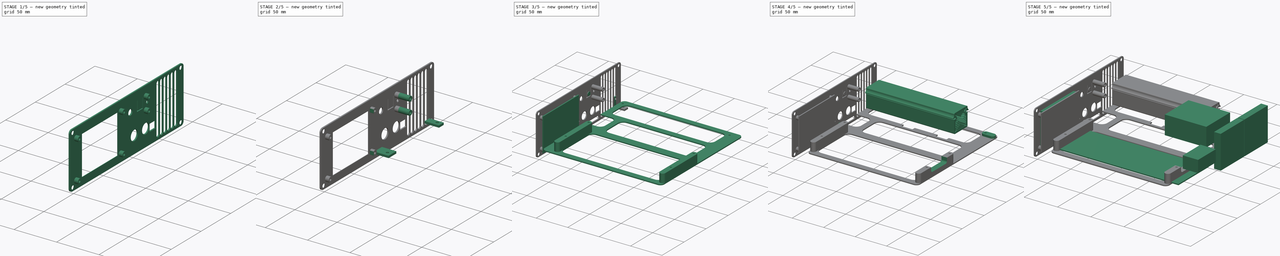
[diagram: build sequence overview — one tinted view per stage of 5, left to right]
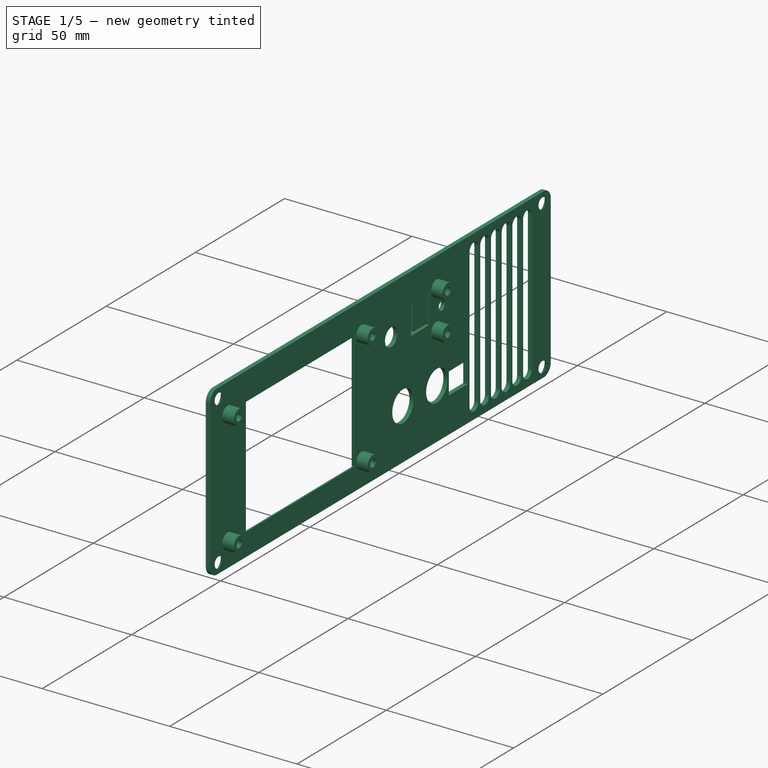
[diagram: stage 1 of 5 — iso view after this stage's code; geometry added in this stage tinted green]
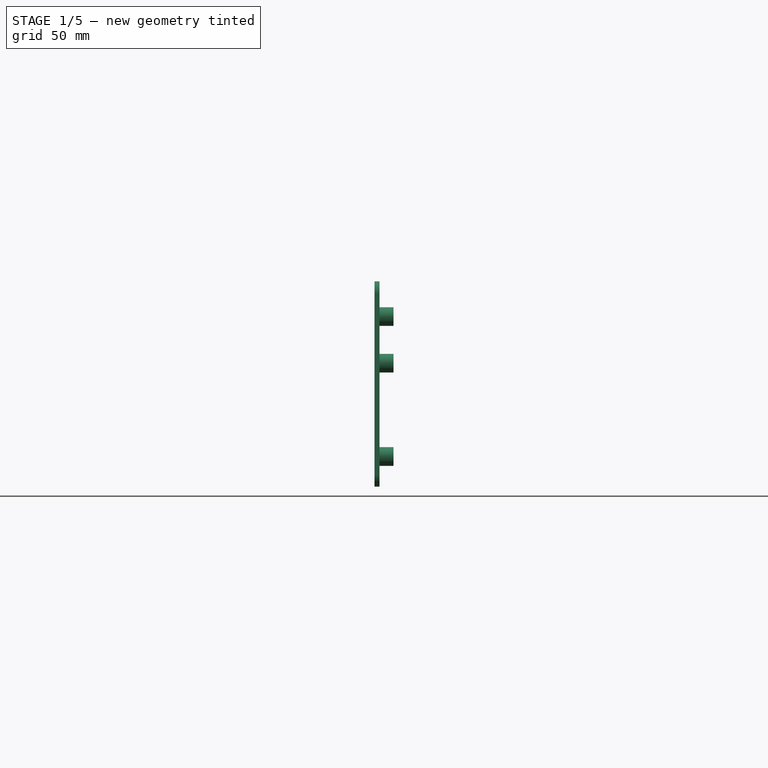
[diagram: stage 1 of 5 — front view after this stage's code; geometry added in this stage tinted green]
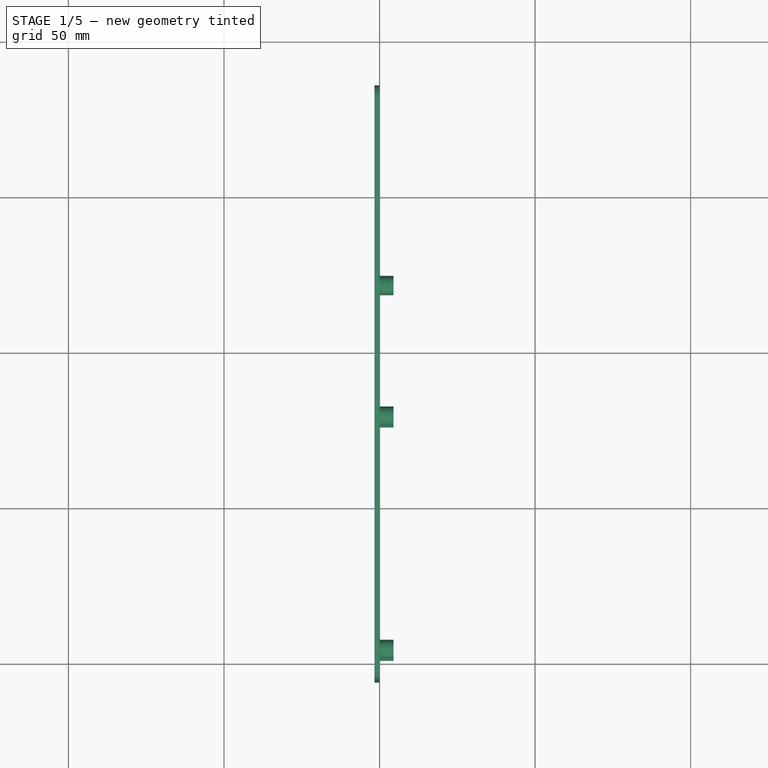
[diagram: stage 1 of 5 — top view after this stage's code; geometry added in this stage tinted green]
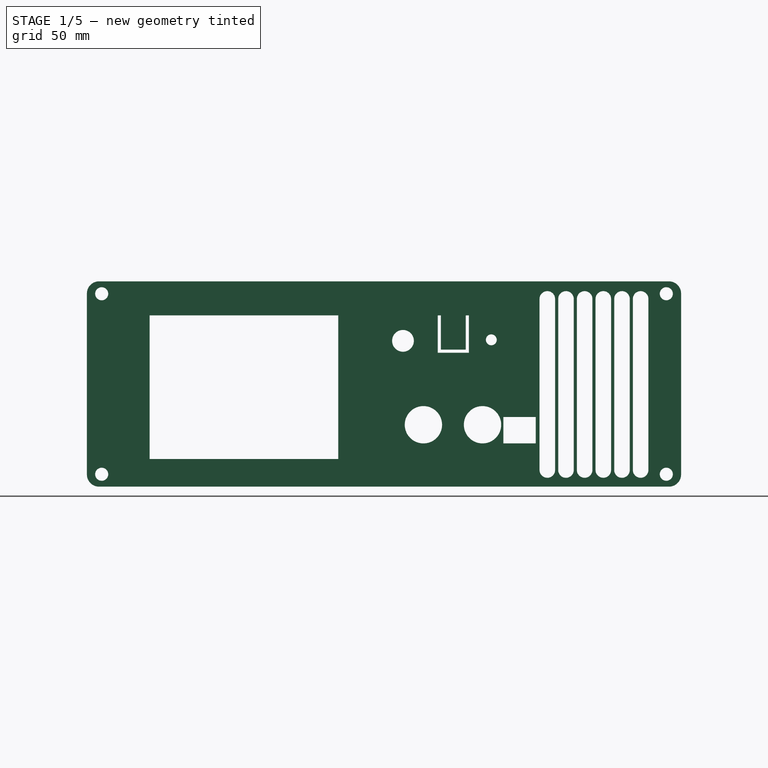
[diagram: stage 1 of 5 — right view after this stage's code; geometry added in this stage tinted green]
FCSTD DOCUMENT  (FreeCAD 0.21R33675 (Git))
Label: EL-Load-Case1
License: All rights reserved
LicenseURL: http://en.wikipedia.org/wiki/All_rights_reserved
objects: App::Link×848, Part::Feature×664, App::Part×86, Sketcher::SketchObject×28, PartDesign::Pad×11, PartDesign::CoordinateSystem×10, PartDesign::Pocket×8, Part::Box×7, PartDesign::Body×3, PartDesign::SubShapeBinder×2, PartDesign::Chamfer×2
note: 756 computed .brp shape members not serialized (recipe doc carries the construction recipe); baked Part::Feature solids carry a one-line shape summary decoded from their .brp

FEATURE [PartDesign::Body] Body001  label="PCBFrame1"
  Group = -> [Sketch,Pad001,Sketch001,Pad002,Sketch002,Pocket,Sketch003,Pad003,Sketch004,Pocket001,Sketch008,Pocket002]
  Origin = -> Origin068
  Placement = pos=(0,0,-3.4) rot=(0,0,1;0rad)
  Tip = -> Pocket002
FEATURE [Sketcher::SketchObject] Sketch009  label="Fan003"
  AttachmentOffset = pos=(3,-6,0) rot=(0,0,1;0rad)
  FullyConstrained = true
  MapMode = 5
  Placement = pos=(2e-15,3,-6) rot=(0.57735,0.57735,0.57735;2.0944rad)
  Support = -> [YZ_Plane069]
  sketch-geometry (11):
    g0: LineSegment StartX=173.5 StartY=41.6 StartZ=0 EndX=133.5 EndY=41.6 EndZ=0
    g1: LineSegment StartX=133.5 StartY=41.6 StartZ=0 EndX=133.5 EndY=1.6 EndZ=0
    g2: LineSegment StartX=133.5 StartY=1.6 StartZ=0 EndX=173.5 EndY=1.6 EndZ=0
    g3: LineSegment StartX=173.5 StartY=1.6 StartZ=0 EndX=173.5 EndY=41.6 EndZ=0
    g4: Circle CenterX=173.5 CenterY=41.6 CenterZ=0 NormalX=0 NormalY=0 NormalZ=1 AngleXU=0 Radius=2
    g5: Circle CenterX=133.5 CenterY=41.6 CenterZ=0 NormalX=0 NormalY=0 NormalZ=1 AngleXU=0 Radius=2
    g6: Circle CenterX=133.5 CenterY=1.6 CenterZ=0 NormalX=0 NormalY=0 NormalZ=1 AngleXU=0 Radius=2
    g7: Circle CenterX=173.5 CenterY=1.6 CenterZ=0 NormalX=0 NormalY=0 NormalZ=1 AngleXU=0 Radius=2
    g8: Circle CenterX=153.5 CenterY=21.6 CenterZ=0 NormalX=0 NormalY=0 NormalZ=1 AngleXU=0 Radius=24
    g9: LineSegment StartX=153.5 StartY=21.6 StartZ=0 EndX=153.5 EndY=41.6 EndZ=0
    g10: LineSegment StartX=153.5 StartY=21.6 StartZ=0 EndX=153.5 EndY=1.6 EndZ=0
  constraints (28):
    c: Coincident(g0,g1)
    c: Coincident(g1,g2)
    c: Coincident(g2,g3)
    c: Coincident(g3,g0)
    c: Horizontal(g0)
    c: Horizontal(g2)
    c: Vertical(g1)
    c: Vertical(g3)
    c: Equal(g1,g2)
    c: Coincident(g4,g0)
    c: Coincident(g5,g0)
    c: Coincident(g6,g1)
    c: Coincident(g7,g2)
    c: Equal(g7,g6)
    c: Equal(g6,g5)
    c: Equal(g5,g4)
    c: Diameter(g6) = 4
    c: Coincident(g9,g8)
    c: Vertical(g9)
    c: Symmetric(g5,g4,g9)
    c: Diameter(g8) = 48
    c: Coincident(g10,g8)
    c: PointOnObject(g10,g2)
    c: Vertical(g10)
    c: Equal(g10,g9)
    c: Distance(g0) = 40
    c: DistanceX(g7) = 173.5
    c: DistanceY(g7) = 1.6
FEATURE [App::Link] C303_C_0805_2012Metric_1d86ef2bb22f_ln_  label="C26_C_0805_2012Metric_d5dbb9e88231"
  LinkPlacement = pos=(114.7,21.1,0) rot=(0,0,-1;1.5708rad)
  LinkedObject = -> Shape139
  Placement = pos=(114.7,21.1,0) rot=(0,0,-1;1.5708rad)
FEATURE [App::Link] C303_C_0805_2012Metric_1d86ef2bb22f_ln_001  label="C23_C_0805_2012Metric_000a25718fd3"
  LinkPlacement = pos=(127.75,16.625,0) rot=(0,0,1;1.5708rad)
  LinkedObject = -> Shape139
  Placement = pos=(127.75,16.625,0) rot=(0,0,1;1.5708rad)
FEATURE [App::Link] C303_C_0805_2012Metric_1d86ef2bb22f_ln_002  label="C311_C_0805_2012Metric_e7a3c8a1d566"
  LinkPlacement = pos=(69.6,18.85,0) rot=(0,0,1;1.5708rad)
  LinkedObject = -> Shape139
  Placement = pos=(69.6,18.85,0) rot=(0,0,1;1.5708rad)
FEATURE [App::Link] C303_C_0805_2012Metric_1d86ef2bb22f_ln_003  label="C211_C_0805_2012Metric_f6e2775f9a28"
  LinkPlacement = pos=(103.35,92.55,0) rot=(0,0,1;1.5708rad)
  LinkedObject = -> Shape139
  Placement = pos=(103.35,92.55,0) rot=(0,0,1;1.5708rad)
FEATURE [App::Link] C303_C_0805_2012Metric_1d86ef2bb22f_ln_004  label="C13_C_0805_2012Metric_584e764d642c"
  LinkPlacement = pos=(42.45,2.35,0) rot=(0,0,1;1.5708rad)
  LinkedObject = -> Shape139
  Placement = pos=(42.45,2.35,0) rot=(0,0,1;1.5708rad)
FEATURE [App::Link] C303_C_0805_2012Metric_1d86ef2bb22f_ln_005  label="C49_C_0805_2012Metric_974e61c4247c001"
  LinkPlacement = pos=(99.8,39.3625,0) rot=(0,0,1;1.5708rad)
  LinkedObject = -> Shape139
  Placement = pos=(99.8,39.3625,0) rot=(0,0,1;1.5708rad)
FEATURE [App::Link] C303_C_0805_2012Metric_1d86ef2bb22f_ln_006  label="C309_C_0805_2012Metric_4bea97f5e1ff"
  LinkPlacement = pos=(85.7125,21.575,0) rot=(0,0,-1;1.5708rad)
  LinkedObject = -> Shape139
  Placement = pos=(85.7125,21.575,0) rot=(0,0,-1;1.5708rad)
FEATURE [App::Link] C303_C_0805_2012Metric_1d86ef2bb22f_ln_185  label="C38_C_0805_2012Metric_d30376c11af6"
  LinkPlacement = pos=(135.55,33.075,0) rot=(0,0,1;0rad)
  LinkedObject = -> Shape139
  Placement = pos=(135.55,33.075,0) rot=(0,0,1;0rad)
FEATURE [App::Link] C303_C_0805_2012Metric_1d86ef2bb22f_ln_008  label="C223_C_0805_2012Metric_fc6fab0a5f9d"
  LinkPlacement = pos=(175,91.5,0) rot=(0,0,1;1.5708rad)
  LinkedObject = -> Shape139
  Placement = pos=(175,91.5,0) rot=(0,0,1;1.5708rad)
FEATURE [App::Link] C303_C_0805_2012Metric_1d86ef2bb22f_ln_009  label="C504_C_0805_2012Metric_f896a043f44d"
  LinkPlacement = pos=(101.25,30.175,0) rot=(0,0,1;1.5708rad)
  LinkedObject = -> Shape139
  Placement = pos=(101.25,30.175,0) rot=(0,0,1;1.5708rad)
FEATURE [App::Link] C303_C_0805_2012Metric_1d86ef2bb22f_ln_010  label="C226_C_0805_2012Metric_2eb8bf28e24e"
  LinkPlacement = pos=(117.6,45.9,0) rot=(0,0,1;0rad)
  LinkedObject = -> Shape139
  Placement = pos=(117.6,45.9,0) rot=(0,0,1;0rad)
FEATURE [App::Link] C303_C_0805_2012Metric_1d86ef2bb22f_ln_011  label="C214_C_0805_2012Metric_e2b81b34a7d2"
  LinkPlacement = pos=(51.9,45.5,0) rot=(0,0,1;3.14159rad)
  LinkedObject = -> Shape139
  Placement = pos=(51.9,45.5,0) rot=(0,0,1;3.14159rad)
FEATURE [App::Link] C303_C_0805_2012Metric_1d86ef2bb22f_ln_012  label="C221_C_0805_2012Metric_b44e2667bcf7"
  LinkPlacement = pos=(165.5,5.5,0) rot=(0,0,1;1.5708rad)
  LinkedObject = -> Shape139
  Placement = pos=(165.5,5.5,0) rot=(0,0,1;1.5708rad)
FEATURE [App::Link] C303_C_0805_2012Metric_1d86ef2bb22f_ln_013  label="C209_C_0805_2012Metric_f79f18431d03"
  LinkPlacement = pos=(114.35,91.65,0) rot=(0,0,1;1.5708rad)
  LinkedObject = -> Shape139
  Placement = pos=(114.35,91.65,0) rot=(0,0,1;1.5708rad)
FEATURE [App::Link] C303_C_0805_2012Metric_1d86ef2bb22f_ln_014  label="C205_C_0805_2012Metric_92a2149bb90f"
  LinkPlacement = pos=(60.2,50.5,0) rot=(0,0,1;1.5708rad)
  LinkedObject = -> Shape139
  Placement = pos=(60.2,50.5,0) rot=(0,0,1;1.5708rad)
FEATURE [App::Link] C303_C_0805_2012Metric_1d86ef2bb22f_ln_015  label="C29_C_0805_2012Metric_fa1848d19678"
  LinkPlacement = pos=(138.375,38.725,0) rot=(0,0,1;0rad)
  LinkedObject = -> Shape139
  Placement = pos=(138.375,38.725,0) rot=(0,0,1;0rad)
FEATURE [App::Link] C303_C_0805_2012Metric_1d86ef2bb22f_ln_016  label="C505_C_0805_2012Metric_bcf27ea4bc10"
  LinkPlacement = pos=(113.225,27.5,0) rot=(0,0,-1;1.5708rad)
  LinkedObject = -> Shape139
  Placement = pos=(113.225,27.5,0) rot=(0,0,-1;1.5708rad)
FEATURE [App::Link] C303_C_0805_2012Metric_1d86ef2bb22f_ln_017  label="C19_C_0805_2012Metric_5594ae341427"
  LinkPlacement = pos=(115.725,25.05,0) rot=(0,0,1;1.5708rad)
  LinkedObject = -> Shape139
  Placement = pos=(115.725,25.05,0) rot=(0,0,1;1.5708rad)
FEATURE [App::Link] C303_C_0805_2012Metric_1d86ef2bb22f_ln_018  label="C217_C_0805_2012Metric_6c92b5ed4840"
  LinkPlacement = pos=(183.3,31.7,0) rot=(0,0,1;1.5708rad)
  LinkedObject = -> Shape139
  Placement = pos=(183.3,31.7,0) rot=(0,0,1;1.5708rad)
FEATURE [App::Link] C303_C_0805_2012Metric_1d86ef2bb22f_ln_019  label="C316_C_0805_2012Metric_cd1ffc8391ec"
  LinkPlacement = pos=(72.687,27.995,0) rot=(0,0,1;3.14159rad)
  LinkedObject = -> Shape139
  Placement = pos=(72.687,27.995,0) rot=(0,0,1;3.14159rad)
FEATURE [App::Link] C303_C_0805_2012Metric_1d86ef2bb22f_ln_020  label="C225_C_0805_2012Metric_ffd9329e2dcc"
  LinkPlacement = pos=(161.69,92.5,0) rot=(0,0,1;3.14159rad)
  LinkedObject = -> Shape139
  Placement = pos=(161.69,92.5,0) rot=(0,0,1;3.14159rad)
FEATURE [App::Link] C303_C_0805_2012Metric_1d86ef2bb22f_ln_021  label="C35_C_0805_2012Metric_ffb163dd22d3"
  LinkPlacement = pos=(145.625,33.725,0) rot=(0,0,1;3.14159rad)
  LinkedObject = -> Shape139
  Placement = pos=(145.625,33.725,0) rot=(0,0,1;3.14159rad)
FEATURE [App::Link] C303_C_0805_2012Metric_1d86ef2bb22f_ln_022  label="C52_C_0805_2012Metric_ac194752d0a002"
  LinkPlacement = pos=(80.2,36.8,0) rot=(0,0,1;3.14159rad)
  LinkedObject = -> Shape139
  Placement = pos=(80.2,36.8,0) rot=(0,0,1;3.14159rad)
FEATURE [App::Link] C303_C_0805_2012Metric_1d86ef2bb22f_ln_023  label="C404_C_0805_2012Metric_dd9989736422"
  LinkPlacement = pos=(105.09,9.575,0) rot=(0,0,1;3.14159rad)
  LinkedObject = -> Shape139
  Placement = pos=(105.09,9.575,0) rot=(0,0,1;3.14159rad)
FEATURE [App::Link] C303_C_0805_2012Metric_1d86ef2bb22f_ln_024  label="C27_C_0805_2012Metric_c813a18685a9"
  LinkPlacement = pos=(114.85,12.65,0) rot=(0,0,-1;1.5708rad)
  LinkedObject = -> Shape139
  Placement = pos=(114.85,12.65,0) rot=(0,0,-1;1.5708rad)
FEATURE [App::Link] C303_C_0805_2012Metric_1d86ef2bb22f_ln_025  label="C222_C_0805_2012Metric_211188bab274"
  LinkPlacement = pos=(165.438,13.5,0) rot=(0,0,1;1.5708rad)
  LinkedObject = -> Shape139
  Placement = pos=(165.438,13.5,0) rot=(0,0,1;1.5708rad)
FEATURE [App::Link] C303_C_0805_2012Metric_1d86ef2bb22f_ln_026  label="C1_C_0805_2012Metric_e1adf31e506d"
  LinkPlacement = pos=(107.075,36.85,0) rot=(0,0,1;3.14159rad)
  LinkedObject = -> Shape139
  Placement = pos=(107.075,36.85,0) rot=(0,0,1;3.14159rad)
FEATURE [App::Link] C303_C_0805_2012Metric_1d86ef2bb22f_ln_027  label="C207_C_0805_2012Metric_e7225891546f"
  LinkPlacement = pos=(171.545,23.4584,0) rot=(0,0,1;1.5708rad)
  LinkedObject = -> Shape139
  Placement = pos=(171.545,23.4584,0) rot=(0,0,1;1.5708rad)
FEATURE [App::Link] C303_C_0805_2012Metric_1d86ef2bb22f_ln_028  label="C315_C_0805_2012Metric_75f11421f158"
  LinkPlacement = pos=(120.231,38.4938,0) rot=(0,0,-1;1.5708rad)
  LinkedObject = -> Shape139
  Placement = pos=(120.231,38.4938,0) rot=(0,0,-1;1.5708rad)
FEATURE [App::Link] C303_C_0805_2012Metric_1d86ef2bb22f_ln_029  label="C2_C_0805_2012Metric_05101afe5803"
  LinkPlacement = pos=(118.85,34.6,0) rot=(0,0,1;3.14159rad)
  LinkedObject = -> Shape139
  Placement = pos=(118.85,34.6,0) rot=(0,0,1;3.14159rad)
FEATURE [App::Link] C303_C_0805_2012Metric_1d86ef2bb22f_ln_030  label="C24_C_0805_2012Metric_9756039021d9"
  LinkPlacement = pos=(127.8,23.325,0) rot=(0,0,1;1.5708rad)
  LinkedObject = -> Shape139
  Placement = pos=(127.8,23.325,0) rot=(0,0,1;1.5708rad)
FEATURE [App::Link] C303_C_0805_2012Metric_1d86ef2bb22f_ln_031  label="C305_C_0805_2012Metric_8cc8a682d547"
  LinkPlacement = pos=(52,26.85,0) rot=(0,0,1;1.5708rad)
  LinkedObject = -> Shape139
  Placement = pos=(52,26.85,0) rot=(0,0,1;1.5708rad)
FEATURE [App::Link] C303_C_0805_2012Metric_1d86ef2bb22f_ln_032  label="C215_C_0805_2012Metric_46fa3c3d31ac"
  LinkPlacement = pos=(163.5,88,0) rot=(0,0,1;1.5708rad)
  LinkedObject = -> Shape139
  Placement = pos=(163.5,88,0) rot=(0,0,1;1.5708rad)
FEATURE [App::Link] C303_C_0805_2012Metric_1d86ef2bb22f_ln_033  label="C407_C_0805_2012Metric_fedbb3076932"
  LinkPlacement = pos=(53.45,36.2,0) rot=(0,0,1;3.14159rad)
  LinkedObject = -> Shape139
  Placement = pos=(53.45,36.2,0) rot=(0,0,1;3.14159rad)
FEATURE [App::Link] C303_C_0805_2012Metric_1d86ef2bb22f_ln_034  label="C51_C_0805_2012Metric_83d383f6edd008"
  LinkPlacement = pos=(65.4,39.6,0) rot=(0,0,1;0rad)
  LinkedObject = -> Shape139
  Placement = pos=(65.4,39.6,0) rot=(0,0,1;0rad)
FEATURE [App::Link] C303_C_0805_2012Metric_1d86ef2bb22f_ln_035  label="C54_C_0805_2012Metric_413553e36d7c001"
  LinkPlacement = pos=(84.4,44,0) rot=(0,0,1;0rad)
  LinkedObject = -> Shape139
  Placement = pos=(84.4,44,0) rot=(0,0,1;0rad)
FEATURE [App::Link] C303_C_0805_2012Metric_1d86ef2bb22f_ln_036  label="C313_C_0805_2012Metric_612cf4179c1d"
  LinkPlacement = pos=(56.55,17.875,0) rot=(0,0,1;3.14159rad)
  LinkedObject = -> Shape139
  Placement = pos=(56.55,17.875,0) rot=(0,0,1;3.14159rad)
FEATURE [App::Link] C303_C_0805_2012Metric_1d86ef2bb22f_ln_186  label="C28_C_0805_2012Metric_180589c75c29"
  LinkPlacement = pos=(116.75,21.075,0) rot=(0,0,-1;1.5708rad)
  LinkedObject = -> Shape139
  Placement = pos=(116.75,21.075,0) rot=(0,0,-1;1.5708rad)
FEATURE [App::Link] C303_C_0805_2012Metric_1d86ef2bb22f_ln_038  label="C314_C_0805_2012Metric_20f103a6412f"
  LinkPlacement = pos=(56.775,26.55,0) rot=(0,0,1;0rad)
  LinkedObject = -> Shape139
  Placement = pos=(56.775,26.55,0) rot=(0,0,1;0rad)
FEATURE [App::Link] C303_C_0805_2012Metric_1d86ef2bb22f_ln_039  label="C218_C_0805_2012Metric_5d7354e4fb6b"
  LinkPlacement = pos=(183.3,23.7,0) rot=(0,0,1;1.5708rad)
  LinkedObject = -> Shape139
  Placement = pos=(183.3,23.7,0) rot=(0,0,1;1.5708rad)
FEATURE [App::Link] C303_C_0805_2012Metric_1d86ef2bb22f_ln_040  label="C11_C_0805_2012Metric_48f704f1522c"
  LinkPlacement = pos=(110.45,20.925,0) rot=(0,0,1;1.5708rad)
  LinkedObject = -> Shape139
  Placement = pos=(110.45,20.925,0) rot=(0,0,1;1.5708rad)
FEATURE [App::Link] C303_C_0805_2012Metric_1d86ef2bb22f_ln_041  label="C401_C_0805_2012Metric_e86e7a8ffe25"
  LinkPlacement = pos=(57.5,36.2,0) rot=(0,0,1;0rad)
  LinkedObject = -> Shape139
  Placement = pos=(57.5,36.2,0) rot=(0,0,1;0rad)
FEATURE [App::Link] C303_C_0805_2012Metric_1d86ef2bb22f_ln_042  label="C216_C_0805_2012Metric_21734a4147f4"
  LinkPlacement = pos=(170,93.5,0) rot=(0,0,1;3.14159rad)
  LinkedObject = -> Shape139
  Placement = pos=(170,93.5,0) rot=(0,0,1;3.14159rad)
FEATURE [App::Link] C303_C_0805_2012Metric_1d86ef2bb22f_ln_043  label="C22_C_0805_2012Metric_4bb9130e18a2"
  LinkPlacement = pos=(114.9,16.9,0) rot=(0,0,1;1.5708rad)
  LinkedObject = -> Shape139
  Placement = pos=(114.9,16.9,0) rot=(0,0,1;1.5708rad)
FEATURE [App::Link] C303_C_0805_2012Metric_1d86ef2bb22f_ln_044  label="C43_C_0805_2012Metric_6d7e732d062c"
  LinkPlacement = pos=(141.725,33.725,0) rot=(0,0,1;3.14159rad)
  LinkedObject = -> Shape139
  Placement = pos=(141.725,33.725,0) rot=(0,0,1;3.14159rad)
FEATURE [App::Link] C303_C_0805_2012Metric_1d86ef2bb22f_ln_045  label="C208_C_0805_2012Metric_e46bcdf7084c"
  LinkPlacement = pos=(171.545,31.5356,0) rot=(0,0,1;1.5708rad)
  LinkedObject = -> Shape139
  Placement = pos=(171.545,31.5356,0) rot=(0,0,1;1.5708rad)
FEATURE [App::Link] C303_C_0805_2012Metric_1d86ef2bb22f_ln_046  label="C44_C_0805_2012Metric_ee162983a6f5"
  LinkPlacement = pos=(144.025,17.225,0) rot=(0,0,1;1.5708rad)
  LinkedObject = -> Shape139
  Placement = pos=(144.025,17.225,0) rot=(0,0,1;1.5708rad)
FEATURE [App::Link] C303_C_0805_2012Metric_1d86ef2bb22f_ln_047  label="C47_C_0805_2012Metric_5ea36896183c001"
  LinkPlacement = pos=(94.3,35.6,0) rot=(0,0,1;1.5708rad)
  LinkedObject = -> Shape139
  Placement = pos=(94.3,35.6,0) rot=(0,0,1;1.5708rad)
FEATURE [App::Link] C303_C_0805_2012Metric_1d86ef2bb22f_ln_048  label="C502_C_0805_2012Metric_bafe37840d84"
  LinkPlacement = pos=(101.25,26.6,0) rot=(0,0,1;1.5708rad)
  LinkedObject = -> Shape139
  Placement = pos=(101.25,26.6,0) rot=(0,0,1;1.5708rad)
FEATURE [App::Link] C303_C_0805_2012Metric_1d86ef2bb22f_ln_187  label="C213_C_0805_2012Metric_9d17bd507aac"
  LinkPlacement = pos=(116.6,87.8,0) rot=(0,0,-1;1.5708rad)
  LinkedObject = -> Shape139
  Placement = pos=(116.6,87.8,0) rot=(0,0,-1;1.5708rad)
FEATURE [App::Link] C303_C_0805_2012Metric_1d86ef2bb22f_ln_050  label="C220_C_0805_2012Metric_c961a865a416"
  LinkPlacement = pos=(106.929,45.08,0) rot=(0,0,1;0rad)
  LinkedObject = -> Shape139
  Placement = pos=(106.929,45.08,0) rot=(0,0,1;0rad)
FEATURE [App::Link] C303_C_0805_2012Metric_1d86ef2bb22f_ln_051  label="C45_C_0805_2012Metric_5ed4bf02781a"
  LinkPlacement = pos=(141.95,13.775,0) rot=(0,0,-1;1.5708rad)
  LinkedObject = -> Shape139
  Placement = pos=(141.95,13.775,0) rot=(0,0,-1;1.5708rad)
FEATURE [App::Link] C303_C_0805_2012Metric_1d86ef2bb22f_ln_052  label="C12_C_0805_2012Metric_390cc82b5c76"
  LinkPlacement = pos=(110.45,17.33,0) rot=(0,0,-1;1.5708rad)
  LinkedObject = -> Shape139
  Placement = pos=(110.45,17.33,0) rot=(0,0,-1;1.5708rad)
FEATURE [App::Link] C303_C_0805_2012Metric_1d86ef2bb22f_ln_053  label="C227_C_0805_2012Metric_cabb4cdcbf12"
  LinkPlacement = pos=(175,87.5,0) rot=(0,0,-1;1.5708rad)
  LinkedObject = -> Shape139
  Placement = pos=(175,87.5,0) rot=(0,0,-1;1.5708rad)
FEATURE [App::Link] C303_C_0805_2012Metric_1d86ef2bb22f_ln_054  label="C206_C_0805_2012Metric_59b2e2985f92"
  LinkPlacement = pos=(47.5,48.7,0) rot=(0,0,1;3.14159rad)
  LinkedObject = -> Shape139
  Placement = pos=(47.5,48.7,0) rot=(0,0,1;3.14159rad)
FEATURE [App::Link] C303_C_0805_2012Metric_1d86ef2bb22f_ln_055  label="C37_C_0805_2012Metric_2f8f93623fdd"
  LinkPlacement = pos=(150.65,26.0125,0) rot=(0,0,1;1.5708rad)
  LinkedObject = -> Shape139
  Placement = pos=(150.65,26.0125,0) rot=(0,0,1;1.5708rad)
FEATURE [App::Link] C303_C_0805_2012Metric_1d86ef2bb22f_ln_056  label="C219_C_0805_2012Metric_1120eae39658"
  LinkPlacement = pos=(113.429,48.58,0) rot=(0,0,1;1.5708rad)
  LinkedObject = -> Shape139
  Placement = pos=(113.429,48.58,0) rot=(0,0,1;1.5708rad)
FEATURE [App::Link] C303_C_0805_2012Metric_1d86ef2bb22f_ln_057  label="C203_C_0805_2012Metric_dba0b3a855a7"
  LinkPlacement = pos=(177.565,5.399,0) rot=(0,0,1;1.5708rad)
  LinkedObject = -> Shape139
  Placement = pos=(177.565,5.399,0) rot=(0,0,1;1.5708rad)
FEATURE [App::Link] C303_C_0805_2012Metric_1d86ef2bb22f_ln_058  label="C39_C_0805_2012Metric_7a4cbeef3a33"
  LinkPlacement = pos=(130.175,31.575,0) rot=(0,0,-1;1.5708rad)
  LinkedObject = -> Shape139
  Placement = pos=(130.175,31.575,0) rot=(0,0,-1;1.5708rad)
FEATURE [App::Link] C303_C_0805_2012Metric_1d86ef2bb22f_ln_059  label="C21_C_0805_2012Metric_01105218e7e6"
  LinkPlacement = pos=(117.8,25.05,0) rot=(0,0,1;1.5708rad)
  LinkedObject = -> Shape139
  Placement = pos=(117.8,25.05,0) rot=(0,0,1;1.5708rad)
FEATURE [App::Link] C303_C_0805_2012Metric_1d86ef2bb22f_ln_060  label="C501_C_0805_2012Metric_228dc7cb5e5d"
  LinkPlacement = pos=(111.1,31.9,0) rot=(0,0,1;1.5708rad)
  LinkedObject = -> Shape139
  Placement = pos=(111.1,31.9,0) rot=(0,0,1;1.5708rad)
FEATURE [App::Link] C303_C_0805_2012Metric_1d86ef2bb22f_ln_061  label="C503_C_0805_2012Metric_16dcb8b1dc44"
  LinkPlacement = pos=(107.075,16.05,0) rot=(0,0,1;3.14159rad)
  LinkedObject = -> Shape139
  Placement = pos=(107.075,16.05,0) rot=(0,0,1;3.14159rad)
FEATURE [App::Link] C303_C_0805_2012Metric_1d86ef2bb22f_ln_062  label="C307_C_0805_2012Metric_ef573f1286a4"
  LinkPlacement = pos=(153.839,29.544,0) rot=(0,0,-1;1.5708rad)
  LinkedObject = -> Shape139
  Placement = pos=(153.839,29.544,0) rot=(0,0,-1;1.5708rad)
FEATURE [App::Link] C303_C_0805_2012Metric_1d86ef2bb22f_ln_063  label="C312_C_0805_2012Metric_204514eca08f"
  LinkPlacement = pos=(67.2,22.35,0) rot=(0,0,1;1.5708rad)
  LinkedObject = -> Shape139
  Placement = pos=(67.2,22.35,0) rot=(0,0,1;1.5708rad)
FEATURE [App::Link] C303_C_0805_2012Metric_1d86ef2bb22f_ln_064  label="C10_C_0805_2012Metric_f6a3d44cf72c"
  LinkPlacement = pos=(100.7,19.225,0) rot=(0,0,-1;1.5708rad)
  LinkedObject = -> Shape139
  Placement = pos=(100.7,19.225,0) rot=(0,0,-1;1.5708rad)
FEATURE [App::Link] C303_C_0805_2012Metric_1d86ef2bb22f_ln_065  label="C308_C_0805_2012Metric_86bc2e49f05b"
  LinkPlacement = pos=(156.024,22.178,0) rot=(0,0,1;3.14159rad)
  LinkedObject = -> Shape139
  Placement = pos=(156.024,22.178,0) rot=(0,0,1;3.14159rad)
FEATURE [App::Link] C303_C_0805_2012Metric_1d86ef2bb22f_ln_066  label="C48_C_0805_2012Metric_3d6e9560ce050"
  LinkPlacement = pos=(92.8,39.4,0) rot=(0,0,-1;1.5708rad)
  LinkedObject = -> Shape139
  Placement = pos=(92.8,39.4,0) rot=(0,0,-1;1.5708rad)
FEATURE [App::Link] C303_C_0805_2012Metric_1d86ef2bb22f_ln_067  label="C40_C_0805_2012Metric_aa59399f450c"
  LinkPlacement = pos=(141.637,25.3125,0) rot=(0,0,1;3.14159rad)
  LinkedObject = -> Shape139
  Placement = pos=(141.637,25.3125,0) rot=(0,0,1;3.14159rad)
FEATURE [App::Link] C303_C_0805_2012Metric_1d86ef2bb22f_ln_188  label="C212_C_0805_2012Metric_ff8aa67397a9"
  LinkPlacement = pos=(55.9,45.7,0) rot=(0,0,1;0rad)
  LinkedObject = -> Shape139
  Placement = pos=(55.9,45.7,0) rot=(0,0,1;0rad)
FEATURE [App::Link] C303_C_0805_2012Metric_1d86ef2bb22f_ln_069  label="C210_C_0805_2012Metric_6be0f132b8e7"
  LinkPlacement = pos=(47.5,50.8,0) rot=(0,0,1;0rad)
  LinkedObject = -> Shape139
  Placement = pos=(47.5,50.8,0) rot=(0,0,1;0rad)
FEATURE [App::Link] C303_C_0805_2012Metric_1d86ef2bb22f_ln_070  label="C20_C_0805_2012Metric_5e1706738730"
  LinkPlacement = pos=(117,16.9,0) rot=(0,0,1;1.5708rad)
  LinkedObject = -> Shape139
  Placement = pos=(117,16.9,0) rot=(0,0,1;1.5708rad)
FEATURE [App::Link] C303_C_0805_2012Metric_1d86ef2bb22f_ln_071  label="C310_C_0805_2012Metric_490b81cdc351"
  LinkPlacement = pos=(52.825,21,0) rot=(0,0,1;0rad)
  LinkedObject = -> Shape139
  Placement = pos=(52.825,21,0) rot=(0,0,1;0rad)
FEATURE [App::Link] C303_C_0805_2012Metric_1d86ef2bb22f_ln_072  label="C42_C_0805_2012Metric_4eb63d81472c"
  LinkPlacement = pos=(143.675,22.15,0) rot=(0,0,-1;1.5708rad)
  LinkedObject = -> Shape139
  Placement = pos=(143.675,22.15,0) rot=(0,0,-1;1.5708rad)
FEATURE [App::Link] C303_C_0805_2012Metric_1d86ef2bb22f_ln_073  label="C306_C_0805_2012Metric_f55fe554345e"
  LinkPlacement = pos=(51.95,32,0) rot=(0,0,1;1.5708rad)
  LinkedObject = -> Shape139
  Placement = pos=(51.95,32,0) rot=(0,0,1;1.5708rad)
FEATURE [App::Link] C303_C_0805_2012Metric_1d86ef2bb22f_ln_074  label="C34_C_0805_2012Metric_faa94f78bcbd"
  LinkPlacement = pos=(144.275,40.1,0) rot=(0,0,1;3.14159rad)
  LinkedObject = -> Shape139
  Placement = pos=(144.275,40.1,0) rot=(0,0,1;3.14159rad)
FEATURE [App::Link] C303_C_0805_2012Metric_1d86ef2bb22f_ln_075  label="C50_C_0805_2012Metric_12a32574f718"
  LinkPlacement = pos=(72.6,38.2,0) rot=(0,0,1;1.5708rad)
  LinkedObject = -> Shape139
  Placement = pos=(72.6,38.2,0) rot=(0,0,1;1.5708rad)
FEATURE [App::Link] C303_C_0805_2012Metric_1d86ef2bb22f_ln_076  label="C18_C_0805_2012Metric_c6e5c3101df8"
  LinkPlacement = pos=(117.475,2.725,0) rot=(0,0,1;0rad)
  LinkedObject = -> Shape139
  Placement = pos=(117.475,2.725,0) rot=(0,0,1;0rad)
FEATURE [App::Link] C303_C_0805_2012Metric_1d86ef2bb22f_ln_189  label="C41_C_0805_2012Metric_23af0ccbd41e"
  LinkPlacement = pos=(137.738,25.3125,0) rot=(0,0,1;0rad)
  LinkedObject = -> Shape139
  Placement = pos=(137.738,25.3125,0) rot=(0,0,1;0rad)
FEATURE [App::Link] C303_C_0805_2012Metric_1d86ef2bb22f_ln_078  label="C228_C_0805_2012Metric_db3eaee78163"
  LinkPlacement = pos=(110.929,45.08,0) rot=(0,0,1;0rad)
  LinkedObject = -> Shape139
  Placement = pos=(110.929,45.08,0) rot=(0,0,1;0rad)
FEATURE [App::Link] C303_C_0805_2012Metric_1d86ef2bb22f_ln_079  label="C202_C_0805_2012Metric_d255fea7448e"
  LinkPlacement = pos=(110.25,93.45,0) rot=(0,0,1;3.14159rad)
  LinkedObject = -> Shape139
  Placement = pos=(110.25,93.45,0) rot=(0,0,1;3.14159rad)
FEATURE [App::Link] C303_C_0805_2012Metric_1d86ef2bb22f_ln_080  label="C405_C_0805_2012Metric_7b2220de55d5"
  LinkPlacement = pos=(128.325,2.6,0) rot=(0,0,-1;1.5708rad)
  LinkedObject = -> Shape139
  Placement = pos=(128.325,2.6,0) rot=(0,0,-1;1.5708rad)
FEATURE [App::Link] C303_C_0805_2012Metric_1d86ef2bb22f_ln_081  label="C304_C_0805_2012Metric_d3558c6d708f"
  LinkPlacement = pos=(92.1,27.376,0) rot=(0,0,1;3.14159rad)
  LinkedObject = -> Shape139
  Placement = pos=(92.1,27.376,0) rot=(0,0,1;3.14159rad)
FEATURE [App::Link] C303_C_0805_2012Metric_1d86ef2bb22f_ln_082  label="C406_C_0805_2012Metric_f1b2804f82f8"
  LinkPlacement = pos=(61.625,41.675,0) rot=(0,0,-1;1.5708rad)
  LinkedObject = -> Shape139
  Placement = pos=(61.625,41.675,0) rot=(0,0,-1;1.5708rad)
FEATURE [App::Link] C303_C_0805_2012Metric_1d86ef2bb22f_ln_083  label="C36_C_0805_2012Metric_3d0ec07c9d2c"
  LinkPlacement = pos=(147.175,24.2375,0) rot=(0,0,1;0rad)
  LinkedObject = -> Shape139
  Placement = pos=(147.175,24.2375,0) rot=(0,0,1;0rad)
FEATURE [App::Link] C303_C_0805_2012Metric_1d86ef2bb22f_ln_084  label="C53_C_0805_2012Metric_0b477a83f041"
  LinkPlacement = pos=(80.2,39.2,0) rot=(0,0,1;3.14159rad)
  LinkedObject = -> Shape139
  Placement = pos=(80.2,39.2,0) rot=(0,0,1;3.14159rad)
FEATURE [App::Link] C303_C_0805_2012Metric_1d86ef2bb22f_ln_085  label="C224_C_0805_2012Metric_f777ef533c5e"
  LinkPlacement = pos=(103.015,49.8,0) rot=(0,0,-1;1.5708rad)
  LinkedObject = -> Shape139
  Placement = pos=(103.015,49.8,0) rot=(0,0,-1;1.5708rad)
FEATURE [App::Link] C303_C_0805_2012Metric_1d86ef2bb22f_ln_086  label="C302_C_0805_2012Metric_95746b57ac45"
  LinkPlacement = pos=(108.2,34.2,0) rot=(0,0,1;3.14159rad)
  LinkedObject = -> Shape139
  Placement = pos=(108.2,34.2,0) rot=(0,0,1;3.14159rad)
FEATURE [App::Link] C303_C_0805_2012Metric_1d86ef2bb22f_ln_087  label="C301_C_0805_2012Metric_27f5d4edfcf4"
  LinkPlacement = pos=(116.6,42.175,0) rot=(0,0,1;3.14159rad)
  LinkedObject = -> Shape139
  Placement = pos=(116.6,42.175,0) rot=(0,0,1;3.14159rad)
FEATURE [App::Link] C303_C_0805_2012Metric_1d86ef2bb22f_ln_088  label="C204_C_0805_2012Metric_93e9081341c4"
  LinkPlacement = pos=(177.59,13.4508,0) rot=(0,0,1;1.5708rad)
  LinkedObject = -> Shape139
  Placement = pos=(177.59,13.4508,0) rot=(0,0,1;1.5708rad)
FEATURE [App::Link] C303_C_0805_2012Metric_1d86ef2bb22f_ln_089  label="C201_C_0805_2012Metric_3c6c4e562b76"
  LinkPlacement = pos=(103.9,87.55,0) rot=(0,0,1;1.5708rad)
  LinkedObject = -> Shape139
  Placement = pos=(103.9,87.55,0) rot=(0,0,1;1.5708rad)
FEATURE [App::Link] C303_C_0805_2012Metric_1d86ef2bb22f_ln_090  label="C25_C_0805_2012Metric_a8b56f256ab6"
  LinkPlacement = pos=(117.025,12.65,0) rot=(0,0,-1;1.5708rad)
  LinkedObject = -> Shape139
  Placement = pos=(117.025,12.65,0) rot=(0,0,-1;1.5708rad)
FEATURE [App::Link] C303_C_0805_2012Metric_1d86ef2bb22f_ln_091  label="C402_C_0805_2012Metric_2602be6c4c99"
  LinkPlacement = pos=(125.1,7.25,0) rot=(0,0,1;0rad)
  LinkedObject = -> Shape139
  Placement = pos=(125.1,7.25,0) rot=(0,0,1;0rad)
FEATURE [App::Link] C303_C_0805_2012Metric_1d86ef2bb22f_ln_092  label="C32_C_0805_2012Metric_6c00573259a6"
  LinkPlacement = pos=(138.375,35.925,0) rot=(0,0,1;0rad)
  LinkedObject = -> Shape139
  Placement = pos=(138.375,35.925,0) rot=(0,0,1;0rad)
FEATURE [App::Link] D208_D_MiniMELF_Standard_5646c313d2d3_ln_  label="D301_D_MiniMELF_Standard_dd8a013c1899"
  LinkPlacement = pos=(109.025,42.1,0) rot=(0,0,1;3.14159rad)
  LinkedObject = -> Shape146
  Placement = pos=(109.025,42.1,0) rot=(0,0,1;3.14159rad)
FEATURE [App::Link] D208_D_MiniMELF_Standard_5646c313d2d3_ln_001  label="D202_D_MiniMELF_Standard_af40c77ecb95"
  LinkPlacement = pos=(71.2,51.5,0) rot=(0,0,1;1.5708rad)
  LinkedObject = -> Shape146
  Placement = pos=(71.2,51.5,0) rot=(0,0,1;1.5708rad)
FEATURE [App::Link] D208_D_MiniMELF_Standard_5646c313d2d3_ln_002  label="D206_D_MiniMELF_Standard_12c2ef1d76fd"
  LinkPlacement = pos=(79.1,92.2,0) rot=(0,0,1;0rad)
  LinkedObject = -> Shape146
  Placement = pos=(79.1,92.2,0) rot=(0,0,1;0rad)
FEATURE [App::Link] D208_D_MiniMELF_Standard_5646c313d2d3_ln_003  label="D302_D_MiniMELF_Standard_4cb12e1780df"
  LinkPlacement = pos=(96.0875,22.7,0) rot=(0,0,1;1.5708rad)
  LinkedObject = -> Shape146
  Placement = pos=(96.0875,22.7,0) rot=(0,0,1;1.5708rad)
FEATURE [App::Link] D208_D_MiniMELF_Standard_5646c313d2d3_ln_004  label="D205_D_MiniMELF_Standard_e613e3e799f2"
  LinkPlacement = pos=(127,50.1,0) rot=(0,0,1;0rad)
  LinkedObject = -> Shape146
  Placement = pos=(127,50.1,0) rot=(0,0,1;0rad)
FEATURE [App::Link] D208_D_MiniMELF_Standard_5646c313d2d3_ln_005  label="D209_D_MiniMELF_Standard_1ec4f44d5c34"
  LinkPlacement = pos=(127,47.6,0) rot=(0,0,1;0rad)
  LinkedObject = -> Shape146
  Placement = pos=(127,47.6,0) rot=(0,0,1;0rad)
FEATURE [App::Link] D208_D_MiniMELF_Standard_5646c313d2d3_ln_006  label="D201_D_MiniMELF_Standard_1d564c9b7721"
  LinkPlacement = pos=(84.6,92.2,0) rot=(0,0,1;3.14159rad)
  LinkedObject = -> Shape146
  Placement = pos=(84.6,92.2,0) rot=(0,0,1;3.14159rad)
FEATURE [App::Link] D208_D_MiniMELF_Standard_5646c313d2d3_ln_007  label="D204_D_MiniMELF_Standard_15f0fdcadfec"
  LinkPlacement = pos=(138.9,92.1,0) rot=(0,0,1;3.14159rad)
  LinkedObject = -> Shape146
  Placement = pos=(138.9,92.1,0) rot=(0,0,1;3.14159rad)
FEATURE [App::Link] D208_D_MiniMELF_Standard_5646c313d2d3_ln_008  label="D207_D_MiniMELF_Standard_e976a3a262de"
  LinkPlacement = pos=(73.9,51.5,0) rot=(0,0,1;1.5708rad)
  LinkedObject = -> Shape146
  Placement = pos=(73.9,51.5,0) rot=(0,0,1;1.5708rad)
FEATURE [App::Link] D208_D_MiniMELF_Standard_5646c313d2d3_ln_009  label="D2_D_MiniMELF_Standard_05f98c6ed1d8"
  LinkPlacement = pos=(41.5,29.3,-1.57252) rot=(0.707107,-0.707107,0;3.14159rad)
  LinkedObject = -> Shape146
  Placement = pos=(41.5,29.3,-1.57252) rot=(0.707107,-0.707107,0;3.14159rad)
FEATURE [App::Link] D208_D_MiniMELF_Standard_5646c313d2d3_ln_010  label="D3_D_MiniMELF_Standard_f91f685f11d3"
  LinkPlacement = pos=(32.35,29.4,-1.57252) rot=(0.707107,-0.707107,0;3.14159rad)
  LinkedObject = -> Shape146
  Placement = pos=(32.35,29.4,-1.57252) rot=(0.707107,-0.707107,0;3.14159rad)
FEATURE [App::Link] J2_SWEB_8094_AU___RT_v006_932d9c1a5973_ln_  label="J5_SWEB 8094 AU / RT v006_23028d124e11"
  LinkPlacement = pos=(11.46,37.12,5.5) rot=(0,0,1;3.14159rad)
  LinkedObject = -> SWEB_8094_AU___RT_v1
  Placement = pos=(11.46,37.12,5.5) rot=(0,0,1;3.14159rad)
FEATURE [App::Link] J9_JST_B2B_XH_A_e9e719df0531_ln_001  label="J1_JST_B2B_XH_A_c76c184b747b001"
  LinkPlacement = pos=(150.65,14.625,0) rot=(0,0,1;0rad)
  LinkedObject = -> Shape151
  Placement = pos=(150.65,14.625,0) rot=(0,0,1;0rad)
FEATURE [PartDesign::CoordinateSystem] Local_CS_29d
  AttacherType = Attacher::AttachEngine3D
  MapMode = 2
  Support = -> [X_Axis083]
FEATURE [Sketcher::SketchObject] PCB_Sketch_29d
  FullyConstrained = false
  sketch-geometry (64):
    g0: LineSegment StartX=155 StartY=47.5 StartZ=0 EndX=155 EndY=47 EndZ=0
    g1: LineSegment StartX=131.8 StartY=48.3 StartZ=0 EndX=154.2 EndY=48.3 EndZ=0
    g2: LineSegment StartX=154.2 StartY=46.2 StartZ=0 EndX=131.8 EndY=46.2 EndZ=0
    g3: LineSegment StartX=41.6 StartY=53.9 StartZ=0 EndX=41.6 EndY=53.6 EndZ=0
    g4: LineSegment StartX=185 StartY=95 StartZ=0 EndX=185 EndY=0 EndZ=0
    g5: LineSegment StartX=76.6 StartY=47.7 StartZ=0 EndX=76.6 EndY=47.3 EndZ=0
    g6: LineSegment StartX=91.8 StartY=48.5 StartZ=0 EndX=77.4 EndY=48.5 EndZ=0
    g7: LineSegment StartX=69.3 StartY=53.6 StartZ=0 EndX=69.3 EndY=53.9 EndZ=0
    g8: LineSegment StartX=5.5 StartY=9 StartZ=0 EndX=0 EndY=9 EndZ=0
    g9: LineSegment StartX=36 StartY=75 StartZ=0 EndX=70.5 EndY=75 EndZ=0
    g10: LineSegment StartX=173.5 StartY=53.4 StartZ=0 EndX=173.5 EndY=47.2 EndZ=0
    g11: LineSegment StartX=43 StartY=56 StartZ=0 EndX=76 EndY=56 EndZ=0
    g12: LineSegment StartX=129.3 StartY=53.6 StartZ=0 EndX=129.3 EndY=53.9 EndZ=0
    g13: LineSegment StartX=94.3 StartY=52.8 StartZ=0 EndX=128.5 EndY=52.8 EndZ=0
    g14: LineSegment StartX=6.5 StartY=0 StartZ=0 EndX=6.5 EndY=8 EndZ=0
    g15: LineSegment StartX=77.4 StartY=46.5 StartZ=0 EndX=93.5 EndY=46.5 EndZ=0
    g16: LineSegment StartX=159.3 StartY=53.3 StartZ=0 EndX=159.3 EndY=47.3 EndZ=0
    g17: LineSegment StartX=165.5 StartY=53.3 StartZ=0 EndX=165.5 EndY=47.3 EndZ=0
    g18: LineSegment StartX=128.5 StartY=54.7 StartZ=0 EndX=92.6 EndY=54.7 EndZ=0
    g19: LineSegment StartX=171.5 StartY=47.2 StartZ=0 EndX=171.5 EndY=53.4 EndZ=0
    g20: LineSegment StartX=0 StartY=9 StartZ=0 EndX=0 EndY=86 EndZ=0
    g21: LineSegment StartX=185 StartY=0 StartZ=0 EndX=6.5 EndY=0 EndZ=0
    g22: LineSegment StartX=6.5 StartY=95 StartZ=0 EndX=185 EndY=95 EndZ=0
    g23: LineSegment StartX=167.7 StartY=47.3 StartZ=0 EndX=167.7 EndY=53.3 EndZ=0
    g24: LineSegment StartX=42.4 StartY=52.8 StartZ=0 EndX=68.5 EndY=52.8 EndZ=0
    g25: LineSegment StartX=70.5 StartY=84 StartZ=0 EndX=36 EndY=84 EndZ=0
    g26: LineSegment StartX=68.5 StartY=54.7 StartZ=0 EndX=42.4 EndY=54.7 EndZ=0
    g27: LineSegment StartX=161.5 StartY=47.3 StartZ=0 EndX=161.5 EndY=53.3 EndZ=0
    g28: LineSegment StartX=131 StartY=47 StartZ=0 EndX=131 EndY=47.5 EndZ=0
    g29: LineSegment StartX=124.5 StartY=84.5 StartZ=0 EndX=91 EndY=84.5 EndZ=0
    g30: LineSegment StartX=0 StartY=86 StartZ=0 EndX=5.5 EndY=86 EndZ=0
    g31: LineSegment StartX=94.3 StartY=47.3 StartZ=0 EndX=94.3 EndY=52.8 EndZ=0
    g32: LineSegment StartX=91 StartY=75.5 StartZ=0 EndX=124.5 EndY=75.5 EndZ=0
    g33: LineSegment StartX=6.5 StartY=87 StartZ=0 EndX=6.5 EndY=95 EndZ=0
    g34: LineSegment StartX=91.8 StartY=53.9 StartZ=0 EndX=91.8 EndY=48.5 EndZ=0
    g35: LineSegment StartX=76 StartY=65 StartZ=0 EndX=43 EndY=65 EndZ=0
    g36: ArcOfCircle CenterX=131.8 CenterY=47 CenterZ=0 NormalX=0 NormalY=0 NormalZ=-1 AngleXU=-1.57079 Radius=0.800001 StartAngle=0 EndAngle=1.57079
    g37: ArcOfCircle CenterX=160.4 CenterY=53.3 CenterZ=0 NormalX=0 NormalY=0 NormalZ=-1 AngleXU=-1.29e-14 Radius=1.1 StartAngle=0 EndAngle=3.14159
    g38: ArcOfCircle CenterX=68.5 CenterY=53.9 CenterZ=0 NormalX=0 NormalY=0 NormalZ=-1 AngleXU=1.5708 Radius=0.800001 StartAngle=0 EndAngle=1.57079
    g39: ArcOfCircle CenterX=43 CenterY=60.5 CenterZ=0 NormalX=0 NormalY=0 NormalZ=-1 AngleXU=-1.5708 Radius=4.5 StartAngle=0 EndAngle=3.14159
    g40: ArcOfCircle CenterX=42.4 CenterY=53.9 CenterZ=0 NormalX=0 NormalY=0 NormalZ=-1 AngleXU=1.81359e-06 Radius=0.800001 StartAngle=0 EndAngle=1.57079
    g41: ArcOfCircle CenterX=166.6 CenterY=53.3 CenterZ=0 NormalX=0 NormalY=0 NormalZ=-1 AngleXU=-1.29e-14 Radius=1.1 StartAngle=0 EndAngle=3.14159
    g42: ArcOfCircle CenterX=172.5 CenterY=47.2 CenterZ=0 NormalX=0 NormalY=0 NormalZ=-1 AngleXU=-3.14159 Radius=1 StartAngle=0 EndAngle=3.14159
    g43: ArcOfCircle CenterX=124.5 CenterY=80 CenterZ=0 NormalX=0 NormalY=0 NormalZ=-1 AngleXU=1.5708 Radius=4.5 StartAngle=0 EndAngle=3.14159
    g44: ArcOfCircle CenterX=77.4 CenterY=47.7 CenterZ=0 NormalX=0 NormalY=0 NormalZ=-1 AngleXU=1.81359e-06 Radius=0.800001 StartAngle=0 EndAngle=1.57079
    g45: ArcOfCircle CenterX=93.5 CenterY=47.3 CenterZ=0 NormalX=0 NormalY=0 NormalZ=-1 AngleXU=-3.14159 Radius=0.800001 StartAngle=0 EndAngle=1.57079
    g46: ArcOfCircle CenterX=172.5 CenterY=53.4 CenterZ=0 NormalX=0 NormalY=0 NormalZ=-1 AngleXU=0 Radius=1 StartAngle=0 EndAngle=3.14159
    g47: ArcOfCircle CenterX=128.5 CenterY=53.9 CenterZ=0 NormalX=0 NormalY=0 NormalZ=-1 AngleXU=1.5708 Radius=0.800001 StartAngle=0 EndAngle=1.57079
    g48: ArcOfCircle CenterX=5.5 CenterY=87 CenterZ=0 NormalX=0 NormalY=0 NormalZ=-1 AngleXU=3.14159 Radius=0.999999 StartAngle=0 EndAngle=1.5708
    g49: ArcOfCircle CenterX=42.4 CenterY=53.6 CenterZ=0 NormalX=0 NormalY=0 NormalZ=-1 AngleXU=-1.57079 Radius=0.800001 StartAngle=0 EndAngle=1.57079
    g50: ArcOfCircle CenterX=166.6 CenterY=47.3 CenterZ=0 NormalX=0 NormalY=0 NormalZ=-1 AngleXU=3.14159 Radius=1.1 StartAngle=0 EndAngle=3.14159
    g51: ArcOfCircle CenterX=128.5 CenterY=53.6 CenterZ=0 NormalX=0 NormalY=0 NormalZ=-1 AngleXU=-3.14159 Radius=0.800001 StartAngle=0 EndAngle=1.57079
    g52: ArcOfCircle CenterX=70.5 CenterY=79.5 CenterZ=0 NormalX=0 NormalY=0 NormalZ=-1 AngleXU=1.5708 Radius=4.5 StartAngle=0 EndAngle=3.14159
    g53: ArcOfCircle CenterX=131.8 CenterY=47.5 CenterZ=0 NormalX=0 NormalY=0 NormalZ=-1 AngleXU=1.81358e-06 Radius=0.800001 StartAngle=0 EndAngle=1.57079
    g54: ArcOfCircle CenterX=5.5 CenterY=8 CenterZ=0 NormalX=0 NormalY=0 NormalZ=-1 AngleXU=1.5708 Radius=0.999999 StartAngle=0 EndAngle=1.5708
    g55: ArcOfCircle CenterX=91 CenterY=80 CenterZ=0 NormalX=0 NormalY=0 NormalZ=-1 AngleXU=-1.5708 Radius=4.5 StartAngle=0 EndAngle=3.14159
    g56: ArcOfCircle CenterX=154.2 CenterY=47.5 CenterZ=0 NormalX=0 NormalY=0 NormalZ=-1 AngleXU=1.5708 Radius=0.800001 StartAngle=0 EndAngle=1.57079
    g57: ArcOfCircle CenterX=76 CenterY=60.5 CenterZ=0 NormalX=0 NormalY=0 NormalZ=-1 AngleXU=1.5708 Radius=4.5 StartAngle=0 EndAngle=3.14159
    g58: ArcOfCircle CenterX=68.5 CenterY=53.6 CenterZ=0 NormalX=0 NormalY=0 NormalZ=-1 AngleXU=-3.14159 Radius=0.800001 StartAngle=0 EndAngle=1.57079
    g59: ArcOfCircle CenterX=160.4 CenterY=47.3 CenterZ=0 NormalX=0 NormalY=0 NormalZ=-1 AngleXU=3.14159 Radius=1.1 StartAngle=0 EndAngle=3.14159
    g60: ArcOfCircle CenterX=92.6 CenterY=53.9 CenterZ=0 NormalX=0 NormalY=0 NormalZ=-1 AngleXU=1.81359e-06 Radius=0.800001 StartAngle=0 EndAngle=1.57079
    g61: ArcOfCircle CenterX=36 CenterY=79.5 CenterZ=0 NormalX=0 NormalY=0 NormalZ=-1 AngleXU=-1.5708 Radius=4.5 StartAngle=0 EndAngle=3.14159
    g62: ArcOfCircle CenterX=77.4 CenterY=47.3 CenterZ=0 NormalX=0 NormalY=0 NormalZ=-1 AngleXU=-1.57079 Radius=0.800001 StartAngle=0 EndAngle=1.57079
    g63: ArcOfCircle CenterX=154.2 CenterY=47 CenterZ=0 NormalX=0 NormalY=0 NormalZ=-1 AngleXU=-3.14159 Radius=0.800001 StartAngle=0 EndAngle=1.57079
  constraints (64):
    c: Coincident(g8,g20)
    c: Coincident(g20,g30)
    c: Coincident(g8,g54)
    c: Coincident(g30,g48)
    c: Coincident(g14,g21)
    c: Coincident(g14,g54)
    c: Coincident(g33,g48)
    c: Coincident(g22,g33)
    c: Coincident(g9,g61)
    c: Coincident(g25,g61)
    c: Coincident(g3,g49)
    c: Coincident(g3,g40)
    c: Coincident(g24,g49)
    c: Coincident(g26,g40)
    c: Coincident(g11,g39)
    c: Coincident(g35,g39)
    c: Coincident(g24,g58)
    c: Coincident(g26,g38)
    c: Coincident(g7,g58)
    c: Coincident(g7,g38)
    c: Coincident(g9,g52)
    c: Coincident(g25,g52)
    c: Coincident(g11,g57)
    c: Coincident(g35,g57)
    c: Coincident(g5,g62)
    c: Coincident(g5,g44)
    c: Coincident(g15,g62)
    c: Coincident(g6,g44)
    c: Coincident(g32,g55)
    c: Coincident(g29,g55)
    c: Coincident(g6,g34)
    c: Coincident(g34,g60)
    c: Coincident(g18,g60)
    c: Coincident(g15,g45)
    c: Coincident(g31,g45)
    c: Coincident(g13,g31)
    c: Coincident(g32,g43)
    c: Coincident(g29,g43)
    c: Coincident(g13,g51)
    c: Coincident(g18,g47)
    c: Coincident(g12,g51)
    c: Coincident(g12,g47)
    c: Coincident(g28,g36)
    c: Coincident(g28,g53)
    c: Coincident(g2,g36)
    c: Coincident(g1,g53)
    c: Coincident(g2,g63)
    c: Coincident(g1,g56)
    c: Coincident(g0,g63)
    c: Coincident(g0,g56)
    c: Coincident(g16,g59)
    c: Coincident(g16,g37)
    c: Coincident(g27,g59)
    c: Coincident(g27,g37)
    c: Coincident(g17,g50)
    c: Coincident(g17,g41)
    c: Coincident(g23,g50)
    c: Coincident(g23,g41)
    c: Coincident(g19,g42)
    c: Coincident(g19,g46)
    c: Coincident(g10,g42)
    c: Coincident(g10,g46)
    c: Coincident(g4,g21)
    c: Coincident(g4,g22)
FEATURE [Part::Feature] Part__Feature384  label="5712e517-7b30-11ed-bcdd-db420251a6ca_part"
  shape: bbox 3.9 x 8.65 x 1.375 mm, 114 faces (baked)
FEATURE [Part::Feature] Part__Feature385  label="5712e518-7b30-11ed-bcdd-db420251a6ca_part"
  shape: bbox 1.425 x 0.42 x 0.9875 mm, 14 faces (baked)
FEATURE [Part::Feature] Part__Feature386  label="5712e518-7b30-11ed-bcdd-db420251a6ca_part001"
  shape: bbox 1.425 x 0.42 x 0.9875 mm, 14 faces (baked)
FEATURE [Part::Feature] Part__Feature387  label="5712e518-7b30-11ed-bcdd-db420251a6ca_part002"
  shape: bbox 1.425 x 0.42 x 0.9875 mm, 14 faces (baked)
FEATURE [Part::Feature] Part__Feature388  label="5712e518-7b30-11ed-bcdd-db420251a6ca_part003"
  shape: bbox 1.425 x 0.42 x 0.9875 mm, 14 faces (baked)
FEATURE [Part::Feature] Part__Feature389  label="5712e518-7b30-11ed-bcdd-db420251a6ca_part004"
  shape: bbox 1.425 x 0.42 x 0.9875 mm, 14 faces (baked)
FEATURE [Part::Feature] Part__Feature390  label="5712e518-7b30-11ed-bcdd-db420251a6ca_part005"
  shape: bbox 1.425 x 0.42 x 0.9875 mm, 14 faces (baked)
FEATURE [Part::Feature] Part__Feature391  label="5712e518-7b30-11ed-bcdd-db420251a6ca_part006"
  shape: bbox 1.425 x 0.42 x 0.9875 mm, 14 faces (baked)
FEATURE [Part::Feature] Part__Feature392  label="5712e518-7b30-11ed-bcdd-db420251a6ca_part007"
  shape: bbox 1.425 x 0.42 x 0.9875 mm, 14 faces (baked)
FEATURE [Part::Feature] Part__Feature393  label="5712e518-7b30-11ed-bcdd-db420251a6ca_part008"
  shape: bbox 1.425 x 0.42 x 0.9875 mm, 14 faces (baked)
FEATURE [Part::Feature] Part__Feature394  label="5712e518-7b30-11ed-bcdd-db420251a6ca_part009"
  shape: bbox 1.425 x 0.42 x 0.9875 mm, 14 faces (baked)
FEATURE [Part::Feature] Part__Feature395  label="5712e518-7b30-11ed-bcdd-db420251a6ca_part010"
  shape: bbox 1.425 x 0.42 x 0.9875 mm, 14 faces (baked)
FEATURE [Part::Feature] Part__Feature396  label="5712e518-7b30-11ed-bcdd-db420251a6ca_part011"
  shape: bbox 1.425 x 0.42 x 0.9875 mm, 14 faces (baked)
FEATURE [Part::Feature] Part__Feature397  label="5712e518-7b30-11ed-bcdd-db420251a6ca_part012"
  shape: bbox 1.425 x 0.42 x 0.9875 mm, 14 faces (baked)
FEATURE [Part::Feature] Part__Feature398  label="5712e518-7b30-11ed-bcdd-db420251a6ca_part013"
  shape: bbox 1.425 x 0.42 x 0.9875 mm, 14 faces (baked)
FEATURE [Part::Feature] Part__Feature399  label="5712e519-7b30-11ed-bcdd-db420251a6ca_part"
  shape: bbox 0.6 x 0.6 x 0.05 mm, 3 faces (baked)
FEATURE [Part::Feature] Part__Feature400  label="SWEB 8094 AU / RT v1"
  shape: bbox 1.164 x 10.96 x 15.3 mm, 54 faces (baked)
FEATURE [Part::Feature] Part__Feature401  label="SWEB 8094 AU / RT v002"
  shape: bbox 1.164 x 10.96 x 15.3 mm, 54 faces (baked)
FEATURE [Part::Feature] Part__Feature402  label="SWEB 8094 AU / RT v003"
  shape: bbox 2.108 x 2.108 x 12.21 mm, 108 faces (baked)
FEATURE [Part::Feature] Part__Feature403  label="SWEB 8094 AU / RT v004"
  shape: bbox 24.51 x 5.007 x 5.007 mm, 12 faces (baked)
FEATURE [Part::Feature] Part__Feature404  label="SWEB 8094 AU / RT v005"
  shape: bbox 33.02 x 12.85 x 12.85 mm, 258 faces (baked)
FEATURE [Part::Feature] Part__Feature405  label="729b0bae-9266-11ed-9e62-a0cec80452fd_part"
  shape: bbox 3.9 x 4.905 x 1.75 mm, 84 faces (baked)
FEATURE [Part::Feature] Part__Feature406  label="729b0e92-9266-11ed-9e62-a0cec80452fd_part"
  shape: bbox 1.198 x 0.41 x 1.07 mm, 14 faces (baked)
FEATURE [Part::Feature] Part__Feature407  label="729b0e92-9266-11ed-9e62-a0cec80452fd_part001"
  shape: bbox 1.198 x 0.41 x 1.07 mm, 14 faces (baked)
FEATURE [Part::Feature] Part__Feature408  label="729b0e92-9266-11ed-9e62-a0cec80452fd_part002"
  shape: bbox 1.198 x 0.41 x 1.07 mm, 14 faces (baked)
FEATURE [Part::Feature] Part__Feature409  label="729b0e92-9266-11ed-9e62-a0cec80452fd_part003"
  shape: bbox 1.198 x 0.41 x 1.07 mm, 14 faces (baked)
FEATURE [Part::Feature] Part__Feature410  label="729b0e92-9266-11ed-9e62-a0cec80452fd_part004"
  shape: bbox 1.198 x 0.41 x 1.07 mm, 14 faces (baked)
FEATURE [Part::Feature] Part__Feature411  label="729b0e92-9266-11ed-9e62-a0cec80452fd_part005"
  shape: bbox 1.198 x 0.41 x 1.07 mm, 14 faces (baked)
FEATURE [Part::Feature] Part__Feature412  label="729b0e92-9266-11ed-9e62-a0cec80452fd_part006"
  shape: bbox 1.198 x 0.41 x 1.07 mm, 14 faces (baked)
FEATURE [Part::Feature] Part__Feature413  label="729b0e92-9266-11ed-9e62-a0cec80452fd_part007"
  shape: bbox 1.198 x 0.41 x 1.07 mm, 14 faces (baked)
FEATURE [Part::Feature] Part__Feature414  label="729b1108-9266-11ed-9e62-a0cec80452fd_part"
  shape: bbox 0.4 x 0.4 x 0.05 mm, 3 faces (baked)
FEATURE [Part::Feature] Pcb_29d
  Placement = pos=(-25,115,0) rot=(0,0,1;0rad)
  shape: bbox 185 x 95 x 1.573 mm, 148 faces (baked)
FEATURE [App::Part] Board_Geoms_29d
  Group = -> [Pcb_29d,PCB_Sketch_29d]
  Origin = -> Origin082
FEATURE [App::Link] Q201_SOT_23_fb4564768f05_ln_  label="Q2_SOT_23_d3792941e742"
  LinkPlacement = pos=(48.65,37.3,0) rot=(0,0,-1;1.5708rad)
  LinkedObject = -> Shape147
  Placement = pos=(48.65,37.3,0) rot=(0,0,-1;1.5708rad)
FEATURE [App::Link] Q201_SOT_23_fb4564768f05_ln_001  label="Q202_SOT_23_8fd5338d1ad3"
  LinkPlacement = pos=(67.6,50.4,0) rot=(0,0,1;1.5708rad)
  LinkedObject = -> Shape147
  Placement = pos=(67.6,50.4,0) rot=(0,0,1;1.5708rad)
FEATURE [App::Link] Q201_SOT_23_fb4564768f05_ln_002  label="Q206_SOT_23_7613cc9079a5"
  LinkPlacement = pos=(121.1,47.8,0) rot=(0,0,1;1.5708rad)
  LinkedObject = -> Shape147
  Placement = pos=(121.1,47.8,0) rot=(0,0,1;1.5708rad)
FEATURE [App::Link] Q201_SOT_23_fb4564768f05_ln_003  label="Q1_SOT_23_9944ca6c78aa"
  LinkPlacement = pos=(48.7,21.6875,0) rot=(0,0,1;1.5708rad)
  LinkedObject = -> Shape147
  Placement = pos=(48.7,21.6875,0) rot=(0,0,1;1.5708rad)
FEATURE [App::Link] Q201_SOT_23_fb4564768f05_ln_004  label="Q301_SOT_23_3dcddfe8769a"
  LinkPlacement = pos=(82.8125,21.55,0) rot=(0,0,1;1.5708rad)
  LinkedObject = -> Shape147
  Placement = pos=(82.8125,21.55,0) rot=(0,0,1;1.5708rad)
FEATURE [App::Link] Q201_SOT_23_fb4564768f05_ln_005  label="Q205_SOT_23_ab3f773d3a7f"
  LinkPlacement = pos=(150.5,88.5,0) rot=(0,0,1;3.14159rad)
  LinkedObject = -> Shape147
  Placement = pos=(150.5,88.5,0) rot=(0,0,1;3.14159rad)
FEATURE [App::Link] Q201_SOT_23_fb4564768f05_ln_013  label="Q4_SOT_23_78596e99f7ac001"
  LinkPlacement = pos=(153.65,10.1,-1.57252) rot=(0.707107,0.707107,0;3.14159rad)
  LinkedObject = -> Shape147
  Placement = pos=(153.65,10.1,-1.57252) rot=(0.707107,0.707107,0;3.14159rad)
FEATURE [App::Link] Q203_TO_247_3_Vertical_e30fe5b94042_ln_  label="Q207_TO-247-3_Vertical_764ed6fad74f"
  LinkPlacement = pos=(143.45,87.82,0) rot=(0,0,1;3.14159rad)
  LinkedObject = -> Shape141
  Placement = pos=(143.45,87.82,0) rot=(0,0,1;3.14159rad)
FEATURE [App::Link] Q203_TO_247_3_Vertical_e30fe5b94042_ln_001  label="Q208_TO-247-3_Vertical_50f58b44882c"
  LinkPlacement = pos=(132.55,52.18,0) rot=(0,0,1;0rad)
  LinkedObject = -> Shape141
  Placement = pos=(132.55,52.18,0) rot=(0,0,1;0rad)
FEATURE [App::Link] Q203_TO_247_3_Vertical_e30fe5b94042_ln_002  label="Q204_TO-247-3_Vertical_97f5affc5a12"
  LinkPlacement = pos=(78.1,52.18,0) rot=(0,0,1;0rad)
  LinkedObject = -> Shape141
  Placement = pos=(78.1,52.18,0) rot=(0,0,1;0rad)
FEATURE [App::Link] R240_R_2512_6332Metric_fe718b218676_ln_  label="R239_R_2512_6332Metric_f1ce88b7dc37"
  LinkPlacement = pos=(175.5,27.05,-1.57252) rot=(0.707107,-0.707107,0;3.14159rad)
  LinkedObject = -> Shape160
  Placement = pos=(175.5,27.05,-1.57252) rot=(0.707107,-0.707107,0;3.14159rad)
FEATURE [App::Link] R240_R_2512_6332Metric_fe718b218676_ln_001  label="R220_R_2512_6332Metric_bee22148888a"
  LinkPlacement = pos=(163.5,27,-1.57252) rot=(0.707107,-0.707107,0;3.14159rad)
  LinkedObject = -> Shape160
  Placement = pos=(163.5,27,-1.57252) rot=(0.707107,-0.707107,0;3.14159rad)
FEATURE [App::Link] R240_R_2512_6332Metric_fe718b218676_ln_002  label="R219_R_2512_6332Metric_1ec88cb2b336"
  LinkPlacement = pos=(169.55,11.5,-1.57252) rot=(0.707107,-0.707107,0;3.14159rad)
  LinkedObject = -> Shape160
  Placement = pos=(169.55,11.5,-1.57252) rot=(0.707107,-0.707107,0;3.14159rad)
FEATURE [App::Link] R28_R_0805_2012Metric_56a8941a8a89_ln_  label="R232_R_0805_2012Metric_d40f949d485b"
  LinkPlacement = pos=(181.3,23.7,0) rot=(0,0,1;1.5708rad)
  LinkedObject = -> Shape138
  Placement = pos=(181.3,23.7,0) rot=(0,0,1;1.5708rad)
FEATURE [App::Link] R28_R_0805_2012Metric_56a8941a8a89_ln_001  label="R30_R_0805_2012Metric_d3033175b96b"
  LinkPlacement = pos=(133.5,27.4,0) rot=(0,0,1;0rad)
  LinkedObject = -> Shape138
  Placement = pos=(133.5,27.4,0) rot=(0,0,1;0rad)
FEATURE [App::Link] R28_R_0805_2012Metric_56a8941a8a89_ln_002  label="R234_R_0805_2012Metric_dea6c1b14176"
  LinkPlacement = pos=(163.438,5.5,0) rot=(0,0,1;1.5708rad)
  LinkedObject = -> Shape138
  Placement = pos=(163.438,5.5,0) rot=(0,0,1;1.5708rad)
FEATURE [App::Link] R28_R_0805_2012Metric_56a8941a8a89_ln_003  label="R229_R_0805_2012Metric_297f9286941b"
  LinkPlacement = pos=(154,90.5,0) rot=(0,0,-1;1.5708rad)
  LinkedObject = -> Shape138
  Placement = pos=(154,90.5,0) rot=(0,0,-1;1.5708rad)
FEATURE [App::Link] R28_R_0805_2012Metric_56a8941a8a89_ln_004  label="R212_R_0805_2012Metric_83b1380610ae"
  LinkPlacement = pos=(175.564,5.44,0) rot=(0,0,1;1.5708rad)
  LinkedObject = -> Shape138
  Placement = pos=(175.564,5.44,0) rot=(0,0,1;1.5708rad)
FEATURE [App::Link] R28_R_0805_2012Metric_56a8941a8a89_ln_005  label="R402_R_0805_2012Metric_8a70a5abb1a0"
  LinkPlacement = pos=(51.9,41.55,0) rot=(0,0,-1;1.5708rad)
  LinkedObject = -> Shape138
  Placement = pos=(51.9,41.55,0) rot=(0,0,-1;1.5708rad)
FEATURE [App::Link] R28_R_0805_2012Metric_56a8941a8a89_ln_006  label="R405_R_0805_2012Metric_12c457529533"
  LinkPlacement = pos=(128.275,6.125,0) rot=(0,0,1;1.5708rad)
  LinkedObject = -> Shape138
  Placement = pos=(128.275,6.125,0) rot=(0,0,1;1.5708rad)
FEATURE [App::Link] R28_R_0805_2012Metric_56a8941a8a89_ln_007  label="R322_R_0805_2012Metric_120e3dbff6d5"
  LinkPlacement = pos=(60.65,28.175,0) rot=(0,0,1;3.14159rad)
  LinkedObject = -> Shape138
  Placement = pos=(60.65,28.175,0) rot=(0,0,1;3.14159rad)
FEATURE [App::Link] R28_R_0805_2012Metric_56a8941a8a89_ln_008  label="R202_R_0805_2012Metric_c207ca0a30a5"
  LinkPlacement = pos=(40.9,50.3,0) rot=(0,0,1;1.5708rad)
  LinkedObject = -> Shape138
  Placement = pos=(40.9,50.3,0) rot=(0,0,1;1.5708rad)
FEATURE [App::Link] R28_R_0805_2012Metric_56a8941a8a89_ln_009  label="R19_R_0805_2012Metric_4ce773df796d"
  LinkPlacement = pos=(44.45,16.7,0) rot=(0,0,1;0rad)
  LinkedObject = -> Shape138
  Placement = pos=(44.45,16.7,0) rot=(0,0,1;0rad)
FEATURE [App::Link] R28_R_0805_2012Metric_56a8941a8a89_ln_010  label="R325_R_0805_2012Metric_73d95f8b1a28"
  LinkPlacement = pos=(64.2125,25.05,0) rot=(0,0,1;3.14159rad)
  LinkedObject = -> Shape138
  Placement = pos=(64.2125,25.05,0) rot=(0,0,1;3.14159rad)
FEATURE [App::Link] R28_R_0805_2012Metric_56a8941a8a89_ln_011  label="R305_R_0805_2012Metric_eef09c2e666f"
  LinkPlacement = pos=(48.95,33.2,0) rot=(0,0,1;0rad)
  LinkedObject = -> Shape138
  Placement = pos=(48.95,33.2,0) rot=(0,0,1;0rad)
FEATURE [App::Link] R28_R_0805_2012Metric_56a8941a8a89_ln_012  label="R40_R_0805_2012Metric_ae05bab19ef003"
  LinkPlacement = pos=(80.2,43.6,0) rot=(0,0,1;0rad)
  LinkedObject = -> Shape138
  Placement = pos=(80.2,43.6,0) rot=(0,0,1;0rad)
FEATURE [App::Link] R28_R_0805_2012Metric_56a8941a8a89_ln_013  label="R323_R_0805_2012Metric_93b05d35d6e7"
  LinkPlacement = pos=(55.8,20.6,0) rot=(0,0,-1;1.5708rad)
  LinkedObject = -> Shape138
  Placement = pos=(55.8,20.6,0) rot=(0,0,-1;1.5708rad)
FEATURE [App::Link] R28_R_0805_2012Metric_56a8941a8a89_ln_014  label="R330_R_0805_2012Metric_4650af7f38e9"
  LinkPlacement = pos=(60.6875,25.05,0) rot=(0,0,1;0rad)
  LinkedObject = -> Shape138
  Placement = pos=(60.6875,25.05,0) rot=(0,0,1;0rad)
FEATURE [App::Link] R28_R_0805_2012Metric_56a8941a8a89_ln_015  label="R218_R_0805_2012Metric_8cee86029e25"
  LinkPlacement = pos=(167.5,23.5,0) rot=(0,0,1;1.5708rad)
  LinkedObject = -> Shape138
  Placement = pos=(167.5,23.5,0) rot=(0,0,1;1.5708rad)
FEATURE [App::Link] R28_R_0805_2012Metric_56a8941a8a89_ln_016  label="R27_R_0805_2012Metric_dfc48d5b5f65"
  LinkPlacement = pos=(152.925,25.625,0) rot=(0,0,1;1.5708rad)
  LinkedObject = -> Shape138
  Placement = pos=(152.925,25.625,0) rot=(0,0,1;1.5708rad)
FEATURE [App::Link] R28_R_0805_2012Metric_56a8941a8a89_ln_017  label="R29_R_0805_2012Metric_b7007f5b310c"
  LinkPlacement = pos=(149.5,29.9,0) rot=(0,0,1;0rad)
  LinkedObject = -> Shape138
  Placement = pos=(149.5,29.9,0) rot=(0,0,1;0rad)
FEATURE [App::Link] R28_R_0805_2012Metric_56a8941a8a89_ln_018  label="R317_R_0805_2012Metric_18c7baa40ddc"
  LinkPlacement = pos=(33,37.1,0) rot=(0,0,1;0rad)
  LinkedObject = -> Shape138
  Placement = pos=(33,37.1,0) rot=(0,0,1;0rad)
FEATURE [App::Link] R28_R_0805_2012Metric_56a8941a8a89_ln_019  label="R32_R_0805_2012Metric_d8646d91ff30"
  LinkPlacement = pos=(142.7,28.2625,0) rot=(0,0,-1;1.5708rad)
  LinkedObject = -> Shape138
  Placement = pos=(142.7,28.2625,0) rot=(0,0,-1;1.5708rad)
FEATURE [App::Link] R28_R_0805_2012Metric_56a8941a8a89_ln_020  label="R314_R_0805_2012Metric_0aa6922b32fc"
  LinkPlacement = pos=(32.85,19.45,0) rot=(0,0,1;0rad)
  LinkedObject = -> Shape138
  Placement = pos=(32.85,19.45,0) rot=(0,0,1;0rad)
FEATURE [App::Link] R28_R_0805_2012Metric_56a8941a8a89_ln_021  label="R301_R_0805_2012Metric_6580910332ae"
  LinkPlacement = pos=(85.7375,25.1,0) rot=(0,0,-1;1.5708rad)
  LinkedObject = -> Shape138
  Placement = pos=(85.7375,25.1,0) rot=(0,0,-1;1.5708rad)
FEATURE [App::Link] R28_R_0805_2012Metric_56a8941a8a89_ln_022  label="R321_R_0805_2012Metric_afbedf02a5f9"
  LinkPlacement = pos=(52.825,23,0) rot=(0,0,1;0rad)
  LinkedObject = -> Shape138
  Placement = pos=(52.825,23,0) rot=(0,0,1;0rad)
FEATURE [App::Link] R28_R_0805_2012Metric_56a8941a8a89_ln_023  label="R320_R_0805_2012Metric_c88965fec192"
  LinkPlacement = pos=(82.8375,18.5,0) rot=(0,0,1;3.14159rad)
  LinkedObject = -> Shape138
  Placement = pos=(82.8375,18.5,0) rot=(0,0,1;3.14159rad)
FEATURE [App::Link] R28_R_0805_2012Metric_56a8941a8a89_ln_024  label="R233_R_0805_2012Metric_f44218af8ec8"
  LinkPlacement = pos=(163.438,13.5,0) rot=(0,0,1;1.5708rad)
  LinkedObject = -> Shape138
  Placement = pos=(163.438,13.5,0) rot=(0,0,1;1.5708rad)
FEATURE [App::Link] R28_R_0805_2012Metric_56a8941a8a89_ln_025  label="R238_R_0805_2012Metric_d4b0e688e9b4"
  LinkPlacement = pos=(161.438,5.5,0) rot=(0,0,1;1.5708rad)
  LinkedObject = -> Shape138
  Placement = pos=(161.438,5.5,0) rot=(0,0,1;1.5708rad)
FEATURE [App::Link] R28_R_0805_2012Metric_56a8941a8a89_ln_026  label="R210_R_0805_2012Metric_e3249320b20a"
  LinkPlacement = pos=(62.3,50.5,0) rot=(0,0,-1;1.5708rad)
  LinkedObject = -> Shape138
  Placement = pos=(62.3,50.5,0) rot=(0,0,-1;1.5708rad)
FEATURE [App::Link] R28_R_0805_2012Metric_56a8941a8a89_ln_027  label="R404_R_0805_2012Metric_8929ad84e0bc"
  LinkPlacement = pos=(117.45,5.65,0) rot=(0,0,1;3.14159rad)
  LinkedObject = -> Shape138
  Placement = pos=(117.45,5.65,0) rot=(0,0,1;3.14159rad)
FEATURE [App::Link] R28_R_0805_2012Metric_56a8941a8a89_ln_028  label="R303_R_0805_2012Metric_045e79a600fb"
  LinkPlacement = pos=(122.4,35.7,0) rot=(0,0,-1;1.5708rad)
  LinkedObject = -> Shape138
  Placement = pos=(122.4,35.7,0) rot=(0,0,-1;1.5708rad)
FEATURE [App::Link] R28_R_0805_2012Metric_56a8941a8a89_ln_029  label="R225_R_0805_2012Metric_c06b0ccb0e2f"
  LinkPlacement = pos=(98.815,50.9,0) rot=(0,0,1;3.14159rad)
  LinkedObject = -> Shape138
  Placement = pos=(98.815,50.9,0) rot=(0,0,1;3.14159rad)
FEATURE [App::Link] R28_R_0805_2012Metric_56a8941a8a89_ln_030  label="R312_R_0805_2012Metric_07deda23b151"
  LinkPlacement = pos=(36.45,21.55,0) rot=(0,0,1;0rad)
  LinkedObject = -> Shape138
  Placement = pos=(36.45,21.55,0) rot=(0,0,1;0rad)
FEATURE [App::Link] R28_R_0805_2012Metric_56a8941a8a89_ln_031  label="R503_R_0805_2012Metric_0159c068ed8e"
  LinkPlacement = pos=(106.3,23.925,0) rot=(0,0,1;0rad)
  LinkedObject = -> Shape138
  Placement = pos=(106.3,23.925,0) rot=(0,0,1;0rad)
FEATURE [App::Link] R28_R_0805_2012Metric_56a8941a8a89_ln_032  label="R507_R_0805_2012Metric_bb3ac16f6f0c"
  LinkPlacement = pos=(109.825,25.1,0) rot=(0,0,1;0rad)
  LinkedObject = -> Shape138
  Placement = pos=(109.825,25.1,0) rot=(0,0,1;0rad)
FEATURE [App::Link] R28_R_0805_2012Metric_56a8941a8a89_ln_033  label="R35_R_0805_2012Metric_bc73c2b9906b"
  LinkPlacement = pos=(138.65,28.2625,0) rot=(0,0,-1;1.5708rad)
  LinkedObject = -> Shape138
  Placement = pos=(138.65,28.2625,0) rot=(0,0,-1;1.5708rad)
FEATURE [App::Link] R28_R_0805_2012Metric_56a8941a8a89_ln_034  label="R223_R_0805_2012Metric_527af22d81bc"
  LinkPlacement = pos=(182.264,82.996,0) rot=(0,0,1;0rad)
  LinkedObject = -> Shape138
  Placement = pos=(182.264,82.996,0) rot=(0,0,1;0rad)
FEATURE [App::Link] R28_R_0805_2012Metric_56a8941a8a89_ln_035  label="R324_R_0805_2012Metric_1560be6bd8ac"
  LinkPlacement = pos=(56.725,23.35,0) rot=(0,0,1;3.14159rad)
  LinkedObject = -> Shape138
  Placement = pos=(56.725,23.35,0) rot=(0,0,1;3.14159rad)
FEATURE [App::Link] R28_R_0805_2012Metric_56a8941a8a89_ln_036  label="R204_R_0805_2012Metric_b14df3f58a37"
  LinkPlacement = pos=(161.052,24.972,0) rot=(0,0,1;3.14159rad)
  LinkedObject = -> Shape138
  Placement = pos=(161.052,24.972,0) rot=(0,0,1;3.14159rad)
FEATURE [App::Link] R28_R_0805_2012Metric_56a8941a8a89_ln_037  label="R221_R_0805_2012Metric_e443798ed64c"
  LinkPlacement = pos=(179.216,80.726,0) rot=(0,0,1;1.5708rad)
  LinkedObject = -> Shape138
  Placement = pos=(179.216,80.726,0) rot=(0,0,1;1.5708rad)
FEATURE [App::Link] R28_R_0805_2012Metric_56a8941a8a89_ln_038  label="R206_R_0805_2012Metric_b3859810ddf7"
  LinkPlacement = pos=(161.052,29.544,0) rot=(0,0,1;3.14159rad)
  LinkedObject = -> Shape138
  Placement = pos=(161.052,29.544,0) rot=(0,0,1;3.14159rad)
FEATURE [App::Link] R28_R_0805_2012Metric_56a8941a8a89_ln_039  label="R208_R_0805_2012Metric_7a516ad4c097"
  LinkPlacement = pos=(64.5,47.3,0) rot=(0,0,1;0rad)
  LinkedObject = -> Shape138
  Placement = pos=(64.5,47.3,0) rot=(0,0,1;0rad)
FEATURE [App::Link] R28_R_0805_2012Metric_56a8941a8a89_ln_040  label="R315_R_0805_2012Metric_a309409b1045"
  LinkPlacement = pos=(161.052,20.3,0) rot=(0,0,1;0rad)
  LinkedObject = -> Shape138
  Placement = pos=(161.052,20.3,0) rot=(0,0,1;0rad)
FEATURE [App::Link] R28_R_0805_2012Metric_56a8941a8a89_ln_041  label="R401_R_0805_2012Metric_89f38c3af4c5"
  LinkPlacement = pos=(55.9,32,0) rot=(0,0,1;1.5708rad)
  LinkedObject = -> Shape138
  Placement = pos=(55.9,32,0) rot=(0,0,1;1.5708rad)
FEATURE [App::Link] R28_R_0805_2012Metric_56a8941a8a89_ln_042  label="R309_R_0805_2012Metric_617f4d9395ee"
  LinkPlacement = pos=(40.2,37.1,0) rot=(0,0,1;3.14159rad)
  LinkedObject = -> Shape138
  Placement = pos=(40.2,37.1,0) rot=(0,0,1;3.14159rad)
FEATURE [App::Link] R28_R_0805_2012Metric_56a8941a8a89_ln_043  label="R201_R_0805_2012Metric_906e28a1cc1a"
  LinkPlacement = pos=(117.5,92.45,0) rot=(0,0,1;3.14159rad)
  LinkedObject = -> Shape138
  Placement = pos=(117.5,92.45,0) rot=(0,0,1;3.14159rad)
FEATURE [App::Link] R28_R_0805_2012Metric_56a8941a8a89_ln_044  label="R235_R_0805_2012Metric_c6c2d3c2ed7d"
  LinkPlacement = pos=(179.3,31.7,0) rot=(0,0,1;1.5708rad)
  LinkedObject = -> Shape138
  Placement = pos=(179.3,31.7,0) rot=(0,0,1;1.5708rad)
FEATURE [App::Link] R28_R_0805_2012Metric_56a8941a8a89_ln_045  label="R217_R_0805_2012Metric_959eef384817"
  LinkPlacement = pos=(167.5,31.5,0) rot=(0,0,1;1.5708rad)
  LinkedObject = -> Shape138
  Placement = pos=(167.5,31.5,0) rot=(0,0,1;1.5708rad)
FEATURE [App::Link] R28_R_0805_2012Metric_56a8941a8a89_ln_046  label="R504_R_0805_2012Metric_879b1bd5ddf9"
  LinkPlacement = pos=(99.15,30.15,0) rot=(0,0,1;1.5708rad)
  LinkedObject = -> Shape138
  Placement = pos=(99.15,30.15,0) rot=(0,0,1;1.5708rad)
FEATURE [App::Link] R28_R_0805_2012Metric_56a8941a8a89_ln_047  label="R502_R_0805_2012Metric_ac830f34afeb"
  LinkPlacement = pos=(103.45,24.475,0) rot=(0,0,1;1.5708rad)
  LinkedObject = -> Shape138
  Placement = pos=(103.45,24.475,0) rot=(0,0,1;1.5708rad)
FEATURE [App::Link] R28_R_0805_2012Metric_56a8941a8a89_ln_048  label="R205_R_0805_2012Metric_bc8565b3ccd3"
  LinkPlacement = pos=(47.5,46.5,0) rot=(0,0,1;3.14159rad)
  LinkedObject = -> Shape138
  Placement = pos=(47.5,46.5,0) rot=(0,0,1;3.14159rad)
FEATURE [App::Link] R28_R_0805_2012Metric_56a8941a8a89_ln_049  label="R38_R_0805_2012Metric_75b1e7ddb320"
  LinkPlacement = pos=(137.55,13.525,0) rot=(0,0,-1;1.5708rad)
  LinkedObject = -> Shape138
  Placement = pos=(137.55,13.525,0) rot=(0,0,-1;1.5708rad)
FEATURE [App::Link] R28_R_0805_2012Metric_56a8941a8a89_ln_050  label="R213_R_0805_2012Metric_7f63307805dd"
  LinkPlacement = pos=(169.5,31.5,0) rot=(0,0,1;1.5708rad)
  LinkedObject = -> Shape138
  Placement = pos=(169.5,31.5,0) rot=(0,0,1;1.5708rad)
FEATURE [App::Link] R28_R_0805_2012Metric_56a8941a8a89_ln_051  label="R216_R_0805_2012Metric_6f09a1d043a7"
  LinkPlacement = pos=(173.564,5.44,0) rot=(0,0,1;1.5708rad)
  LinkedObject = -> Shape138
  Placement = pos=(173.564,5.44,0) rot=(0,0,1;1.5708rad)
FEATURE [App::Link] R28_R_0805_2012Metric_56a8941a8a89_ln_052  label="R1_R_0805_2012Metric_95b6a14b4e94"
  LinkPlacement = pos=(52.8,18.1,0) rot=(0,0,1;0rad)
  LinkedObject = -> Shape138
  Placement = pos=(52.8,18.1,0) rot=(0,0,1;0rad)
FEATURE [App::Link] R28_R_0805_2012Metric_56a8941a8a89_ln_053  label="R224_R_0805_2012Metric_6ab6096b3db2"
  LinkPlacement = pos=(161.052,27.258,0) rot=(0,0,1;3.14159rad)
  LinkedObject = -> Shape138
  Placement = pos=(161.052,27.258,0) rot=(0,0,1;3.14159rad)
FEATURE [App::Link] R28_R_0805_2012Metric_56a8941a8a89_ln_054  label="R237_R_0805_2012Metric_03f2d14f6dd7"
  LinkPlacement = pos=(161.438,13.5,0) rot=(0,0,1;1.5708rad)
  LinkedObject = -> Shape138
  Placement = pos=(161.438,13.5,0) rot=(0,0,1;1.5708rad)
FEATURE [App::Link] R28_R_0805_2012Metric_56a8941a8a89_ln_055  label="R226_R_0805_2012Metric_8c5f65e5c5e1"
  LinkPlacement = pos=(161.052,22.636,0) rot=(0,0,1;3.14159rad)
  LinkedObject = -> Shape138
  Placement = pos=(161.052,22.636,0) rot=(0,0,1;3.14159rad)
FEATURE [App::Link] R28_R_0805_2012Metric_56a8941a8a89_ln_056  label="R26_R_0805_2012Metric_964cbbcd5236"
  LinkPlacement = pos=(128.05,30.35,0) rot=(0,0,-1;1.5708rad)
  LinkedObject = -> Shape138
  Placement = pos=(128.05,30.35,0) rot=(0,0,-1;1.5708rad)
FEATURE [App::Link] R28_R_0805_2012Metric_56a8941a8a89_ln_057  label="R20_R_0805_2012Metric_df453e6bea18"
  LinkPlacement = pos=(48.6,40.45,0) rot=(0,0,1;0rad)
  LinkedObject = -> Shape138
  Placement = pos=(48.6,40.45,0) rot=(0,0,1;0rad)
FEATURE [App::Link] R28_R_0805_2012Metric_56a8941a8a89_ln_058  label="R313_R_0805_2012Metric_8c169fd2acfc"
  LinkPlacement = pos=(33,39.2,0) rot=(0,0,1;3.14159rad)
  LinkedObject = -> Shape138
  Placement = pos=(33,39.2,0) rot=(0,0,1;3.14159rad)
FEATURE [App::Link] R28_R_0805_2012Metric_56a8941a8a89_ln_059  label="R211_R_0805_2012Metric_3ad5823d24fb"
  LinkPlacement = pos=(175.564,13.44,0) rot=(0,0,1;1.5708rad)
  LinkedObject = -> Shape138
  Placement = pos=(175.564,13.44,0) rot=(0,0,1;1.5708rad)
FEATURE [App::Link] R28_R_0805_2012Metric_56a8941a8a89_ln_060  label="R18_R_0805_2012Metric_05efc19aec46"
  LinkPlacement = pos=(44.5,42.1,0) rot=(0,0,1;0rad)
  LinkedObject = -> Shape138
  Placement = pos=(44.5,42.1,0) rot=(0,0,1;0rad)
FEATURE [App::Link] R28_R_0805_2012Metric_56a8941a8a89_ln_061  label="R319_R_0805_2012Metric_2d5fad86d1aa"
  LinkPlacement = pos=(158.052,29.798,0) rot=(0,0,-1;1.5708rad)
  LinkedObject = -> Shape138
  Placement = pos=(158.052,29.798,0) rot=(0,0,-1;1.5708rad)
FEATURE [App::Link] R28_R_0805_2012Metric_56a8941a8a89_ln_062  label="R39_R_0805_2012Metric_b2f2924be4e009"
  LinkPlacement = pos=(80.2,41.4,0) rot=(0,0,1;3.14159rad)
  LinkedObject = -> Shape138
  Placement = pos=(80.2,41.4,0) rot=(0,0,1;3.14159rad)
FEATURE [App::Link] R28_R_0805_2012Metric_56a8941a8a89_ln_063  label="R310_R_0805_2012Metric_f6025bc696d9"
  LinkPlacement = pos=(40.05,21.55,0) rot=(0,0,1;0rad)
  LinkedObject = -> Shape138
  Placement = pos=(40.05,21.55,0) rot=(0,0,1;0rad)
FEATURE [App::Link] R28_R_0805_2012Metric_56a8941a8a89_ln_064  label="R308_R_0805_2012Metric_7133bf9c9c07"
  LinkPlacement = pos=(43.65,21.55,0) rot=(0,0,1;0rad)
  LinkedObject = -> Shape138
  Placement = pos=(43.65,21.55,0) rot=(0,0,1;0rad)
FEATURE [App::Link] R28_R_0805_2012Metric_56a8941a8a89_ln_065  label="R37_R_0805_2012Metric_006564c923aa"
  LinkPlacement = pos=(135.05,13.925,0) rot=(0,0,-1;1.5708rad)
  LinkedObject = -> Shape138
  Placement = pos=(135.05,13.925,0) rot=(0,0,-1;1.5708rad)
FEATURE [App::Link] R28_R_0805_2012Metric_56a8941a8a89_ln_066  label="R214_R_0805_2012Metric_3d6add19a856"
  LinkPlacement = pos=(169.5,23.5,0) rot=(0,0,1;1.5708rad)
  LinkedObject = -> Shape138
  Placement = pos=(169.5,23.5,0) rot=(0,0,1;1.5708rad)
FEATURE [App::Link] R28_R_0805_2012Metric_56a8941a8a89_ln_067  label="R36_R_0805_2012Metric_a42cad75e8b5"
  LinkPlacement = pos=(139.925,13.775,0) rot=(0,0,-1;1.5708rad)
  LinkedObject = -> Shape138
  Placement = pos=(139.925,13.775,0) rot=(0,0,-1;1.5708rad)
FEATURE [App::Link] R28_R_0805_2012Metric_56a8941a8a89_ln_068  label="R316_R_0805_2012Metric_fb924ddbbf50"
  LinkPlacement = pos=(156.052,29.798,0) rot=(0,0,1;1.5708rad)
  LinkedObject = -> Shape138
  Placement = pos=(156.052,29.798,0) rot=(0,0,1;1.5708rad)
FEATURE [App::Link] R28_R_0805_2012Metric_56a8941a8a89_ln_069  label="R304_R_0805_2012Metric_2a688e8f4435"
  LinkPlacement = pos=(118.131,38.4938,0) rot=(0,0,1;1.5708rad)
  LinkedObject = -> Shape138
  Placement = pos=(118.131,38.4938,0) rot=(0,0,1;1.5708rad)
FEATURE [App::Link] R28_R_0805_2012Metric_56a8941a8a89_ln_070  label="R228_R_0805_2012Metric_f03863a12790"
  LinkPlacement = pos=(117.2,49.4,0) rot=(0,0,1;0rad)
  LinkedObject = -> Shape138
  Placement = pos=(117.2,49.4,0) rot=(0,0,1;0rad)
FEATURE [App::Link] R28_R_0805_2012Metric_56a8941a8a89_ln_071  label="R302_R_0805_2012Metric_fa1ee39c645f"
  LinkPlacement = pos=(107.075,38.875,0) rot=(0,0,1;3.14159rad)
  LinkedObject = -> Shape138
  Placement = pos=(107.075,38.875,0) rot=(0,0,1;3.14159rad)
FEATURE [App::Link] R28_R_0805_2012Metric_56a8941a8a89_ln_072  label="R16_R_0805_2012Metric_b01da35dd508"
  LinkPlacement = pos=(48.7,18.6,0) rot=(0,0,1;3.14159rad)
  LinkedObject = -> Shape138
  Placement = pos=(48.7,18.6,0) rot=(0,0,1;3.14159rad)
FEATURE [App::Link] R28_R_0805_2012Metric_56a8941a8a89_ln_073  label="R236_R_0805_2012Metric_c2c65c50b429"
  LinkPlacement = pos=(179.3,23.7,0) rot=(0,0,1;1.5708rad)
  LinkedObject = -> Shape138
  Placement = pos=(179.3,23.7,0) rot=(0,0,1;1.5708rad)
FEATURE [App::Link] R28_R_0805_2012Metric_56a8941a8a89_ln_074  label="R17_R_0805_2012Metric_430e81cda9d2"
  LinkPlacement = pos=(120.9,9.4,0) rot=(0,0,1;0rad)
  LinkedObject = -> Shape138
  Placement = pos=(120.9,9.4,0) rot=(0,0,1;0rad)
FEATURE [App::Link] R28_R_0805_2012Metric_56a8941a8a89_ln_075  label="R41_R_0805_2012Metric_b5d63ce3a871"
  LinkPlacement = pos=(89.2,44,0) rot=(0,0,1;0rad)
  LinkedObject = -> Shape138
  Placement = pos=(89.2,44,0) rot=(0,0,1;0rad)
FEATURE [App::Link] R28_R_0805_2012Metric_56a8941a8a89_ln_076  label="R306_R_0805_2012Metric_1ae52f8f6f7f"
  LinkPlacement = pos=(49.05,26.2,0) rot=(0,0,1;0rad)
  LinkedObject = -> Shape138
  Placement = pos=(49.05,26.2,0) rot=(0,0,1;0rad)
FEATURE [App::Link] R28_R_0805_2012Metric_56a8941a8a89_ln_077  label="R230_R_0805_2012Metric_bf8a3ed9581b"
  LinkPlacement = pos=(122.5,51,0) rot=(0,0,1;3.14159rad)
  LinkedObject = -> Shape138
  Placement = pos=(122.5,51,0) rot=(0,0,1;3.14159rad)
FEATURE [App::Link] R28_R_0805_2012Metric_56a8941a8a89_ln_078  label="R23_R_0805_2012Metric_437ce9947684"
  LinkPlacement = pos=(32.7,15.4,0) rot=(0,0,1;0rad)
  LinkedObject = -> Shape138
  Placement = pos=(32.7,15.4,0) rot=(0,0,1;0rad)
FEATURE [App::Link] R28_R_0805_2012Metric_56a8941a8a89_ln_079  label="R203_R_0805_2012Metric_44af99049a21"
  LinkPlacement = pos=(121,86.9,0) rot=(0,0,1;0rad)
  LinkedObject = -> Shape138
  Placement = pos=(121,86.9,0) rot=(0,0,1;0rad)
FEATURE [App::Link] R28_R_0805_2012Metric_56a8941a8a89_ln_080  label="R509_R_0805_2012Metric_d00c98e99794"
  LinkPlacement = pos=(111.075,28.35,0) rot=(0,0,1;1.5708rad)
  LinkedObject = -> Shape138
  Placement = pos=(111.075,28.35,0) rot=(0,0,1;1.5708rad)
FEATURE [App::Link] R28_R_0805_2012Metric_56a8941a8a89_ln_081  label="R318_R_0805_2012Metric_d8dd17164e4a"
  LinkPlacement = pos=(32.8625,21.55,0) rot=(0,0,1;3.14159rad)
  LinkedObject = -> Shape138
  Placement = pos=(32.8625,21.55,0) rot=(0,0,1;3.14159rad)
FEATURE [App::Link] R28_R_0805_2012Metric_56a8941a8a89_ln_082  label="R33_R_0805_2012Metric_ee9e5949bf13"
  LinkPlacement = pos=(140.7,28.2625,0) rot=(0,0,-1;1.5708rad)
  LinkedObject = -> Shape138
  Placement = pos=(140.7,28.2625,0) rot=(0,0,-1;1.5708rad)
FEATURE [App::Link] R28_R_0805_2012Metric_56a8941a8a89_ln_083  label="R207_R_0805_2012Metric_bdedbc6ea7d4"
  LinkPlacement = pos=(100.5,87.4,0) rot=(0,0,-1;1.5708rad)
  LinkedObject = -> Shape138
  Placement = pos=(100.5,87.4,0) rot=(0,0,-1;1.5708rad)
FEATURE [App::Link] R28_R_0805_2012Metric_56a8941a8a89_ln_084  label="R209_R_0805_2012Metric_25a065108416"
  LinkPlacement = pos=(93.35,92.4,0) rot=(0,0,1;0rad)
  LinkedObject = -> Shape138
  Placement = pos=(93.35,92.4,0) rot=(0,0,1;0rad)
FEATURE [App::Link] R28_R_0805_2012Metric_56a8941a8a89_ln_085  label="R231_R_0805_2012Metric_e111ffe9ff5f"
  LinkPlacement = pos=(181.3,31.7,0) rot=(0,0,1;1.5708rad)
  LinkedObject = -> Shape138
  Placement = pos=(181.3,31.7,0) rot=(0,0,1;1.5708rad)
FEATURE [App::Link] R28_R_0805_2012Metric_56a8941a8a89_ln_086  label="R31_R_0805_2012Metric_8e5e187749da"
  LinkPlacement = pos=(145.65,29.9,0) rot=(0,0,1;3.14159rad)
  LinkedObject = -> Shape138
  Placement = pos=(145.65,29.9,0) rot=(0,0,1;3.14159rad)
FEATURE [App::Link] R28_R_0805_2012Metric_56a8941a8a89_ln_087  label="R34_R_0805_2012Metric_cce574930be9"
  LinkPlacement = pos=(136.625,28.2625,0) rot=(0,0,-1;1.5708rad)
  LinkedObject = -> Shape138
  Placement = pos=(136.625,28.2625,0) rot=(0,0,-1;1.5708rad)
FEATURE [App::Link] R28_R_0805_2012Metric_56a8941a8a89_ln_088  label="R403_R_0805_2012Metric_388f8d12b48e"
  LinkPlacement = pos=(131.4,8.625,0) rot=(0,0,-1;1.5708rad)
  LinkedObject = -> Shape138
  Placement = pos=(131.4,8.625,0) rot=(0,0,-1;1.5708rad)
FEATURE [App::Link] R28_R_0805_2012Metric_56a8941a8a89_ln_089  label="R227_R_0805_2012Metric_51e4e134bd40"
  LinkPlacement = pos=(150.514,91.632,0) rot=(0,0,1;3.14159rad)
  LinkedObject = -> Shape138
  Placement = pos=(150.514,91.632,0) rot=(0,0,1;3.14159rad)
FEATURE [App::Link] R28_R_0805_2012Metric_56a8941a8a89_ln_090  label="R215_R_0805_2012Metric_b89aa1ef979c"
  LinkPlacement = pos=(173.564,13.44,0) rot=(0,0,1;1.5708rad)
  LinkedObject = -> Shape138
  Placement = pos=(173.564,13.44,0) rot=(0,0,1;1.5708rad)
FEATURE [App::Link] R28_R_0805_2012Metric_56a8941a8a89_ln_091  label="R311_R_0805_2012Metric_05820cc1f1c0"
  LinkPlacement = pos=(36.6,37.1,0) rot=(0,0,1;3.14159rad)
  LinkedObject = -> Shape138
  Placement = pos=(36.6,37.1,0) rot=(0,0,1;3.14159rad)
FEATURE [App::Link] R28_R_0805_2012Metric_56a8941a8a89_ln_092  label="R222_R_0805_2012Metric_985d7a203052"
  LinkPlacement = pos=(98.815,46.3,0) rot=(0,0,1;0rad)
  LinkedObject = -> Shape138
  Placement = pos=(98.815,46.3,0) rot=(0,0,1;0rad)
FEATURE [App::Link] R28_R_0805_2012Metric_56a8941a8a89_ln_093  label="R307_R_0805_2012Metric_97ea5f9f84ef"
  LinkPlacement = pos=(43.85,37.1,0) rot=(0,0,1;3.14159rad)
  LinkedObject = -> Shape138
  Placement = pos=(43.85,37.1,0) rot=(0,0,1;3.14159rad)
FEATURE [App::Link] R28_R_0805_2012Metric_56a8941a8a89_ln_094  label="R14_R_0805_2012Metric_c9232d1a5cfb"
  LinkPlacement = pos=(81,15.8,-1.57252) rot=(0,1,0;3.14159rad)
  LinkedObject = -> Shape138
  Placement = pos=(81,15.8,-1.57252) rot=(0,1,0;3.14159rad)
FEATURE [App::Link] R28_R_0805_2012Metric_56a8941a8a89_ln_095  label="R13_R_0805_2012Metric_f526a781bf16"
  LinkPlacement = pos=(77.5,15.8,-1.57252) rot=(0,1,0;3.14159rad)
  LinkedObject = -> Shape138
  Placement = pos=(77.5,15.8,-1.57252) rot=(0,1,0;3.14159rad)
FEATURE [App::Link] R28_R_0805_2012Metric_56a8941a8a89_ln_096  label="R15_R_0805_2012Metric_05f071cc9f22"
  LinkPlacement = pos=(73.95,15.8,-1.57252) rot=(1,0,0;3.14159rad)
  LinkedObject = -> Shape138
  Placement = pos=(73.95,15.8,-1.57252) rot=(1,0,0;3.14159rad)
FEATURE [App::Part] SWEB_8094_AU___RT_v1  label="J2_SWEB 8094 AU / RT v006_932d9c1a5973"
  Group = -> [Part__Feature400,Part__Feature401,Part__Feature402,Part__Feature403,Part__Feature404]
  Origin = -> Origin014
  Placement = pos=(11.46,18.18,5.5) rot=(0,0,1;3.14159rad)
FEATURE [Part::Feature] Shape138  label="R28_R_0805_2012Metric_56a8941a8a89"
  Placement = pos=(129.7,27.375,0) rot=(0,0,1;3.14159rad)
  shape: bbox 2 x 1.2 x 0.45 mm, 26 faces (baked)
FEATURE [Part::Feature] Shape139  label="C303_C_0805_2012Metric_1d86ef2bb22f"
  Placement = pos=(89.1655,19.502,0) rot=(0,0,1;3.14159rad)
  shape: bbox 2 x 1.25 x 1.25 mm, 28 faces (baked)
FEATURE [Part::Feature] Shape140  label="U18_SOT_23_5_bd1fc933e1e0"
  Placement = pos=(147.35,27.0625,0) rot=(0,0,1;3.14159rad)
  shape: bbox 2.8 x 2.9 x 1.55 mm, 109 faces (baked)
FEATURE [Part::Feature] Shape141  label="Q203_TO-247-3_Vertical_e30fe5b94042"
  Placement = pos=(89,87.82,0) rot=(0,0,1;3.14159rad)
  shape: bbox 15.9 x 5.03 x 41.1 mm, 64 faces (baked)
FEATURE [Part::Feature] Shape142  label="F1_A_Schurter_0031_8201_345dd88a4ad6"
  Placement = pos=(11.075,49.05,0) rot=(0,0,1;0rad)
  shape: bbox 22.8 x 9.6 x 15.5 mm, 119 faces (baked)
FEATURE [Part::Feature] Shape143  label="J7_MC_01x02_G_3_81mm_cf5404935162"
  Placement = pos=(4.8,51,0) rot=(0,0,-1;1.5708rad)
  shape: bbox 9.2 x 9.01 x 10.95 mm, 76 faces (baked)
FEATURE [Part::Feature] Shape144  label="U23_SOT_223_402f57ec59fc001"
  Placement = pos=(67,34.8,0) rot=(0,0,1;3.14159rad)
  shape: bbox 7 x 6.5 x 1.7 mm, 78 faces (baked)
FEATURE [Part::Feature] Shape145  label="U4_SOIC_8_39x49mm_P127mm_5e7587483eba"
  Placement = pos=(105.55,19.9,0) rot=(0,0,1;0rad)
  shape: bbox 6 x 4.9 x 1.75 mm, 156 faces (baked)
FEATURE [Part::Feature] Shape146  label="D208_D_MiniMELF_Standard_5646c313d2d3"
  Placement = pos=(133,92.1,0) rot=(0,0,1;0rad)
  shape: bbox 3.6 x 1.4 x 1.4 mm, 13 faces (baked)
FEATURE [Part::Feature] Shape147  label="Q201_SOT_23_fb4564768f05"
  Placement = pos=(96.2,88.75,0) rot=(0,0,-1;1.5708rad)
  shape: bbox 3 x 2.5 x 1.2 mm, 76 faces (baked)
FEATURE [Part::Feature] Shape148  label="U11_TSSOP_16_44x5mm_P065mm_2417ac1ea51e"
  Placement = pos=(122.775,14.875,0) rot=(0,0,1;0rad)
  shape: bbox 6.4 x 5 x 1.1 mm, 260 faces (baked)
FEATURE [Part::Feature] Shape149  label="U20_TSSOP_20_44x65mm_P065mm_4fdb420d92f4"
  Placement = pos=(139.025,20.075,0) rot=(0,0,-1;1.5708rad)
  shape: bbox 6.5 x 6.4 x 1.2 mm, 336 faces (baked)
FEATURE [Part::Feature] Shape150  label="J8_PinSocket_2x08_P254mm_Vertical_SMD_d83103ec4f9e"
  Placement = pos=(143.48,4.95,0) rot=(0,0,1;1.5708rad)
  shape: bbox 20.32 x 7.94 x 7.3 mm, 570 faces (baked)
FEATURE [Part::Feature] Shape151  label="J9_JST_B2B_XH_A_e9e719df0532"
  Placement = pos=(57.5,90.275,0) rot=(0,0,1;0rad)
  shape: bbox 7.4 x 5.75 x 10.4 mm, 89 faces (baked)
FEATURE [Part::Feature] Shape152  label="U8_SO_4_44x43mm_P254mm_922b2c4537c7"
  Placement = pos=(38.7875,40.65,0) rot=(0,0,1;3.14159rad)
  shape: bbox 7 x 4.3 x 1.6 mm, 96 faces (baked)
FEATURE [Part::Feature] Shape153  label="J3_PinSocket_2x06_P254mm_Vertical_SMD_69addfe34574"
  Placement = pos=(96.98,8.25,0) rot=(0,0,1;0rad)
  shape: bbox 7.94 x 15.24 x 7.3 mm, 430 faces (baked)
FEATURE [Part::Feature] Shape154  label="D203_D_SMC_759b5137743e"
  Placement = pos=(22.2,88.9,0) rot=(0,0,1;3.14159rad)
  shape: bbox 8 x 5.9 x 2.31 mm, 41 faces (baked)
FEATURE [Part::Feature] Shape155  label="HS102_LAM_3_K_93827ea2b8e9"
  Placement = pos=(5.3,70,21) rot=(0.57735,0.57735,0.57735;2.0944rad)
  shape: bbox 10 x 34.69 x 30 mm, 252 faces (baked)
FEATURE [Part::Feature] Shape156  label="J4_PinHeader_2x08_P254mm_Vertical_5fc2a641843f"
  Placement = pos=(73.605,30.925,0) rot=(0,0,1;1.5708rad)
  shape: bbox 20.32 x 5.08 x 11.54 mm, 340 faces (baked)
FEATURE [Part::Feature] Shape157  label="J6_PinHeader_2x03_P254mm_Vertical_SMD_7e3f0c72d359"
  Placement = pos=(159.7,36.8,0) rot=(0,0,1;3.14159rad)
  shape: bbox 7.54 x 7.62 x 9.3 mm, 148 faces (baked)
FEATURE [Part::Feature] Shape158  label="U21_TSOT_23_5_98ea53a2906e001"
  Placement = pos=(96.2,39.4,0) rot=(0,0,1;0rad)
  shape: bbox 2.8 x 2.9 x 0.95 mm, 109 faces (baked)
FEATURE [Part::Feature] Shape159  label="Q101_TO-220-3_Vertical_ee802e7c2218"
  Placement = pos=(72.5,88.838,0) rot=(0,0,1;3.14159rad)
  shape: bbox 10.25 x 4.455 x 28.53 mm, 48 faces (baked)
FEATURE [Part::Feature] Shape160  label="R240_R_2512_6332Metric_fe718b218676"
  Placement = pos=(157.4,9.9,-1.57252) rot=(0.707107,-0.707107,0;3.14159rad)
  shape: bbox 3.2 x 6.3 x 0.6 mm, 26 faces (baked)
FEATURE [App::Part] Bot_29d
  Group = -> [R28_R_0805_2012Metric_56a8941a8a89_ln_094,Shape160,R28_R_0805_2012Metric_56a8941a8a89_ln_095,D208_D_MiniMELF_Standard_5646c313d2d3_ln_009,D208_D_MiniMELF_Standard_5646c313d2d3_ln_010,R240_R_2512_6332Metric_fe718b218676_ln_,Q201_SOT_23_fb4564768f05_ln_013,R240_R_2512_6332Metric_fe718b218676_ln_001,R28_R_0805_2012Metric_56a8941a8a89_ln_096,R240_R_2512_6332Metric_fe718b218676_ln_002]
  Origin = -> Origin086
FEATURE [App::Part] TopV_29d
  Group = -> [Shape155]
  Origin = -> Origin006
FEATURE [App::Part] Step_Virtual_Models_29d
  Group = -> [TopV_29d]
  Origin = -> Origin005
FEATURE [App::Link] U11_TSSOP_16_44x5mm_P065mm_2417ac1ea51e_ln_  label="U12_TSSOP_16_44x5mm_P065mm_b3bc334b253a"
  LinkPlacement = pos=(122.8,22.225,0) rot=(0,0,1;0rad)
  LinkedObject = -> Shape148
  Placement = pos=(122.8,22.225,0) rot=(0,0,1;0rad)
FEATURE [App::Link] U18_SOT_23_5_bd1fc933e1e0_ln_  label="U208_SOT_23_5_f89bbcba48aa"
  LinkPlacement = pos=(164.4,9.5,0) rot=(0,0,-1;1.5708rad)
  LinkedObject = -> Shape140
  Placement = pos=(164.4,9.5,0) rot=(0,0,-1;1.5708rad)
FEATURE [App::Link] U18_SOT_23_5_bd1fc933e1e0_ln_001  label="U17_SOT_23_5_436ec76bf38b"
  LinkPlacement = pos=(143.7,36.8875,0) rot=(0,0,-1;1.5708rad)
  LinkedObject = -> Shape140
  Placement = pos=(143.7,36.8875,0) rot=(0,0,-1;1.5708rad)
FEATURE [App::Link] U18_SOT_23_5_bd1fc933e1e0_ln_002  label="U15_SOT_23_5_f0dbcf2746ad"
  LinkPlacement = pos=(134.55,37.35,0) rot=(0,0,-1;1.5708rad)
  LinkedObject = -> Shape140
  Placement = pos=(134.55,37.35,0) rot=(0,0,-1;1.5708rad)
FEATURE [App::Link] U18_SOT_23_5_bd1fc933e1e0_ln_003  label="U204_SOT_23_5_03575cd2eb1a"
  LinkPlacement = pos=(170.453,27.497,0) rot=(0,0,-1;1.5708rad)
  LinkedObject = -> Shape140
  Placement = pos=(170.453,27.497,0) rot=(0,0,-1;1.5708rad)
FEATURE [App::Link] U18_SOT_23_5_bd1fc933e1e0_ln_004  label="U19_SOT_23_5_20d0edf1befc"
  LinkPlacement = pos=(133.387,30.2,0) rot=(0,0,1;0rad)
  LinkedObject = -> Shape140
  Placement = pos=(133.387,30.2,0) rot=(0,0,1;0rad)
FEATURE [App::Link] U18_SOT_23_5_bd1fc933e1e0_ln_005  label="U303_SOT_23_5_a2d428d63c40"
  LinkPlacement = pos=(49.0136,29.5848,0) rot=(0,0,-1;1.5708rad)
  LinkedObject = -> Shape140
  Placement = pos=(49.0136,29.5848,0) rot=(0,0,-1;1.5708rad)
FEATURE [App::Link] U18_SOT_23_5_bd1fc933e1e0_ln_006  label="U203_SOT_23_5_686605622b05"
  LinkPlacement = pos=(176.55,9.45,0) rot=(0,0,-1;1.5708rad)
  LinkedObject = -> Shape140
  Placement = pos=(176.55,9.45,0) rot=(0,0,-1;1.5708rad)
FEATURE [App::Link] U18_SOT_23_5_bd1fc933e1e0_ln_007  label="U304_SOT_23_5_069fc6069df6"
  LinkPlacement = pos=(157.04,25.5816,0) rot=(0,0,1;1.5708rad)
  LinkedObject = -> Shape140
  Placement = pos=(157.04,25.5816,0) rot=(0,0,1;1.5708rad)
FEATURE [App::Link] U18_SOT_23_5_bd1fc933e1e0_ln_008  label="U207_SOT_23_5_5b9b638b9293"
  LinkPlacement = pos=(182.5,27.7,0) rot=(0,0,-1;1.5708rad)
  LinkedObject = -> Shape140
  Placement = pos=(182.5,27.7,0) rot=(0,0,-1;1.5708rad)
FEATURE [App::Link] U23_SOT_223_402f57ec59fc_ln_001  label="U22_SOT_223_6c512a09e792"
  LinkPlacement = pos=(86.8,39.2,0) rot=(0,0,1;0rad)
  LinkedObject = -> Shape144
  Placement = pos=(86.8,39.2,0) rot=(0,0,1;0rad)
FEATURE [App::Link] U305_CQ_assembly_5f207b676c46_ln_  label="U403_CQ assembly_59e6374d4606"
  LinkPlacement = pos=(107.99,4.4,0) rot=(0,0,1;1.5708rad)
  LinkedObject = -> CQ_assembly
  Placement = pos=(107.99,4.4,0) rot=(0,0,1;1.5708rad)
FEATURE [App::Link] U4_SOIC_8_39x49mm_P127mm_5e7587483eba_ln_  label="U205_SOIC_8_39x49mm_P127mm_c7dffb358f61"
  LinkPlacement = pos=(168.5,89.5,0) rot=(0,0,1;3.14159rad)
  LinkedObject = -> Shape145
  Placement = pos=(168.5,89.5,0) rot=(0,0,1;3.14159rad)
FEATURE [App::Link] U4_SOIC_8_39x49mm_P127mm_5e7587483eba_ln_001  label="U201_SOIC_8_39x49mm_P127mm_d6a775eb0fcb"
  LinkPlacement = pos=(109.2,89.55,0) rot=(0,0,1;3.14159rad)
  LinkedObject = -> Shape145
  Placement = pos=(109.2,89.55,0) rot=(0,0,1;3.14159rad)
FEATURE [App::Link] U4_SOIC_8_39x49mm_P127mm_5e7587483eba_ln_002  label="U302_SOIC_8_39x49mm_P127mm_e17913fd2d67"
  LinkPlacement = pos=(90.9435,23.312,0) rot=(0,0,1;3.14159rad)
  LinkedObject = -> Shape145
  Placement = pos=(90.9435,23.312,0) rot=(0,0,1;3.14159rad)
FEATURE [App::Link] U4_SOIC_8_39x49mm_P127mm_5e7587483eba_ln_003  label="U306_SOIC_8_39x49mm_P127mm_c9db6429261b"
  LinkPlacement = pos=(62.3,21.2,0) rot=(0,0,1;0rad)
  LinkedObject = -> Shape145
  Placement = pos=(62.3,21.2,0) rot=(0,0,1;0rad)
FEATURE [App::Link] U4_SOIC_8_39x49mm_P127mm_5e7587483eba_ln_004  label="U301_SOIC_8_39x49mm_P127mm_0413ce41aa29"
  LinkPlacement = pos=(113.231,37.9938,0) rot=(0,0,1;0rad)
  LinkedObject = -> Shape145
  Placement = pos=(113.231,37.9938,0) rot=(0,0,1;0rad)
FEATURE [App::Link] U4_SOIC_8_39x49mm_P127mm_5e7587483eba_ln_005  label="U402_SOIC_8_39x49mm_P127mm_2080084d9265"
  LinkPlacement = pos=(123.125,3.4,0) rot=(0,0,1;0rad)
  LinkedObject = -> Shape145
  Placement = pos=(123.125,3.4,0) rot=(0,0,1;0rad)
FEATURE [App::Link] U4_SOIC_8_39x49mm_P127mm_5e7587483eba_ln_006  label="U10_SOIC_8_39x49mm_P127mm_88c4924da8b3"
  LinkPlacement = pos=(106.1,29,0) rot=(0,0,1;0rad)
  LinkedObject = -> Shape145
  Placement = pos=(106.1,29,0) rot=(0,0,1;0rad)
FEATURE [App::Link] U4_SOIC_8_39x49mm_P127mm_5e7587483eba_ln_007  label="U202_SOIC_8_39x49mm_P127mm_747131a1281f"
  LinkPlacement = pos=(53.9,49.5,0) rot=(0,0,1;0rad)
  LinkedObject = -> Shape145
  Placement = pos=(53.9,49.5,0) rot=(0,0,1;0rad)
FEATURE [App::Link] U4_SOIC_8_39x49mm_P127mm_5e7587483eba_ln_008  label="U206_SOIC_8_39x49mm_P127mm_1ada100df058"
  LinkPlacement = pos=(108.429,49.08,0) rot=(0,0,1;0rad)
  LinkedObject = -> Shape145
  Placement = pos=(108.429,49.08,0) rot=(0,0,1;0rad)
FEATURE [App::Link] U4_SOIC_8_39x49mm_P127mm_5e7587483eba_ln_009  label="U401_SOIC_8_39x49mm_P127mm_e9e5c7414b6c"
  LinkPlacement = pos=(56.725,40.05,0) rot=(0,0,1;0rad)
  LinkedObject = -> Shape145
  Placement = pos=(56.725,40.05,0) rot=(0,0,1;0rad)
FEATURE [App::Link] U8_SO_4_44x43mm_P254mm_922b2c4537c7_ln_  label="U9_SO_4_44x43mm_P254mm_234cd6d6f7de"
  LinkPlacement = pos=(38.6,18,0) rot=(0,0,1;3.14159rad)
  LinkedObject = -> Shape152
  Placement = pos=(38.6,18,0) rot=(0,0,1;3.14159rad)
FEATURE [App::Part] _29b0bae_9266_11ed_9e62_a0cec80452fd  label="729b0bae-9266-11ed-9e62-a0cec80452fd"
  Group = -> [Part__Feature405]
  Origin = -> Origin015
FEATURE [App::Part] _29b0e92_9266_11ed_9e62_a0cec80452fd_part  label="729b0e92-9266-11ed-9e62-a0cec80452fd_part008"
  Group = -> [Part__Feature406,Part__Feature407,Part__Feature408,Part__Feature409,Part__Feature410,Part__Feature411,Part__Feature412,Part__Feature413]
  Origin = -> Origin016
FEATURE [App::Part] _29b0e92_9266_11ed_9e62_a0cec80452fd  label="729b0e92-9266-11ed-9e62-a0cec80452fd"
  Group = -> [_29b0e92_9266_11ed_9e62_a0cec80452fd_part]
  Origin = -> Origin017
FEATURE [App::Part] _29b1108_9266_11ed_9e62_a0cec80452fd  label="729b1108-9266-11ed-9e62-a0cec80452fd"
  Group = -> [Part__Feature414]
  Origin = -> Origin018
FEATURE [App::Part] _29b06ae_9266_11ed_9e62_a0cec80452fd  label="729b06ae-9266-11ed-9e62-a0cec80452fd"
  Group = -> [_29b0bae_9266_11ed_9e62_a0cec80452fd,_29b0e92_9266_11ed_9e62_a0cec80452fd,_29b1108_9266_11ed_9e62_a0cec80452fd]
  Origin = -> Origin019
FEATURE [App::Part] CQ_assembly001  label="U5_CQ assembly_2818d1c648ca"
  Group = -> [_29b06ae_9266_11ed_9e62_a0cec80452fd]
  Origin = -> Origin089
  Placement = pos=(47.45,3.25,0) rot=(0,0,1;3.14159rad)
FEATURE [App::Part] _712e517_7b30_11ed_bcdd_db420251a6ca  label="5712e517-7b30-11ed-bcdd-db420251a6ca"
  Group = -> [Part__Feature384]
  Origin = -> Origin087
FEATURE [App::Part] _712e518_7b30_11ed_bcdd_db420251a6ca_part  label="5712e518-7b30-11ed-bcdd-db420251a6ca_part014"
  Group = -> [Part__Feature385,Part__Feature386,Part__Feature387,Part__Feature388,Part__Feature389,Part__Feature390,Part__Feature391,Part__Feature392,Part__Feature393,Part__Feature394,Part__Feature395,Part__Feature396,Part__Feature397,Part__Feature398]
  Origin = -> Origin088
FEATURE [App::Part] _712e518_7b30_11ed_bcdd_db420251a6ca  label="5712e518-7b30-11ed-bcdd-db420251a6ca"
  Group = -> [_712e518_7b30_11ed_bcdd_db420251a6ca_part]
  Origin = -> Origin010
FEATURE [App::Part] _712e519_7b30_11ed_bcdd_db420251a6ca  label="5712e519-7b30-11ed-bcdd-db420251a6ca"
  Group = -> [Part__Feature399]
  Origin = -> Origin011
FEATURE [App::Part] _712e516_7b30_11ed_bcdd_db420251a6ca  label="5712e516-7b30-11ed-bcdd-db420251a6ca"
  Group = -> [_712e517_7b30_11ed_bcdd_db420251a6ca,_712e518_7b30_11ed_bcdd_db420251a6ca,_712e519_7b30_11ed_bcdd_db420251a6ca]
  Origin = -> Origin012
FEATURE [App::Part] CQ_assembly  label="U305_CQ assembly_5f207b676c46"
  Group = -> [_712e516_7b30_11ed_bcdd_db420251a6ca]
  Origin = -> Origin013
  Placement = pos=(74.575,22.135,0) rot=(0,0,1;3.14159rad)
FEATURE [App::Part] Top_29d
  Group = -> [Shape138,Shape139,C303_C_0805_2012Metric_1d86ef2bb22f_ln_,Shape140,Shape141,Shape142,C303_C_0805_2012Metric_1d86ef2bb22f_ln_001,C303_C_0805_2012Metric_1d86ef2bb22f_ln_002,R28_R_0805_2012Metric_56a8941a8a89_ln_,Shape143,C303_C_0805_2012Metric_1d86ef2bb22f_ln_003,C303_C_0805_2012Metric_1d86ef2bb22f_ln_004,R28_R_0805_2012Metric_56a8941a8a89_ln_001,R28_R_0805_2012Metric_56a8941a8a89_ln_002,+240 more]
  Origin = -> Origin085
FEATURE [App::Part] Step_Models_29d
  Group = -> [Top_29d,Bot_29d]
  Origin = -> Origin084
FEATURE [App::Part] Board_29d  label="EL-Load-Analog"
  Group = -> [Local_CS_29d,Board_Geoms_29d,Step_Models_29d,Step_Virtual_Models_29d]
  Origin = -> Origin083
  Placement = pos=(0,84,1.5) rot=(0,0,1;0rad)
FEATURE [Sketcher::SketchObject] Sketch010  label="Analog cutouts"
  FullyConstrained = true
  MapMode = 5
  Placement = pos=(0,0,0) rot=(0.57735,0.57735,0.57735;2.0944rad)
  Support = -> [YZ_Plane069]
  sketch-geometry (36):
    g0: Circle CenterX=121.17 CenterY=7 CenterZ=0 NormalX=0 NormalY=0 NormalZ=1 AngleXU=0 Radius=6
    g1: Circle CenterX=102.17 CenterY=7 CenterZ=0 NormalX=0 NormalY=0 NormalZ=1 AngleXU=0 Radius=6
    g2: LineSegment StartX=138.28 StartY=9.5 StartZ=0 EndX=127.88 EndY=9.5 EndZ=0
    g3: LineSegment StartX=127.88 StartY=9.5 StartZ=0 EndX=127.88 EndY=1 EndZ=0
    g4: LineSegment StartX=127.88 StartY=1 StartZ=0 EndX=138.28 EndY=1 EndZ=0
    g5: LineSegment StartX=138.28 StartY=1 StartZ=0 EndX=138.28 EndY=9.5 EndZ=0
    g6: LineSegment StartX=127.88 StartY=1 StartZ=0 EndX=121.17 EndY=1 EndZ=0
    g7: ArcOfCircle CenterX=172 CenterY=47.45 CenterZ=0 NormalX=0 NormalY=0 NormalZ=1 AngleXU=0 Radius=2.5 StartAngle=5.07e-14 EndAngle=3.14159
    g8: ArcOfCircle CenterX=172 CenterY=-7.55 CenterZ=0 NormalX=0 NormalY=0 NormalZ=1 AngleXU=0 Radius=2.5 StartAngle=3.14159 EndAngle=6.28319
    g9: LineSegment StartX=169.5 StartY=47.45 StartZ=0 EndX=169.5 EndY=-7.55 EndZ=0
    g10: LineSegment StartX=174.5 StartY=-7.55 StartZ=0 EndX=174.5 EndY=47.45 EndZ=0
    g11: ArcOfCircle CenterX=166 CenterY=47.45 CenterZ=0 NormalX=0 NormalY=0 NormalZ=1 AngleXU=0 Radius=2.5 StartAngle=-9.95e-14 EndAngle=3.14159
    g12: ArcOfCircle CenterX=166 CenterY=-7.55 CenterZ=0 NormalX=0 NormalY=0 NormalZ=1 AngleXU=0 Radius=2.5 StartAngle=3.14159 EndAngle=6.28319
    g13: LineSegment StartX=163.5 StartY=47.45 StartZ=0 EndX=163.5 EndY=-7.55 EndZ=0
    g14: LineSegment StartX=168.5 StartY=-7.55 StartZ=0 EndX=168.5 EndY=47.45 EndZ=0
    g15: ArcOfCircle CenterX=160 CenterY=47.45 CenterZ=0 NormalX=0 NormalY=0 NormalZ=1 AngleXU=0 Radius=2.5 StartAngle=-9.33e-14 EndAngle=3.14159
    g16: ArcOfCircle CenterX=160 CenterY=-7.55 CenterZ=0 NormalX=0 NormalY=0 NormalZ=1 AngleXU=0 Radius=2.5 StartAngle=3.14159 EndAngle=6.28319
    g17: LineSegment StartX=157.5 StartY=47.45 StartZ=0 EndX=157.5 EndY=-7.55 EndZ=0
    g18: LineSegment StartX=162.5 StartY=-7.55 StartZ=0 EndX=162.5 EndY=47.45 EndZ=0
    g19: ArcOfCircle CenterX=154 CenterY=47.45 CenterZ=0 NormalX=0 NormalY=0 NormalZ=1 AngleXU=0 Radius=2.5 StartAngle=-7.82e-14 EndAngle=3.14159
    g20: ArcOfCircle CenterX=154 CenterY=-7.55 CenterZ=0 NormalX=0 NormalY=0 NormalZ=1 AngleXU=0 Radius=2.5 StartAngle=3.14159 EndAngle=6.28319
    g21: LineSegment StartX=151.5 StartY=47.45 StartZ=0 EndX=151.5 EndY=-7.55 EndZ=0
    g22: LineSegment StartX=156.5 StartY=-7.55 StartZ=0 EndX=156.5 EndY=47.45 EndZ=0
    g23: ArcOfCircle CenterX=148 CenterY=47.45 CenterZ=0 NormalX=0 NormalY=0 NormalZ=1 AngleXU=0 Radius=2.5 StartAngle=-5.6e-14 EndAngle=3.14159
    g24: ArcOfCircle CenterX=148 CenterY=-7.55 CenterZ=0 NormalX=0 NormalY=0 NormalZ=1 AngleXU=0 Radius=2.5 StartAngle=3.14159 EndAngle=6.28319
    g25: LineSegment StartX=145.5 StartY=47.45 StartZ=0 EndX=145.5 EndY=-7.55 EndZ=0
    g26: LineSegment StartX=150.5 StartY=-7.55 StartZ=0 EndX=150.5 EndY=47.45 EndZ=0
    g27: LineSegment StartX=169.5 StartY=47.45 StartZ=0 EndX=168.5 EndY=47.45 EndZ=0
    g28: LineSegment StartX=163.5 StartY=47.45 StartZ=0 EndX=162.5 EndY=47.45 EndZ=0
    g29: LineSegment StartX=157.5 StartY=47.45 StartZ=0 EndX=156.5 EndY=47.45 EndZ=0
    g30: LineSegment StartX=151.5 StartY=47.45 StartZ=0 EndX=150.5 EndY=47.45 EndZ=0
    g31: ArcOfCircle CenterX=142 CenterY=47.45 CenterZ=0 NormalX=0 NormalY=0 NormalZ=1 AngleXU=0 Radius=2.5 StartAngle=-3.02e-14 EndAngle=3.14159
    g32: ArcOfCircle CenterX=142 CenterY=-7.55 CenterZ=0 NormalX=0 NormalY=0 NormalZ=1 AngleXU=0 Radius=2.5 StartAngle=3.14159 EndAngle=6.28319
    g33: LineSegment StartX=139.5 StartY=47.45 StartZ=0 EndX=139.5 EndY=-7.55 EndZ=0
    g34: LineSegment StartX=144.5 StartY=-7.55 StartZ=0 EndX=144.5 EndY=47.45 EndZ=0
    g35: LineSegment StartX=145.5 StartY=47.45 StartZ=0 EndX=144.5 EndY=47.45 EndZ=0
  constraints (90):
    c: Coincident(g2,g3)
    c: Coincident(g3,g4)
    c: Coincident(g4,g5)
    c: Coincident(g5,g2)
    c: Horizontal(g2)
    c: Horizontal(g4)
    c: Vertical(g3)
    c: Vertical(g5)
    c: Horizontal(g0,g1)
    c: Equal(g0,g1)
    c: Diameter(g1) = 12
    c: DistanceX(g2,g2) = 10.4
    c: Distance(g5) = 8.5
    c: DistanceX(g1,g0) = 19
    c: Coincident(g6,g3)
    c: Horizontal(g6)
    c: Tangent(g6,g0) = 1.5708
    c: DistanceY(g-1,g6) = 1
    c: DistanceX(g-1,g1) = 102.17
    c: DistanceX(g6,g6) = 6.71
    c: Tangent(g7,g9) = -1.5708
    c: Tangent(g9,g8) = -1.5708
    c: Tangent(g8,g10) = -1.5708
    c: Tangent(g10,g7) = -1.5708
    c: Equal(g7,g8)
    c: Vertical(g9)
    c: Diameter(g7) = 5
    c: Distance(g10) = 55
    c: DistanceX(g8) = 172
    c: DistanceY(g8) = -7.55
    c: Tangent(g11,g13) = -1.5708
    c: Tangent(g13,g12) = -1.5708
    c: Tangent(g12,g14) = -1.5708
    c: Tangent(g14,g11) = -1.5708
    c: Equal(g11,g12)
    c: Vertical(g13)
    c: Equal(g7,g11)
    c: Equal(g14,g9)
    c: Tangent(g15,g17) = -1.5708
    c: Tangent(g17,g16) = -1.5708
    c: Tangent(g16,g18) = -1.5708
    c: Tangent(g18,g15) = -1.5708
    c: Equal(g15,g16)
    c: Vertical(g17)
    c: Tangent(g19,g21) = -1.5708
    c: Tangent(g21,g20) = -1.5708
    c: Tangent(g20,g22) = -1.5708
    c: Tangent(g22,g19) = -1.5708
    c: Equal(g19,g20)
    c: Vertical(g21)
    c: Equal(g7,g15)
    c: Equal(g7,g19)
    c: Equal(g18,g9)
    c: Equal(g22,g9)
    c: Horizontal(g15,g11)
    c: Horizontal(g11,g7)
    c: Horizontal(g19,g15)
    c: Tangent(g23,g25) = -1.5708
    c: Tangent(g25,g24) = -1.5708
    c: Tangent(g24,g26) = -1.5708
    c: Tangent(g26,g23) = -1.5708
    c: Equal(g23,g24)
    c: Vertical(g25)
    c: Equal(g7,g23)
    c: Equal(g26,g9)
    c: Horizontal(g19,g23)
    c: Coincident(g27,g7)
    c: Coincident(g27,g11)
    c: Coincident(g28,g11)
    c: Coincident(g28,g15)
    c: Coincident(g29,g15)
    c: Coincident(g29,g19)
    c: Coincident(g30,g19)
    c: Coincident(g30,g23)
    c: Equal(g27,g28)
    c: Equal(g28,g29)
    c: Equal(g29,g30)
    c: Distance(g30) = 1
    c: Tangent(g31,g33) = -1.5708
    c: Tangent(g33,g32) = -1.5708
    c: Tangent(g32,g34) = -1.5708
    c: Tangent(g34,g31) = -1.5708
    c: Equal(g31,g32)
    c: Vertical(g33)
    c: Equal(g7,g31)
    c: Equal(g34,g9)
    c: Horizontal(g31,g23)
    c: Coincident(g35,g23)
    c: Coincident(g35,g31)
    c: Equal(g35,g30)
FEATURE [PartDesign::Pad] Pad004
  Direction = (1,-2e-16,3e-16)
  Length = 1.63
  Length2 = 10
  Placement = pos=(0,0,0) rot=(0.57735,0.57735,0.57735;2.0944rad)
  Profile = -> Sketch007
  ReferenceAxis = -> Sketch007 [N_Axis]
  Reversed = true
  Type = 0
FEATURE [PartDesign::Chamfer] Chamfer
  Angle = 45
  Base = -> Pad004 [Edge33,Edge36,Edge30,Edge27]
  BaseFeature = -> Pad004
  ChamferType = 0
  FlipDirection = false
  Placement = pos=(0,0,0) rot=(0.57735,0.57735,0.57735;2.0944rad)
  Size = 1.6
  Size2 = 1
  SupportTransform = false
  UseAllEdges = false
FEATURE [PartDesign::Pocket] Pocket003
  BaseFeature = -> Chamfer
  Direction = (-1,2e-16,-3e-16)
  Length = 5
  Length2 = 5
  Placement = pos=(0,0,0) rot=(0.57735,0.57735,0.57735;2.0944rad)
  Profile = -> Sketch010
  ReferenceAxis = -> Sketch010 [N_Axis]
  Type = 0
FEATURE [Sketcher::SketchObject] Sketch011
  FullyConstrained = true
  MapMode = 5
  Placement = pos=(0,0,0) rot=(0.57735,0.57735,0.57735;2.0944rad)
  Support = -> [YZ_Plane069]
  sketch-geometry (15):
    g0: Circle CenterX=123.99 CenterY=34.2979 CenterZ=0 NormalX=0 NormalY=0 NormalZ=1 AngleXU=0 Radius=1.75
    g1: Circle CenterX=95.6034 CenterY=33.9737 CenterZ=0 NormalX=0 NormalY=0 NormalZ=1 AngleXU=0 Radius=3.5
    g2: LineSegment StartX=74.79 StartY=42.16 StartZ=0 EndX=14.14 EndY=42.16 EndZ=0
    g3: LineSegment StartX=14.14 StartY=42.16 StartZ=0 EndX=14.14 EndY=-4 EndZ=0
    g4: LineSegment StartX=14.14 StartY=-4 StartZ=0 EndX=74.79 EndY=-4 EndZ=0
    g5: LineSegment StartX=74.79 StartY=-4 StartZ=0 EndX=74.79 EndY=42.16 EndZ=0
    g6: LineSegment StartX=116.776 StartY=42.1588 StartZ=0 EndX=116.776 EndY=30.1588 EndZ=0
    g7: LineSegment StartX=116.776 StartY=30.1588 StartZ=0 EndX=106.776 EndY=30.1588 EndZ=0
    g8: LineSegment StartX=106.776 StartY=30.1588 StartZ=0 EndX=106.776 EndY=42.1588 EndZ=0
    g9: LineSegment StartX=106.776 StartY=42.1588 StartZ=0 EndX=107.776 EndY=42.1588 EndZ=0
    g10: LineSegment StartX=107.776 StartY=42.1588 StartZ=0 EndX=107.776 EndY=31.1588 EndZ=0
    g11: LineSegment StartX=107.776 StartY=31.1588 StartZ=0 EndX=115.776 EndY=31.1588 EndZ=0
    g12: LineSegment StartX=115.776 StartY=31.1588 StartZ=0 EndX=115.776 EndY=42.1588 EndZ=0
    g13: LineSegment StartX=115.776 StartY=42.1588 StartZ=0 EndX=116.776 EndY=42.1588 EndZ=0
    g14: LineSegment StartX=115.776 StartY=31.1588 StartZ=0 EndX=115.776 EndY=30.1588 EndZ=0
  constraints (45):
    c: Coincident(g2,g3)
    c: Coincident(g3,g4)
    c: Coincident(g4,g5)
    c: Coincident(g5,g2)
    c: Horizontal(g2)
    c: Horizontal(g4)
    c: Vertical(g3)
    c: Vertical(g5)
    c: Vertical(g6)
    c: Coincident(g6,g7)
    c: Horizontal(g7)
    c: Coincident(g7,g8)
    c: Vertical(g8)
    c: Coincident(g8,g9)
    c: Horizontal(g9)
    c: Coincident(g9,g10)
    c: Vertical(g10)
    c: Coincident(g10,g11)
    c: Horizontal(g11)
    c: Coincident(g11,g12)
    c: Vertical(g12)
    c: Coincident(g12,g13)
    c: Coincident(g13,g6)
    c: Horizontal(g13)
    c: Horizontal(g12,g9)
    c: Equal(g13,g9)
    c: Distance(g9) = 1
    c: Coincident(g14,g11)
    c: PointOnObject(g14,g7)
    c: Vertical(g14)
    c: Equal(g14,g13)
    c: Distance(g9,g12) = 8
    c: Distance(g8) = 12
    c: DistanceX(g1) = 95.6034
    c: DistanceY(g1) = 33.9737
    c: DistanceX(g0) = 123.99
    c: DistanceY(g0) = 34.2979
    c: DistanceX(g7) = 106.776
    c: DistanceY(g7) = 30.1588
    c: Diameter(g1) = 7
    c: Diameter(g0) = 3.5
    c: DistanceX(g3) = 14.14
    c: DistanceY(g3) = -4
    c: Distance(g5) = 46.16
    c: Distance(g2) = 60.65
FEATURE [Sketcher::SketchObject] Sketch012
  FullyConstrained = true
  MapMode = 5
  Placement = pos=(0,0,0) rot=(0.57735,0.57735,0.57735;2.0944rad)
  Support = -> [YZ_Plane069]
  sketch-geometry (12):
    g0: Circle CenterX=120.903 CenterY=41.7901 CenterZ=0 NormalX=0 NormalY=0 NormalZ=1 AngleXU=0 Radius=1.45
    g1: Circle CenterX=120.903 CenterY=26.7901 CenterZ=0 NormalX=0 NormalY=0 NormalZ=1 AngleXU=0 Radius=1.45
    g2: Circle CenterX=78.9035 CenterY=41.7901 CenterZ=0 NormalX=0 NormalY=0 NormalZ=1 AngleXU=0 Radius=1.45
    g3: Circle CenterX=3.90349 CenterY=41.7901 CenterZ=0 NormalX=0 NormalY=0 NormalZ=1 AngleXU=0 Radius=1.45
    g4: Circle CenterX=3.90349 CenterY=-3.20994 CenterZ=0 NormalX=0 NormalY=0 NormalZ=1 AngleXU=0 Radius=1.45
    g5: Circle CenterX=78.9035 CenterY=-3.20994 CenterZ=0 NormalX=0 NormalY=0 NormalZ=1 AngleXU=0 Radius=1.45
    g6: Circle CenterX=3.90349 CenterY=-3.20994 CenterZ=0 NormalX=0 NormalY=0 NormalZ=1 AngleXU=0 Radius=3
    g7: Circle CenterX=3.90349 CenterY=41.7901 CenterZ=0 NormalX=0 NormalY=0 NormalZ=1 AngleXU=0 Radius=3
    g8: Circle CenterX=78.9035 CenterY=41.7901 CenterZ=0 NormalX=0 NormalY=0 NormalZ=1 AngleXU=0 Radius=3
    g9: Circle CenterX=120.903 CenterY=41.7901 CenterZ=0 NormalX=0 NormalY=0 NormalZ=1 AngleXU=0 Radius=3
    g10: Circle CenterX=120.903 CenterY=26.7901 CenterZ=0 NormalX=0 NormalY=0 NormalZ=1 AngleXU=0 Radius=3
    g11: Circle CenterX=78.9035 CenterY=-3.20994 CenterZ=0 NormalX=0 NormalY=0 NormalZ=1 AngleXU=0 Radius=3
  constraints (30):
    c: Horizontal(g0,g2)
    c: Horizontal(g2,g3)
    c: Horizontal(g5,g4)
    c: Vertical(g5,g2)
    c: Vertical(g1,g0)
    c: Vertical(g4,g3)
    c: Equal(g4,g3)
    c: Equal(g3,g2)
    c: Equal(g2,g5)
    c: Equal(g5,g1)
    c: Equal(g1,g0)
    c: Distance(g0,g1) = 15
    c: Distance(g0,g2) = 42
    c: DistanceX(g3,g2) = 75
    c: DistanceY(g4,g3) = 45
    c: Diameter(g5) = 2.9
    c: DistanceX(g4) = 3.90349
    c: DistanceY(g4) = -3.20994
    c: Coincident(g6,g4)
    c: Coincident(g7,g3)
    c: Coincident(g8,g2)
    c: Coincident(g9,g0)
    c: Coincident(g10,g1)
    c: Coincident(g11,g5)
    c: Diameter(g11) = 6
    c: Equal(g11,g10)
    c: Equal(g10,g9)
    c: Equal(g9,g8)
    c: Equal(g8,g7)
    c: Equal(g7,g6)
FEATURE [PartDesign::Pad] Pad005
  BaseFeature = -> Pocket003
  Direction = (1,-2e-16,3e-16)
  Length = 4.5
  Length2 = 10
  Placement = pos=(0,0,0) rot=(0.57735,0.57735,0.57735;2.0944rad)
  Profile = -> Sketch012
  ReferenceAxis = -> Sketch012 [N_Axis]
  Type = 0
FEATURE [PartDesign::Pocket] Pocket004
  BaseFeature = -> Pad005
  Direction = (-1,2e-16,-3e-16)
  Length = 15
  Length2 = 5
  Midplane = true
  Placement = pos=(0,0,0) rot=(0.57735,0.57735,0.57735;2.0944rad)
  Profile = -> Sketch011
  ReferenceAxis = -> Sketch011 [N_Axis]
  Type = 0
FEATURE [PartDesign::Chamfer] Chamfer001
  Angle = 45
  Base = -> Pocket004 [Edge78,Edge75,Edge76,Edge77]
  BaseFeature = -> Pocket004
  ChamferType = 0
  FlipDirection = false
  Placement = pos=(0,0,0) rot=(0.57735,0.57735,0.57735;2.0944rad)
  Size = 1
  Size2 = 1
  SupportTransform = false
  UseAllEdges = false
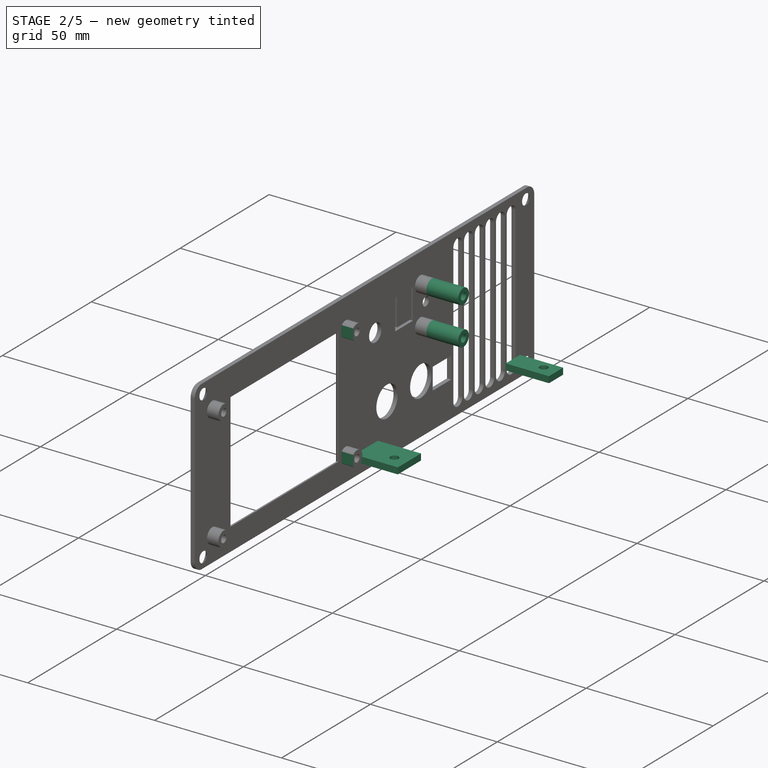
[diagram: stage 2 of 5 — iso view after this stage's code; geometry added in this stage tinted green]
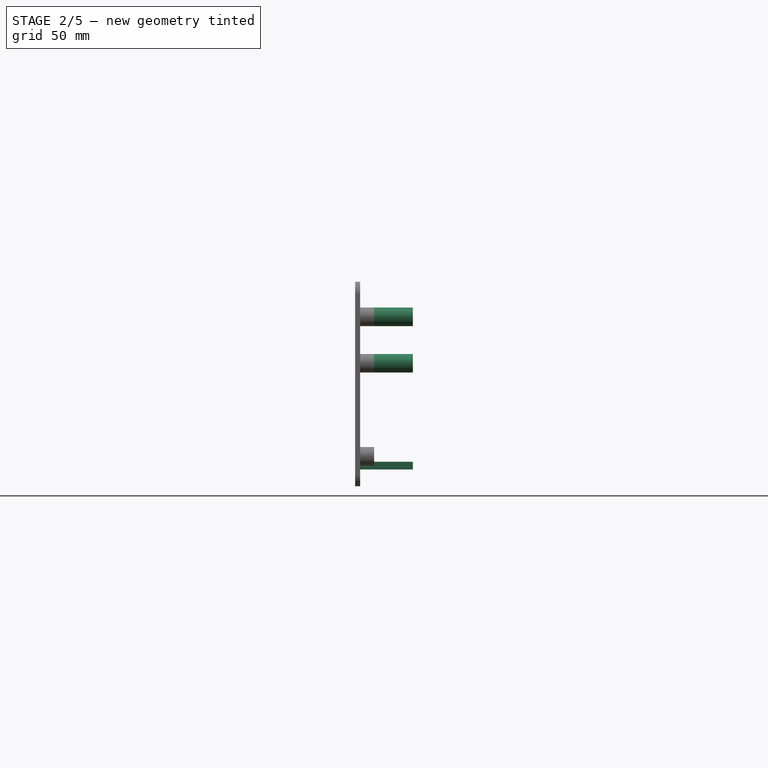
[diagram: stage 2 of 5 — front view after this stage's code; geometry added in this stage tinted green]
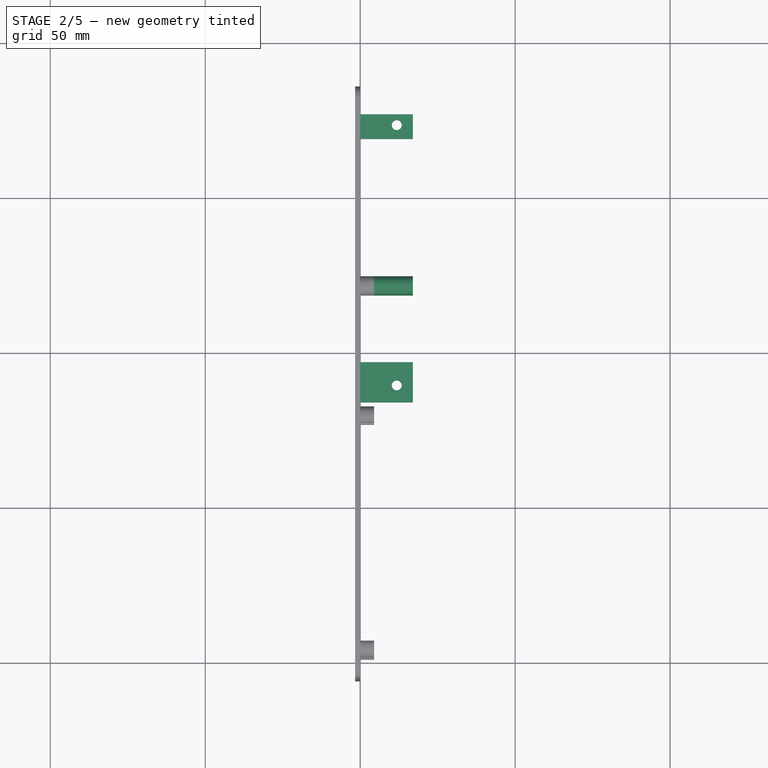
[diagram: stage 2 of 5 — top view after this stage's code; geometry added in this stage tinted green]
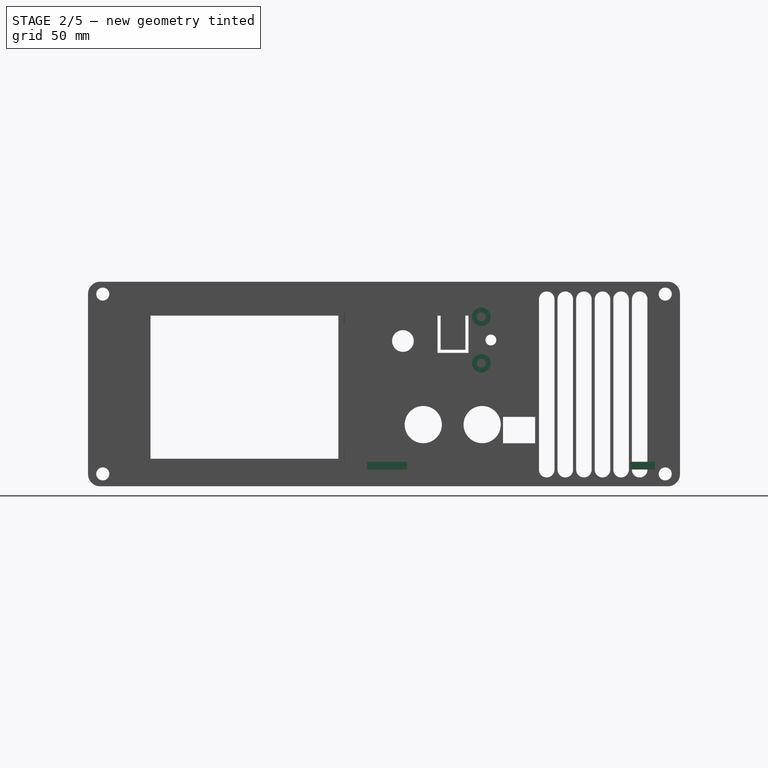
[diagram: stage 2 of 5 — right view after this stage's code; geometry added in this stage tinted green]
FEATURE [Sketcher::SketchObject] Sketch013
  FullyConstrained = true
  MapMode = 5
  Placement = pos=(0,0,0) rot=(0.57735,0.57735,0.57735;2.0944rad)
  Support = -> [YZ_Plane069]
  sketch-geometry (4):
    g0: LineSegment StartX=76.75 StartY=45.9 StartZ=0 EndX=6.25 EndY=45.9 EndZ=0
    g1: LineSegment StartX=6.25 StartY=45.9 StartZ=0 EndX=6.25 EndY=-7.1 EndZ=0
    g2: LineSegment StartX=6.25 StartY=-7.1 StartZ=0 EndX=76.75 EndY=-7.1 EndZ=0
    g3: LineSegment StartX=76.75 StartY=-7.1 StartZ=0 EndX=76.75 EndY=45.9 EndZ=0
  constraints (12):
    c: Coincident(g0,g1)
    c: Coincident(g1,g2)
    c: Coincident(g2,g3)
    c: Coincident(g3,g0)
    c: Horizontal(g0)
    c: Horizontal(g2)
    c: Vertical(g1)
    c: Vertical(g3)
    c: DistanceX(g1) = 6.25
    c: DistanceY(g1) = -7.1
    c: DistanceX(g2,g2) = 70.5
    c: DistanceY(g3,g3) = 53
FEATURE [PartDesign::Pocket] Pocket005
  BaseFeature = -> Chamfer001
  Direction = (-1,2e-16,-3e-16)
  Length = 5
  Length2 = 5
  Placement = pos=(0,0,0) rot=(0.57735,0.57735,0.57735;2.0944rad)
  Profile = -> Sketch013
  ReferenceAxis = -> Sketch013 [N_Axis]
  Reversed = true
  Type = 0
FEATURE [PartDesign::Pad] Pad006
  BaseFeature = -> Pocket005
  Direction = (1,-2e-16,1.2e-15)
  Length = 12.5
  Length2 = 10
  Placement = pos=(0,0,0) rot=(0.57735,0.57735,0.57735;2.0944rad)
  Profile = -> Pocket005 [Face89]
  Type = 0
FEATURE [PartDesign::Pad] Pad007
  BaseFeature = -> Pad006
  Direction = (1,-2e-16,1.6e-15)
  Length = 12.5
  Length2 = 10
  Placement = pos=(0,0,0) rot=(0.57735,0.57735,0.57735;2.0944rad)
  Profile = -> Pad006 [Face88]
  Type = 0
FEATURE [Sketcher::SketchObject] Sketch014
  FullyConstrained = true
  MapMode = 5
  Placement = pos=(0,0,0) rot=(0.57735,0.57735,0.57735;2.0944rad)
  Support = -> [YZ_Plane069]
  sketch-geometry (8):
    g0: LineSegment StartX=84 StartY=-5 StartZ=0 EndX=97 EndY=-5 EndZ=0
    g1: LineSegment StartX=97 StartY=-5 StartZ=0 EndX=97 EndY=-7.5 EndZ=0
    g2: LineSegment StartX=97 StartY=-7.5 StartZ=0 EndX=84 EndY=-7.5 EndZ=0
    g3: LineSegment StartX=84 StartY=-7.5 StartZ=0 EndX=84 EndY=-5 EndZ=0
    g4: LineSegment StartX=177 StartY=-5 StartZ=0 EndX=169 EndY=-5 EndZ=0
    g5: LineSegment StartX=169 StartY=-5 StartZ=0 EndX=169 EndY=-7.5 EndZ=0
    g6: LineSegment StartX=169 StartY=-7.5 StartZ=0 EndX=177 EndY=-7.5 EndZ=0
    g7: LineSegment StartX=177 StartY=-7.5 StartZ=0 EndX=177 EndY=-5 EndZ=0
  constraints (24):
    c: Coincident(g0,g1)
    c: Coincident(g1,g2)
    c: Coincident(g2,g3)
    c: Coincident(g3,g0)
    c: Horizontal(g0)
    c: Horizontal(g2)
    c: Vertical(g1)
    c: Vertical(g3)
    c: DistanceY(g3,g3) = 2.5
    c: DistanceX(g2,g2) = 13
    c: Coincident(g4,g5)
    c: Coincident(g5,g6)
    c: Coincident(g6,g7)
    c: Coincident(g7,g4)
    c: Horizontal(g4)
    c: Horizontal(g6)
    c: Vertical(g5)
    c: Vertical(g7)
    c: Horizontal(g0,g4)
    c: Equal(g5,g1)
    c: DistanceX(g4) = 177
    c: DistanceY(g4) = -5
    c: DistanceX(g-1,g0) = 84
    c: DistanceX(g6,g6) = 8
FEATURE [PartDesign::Pad] Pad008
  BaseFeature = -> Pad007
  Direction = (1,-2e-16,3e-16)
  Length = 17
  Length2 = 10
  Placement = pos=(0,0,0) rot=(0.57735,0.57735,0.57735;2.0944rad)
  Profile = -> Sketch014
  ReferenceAxis = -> Sketch014 [N_Axis]
  Type = 0
FEATURE [Sketcher::SketchObject] Sketch015
  FullyConstrained = true
  MapMode = 5
  Support = -> [XY_Plane069]
  sketch-geometry (2):
    g0: Circle CenterX=11.8 CenterY=173.5 CenterZ=0 NormalX=0 NormalY=0 NormalZ=1 AngleXU=0 Radius=1.6
    g1: Circle CenterX=11.8 CenterY=89.5 CenterZ=0 NormalX=0 NormalY=0 NormalZ=1 AngleXU=0 Radius=1.6
  constraints (6):
    c: Diameter(g0) = 3.2
    c: DistanceX(g0) = 11.8
    c: DistanceY(g0) = 173.5
    c: Equal(g0,g1)
    c: Vertical(g1,g0)
    c: DistanceY(g1,g0) = 84
FEATURE [PartDesign::Pocket] Pocket006
  BaseFeature = -> Pad008
  Direction = (0,0,-1)
  Length = 32
  Length2 = 5
  Midplane = true
  Placement = pos=(0,0,0) rot=(0.57735,0.57735,0.57735;2.0944rad)
  Profile = -> Sketch015
  ReferenceAxis = -> Sketch015 [N_Axis]
  Type = 0
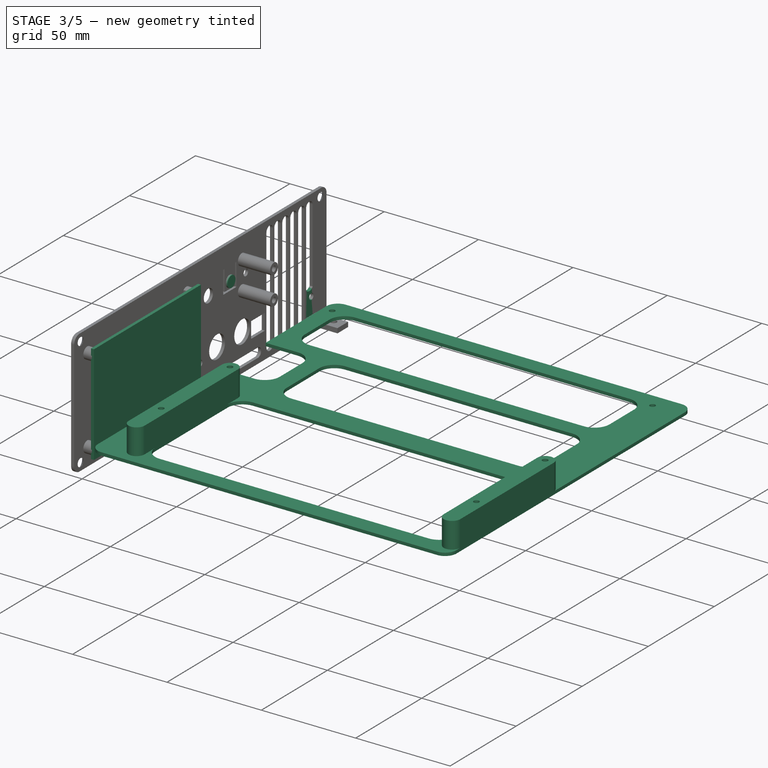
[diagram: stage 3 of 5 — iso view after this stage's code; geometry added in this stage tinted green]
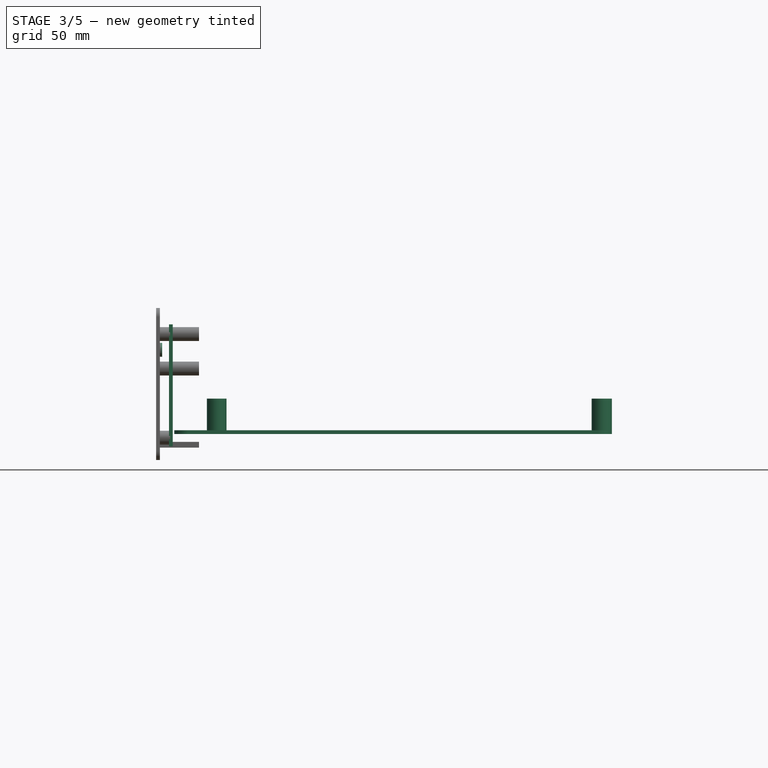
[diagram: stage 3 of 5 — front view after this stage's code; geometry added in this stage tinted green]
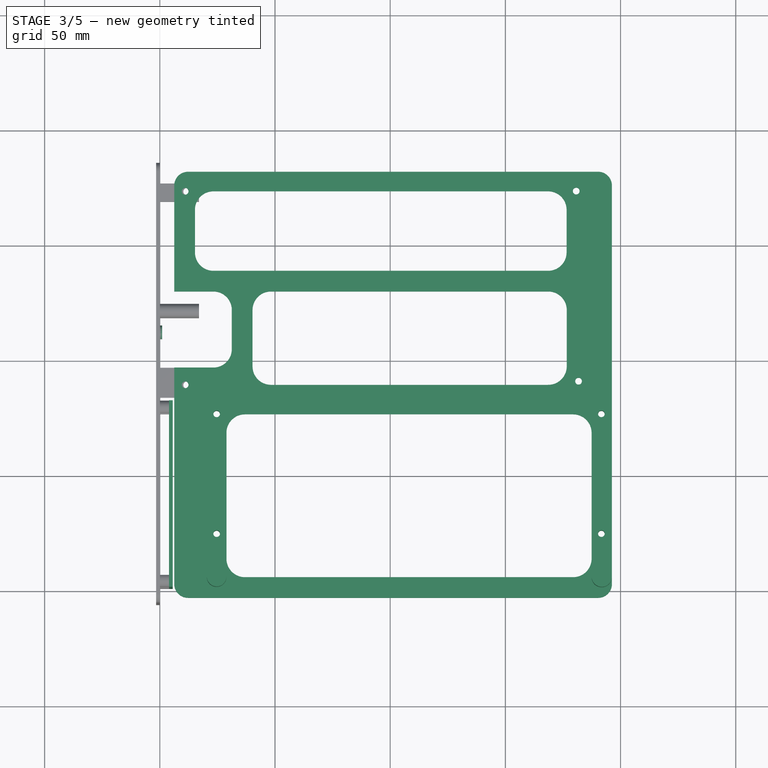
[diagram: stage 3 of 5 — top view after this stage's code; geometry added in this stage tinted green]
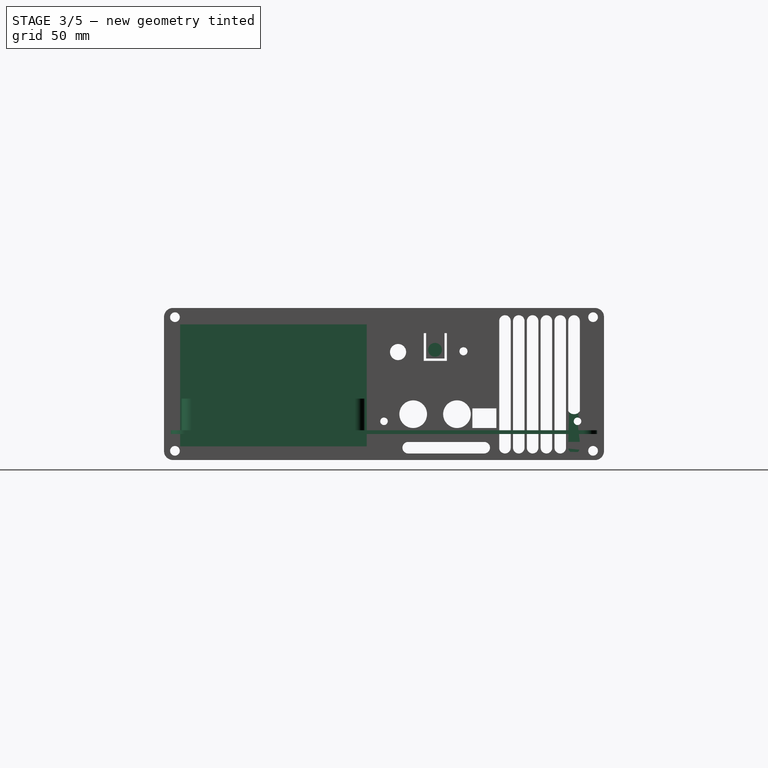
[diagram: stage 3 of 5 — right view after this stage's code; geometry added in this stage tinted green]
FEATURE [PartDesign::Body] Body  label="Heatsink"
  Group = -> [Binder,Pad]
  Origin = -> Origin067
  Tip = -> Pad
FEATURE [Sketcher::SketchObject] Sketch
  FullyConstrained = false
  MapMode = 5
  Support = -> [XY_Plane068]
  sketch-geometry (72):
    g0: LineSegment StartX=12.25 StartY=182 StartZ=0 EndX=190.25 EndY=182 EndZ=0
    g1: LineSegment StartX=196.25 StartY=176 StartZ=0 EndX=196.25 EndY=3 EndZ=0
    g2: LineSegment StartX=190.25 StartY=-3 StartZ=0 EndX=12.25 EndY=-3 EndZ=0
    g3: LineSegment StartX=6.25 StartY=3 StartZ=0 EndX=6.25 EndY=97 EndZ=0
    g4: ArcOfCircle CenterX=190.25 CenterY=176 CenterZ=0 NormalX=0 NormalY=0 NormalZ=1 AngleXU=0 Radius=6 StartAngle=1.2e-15 EndAngle=1.5708
    g5: GeomPoint X=196.25 Y=182 Z=0
    g6: ArcOfCircle CenterX=190.25 CenterY=3 CenterZ=0 NormalX=0 NormalY=0 NormalZ=1 AngleXU=0 Radius=6 StartAngle=4.71239 EndAngle=6.28319
    g7: GeomPoint X=196.25 Y=-3 Z=0
    g8: ArcOfCircle CenterX=12.25 CenterY=176 CenterZ=0 NormalX=0 NormalY=0 NormalZ=1 AngleXU=0 Radius=6 StartAngle=1.5708 EndAngle=3.14159
    g9: GeomPoint X=6.25 Y=182 Z=0
    g10: ArcOfCircle CenterX=12.25 CenterY=3 CenterZ=0 NormalX=0 NormalY=0 NormalZ=1 AngleXU=0 Radius=6 StartAngle=3.14159 EndAngle=4.71239
    g11: GeomPoint X=6.25 Y=-3 Z=0
    g12: Circle CenterX=11 CenterY=173.498 CenterZ=0 NormalX=0 NormalY=0 NormalZ=1 AngleXU=0 Radius=1.45
    g13: Circle CenterX=11 CenterY=89.4976 CenterZ=0 NormalX=0 NormalY=0 NormalZ=1 AngleXU=0 Radius=1.45
    g14: Circle CenterX=180.742 CenterY=173.605 CenterZ=0 NormalX=0 NormalY=0 NormalZ=1 AngleXU=0 Radius=1.45
    g15: Circle CenterX=181.761 CenterY=91.0561 CenterZ=0 NormalX=0 NormalY=0 NormalZ=1 AngleXU=0 Radius=1.45
    g16: ArcOfCircle CenterX=48.25 CenterY=97.4976 CenterZ=0 NormalX=0 NormalY=0 NormalZ=1 AngleXU=0 Radius=8 StartAngle=3.14159 EndAngle=4.71239
    g17: LineSegment StartX=40.25 StartY=97.4976 StartZ=0 EndX=40.25 EndY=122 EndZ=0
    g18: ArcOfCircle CenterX=48.25 CenterY=122 CenterZ=0 NormalX=0 NormalY=0 NormalZ=1 AngleXU=0 Radius=8 StartAngle=1.5708 EndAngle=3.14159
    g19: LineSegment StartX=48.25 StartY=130 StartZ=0 EndX=168.625 EndY=130 EndZ=0
    g20: ArcOfCircle CenterX=168.625 CenterY=122 CenterZ=0 NormalX=0 NormalY=0 NormalZ=1 AngleXU=0 Radius=8 StartAngle=-9e-16 EndAngle=1.5708
    g21: LineSegment StartX=176.625 StartY=122 StartZ=0 EndX=176.625 EndY=97.4976 EndZ=0
    g22: ArcOfCircle CenterX=168.625 CenterY=97.4976 CenterZ=0 NormalX=0 NormalY=0 NormalZ=1 AngleXU=0 Radius=8 StartAngle=4.71239 EndAngle=6.28319
    g23: LineSegment StartX=168.625 StartY=89.4976 StartZ=0 EndX=48.25 EndY=89.4976 EndZ=0
    g24: GeomPoint X=40.25 Y=89.4976 Z=0
    g25: GeomPoint X=176.625 Y=130 Z=0
    g26: ArcOfCircle CenterX=23.25 CenterY=147 CenterZ=0 NormalX=0 NormalY=0 NormalZ=1 AngleXU=0 Radius=8 StartAngle=3.14159 EndAngle=4.71239
    g27: LineSegment StartX=15.25 StartY=147 StartZ=0 EndX=15.25 EndY=165.498 EndZ=0
    g28: ArcOfCircle CenterX=23.25 CenterY=165.498 CenterZ=0 NormalX=0 NormalY=0 NormalZ=1 AngleXU=0 Radius=8 StartAngle=1.5708 EndAngle=3.14159
    g29: LineSegment StartX=23.25 StartY=173.498 StartZ=0 EndX=168.564 EndY=173.498 EndZ=0
    g30: ArcOfCircle CenterX=168.564 CenterY=165.498 CenterZ=0 NormalX=0 NormalY=0 NormalZ=1 AngleXU=0 Radius=8 StartAngle=-1.8e-15 EndAngle=1.5708
    g31: LineSegment StartX=176.564 StartY=165.498 StartZ=0 EndX=176.564 EndY=147 EndZ=0
    g32: ArcOfCircle CenterX=168.564 CenterY=147 CenterZ=0 NormalX=0 NormalY=0 NormalZ=1 AngleXU=0 Radius=8 StartAngle=4.71239 EndAngle=6.28319
    g33: LineSegment StartX=168.564 StartY=139 StartZ=0 EndX=23.25 EndY=139 EndZ=0
    g34: GeomPoint X=15.25 Y=139 Z=0
    g35: GeomPoint X=176.564 Y=173.498 Z=0
    g36: LineSegment StartX=6.25 StartY=130 StartZ=0 EndX=23.25 EndY=130 EndZ=0
    g37: ArcOfCircle CenterX=23.25 CenterY=122 CenterZ=0 NormalX=0 NormalY=0 NormalZ=1 AngleXU=0 Radius=8 StartAngle=-9e-16 EndAngle=1.5708
    g38: LineSegment StartX=31.25 StartY=122 StartZ=0 EndX=31.25 EndY=105 EndZ=0
    g39: ArcOfCircle CenterX=23.25 CenterY=105 CenterZ=0 NormalX=0 NormalY=0 NormalZ=1 AngleXU=0 Radius=8 StartAngle=4.71239 EndAngle=6.28319
    g40: LineSegment StartX=23.25 StartY=97 StartZ=0 EndX=6.25 EndY=97 EndZ=0
    g41: GeomPoint X=-2.4437 Y=97 Z=0
    g42: GeomPoint X=31.25 Y=130 Z=0
    g43: LineSegment StartX=6.25 StartY=130 StartZ=0 EndX=6.25 EndY=176 EndZ=0
    g44: LineSegment StartX=15.25 StartY=147 StartZ=0 EndX=6.25 EndY=147 EndZ=0
    g45: LineSegment StartX=11 StartY=173.498 StartZ=0 EndX=16.5518 EndY=169.872 EndZ=0
    g46: LineSegment StartX=180.742 StartY=173.605 StartZ=0 EndX=175.223 EndY=169.931 EndZ=0
    g47: LineSegment StartX=181.761 StartY=91.0561 StartZ=0 EndX=175.807 EndY=93.9755 EndZ=0
    g48: LineSegment StartX=23.25 StartY=130 StartZ=0 EndX=23.25 EndY=139 EndZ=0
    g49: LineSegment StartX=48.25 StartY=130 StartZ=0 EndX=48.25 EndY=139 EndZ=0
    g50: LineSegment StartX=31.25 StartY=105 StartZ=0 EndX=40.25 EndY=105 EndZ=0
    g51: Circle CenterX=24.67 CenterY=76.67 CenterZ=0 NormalX=0 NormalY=0 NormalZ=1 AngleXU=0 Radius=1.45
    g52: Circle CenterX=24.67 CenterY=24.67 CenterZ=0 NormalX=0 NormalY=0 NormalZ=1 AngleXU=0 Radius=1.45
    g53: Circle CenterX=191.67 CenterY=24.67 CenterZ=0 NormalX=0 NormalY=0 NormalZ=1 AngleXU=0 Radius=1.45
    g54: Circle CenterX=191.67 CenterY=76.67 CenterZ=0 NormalX=0 NormalY=0 NormalZ=1 AngleXU=0 Radius=1.45
    g55: LineSegment StartX=24.67 StartY=24.67 StartZ=0 EndX=191.67 EndY=24.67 EndZ=0
    g56: LineSegment StartX=191.67 StartY=24.67 StartZ=0 EndX=191.67 EndY=76.67 EndZ=0
    g57: LineSegment StartX=191.67 StartY=76.67 StartZ=0 EndX=24.67 EndY=76.67 EndZ=0
    g58: LineSegment StartX=24.67 StartY=76.67 StartZ=0 EndX=24.67 EndY=24.67 EndZ=0
    g59: ArcOfCircle CenterX=36.92 CenterY=14 CenterZ=0 NormalX=0 NormalY=0 NormalZ=1 AngleXU=0 Radius=8 StartAngle=3.14159 EndAngle=4.71239
    g60: LineSegment StartX=28.92 StartY=14 StartZ=0 EndX=28.92 EndY=68.67 EndZ=0
    g61: ArcOfCircle CenterX=36.92 CenterY=68.67 CenterZ=0 NormalX=0 NormalY=0 NormalZ=1 AngleXU=0 Radius=8 StartAngle=1.5708 EndAngle=3.14159
    g62: LineSegment StartX=36.92 StartY=76.67 StartZ=0 EndX=179.42 EndY=76.67 EndZ=0
    g63: ArcOfCircle CenterX=179.42 CenterY=68.67 CenterZ=0 NormalX=0 NormalY=0 NormalZ=1 AngleXU=0 Radius=8 StartAngle=-9e-16 EndAngle=1.5708
    g64: LineSegment StartX=187.42 StartY=68.67 StartZ=0 EndX=187.42 EndY=14 EndZ=0
    g65: ArcOfCircle CenterX=179.42 CenterY=14 CenterZ=0 NormalX=0 NormalY=0 NormalZ=1 AngleXU=0 Radius=8 StartAngle=4.71239 EndAngle=6.28319
    g66: LineSegment StartX=179.42 StartY=6 StartZ=0 EndX=36.92 EndY=6 EndZ=0
    g67: GeomPoint X=28.92 Y=6 Z=0
    g68: GeomPoint X=187.42 Y=76.67 Z=0
    g69: LineSegment StartX=36.92 StartY=6 StartZ=0 EndX=36.92 EndY=-3 EndZ=0
    g70: LineSegment StartX=24.67 StartY=76.67 StartZ=0 EndX=30.2218 EndY=73.0443 EndZ=0
    g71: LineSegment StartX=191.67 StartY=76.67 StartZ=0 EndX=186.118 EndY=73.0443 EndZ=0
  constraints (180):
    c: Horizontal(g0)
    c: Horizontal(g2)
    c: Vertical(g1)
    c: Vertical(g3)
    c: DistanceY(g11,g9) = 185
    c: DistanceY(g11,g-1) = 3
    c: DistanceX(g-1,g11) = 6.25
    c: DistanceX(g9,g5) = 190
    c: PointOnObject(g5,g0)
    c: PointOnObject(g5,g1)
    c: Tangent(g0,g4) = 1.5708
    c: Tangent(g1,g4) = 1.5708
    c: PointOnObject(g7,g1)
    c: PointOnObject(g7,g2)
    c: Tangent(g1,g6) = 1.5708
    c: Tangent(g2,g6) = 1.5708
    c: PointOnObject(g9,g0)
    c: PointOnObject(g9,g3)
    c: Tangent(g0,g8) = 1.5708
    c: PointOnObject(g11,g2)
    c: PointOnObject(g11,g3)
    c: Tangent(g2,g10) = 1.5708
    c: Tangent(g3,g10) = 1.5708
    c: Equal(g10,g8)
    c: Equal(g8,g4)
    c: Equal(g4,g6)
    c: Radius(g4) = 6
    c: Equal(g15,g14)
    c: Equal(g14,g12)
    c: Equal(g12,g13)
    c: Vertical(g12,g13)
    c: Diameter(g15) = 2.9
    c: DistanceX(g15) = 181.761
    c: DistanceY(g15) = 91.0561
    c: DistanceX(g14) = 180.742
    c: DistanceY(g14) = 173.605
    c: DistanceX(g12) = 11
    c: DistanceY(g12) = 173.498
    c: DistanceY(g13,g12) = 84
    c: Tangent(g16,g17) = 1.5708
    c: Tangent(g17,g18) = 1.5708
    c: Tangent(g18,g19) = 1.5708
    c: Tangent(g19,g20) = 1.5708
    c: Tangent(g20,g21) = 1.5708
    c: Tangent(g21,g22) = 1.5708
    c: Tangent(g22,g23) = 1.5708
    c: Tangent(g23,g16) = 1.5708
    c: Horizontal(g19)
    c: Horizontal(g23)
    c: Vertical(g17)
    c: Vertical(g21)
    c: Equal(g16,g18)
    c: Equal(g18,g20)
    c: Equal(g20,g22)
    c: PointOnObject(g24,g17)
    c: PointOnObject(g24,g23)
    c: PointOnObject(g25,g19)
    c: PointOnObject(g25,g21)
    c: Tangent(g26,g27) = 1.5708
    c: Tangent(g27,g28) = 1.5708
    c: Tangent(g28,g29) = 1.5708
    c: Tangent(g29,g30) = 1.5708
    c: Tangent(g30,g31) = 1.5708
    c: Tangent(g31,g32) = 1.5708
    c: Tangent(g32,g33) = 1.5708
    c: Tangent(g33,g26) = 1.5708
    c: Horizontal(g29)
    c: Horizontal(g33)
    c: Vertical(g27)
    c: Vertical(g31)
    c: Equal(g26,g28)
    c: Equal(g28,g30)
    c: Equal(g30,g32)
    c: PointOnObject(g34,g27)
    c: PointOnObject(g34,g33)
    c: PointOnObject(g35,g29)
    c: PointOnObject(g35,g31)
    c: Tangent(g36,g37) = 1.5708
    c: Tangent(g37,g38) = 1.5708
    c: Tangent(g38,g39) = 1.5708
    c: Tangent(g39,g40) = 1.5708
    c: Horizontal(g36)
    c: Horizontal(g40)
    c: Vertical(g38)
    c: Equal(g37,g39)
    c: PointOnObject(g41,g40)
    c: PointOnObject(g42,g36)
    c: PointOnObject(g42,g38)
    c: Coincident(g3,g40)
    c: Coincident(g43,g36)
    c: Equal(g18,g37)
    c: Equal(g37,g26)
    c: Horizontal(g28,g12)
    c: Coincident(g44,g26)
    c: Horizontal(g44)
    c: Coincident(g45,g12)
    c: PointOnObject(g45,g28)
    c: Perpendicular(g28,g45)
    c: Coincident(g46,g14)
    c: PointOnObject(g46,g30)
    c: Perpendicular(g30,g46)
    c: Equal(g46,g45)
    c: Perpendicular(g22,g47)
    c: Equal(g47,g46)
    c: PointOnObject(g47,g22)
    c: Coincident(g47,g15)
    c: Vertical(g43)
    c: PointOnObject(g44,g43)
    c: Radius(g26) = 8
    c: Vertical(g36,g3)
    c: DistanceY(g36,g0) = 52
    c: DistanceY(g3,g36) = 33
    c: Coincident(g48,g36)
    c: Coincident(g48,g26)
    c: Vertical(g48)
    c: Equal(g48,g44)
    c: Horizontal(g16,g13)
    c: Coincident(g49,g18)
    c: PointOnObject(g49,g33)
    c: Vertical(g49)
    c: Coincident(g50,g38)
    c: PointOnObject(g50,g17)
    c: Horizontal(g50)
    c: Equal(g49,g48)
    c: Equal(g50,g48)
    c: DistanceX(g3,g38) = 25
    c: Tangent(g43,g8) = 1.5708
    c: Equal(g54,g53)
    c: Equal(g53,g52)
    c: Equal(g52,g51)
    c: Equal(g51,g15)
    c: Coincident(g55,g56)
    c: Coincident(g56,g57)
    c: Coincident(g57,g58)
    c: Coincident(g58,g55)
    c: Horizontal(g55)
    c: Horizontal(g57)
    c: Vertical(g56)
    c: Vertical(g58)
    c: Coincident(g52,g55)
    c: Coincident(g54,g56)
    c: Coincident(g55,g53)
    c: Coincident(g57,g51)
    c: DistanceY(g58,g58) = 52
    c: DistanceX(g52,g53) = 167
    c: DistanceX(g52) = 24.67
    c: DistanceY(g52) = 24.67
    c: Tangent(g59,g60) = 1.5708
    c: Tangent(g60,g61) = 1.5708
    c: Tangent(g61,g62) = 1.5708
    c: Tangent(g62,g63) = 1.5708
    c: Tangent(g63,g64) = 1.5708
    c: Tangent(g64,g65) = 1.5708
    c: Tangent(g65,g66) = 1.5708
    c: Tangent(g66,g59) = 1.5708
    c: Horizontal(g62)
    c: Horizontal(g66)
    c: Vertical(g60)
    c: Vertical(g64)
    c: Equal(g59,g61)
    c: Equal(g61,g63)
    c: Equal(g63,g65)
    c: PointOnObject(g67,g60)
    c: PointOnObject(g67,g66)
    c: PointOnObject(g68,g62)
    c: PointOnObject(g68,g64)
    c: Equal(g61,g16)
    c: Horizontal(g61,g51)
    c: Coincident(g69,g59)
    c: PointOnObject(g69,g2)
    c: Vertical(g69)
    c: Coincident(g70,g51)
    c: PointOnObject(g70,g61)
    c: Perpendicular(g61,g70)
    c: Equal(g69,g50)
    c: Equal(g70,g45)
    c: Coincident(g71,g54)
    c: PointOnObject(g71,g63)
    c: Perpendicular(g63,g71)
    c: Equal(g71,g70)
FEATURE [PartDesign::Pad] Pad001
  Direction = (0,0,1)
  Length = 1.6
  Length2 = 10
  Profile = -> Sketch
  ReferenceAxis = -> Sketch [N_Axis]
  Reversed = true
  Type = 0
FEATURE [Sketcher::SketchObject] Sketch001
  ExternalGeometry = -> [Pad001]
  FullyConstrained = true
  MapMode = 5
  Support = -> [XY_Plane068]
  sketch-geometry (12):
    g0: Circle CenterX=24.67 CenterY=24.67 CenterZ=0 NormalX=0 NormalY=0 NormalZ=1 AngleXU=0 Radius=1.45
    g1: Circle CenterX=191.67 CenterY=76.67 CenterZ=0 NormalX=0 NormalY=0 NormalZ=1 AngleXU=0 Radius=1.45
    g2: Circle CenterX=191.67 CenterY=24.67 CenterZ=0 NormalX=0 NormalY=0 NormalZ=1 AngleXU=0 Radius=1.45
    g3: ArcOfCircle CenterX=24.67 CenterY=76.67 CenterZ=0 NormalX=0 NormalY=0 NormalZ=1 AngleXU=0 Radius=4.25 StartAngle=-4.361e-13 EndAngle=3.14159
    g4: ArcOfCircle CenterX=24.67 CenterY=6 CenterZ=0 NormalX=0 NormalY=0 NormalZ=1 AngleXU=0 Radius=4.25 StartAngle=3.14159 EndAngle=6.28319
    g5: LineSegment StartX=20.42 StartY=76.67 StartZ=0 EndX=20.42 EndY=6 EndZ=0
    g6: LineSegment StartX=28.92 StartY=6 StartZ=0 EndX=28.92 EndY=76.67 EndZ=0
    g7: ArcOfCircle CenterX=191.835 CenterY=76.67 CenterZ=0 NormalX=0 NormalY=0 NormalZ=1 AngleXU=0 Radius=4.415 StartAngle=-3.162e-13 EndAngle=3.14159
    g8: ArcOfCircle CenterX=191.835 CenterY=6 CenterZ=0 NormalX=0 NormalY=0 NormalZ=1 AngleXU=0 Radius=4.415 StartAngle=3.14159 EndAngle=6.28319
    g9: LineSegment StartX=187.42 StartY=76.67 StartZ=0 EndX=187.42 EndY=6 EndZ=0
    g10: LineSegment StartX=196.25 StartY=6 StartZ=0 EndX=196.25 EndY=76.67 EndZ=0
    g11: Circle CenterX=24.67 CenterY=76.67 CenterZ=0 NormalX=0 NormalY=0 NormalZ=1 AngleXU=0 Radius=1.45
  constraints (27):
    c: Coincident(g0,g-3)
    c: Coincident(g1,g-4)
    c: Coincident(g2,g-5)
    c: Equal(g2,g-5)
    c: Equal(g1,g-4)
    c: Equal(g0,g-3)
    c: Tangent(g3,g5) = -1.5708
    c: Tangent(g5,g4) = -1.5708
    c: Tangent(g4,g6) = -1.5708
    c: Tangent(g6,g3) = -1.5708
    c: Equal(g3,g4)
    c: Vertical(g5)
    c: PointOnObject(g-6,g6)
    c: Coincident(g3,g-9)
    c: Horizontal(g4,g-7)
    c: Tangent(g9,g7) = -1.5708
    c: Tangent(g7,g10) = -1.5708
    c: Equal(g7,g8)
    c: Tangent(g9,g8) = -1.5708
    c: Tangent(g8,g10) = -1.5708
    c: Vertical(g8,g7)
    c: Horizontal(g8,g-7)
    c: PointOnObject(g7,g-10)
    c: PointOnObject(g-8,g9)
    c: Horizontal(g7,g1)
    c: Coincident(g11,g3)
    c: Equal(g11,g-9)
FEATURE [PartDesign::Pad] Pad002
  BaseFeature = -> Pad001
  Direction = (0,0,1)
  Length = 13.75
  Length2 = 10
  Profile = -> Sketch001
  ReferenceAxis = -> Sketch001 [N_Axis]
  Type = 0
FEATURE [Part::Box] Box006  label="TFT-PCB"
  AttacherType = Attacher::AttachEngine3D
  Height = 53
  Length = 1.6
  Placement = pos=(4,1,-7) rot=(0,0,1;0rad)
  Width = 81
FEATURE [Sketcher::SketchObject] Sketch016
  FullyConstrained = true
  MapMode = 5
  Placement = pos=(0,0,0) rot=(0.57735,0.57735,0.57735;2.0944rad)
  Support = -> [YZ_Plane069]
  sketch-geometry (4):
    g0: LineSegment StartX=169.017 StartY=10 StartZ=0 EndX=169.017 EndY=-11 EndZ=0
    g1: LineSegment StartX=169.017 StartY=-11 StartZ=0 EndX=175.017 EndY=-11 EndZ=0
    g2: LineSegment StartX=175.017 StartY=-11 StartZ=0 EndX=175.017 EndY=10 EndZ=0
    g3: ArcOfCircle CenterX=172.017 CenterY=10 CenterZ=0 NormalX=0 NormalY=0 NormalZ=1 AngleXU=0 Radius=3 StartAngle=3.14159 EndAngle=6.28319
  constraints (13):
    c: Coincident(g0,g1)
    c: Coincident(g1,g2)
    c: Horizontal(g1)
    c: Vertical(g0)
    c: Vertical(g2)
    c: DistanceX(g0,g2) = 6
    c: DistanceX(g0) = 169.017
    c: DistanceY(g1,g-1) = 11
    c: Coincident(g3,g0)
    c: Coincident(g3,g2)
    c: Horizontal(g2,g3)
    c: Equal(g2,g0)
    c: DistanceY(g2,g2) = 21
FEATURE [PartDesign::Pad] Pad009
  BaseFeature = -> Pocket006
  Direction = (1,-2e-16,3e-16)
  Length = 10
  Length2 = 10
  Placement = pos=(0,0,0) rot=(0.57735,0.57735,0.57735;2.0944rad)
  Profile = -> Sketch016
  ReferenceAxis = -> Sketch016 [N_Axis]
  Reversed = true
  Type = 3
  UpToFace = -> Pocket006 [Face1]
FEATURE [Sketcher::SketchObject] Sketch017
  ExternalGeometry = -> [Pad009]
  FullyConstrained = true
  MapMode = 5
  Placement = pos=(0,0,0) rot=(0.57735,0.57735,0.57735;2.0944rad)
  Support = -> [YZ_Plane069]
  sketch-geometry (7):
    g0: ArcOfCircle CenterX=133 CenterY=-7.55 CenterZ=0 NormalX=0 NormalY=0 NormalZ=1 AngleXU=0 Radius=2.5 StartAngle=4.71239 EndAngle=7.85398
    g1: ArcOfCircle CenterX=100 CenterY=-7.55 CenterZ=0 NormalX=0 NormalY=0 NormalZ=1 AngleXU=0 Radius=2.5 StartAngle=1.5708 EndAngle=4.71239
    g2: LineSegment StartX=133 StartY=-5.05 StartZ=0 EndX=100 EndY=-5.05 EndZ=0
    g3: LineSegment StartX=100 StartY=-10.05 StartZ=0 EndX=133 EndY=-10.05 EndZ=0
    g4: LineSegment StartX=133 StartY=-10.05 StartZ=0 EndX=142 EndY=-10.05 EndZ=0
    g5: Circle CenterX=173.502 CenterY=3.91 CenterZ=0 NormalX=0 NormalY=0 NormalZ=1 AngleXU=0 Radius=1.625
    g6: Circle CenterX=89.5018 CenterY=3.91 CenterZ=0 NormalX=0 NormalY=0 NormalZ=1 AngleXU=0 Radius=1.625
  constraints (18):
    c: Tangent(g0,g2) = -1.5708
    c: Tangent(g2,g1) = -1.5708
    c: Tangent(g1,g3) = -1.5708
    c: Tangent(g3,g0) = -1.5708
    c: Equal(g0,g1)
    c: Horizontal(g2)
    c: Diameter(g0) = 5
    c: Coincident(g4,g0)
    c: Tangent(g4,g-3) = -1.5708
    c: Horizontal(g4)
    c: DistanceX(g3,g3) = 33
    c: DistanceX(g-1,g1) = 100
    c: Equal(g6,g5)
    c: Horizontal(g5,g6)
    c: DistanceX(g6,g5) = 84
    c: Diameter(g6) = 3.25
    c: DistanceX(g6) = 89.5018
    c: DistanceY(g6) = 3.91
FEATURE [PartDesign::Pocket] Pocket007
  BaseFeature = -> Pad009
  Direction = (-1,2e-16,-3e-16)
  Length = 5
  Length2 = 5
  Placement = pos=(0,0,0) rot=(0.57735,0.57735,0.57735;2.0944rad)
  Profile = -> Sketch017
  ReferenceAxis = -> Sketch017 [N_Axis]
  Type = 0
FEATURE [Part::Feature] Chamfer002  label="PMB-1"
  Placement = pos=(-0.5,173.5,-0.1) rot=(-1,0,0;1.5708rad)
  shape: bbox 16 x 6 x 13 mm, 15 faces (baked)
FEATURE [Part::Feature] Chamfer003  label="PMB-002"
  Placement = pos=(-0.5,89.5,-0.1) rot=(-1,0,0;1.5708rad)
  shape: bbox 16 x 6 x 13 mm, 15 faces (baked)
FEATURE [Sketcher::SketchObject] Sketch018
  FullyConstrained = true
  MapMode = 5
  Placement = pos=(0,0,0) rot=(0.57735,0.57735,0.57735;2.0944rad)
  Support = -> [YZ_Plane069]
  sketch-geometry (1):
    g0: Circle CenterX=111.65 CenterY=34.9425 CenterZ=0 NormalX=0 NormalY=0 NormalZ=1 AngleXU=0 Radius=3
  constraints (3):
    c: DistanceX(g0) = 111.65
    c: DistanceY(g0) = 34.9425
    c: Diameter(g0) = 6
FEATURE [PartDesign::Pad] Pad010
  BaseFeature = -> Pocket007
  Direction = (1,-2e-16,3e-16)
  Length = 1
  Length2 = 10
  Placement = pos=(0,0,0) rot=(0.57735,0.57735,0.57735;2.0944rad)
  Profile = -> Sketch018
  ReferenceAxis = -> Sketch018 [N_Axis]
  Type = 0
FEATURE [PartDesign::Body] Body002  label="Front Panel"
  Group = -> [Binder001,Sketch006,Sketch007,Sketch009,Sketch010,Pad004,Chamfer,Pocket003,Sketch011,Sketch012,Pad005,Pocket004,Chamfer001,Sketch013,Pocket005,Pad006,Pad007,Sketch014,Pad008,Sketch015,Pocket006,Sketch016,Pad009,Sketch017,Pocket007,Sketch018,Pad010]
  Origin = -> Origin069
  Placement = pos=(-0.8,0,0) rot=(0,0,1;0rad)
  Tip = -> Pad010
FEATURE [App::Link] C5_C_0805_2012Metric_c37d78c0e7e__ln_006  label="C2_C_0805_2012Metric_3a90d12aea5"001"
  LinkPlacement = pos=(211.2,-83.3425,-1.6) rot=(0.707107,-0.707107,0;3.14159rad)
  LinkedObject = -> Shape174
  Placement = pos=(211.2,-83.3425,-1.6) rot=(0.707107,-0.707107,0;3.14159rad)
FEATURE [App::Link] C5_C_0805_2012Metric_c37d78c0e7e__ln_007  label="C1_C_0805_2012Metric_f214d5325a3"001"
  LinkPlacement = pos=(167.5,-98.8,-1.6) rot=(0.707107,-0.707107,0;3.14159rad)
  LinkedObject = -> Shape174
  Placement = pos=(167.5,-98.8,-1.6) rot=(0.707107,-0.707107,0;3.14159rad)
FEATURE [App::Link] C5_C_0805_2012Metric_c37d78c0e7e__ln_008  label="C4_C_0805_2012Metric_1f9bc760d65"001"
  LinkPlacement = pos=(145.65,-80,-1.6) rot=(0.707107,0.707107,0;3.14159rad)
  LinkedObject = -> Shape174
  Placement = pos=(145.65,-80,-1.6) rot=(0.707107,0.707107,0;3.14159rad)
FEATURE [App::Link] C5_C_0805_2012Metric_c37d78c0e7e__ln_009  label="C3_C_0805_2012Metric_9e6fa2387b6"001"
  LinkPlacement = pos=(163,-82.7,-1.6) rot=(0,1,0;3.14159rad)
  LinkedObject = -> Shape174
  Placement = pos=(163,-82.7,-1.6) rot=(0,1,0;3.14159rad)
FEATURE [App::Link] C5_C_0805_2012Metric_c37d78c0e7e__ln_010  label="C7_C_0805_2012Metric_fd35ebc905f"001"
  LinkPlacement = pos=(145.85,-67.3,-1.6) rot=(0.707107,0.707107,0;3.14159rad)
  LinkedObject = -> Shape174
  Placement = pos=(145.85,-67.3,-1.6) rot=(0.707107,0.707107,0;3.14159rad)
FEATURE [App::Link] C5_C_0805_2012Metric_c37d78c0e7e__ln_011  label="C9_C_0805_2012Metric_53a94e2bf13"001"
  LinkPlacement = pos=(192.4,-71.4,-1.6) rot=(0.707107,0.707107,0;3.14159rad)
  LinkedObject = -> Shape174
  Placement = pos=(192.4,-71.4,-1.6) rot=(0.707107,0.707107,0;3.14159rad)
FEATURE [App::Link] C6_CP_Elec_5x58_6693afb63cc__ln_001  label="C8_CP_Elec_5x58_62bf51b026a"001"
  LinkPlacement = pos=(185.8,-95.5,-1.6) rot=(1,0,0;3.14159rad)
  LinkedObject = -> Shape172
  Placement = pos=(185.8,-95.5,-1.6) rot=(1,0,0;3.14159rad)
FEATURE [PartDesign::CoordinateSystem] Local_CS_85fa005
  AttacherType = Attacher::AttachEngine3D
  MapMode = 2
  Support = -> [X_Axis097]
FEATURE [Sketcher::SketchObject] PCB_Sketch_85fa005
  FullyConstrained = false
  sketch-geometry (20):
    g0: LineSegment StartX=184.1 StartY=-99.2 StartZ=0 EndX=226.1 EndY=-99.2 EndZ=0
    g1: LineSegment StartX=245.1 StartY=-114.2 StartZ=0 EndX=230.1 EndY=-114.2 EndZ=0
    g2: LineSegment StartX=122.1 StartY=-65.2 StartZ=0 EndX=122.101 EndY=-80.2 EndZ=0
    g3: LineSegment StartX=126.1 StartY=-61.2 StartZ=0 EndX=245.1 EndY=-61.2 EndZ=0
    g4: LineSegment StartX=170.1 StartY=-114.2 StartZ=0 EndX=180.1 EndY=-114.2 EndZ=0
    g5: LineSegment StartX=182.1 StartY=-112.2 StartZ=0 EndX=182.1 EndY=-101.2 EndZ=0
    g6: LineSegment StartX=126.1 StartY=-84.1986 StartZ=0 EndX=162.101 EndY=-84.2014 EndZ=0
    g7: LineSegment StartX=166.1 StartY=-110.2 StartZ=0 EndX=166.1 EndY=-88.2 EndZ=0
    g8: LineSegment StartX=228.1 StartY=-112.2 StartZ=0 EndX=228.1 EndY=-101.2 EndZ=0
    g9: LineSegment StartX=249.1 StartY=-65.2 StartZ=0 EndX=249.1 EndY=-110.2 EndZ=0
    g10: ArcOfCircle CenterX=245.1 CenterY=-65.2 CenterZ=0 NormalX=0 NormalY=0 NormalZ=-1 AngleXU=1.5708 Radius=4 StartAngle=0 EndAngle=1.5708
    g11: ArcOfCircle CenterX=226.1 CenterY=-101.2 CenterZ=0 NormalX=0 NormalY=0 NormalZ=-1 AngleXU=1.5708 Radius=2 StartAngle=0 EndAngle=1.5708
    g12: ArcOfCircle CenterX=180.1 CenterY=-112.2 CenterZ=0 NormalX=0 NormalY=0 NormalZ=-1 AngleXU=3.14159 Radius=2 StartAngle=0 EndAngle=1.5708
    g13: ArcOfCircle CenterX=170.1 CenterY=-110.2 CenterZ=0 NormalX=0 NormalY=0 NormalZ=-1 AngleXU=-1.5708 Radius=4 StartAngle=0 EndAngle=1.5708
    g14: ArcOfCircle CenterX=162.101 CenterY=-88.2 CenterZ=0 NormalX=0 NormalY=0 NormalZ=-1 AngleXU=1.57079 Radius=3.99859 StartAngle=0 EndAngle=1.57081
    g15: ArcOfCircle CenterX=184.1 CenterY=-101.2 CenterZ=0 NormalX=0 NormalY=0 NormalZ=-1 AngleXU=-7.47076e-07 Radius=2 StartAngle=0 EndAngle=1.5708
    g16: ArcOfCircle CenterX=230.1 CenterY=-112.2 CenterZ=0 NormalX=0 NormalY=0 NormalZ=-1 AngleXU=-1.5708 Radius=2 StartAngle=0 EndAngle=1.5708
    g17: ArcOfCircle CenterX=126.1 CenterY=-65.2 CenterZ=0 NormalX=0 NormalY=0 NormalZ=-1 AngleXU=1.06478e-07 Radius=4 StartAngle=0 EndAngle=1.5708
    g18: ArcOfCircle CenterX=126.1 CenterY=-80.2 CenterZ=0 NormalX=0 NormalY=0 NormalZ=-1 AngleXU=-1.5708 Radius=3.99862 StartAngle=0 EndAngle=1.5708
    g19: ArcOfCircle CenterX=245.1 CenterY=-110.2 CenterZ=0 NormalX=0 NormalY=0 NormalZ=-1 AngleXU=-3.14159 Radius=4 StartAngle=0 EndAngle=1.5708
  constraints (20):
    c: Coincident(g2,g18)
    c: Coincident(g2,g17)
    c: Coincident(g6,g18)
    c: Coincident(g3,g17)
    c: Coincident(g6,g14)
    c: Coincident(g7,g13)
    c: Coincident(g7,g14)
    c: Coincident(g4,g13)
    c: Coincident(g4,g12)
    c: Coincident(g5,g12)
    c: Coincident(g5,g15)
    c: Coincident(g0,g15)
    c: Coincident(g0,g11)
    c: Coincident(g8,g16)
    c: Coincident(g8,g11)
    c: Coincident(g1,g16)
    c: Coincident(g1,g19)
    c: Coincident(g3,g10)
    c: Coincident(g9,g19)
    c: Coincident(g9,g10)
FEATURE [Part::Feature] Part__Feature425  label="EC11_Rotary_Encoder_Switched050"
  shape: bbox 1.5 x 1.93 x 7.07 mm, 34 faces (baked)
FEATURE [Part::Feature] Part__Feature426  label="EC11_Rotary_Encoder_Switched051"
  shape: bbox 1.5 x 1.93 x 7.07 mm, 34 faces (baked)
FEATURE [Part::Feature] Part__Feature427  label="EC11_Rotary_Encoder_Switched052"
  shape: bbox 1.5 x 1.93 x 7.07 mm, 34 faces (baked)
FEATURE [Part::Feature] Part__Feature428  label="EC11_Rotary_Encoder_Switched053"
  shape: bbox 1.5 x 1.93 x 7.07 mm, 34 faces (baked)
FEATURE [Part::Feature] Part__Feature429  label="EC11_Rotary_Encoder_Switched054"
  shape: bbox 1.5 x 1.93 x 7.07 mm, 34 faces (baked)
FEATURE [Part::Feature] Part__Feature430  label="EC11_Rotary_Encoder_Switched055"
  shape: bbox 13.1 x 12 x 9.87 mm, 116 faces (baked)
FEATURE [Part::Feature] Part__Feature431  label="EC11_Rotary_Encoder_Switched056"
  shape: bbox 11.8 x 12 x 1.6 mm, 18 faces (baked)
FEATURE [Part::Feature] Part__Feature432  label="EC11_Rotary_Encoder_Switched057"
  shape: bbox 11.8 x 12 x 3.4 mm, 82 faces (baked)
FEATURE [Part::Feature] Part__Feature433  label="EC11_Rotary_Encoder_Switched058"
  shape: bbox 11.8 x 12.5 x 8.743 mm, 73 faces (baked)
FEATURE [Part::Feature] Part__Feature434  label="EC11_Rotary_Encoder_Switched059"
  shape: bbox 5.658 x 5.782 x 13.3 mm, 102 faces (baked)
FEATURE [App::Part] EC11_Rotary_Encoder_Switched005  label="ENC1_EC11_Rotary_Encoder_Switched010_ff9b8aaf94f"[2]001"
  Group = -> [Part__Feature425,Part__Feature426,Part__Feature427,Part__Feature428,Part__Feature429,Part__Feature430,Part__Feature431,Part__Feature432,Part__Feature433,Part__Feature434]
  Origin = -> Origin101
  Placement = pos=(153.4,-73,0) rot=(0,0,-1;1.5708rad)
FEATURE [Part::Feature] Pcb_85fa005
  shape: bbox 127 x 53 x 1.6 mm, 82 faces (baked)
FEATURE [App::Part] Board_Geoms_85fa005
  Group = -> [Pcb_85fa005,PCB_Sketch_85fa005]
  Origin = -> Origin096
FEATURE [App::Link] R13_R_0805_2012Metric_b6da7abc100__ln_011  label="R12_R_0805_2012Metric_a710e860d27"001"
  LinkPlacement = pos=(149.1,-72.9875,-1.6) rot=(0.707107,0.707107,0;3.14159rad)
  LinkedObject = -> Shape173
  Placement = pos=(149.1,-72.9875,-1.6) rot=(0.707107,0.707107,0;3.14159rad)
FEATURE [App::Link] R13_R_0805_2012Metric_b6da7abc100__ln_012  label="R6_R_0805_2012Metric_4955dbcc53a"001"
  LinkPlacement = pos=(149.1,-79.9875,-1.6) rot=(0.707107,0.707107,0;3.14159rad)
  LinkedObject = -> Shape173
  Placement = pos=(149.1,-79.9875,-1.6) rot=(0.707107,0.707107,0;3.14159rad)
FEATURE [App::Link] R13_R_0805_2012Metric_b6da7abc100__ln_013  label="R5_R_0805_2012Metric_8355fbe83b5"001"
  LinkPlacement = pos=(161.35,-80.2,-1.6) rot=(0,1,0;3.14159rad)
  LinkedObject = -> Shape173
  Placement = pos=(161.35,-80.2,-1.6) rot=(0,1,0;3.14159rad)
FEATURE [App::Link] R13_R_0805_2012Metric_b6da7abc100__ln_014  label="R10_R_0805_2012Metric_85e806fa757"001"
  LinkPlacement = pos=(136.9,-69.3125,-1.6) rot=(0.707107,-0.707107,0;3.14159rad)
  LinkedObject = -> Shape173
  Placement = pos=(136.9,-69.3125,-1.6) rot=(0.707107,-0.707107,0;3.14159rad)
FEATURE [App::Link] R13_R_0805_2012Metric_b6da7abc100__ln_015  label="R2_R_0805_2012Metric_72552903f90"001"
  LinkPlacement = pos=(235.088,-82.0425,-1.6) rot=(0,1,0;3.14159rad)
  LinkedObject = -> Shape173
  Placement = pos=(235.088,-82.0425,-1.6) rot=(0,1,0;3.14159rad)
FEATURE [App::Link] R13_R_0805_2012Metric_b6da7abc100__ln_016  label="R18_R_0805_2012Metric_5f6bbecb288"001"
  LinkPlacement = pos=(129.9,-72.7,-1.6) rot=(0,1,0;3.14159rad)
  LinkedObject = -> Shape173
  Placement = pos=(129.9,-72.7,-1.6) rot=(0,1,0;3.14159rad)
FEATURE [App::Link] R13_R_0805_2012Metric_b6da7abc100__ln_017  label="R7_R_0805_2012Metric_91f852aec81"001"
  LinkPlacement = pos=(136.9,-72.9,-1.6) rot=(0.707107,0.707107,0;3.14159rad)
  LinkedObject = -> Shape173
  Placement = pos=(136.9,-72.9,-1.6) rot=(0.707107,0.707107,0;3.14159rad)
FEATURE [App::Link] R13_R_0805_2012Metric_b6da7abc100__ln_018  label="R4_R_0805_2012Metric_ccac18c3cb5"001"
  LinkPlacement = pos=(161.35,-78.1,-1.6) rot=(0,1,0;3.14159rad)
  LinkedObject = -> Shape173
  Placement = pos=(161.35,-78.1,-1.6) rot=(0,1,0;3.14159rad)
FEATURE [App::Link] R13_R_0805_2012Metric_b6da7abc100__ln_019  label="R8_R_0805_2012Metric_9269aa7d845"001"
  LinkPlacement = pos=(149.1,-76.4875,-1.6) rot=(0.707107,-0.707107,0;3.14159rad)
  LinkedObject = -> Shape173
  Placement = pos=(149.1,-76.4875,-1.6) rot=(0.707107,-0.707107,0;3.14159rad)
FEATURE [App::Link] R13_R_0805_2012Metric_b6da7abc100__ln_020  label="R3_R_0805_2012Metric_573904aba2f"001"
  LinkPlacement = pos=(235.287,-92.9425,-1.6) rot=(0,1,0;3.14159rad)
  LinkedObject = -> Shape173
  Placement = pos=(235.287,-92.9425,-1.6) rot=(0,1,0;3.14159rad)
FEATURE [App::Link] R13_R_0805_2012Metric_b6da7abc100__ln_021  label="R1_R_0805_2012Metric_6e6cdb9ead7"001"
  LinkPlacement = pos=(235.088,-79.3425,-1.6) rot=(0,1,0;3.14159rad)
  LinkedObject = -> Shape173
  Placement = pos=(235.088,-79.3425,-1.6) rot=(0,1,0;3.14159rad)
FEATURE [Part::Feature] Shape169  label="D1_LED_D3.0mm_0fd27398e71"001"
  Placement = pos=(123.725,-72.7,0) rot=(0,0,1;0rad)
  shape: bbox 3.4 x 3.8 x 10.8 mm, 16 faces (baked)
FEATURE [Part::Feature] Shape170  label="SW1_SW_PUSH_6mm_h13mm_d4ea787a014"[2]001"
  Placement = pos=(133.9,-70.75,0) rot=(0,0,1;0rad)
  shape: bbox 7.174 x 6 x 16.5 mm, 105 faces (baked)
FEATURE [Part::Feature] Shape171  label="J1_PinSocket_1x11_P254mm_Vertical_a5addac6e48"001"
  Placement = pos=(169.875,-100.375,0) rot=(0,0,1;3.14159rad)
  shape: bbox 2.54 x 27.94 x 10.1 mm, 351 faces (baked)
FEATURE [Part::Feature] Shape172  label="C6_CP_Elec_5x58_6693afb63cc"001"
  Placement = pos=(188,-70.8,-1.6) rot=(0.707107,0.707107,0;3.14159rad)
  shape: bbox 6.828 x 6.985 x 5.8 mm, 41 faces (baked)
FEATURE [Part::Feature] Shape173  label="R13_R_0805_2012Metric_b6da7abc100"001"
  Placement = pos=(149.1,-69.4875,-1.6) rot=(0.707107,-0.707107,0;3.14159rad)
  shape: bbox 1.2 x 2 x 0.45 mm, 26 faces (baked)
FEATURE [Part::Feature] Shape174  label="C5_C_0805_2012Metric_c37d78c0e7e"001"
  Placement = pos=(136.9,-76.4125,-1.6) rot=(0.707107,-0.707107,0;3.14159rad)
  shape: bbox 1.25 x 2 x 1.25 mm, 28 faces (baked)
FEATURE [Part::Feature] Shape175  label="J2_IDC_Header_2x08_P254mm_Vertical_d590179e4ec"001"
  Placement = pos=(199.28,-69.8,-1.6) rot=(0.707107,-0.707107,0;3.14159rad)
  shape: bbox 27.98 x 9.1 x 12.1 mm, 330 faces (baked)
FEATURE [Part::Feature] Shape176  label="U1_SOIC_18W_75x116mm_P127mm_6d87b56a7a8"001"
  Placement = pos=(218.4,-87.4425,-1.6) rot=(0,1,0;3.14159rad)
  shape: bbox 10.3 x 11.55 x 2.75 mm, 306 faces (baked)
FEATURE [App::Part] Bot_85fa005
  Group = -> [Shape172,Shape173,Shape174,R13_R_0805_2012Metric_b6da7abc100__ln_011,R13_R_0805_2012Metric_b6da7abc100__ln_012,R13_R_0805_2012Metric_b6da7abc100__ln_013,R13_R_0805_2012Metric_b6da7abc100__ln_014,R13_R_0805_2012Metric_b6da7abc100__ln_015,R13_R_0805_2012Metric_b6da7abc100__ln_016,C5_C_0805_2012Metric_c37d78c0e7e__ln_006,R13_R_0805_2012Metric_b6da7abc100__ln_017,+12 more]
  Origin = -> Origin100
FEATURE [App::Part] Top_85fa005
  Group = -> [Shape169,Shape170,Shape171,EC11_Rotary_Encoder_Switched005]
  Origin = -> Origin099
FEATURE [App::Part] Step_Models_85fa005
  Group = -> [Top_85fa005,Bot_85fa005]
  Origin = -> Origin098
FEATURE [App::Part] Board_85fa005  label="EL-Load-Panel005"
  Group = -> [Local_CS_85fa005,Board_Geoms_85fa005,Step_Models_85fa005]
  Origin = -> Origin097
  Placement = pos=(16,249,107) rot=(-1,1,1;4.18879rad)
FEATURE [App::Link] C5_C_0805_2012Metric_c37d78c0e7e__ln_  label="C2_C_0805_2012Metric_3a90d12aea5""
  LinkPlacement = pos=(211.2,-83.3425,-1.6) rot=(0.707107,-0.707107,0;3.14159rad)
  LinkedObject = -> Shape182
  Placement = pos=(211.2,-83.3425,-1.6) rot=(0.707107,-0.707107,0;3.14159rad)
FEATURE [App::Link] C5_C_0805_2012Metric_c37d78c0e7e__ln_001  label="C1_C_0805_2012Metric_f214d5325a3""
  LinkPlacement = pos=(167.5,-98.8,-1.6) rot=(0.707107,-0.707107,0;3.14159rad)
  LinkedObject = -> Shape182
  Placement = pos=(167.5,-98.8,-1.6) rot=(0.707107,-0.707107,0;3.14159rad)
FEATURE [App::Link] C5_C_0805_2012Metric_c37d78c0e7e__ln_002  label="C4_C_0805_2012Metric_1f9bc760d65""
  LinkPlacement = pos=(145.65,-80,-1.6) rot=(0.707107,0.707107,0;3.14159rad)
  LinkedObject = -> Shape182
  Placement = pos=(145.65,-80,-1.6) rot=(0.707107,0.707107,0;3.14159rad)
FEATURE [App::Link] C5_C_0805_2012Metric_c37d78c0e7e__ln_003  label="C3_C_0805_2012Metric_9e6fa2387b6""
  LinkPlacement = pos=(163,-82.7,-1.6) rot=(0,1,0;3.14159rad)
  LinkedObject = -> Shape182
  Placement = pos=(163,-82.7,-1.6) rot=(0,1,0;3.14159rad)
FEATURE [App::Link] C5_C_0805_2012Metric_c37d78c0e7e__ln_004  label="C7_C_0805_2012Metric_fd35ebc905f""
  LinkPlacement = pos=(145.85,-67.3,-1.6) rot=(0.707107,0.707107,0;3.14159rad)
  LinkedObject = -> Shape182
  Placement = pos=(145.85,-67.3,-1.6) rot=(0.707107,0.707107,0;3.14159rad)
FEATURE [App::Link] C5_C_0805_2012Metric_c37d78c0e7e__ln_005  label="C9_C_0805_2012Metric_53a94e2bf13""
  LinkPlacement = pos=(192.4,-71.4,-1.6) rot=(0.707107,0.707107,0;3.14159rad)
  LinkedObject = -> Shape182
  Placement = pos=(192.4,-71.4,-1.6) rot=(0.707107,0.707107,0;3.14159rad)
FEATURE [App::Link] C8_CP_Elec_5x58_62bf51b026a__ln_  label="C6_CP_Elec_5x58_6693afb63cc""
  LinkPlacement = pos=(188,-70.8,-1.6) rot=(0.707107,0.707107,0;3.14159rad)
  LinkedObject = -> Shape180
  Placement = pos=(188,-70.8,-1.6) rot=(0.707107,0.707107,0;3.14159rad)
FEATURE [PartDesign::CoordinateSystem] Local_CS_85fa006
  AttacherType = Attacher::AttachEngine3D
  MapMode = 2
  Support = -> [X_Axis103]
FEATURE [Sketcher::SketchObject] PCB_Sketch_85fa006
  FullyConstrained = false
  sketch-geometry (20):
    g0: LineSegment StartX=184.1 StartY=-99.2 StartZ=0 EndX=226.1 EndY=-99.2 EndZ=0
    g1: LineSegment StartX=245.1 StartY=-114.2 StartZ=0 EndX=230.1 EndY=-114.2 EndZ=0
    g2: LineSegment StartX=122.1 StartY=-65.2 StartZ=0 EndX=122.101 EndY=-80.2 EndZ=0
    g3: LineSegment StartX=126.1 StartY=-61.2 StartZ=0 EndX=245.1 EndY=-61.2 EndZ=0
    g4: LineSegment StartX=170.1 StartY=-114.2 StartZ=0 EndX=180.1 EndY=-114.2 EndZ=0
    g5: LineSegment StartX=182.1 StartY=-112.2 StartZ=0 EndX=182.1 EndY=-101.2 EndZ=0
    g6: LineSegment StartX=126.1 StartY=-84.1986 StartZ=0 EndX=162.101 EndY=-84.2014 EndZ=0
    g7: LineSegment StartX=166.1 StartY=-110.2 StartZ=0 EndX=166.1 EndY=-88.2 EndZ=0
    g8: LineSegment StartX=228.1 StartY=-112.2 StartZ=0 EndX=228.1 EndY=-101.2 EndZ=0
    g9: LineSegment StartX=249.1 StartY=-65.2 StartZ=0 EndX=249.1 EndY=-110.2 EndZ=0
    g10: ArcOfCircle CenterX=245.1 CenterY=-65.2 CenterZ=0 NormalX=0 NormalY=0 NormalZ=-1 AngleXU=1.5708 Radius=4 StartAngle=0 EndAngle=1.5708
    g11: ArcOfCircle CenterX=226.1 CenterY=-101.2 CenterZ=0 NormalX=0 NormalY=0 NormalZ=-1 AngleXU=1.5708 Radius=2 StartAngle=0 EndAngle=1.5708
    g12: ArcOfCircle CenterX=180.1 CenterY=-112.2 CenterZ=0 NormalX=0 NormalY=0 NormalZ=-1 AngleXU=3.14159 Radius=2 StartAngle=0 EndAngle=1.5708
    g13: ArcOfCircle CenterX=170.1 CenterY=-110.2 CenterZ=0 NormalX=0 NormalY=0 NormalZ=-1 AngleXU=-1.5708 Radius=4 StartAngle=0 EndAngle=1.5708
    g14: ArcOfCircle CenterX=162.101 CenterY=-88.2 CenterZ=0 NormalX=0 NormalY=0 NormalZ=-1 AngleXU=1.57079 Radius=3.99859 StartAngle=0 EndAngle=1.57081
    g15: ArcOfCircle CenterX=184.1 CenterY=-101.2 CenterZ=0 NormalX=0 NormalY=0 NormalZ=-1 AngleXU=-7.47076e-07 Radius=2 StartAngle=0 EndAngle=1.5708
    g16: ArcOfCircle CenterX=230.1 CenterY=-112.2 CenterZ=0 NormalX=0 NormalY=0 NormalZ=-1 AngleXU=-1.5708 Radius=2 StartAngle=0 EndAngle=1.5708
    g17: ArcOfCircle CenterX=126.1 CenterY=-65.2 CenterZ=0 NormalX=0 NormalY=0 NormalZ=-1 AngleXU=1.06478e-07 Radius=4 StartAngle=0 EndAngle=1.5708
    g18: ArcOfCircle CenterX=126.1 CenterY=-80.2 CenterZ=0 NormalX=0 NormalY=0 NormalZ=-1 AngleXU=-1.5708 Radius=3.99862 StartAngle=0 EndAngle=1.5708
    g19: ArcOfCircle CenterX=245.1 CenterY=-110.2 CenterZ=0 NormalX=0 NormalY=0 NormalZ=-1 AngleXU=-3.14159 Radius=4 StartAngle=0 EndAngle=1.5708
  constraints (20):
    c: Coincident(g2,g18)
    c: Coincident(g2,g17)
    c: Coincident(g6,g18)
    c: Coincident(g3,g17)
    c: Coincident(g6,g14)
    c: Coincident(g7,g13)
    c: Coincident(g7,g14)
    c: Coincident(g4,g13)
    c: Coincident(g4,g12)
    c: Coincident(g5,g12)
    c: Coincident(g5,g15)
    c: Coincident(g0,g15)
    c: Coincident(g0,g11)
    c: Coincident(g8,g16)
    c: Coincident(g8,g11)
    c: Coincident(g1,g16)
    c: Coincident(g1,g19)
    c: Coincident(g3,g10)
    c: Coincident(g9,g19)
    c: Coincident(g9,g10)
FEATURE [Part::Feature] Part__Feature435  label="EC11_Rotary_Encoder_Switched060"
  shape: bbox 1.5 x 1.93 x 7.07 mm, 34 faces (baked)
FEATURE [Part::Feature] Part__Feature436  label="EC11_Rotary_Encoder_Switched061"
  shape: bbox 1.5 x 1.93 x 7.07 mm, 34 faces (baked)
FEATURE [Part::Feature] Part__Feature437  label="EC11_Rotary_Encoder_Switched062"
  shape: bbox 1.5 x 1.93 x 7.07 mm, 34 faces (baked)
FEATURE [Part::Feature] Part__Feature438  label="EC11_Rotary_Encoder_Switched063"
  shape: bbox 1.5 x 1.93 x 7.07 mm, 34 faces (baked)
FEATURE [Part::Feature] Part__Feature439  label="EC11_Rotary_Encoder_Switched064"
  shape: bbox 1.5 x 1.93 x 7.07 mm, 34 faces (baked)
FEATURE [Part::Feature] Part__Feature440  label="EC11_Rotary_Encoder_Switched065"
  shape: bbox 13.1 x 12 x 9.87 mm, 116 faces (baked)
FEATURE [Part::Feature] Part__Feature441  label="EC11_Rotary_Encoder_Switched066"
  shape: bbox 11.8 x 12 x 1.6 mm, 18 faces (baked)
FEATURE [Part::Feature] Part__Feature442  label="EC11_Rotary_Encoder_Switched067"
  shape: bbox 11.8 x 12 x 3.4 mm, 82 faces (baked)
FEATURE [Part::Feature] Part__Feature443  label="EC11_Rotary_Encoder_Switched068"
  shape: bbox 11.8 x 12.5 x 8.743 mm, 73 faces (baked)
FEATURE [Part::Feature] Part__Feature444  label="EC11_Rotary_Encoder_Switched069"
  shape: bbox 5.658 x 5.782 x 13.3 mm, 102 faces (baked)
FEATURE [App::Part] EC11_Rotary_Encoder_Switched006  label="ENC1_EC11_Rotary_Encoder_Switched010_ff9b8aaf94f"[2]"
  Group = -> [Part__Feature435,Part__Feature436,Part__Feature437,Part__Feature438,Part__Feature439,Part__Feature440,Part__Feature441,Part__Feature442,Part__Feature443,Part__Feature444]
  Origin = -> Origin107
  Placement = pos=(153.4,-73,0) rot=(0,0,-1;1.5708rad)
FEATURE [Part::Feature] Pcb_85fa006
  shape: bbox 127 x 53 x 1.6 mm, 82 faces (baked)
FEATURE [App::Part] Board_Geoms_85fa006  label="Board_Geoms_85fa010"
  Group = -> [Pcb_85fa006,PCB_Sketch_85fa006]
  Origin = -> Origin102
FEATURE [App::Link] R13_R_0805_2012Metric_b6da7abc100__ln_  label="R12_R_0805_2012Metric_a710e860d27""
  LinkPlacement = pos=(149.1,-72.9875,-1.6) rot=(0.707107,0.707107,0;3.14159rad)
  LinkedObject = -> Shape181
  Placement = pos=(149.1,-72.9875,-1.6) rot=(0.707107,0.707107,0;3.14159rad)
FEATURE [App::Link] R13_R_0805_2012Metric_b6da7abc100__ln_001  label="R6_R_0805_2012Metric_4955dbcc53a""
  LinkPlacement = pos=(149.1,-79.9875,-1.6) rot=(0.707107,0.707107,0;3.14159rad)
  LinkedObject = -> Shape181
  Placement = pos=(149.1,-79.9875,-1.6) rot=(0.707107,0.707107,0;3.14159rad)
FEATURE [App::Link] R13_R_0805_2012Metric_b6da7abc100__ln_002  label="R5_R_0805_2012Metric_8355fbe83b5""
  LinkPlacement = pos=(161.35,-80.2,-1.6) rot=(0,1,0;3.14159rad)
  LinkedObject = -> Shape181
  Placement = pos=(161.35,-80.2,-1.6) rot=(0,1,0;3.14159rad)
FEATURE [App::Link] R13_R_0805_2012Metric_b6da7abc100__ln_003  label="R10_R_0805_2012Metric_85e806fa757""
  LinkPlacement = pos=(136.9,-69.3125,-1.6) rot=(0.707107,-0.707107,0;3.14159rad)
  LinkedObject = -> Shape181
  Placement = pos=(136.9,-69.3125,-1.6) rot=(0.707107,-0.707107,0;3.14159rad)
FEATURE [App::Link] R13_R_0805_2012Metric_b6da7abc100__ln_004  label="R2_R_0805_2012Metric_72552903f90""
  LinkPlacement = pos=(235.088,-82.0425,-1.6) rot=(0,1,0;3.14159rad)
  LinkedObject = -> Shape181
  Placement = pos=(235.088,-82.0425,-1.6) rot=(0,1,0;3.14159rad)
FEATURE [App::Link] R13_R_0805_2012Metric_b6da7abc100__ln_005  label="R18_R_0805_2012Metric_5f6bbecb288""
  LinkPlacement = pos=(129.9,-72.7,-1.6) rot=(0,1,0;3.14159rad)
  LinkedObject = -> Shape181
  Placement = pos=(129.9,-72.7,-1.6) rot=(0,1,0;3.14159rad)
FEATURE [App::Link] R13_R_0805_2012Metric_b6da7abc100__ln_006  label="R7_R_0805_2012Metric_91f852aec81""
  LinkPlacement = pos=(136.9,-72.9,-1.6) rot=(0.707107,0.707107,0;3.14159rad)
  LinkedObject = -> Shape181
  Placement = pos=(136.9,-72.9,-1.6) rot=(0.707107,0.707107,0;3.14159rad)
FEATURE [App::Link] R13_R_0805_2012Metric_b6da7abc100__ln_007  label="R4_R_0805_2012Metric_ccac18c3cb5""
  LinkPlacement = pos=(161.35,-78.1,-1.6) rot=(0,1,0;3.14159rad)
  LinkedObject = -> Shape181
  Placement = pos=(161.35,-78.1,-1.6) rot=(0,1,0;3.14159rad)
FEATURE [App::Link] R13_R_0805_2012Metric_b6da7abc100__ln_008  label="R8_R_0805_2012Metric_9269aa7d845""
  LinkPlacement = pos=(149.1,-76.4875,-1.6) rot=(0.707107,-0.707107,0;3.14159rad)
  LinkedObject = -> Shape181
  Placement = pos=(149.1,-76.4875,-1.6) rot=(0.707107,-0.707107,0;3.14159rad)
FEATURE [App::Link] R13_R_0805_2012Metric_b6da7abc100__ln_009  label="R3_R_0805_2012Metric_573904aba2f""
  LinkPlacement = pos=(235.287,-92.9425,-1.6) rot=(0,1,0;3.14159rad)
  LinkedObject = -> Shape181
  Placement = pos=(235.287,-92.9425,-1.6) rot=(0,1,0;3.14159rad)
FEATURE [App::Link] R13_R_0805_2012Metric_b6da7abc100__ln_010  label="R1_R_0805_2012Metric_6e6cdb9ead7""
  LinkPlacement = pos=(235.088,-79.3425,-1.6) rot=(0,1,0;3.14159rad)
  LinkedObject = -> Shape181
  Placement = pos=(235.088,-79.3425,-1.6) rot=(0,1,0;3.14159rad)
FEATURE [Part::Feature] Shape177  label="D1_LED_D3.0mm_0fd27398e71""
  Placement = pos=(123.725,-72.7,0) rot=(0,0,1;0rad)
  shape: bbox 3.4 x 3.8 x 10.8 mm, 16 faces (baked)
FEATURE [Part::Feature] Shape178  label="SW1_SW_PUSH_6mm_h13mm_d4ea787a014"[2]"
  Placement = pos=(133.9,-70.75,0) rot=(0,0,1;0rad)
  shape: bbox 7.174 x 6 x 16.5 mm, 105 faces (baked)
FEATURE [Part::Feature] Shape179  label="J1_PinSocket_1x11_P254mm_Vertical_a5addac6e48""
  Placement = pos=(169.875,-100.375,0) rot=(0,0,1;3.14159rad)
  shape: bbox 2.54 x 27.94 x 10.1 mm, 351 faces (baked)
FEATURE [Part::Feature] Shape180  label="C8_CP_Elec_5x58_62bf51b026a""
  Placement = pos=(183.2,-95.5,0) rot=(0,0,1;0rad)
  shape: bbox 6.985 x 6.828 x 5.8 mm, 41 faces (baked)
FEATURE [Part::Feature] Shape181  label="R13_R_0805_2012Metric_b6da7abc100""
  Placement = pos=(149.1,-69.4875,-1.6) rot=(0.707107,-0.707107,0;3.14159rad)
  shape: bbox 1.2 x 2 x 0.45 mm, 26 faces (baked)
FEATURE [Part::Feature] Shape182  label="C5_C_0805_2012Metric_c37d78c0e7e""
  Placement = pos=(136.9,-76.4125,-1.6) rot=(0.707107,-0.707107,0;3.14159rad)
  shape: bbox 1.25 x 2 x 1.25 mm, 28 faces (baked)
FEATURE [Part::Feature] Shape183  label="J2_IDC_Header_2x08_P254mm_Vertical_d590179e4ec""
  Placement = pos=(199.28,-69.8,-1.6) rot=(0.707107,-0.707107,0;3.14159rad)
  shape: bbox 27.98 x 9.1 x 12.1 mm, 330 faces (baked)
FEATURE [Part::Feature] Shape184  label="U1_SOIC_18W_75x116mm_P127mm_6d87b56a7a8""
  Placement = pos=(218.4,-87.4425,-1.6) rot=(0,1,0;3.14159rad)
  shape: bbox 10.3 x 11.55 x 2.75 mm, 306 faces (baked)
FEATURE [App::Part] Bot_85fa006  label="Bot_85fa010"
  Group = -> [C8_CP_Elec_5x58_62bf51b026a__ln_,Shape181,Shape182,R13_R_0805_2012Metric_b6da7abc100__ln_,R13_R_0805_2012Metric_b6da7abc100__ln_001,R13_R_0805_2012Metric_b6da7abc100__ln_002,R13_R_0805_2012Metric_b6da7abc100__ln_003,R13_R_0805_2012Metric_b6da7abc100__ln_004,R13_R_0805_2012Metric_b6da7abc100__ln_005,C5_C_0805_2012Metric_c37d78c0e7e__ln_,R13_R_0805_2012Metric_b6da7abc100__ln_006,+11 more]
  Origin = -> Origin106
FEATURE [App::Part] Top_85fa006  label="Top_85fa010"
  Group = -> [Shape177,Shape178,Shape179,Shape180,EC11_Rotary_Encoder_Switched006]
  Origin = -> Origin105
FEATURE [App::Part] Step_Models_85fa006  label="Step_Models_85fa010"
  Group = -> [Top_85fa006,Bot_85fa006]
  Origin = -> Origin104
FEATURE [App::Part] Board_85fa006  label="EL-Load-Panel006"
  Group = -> [Local_CS_85fa006,Board_Geoms_85fa006,Step_Models_85fa006]
  Origin = -> Origin103
  Placement = pos=(16,249,107) rot=(-1,1,1;4.18879rad)
FEATURE [PartDesign::CoordinateSystem] Local_CS_f41
  AttacherType = Attacher::AttachEngine3D
  MapMode = 2
  Support = -> [X_Axis109]
FEATURE [Sketcher::SketchObject] PCB_Sketch_f41
  FullyConstrained = false
  sketch-geometry (18):
    g0: LineSegment StartX=36.25 StartY=-13.5 StartZ=0 EndX=36.25 EndY=-8 EndZ=0
    g1: LineSegment StartX=-10 StartY=-4 StartZ=0 EndX=32.25 EndY=-4 EndZ=0
    g2: LineSegment StartX=-14 StartY=-1.4e-15 StartZ=0 EndX=-14 EndY=52 EndZ=0
    g3: LineSegment StartX=165 StartY=52 StartZ=0 EndX=165 EndY=47 EndZ=0
    g4: LineSegment StartX=64 StartY=-4 StartZ=0 EndX=161 EndY=-4 EndZ=0
    g5: LineSegment StartX=165 StartY=4.99998 StartZ=0 EndX=165 EndY=0 EndZ=0
    g6: LineSegment StartX=60 StartY=-13.5 StartZ=0 EndX=60 EndY=-8 EndZ=0
    g7: LineSegment StartX=39.25 StartY=-16.5 StartZ=0 EndX=57 EndY=-16.5 EndZ=0
    g8: LineSegment StartX=-10 StartY=56 StartZ=0 EndX=161 EndY=56 EndZ=0
    g9: LineSegment StartX=165 StartY=47 StartZ=0 EndX=165 EndY=4.99998 EndZ=0
    g10: ArcOfCircle CenterX=-10 CenterY=52 CenterZ=0 NormalX=0 NormalY=0 NormalZ=-1 AngleXU=-3.30773e-06 Radius=3.99999 StartAngle=0 EndAngle=1.5708
    g11: ArcOfCircle CenterX=57 CenterY=-13.5 CenterZ=0 NormalX=0 NormalY=0 NormalZ=-1 AngleXU=-3.14158 Radius=3.00005 StartAngle=0 EndAngle=1.57077
    g12: ArcOfCircle CenterX=64 CenterY=-7.99995 CenterZ=0 NormalX=0 NormalY=0 NormalZ=-1 AngleXU=-1.18432e-05 Radius=3.99995 StartAngle=0 EndAngle=1.57082
    g13: ArcOfCircle CenterX=161 CenterY=4.48113e-05 CenterZ=0 NormalX=0 NormalY=0 NormalZ=-1 AngleXU=-3.14158 Radius=4.00004 StartAngle=0 EndAngle=1.57077
    g14: ArcOfCircle CenterX=39.25 CenterY=-13.5 CenterZ=0 NormalX=0 NormalY=0 NormalZ=-1 AngleXU=-1.5708 Radius=2.99998 StartAngle=0 EndAngle=1.57081
    g15: ArcOfCircle CenterX=32.25 CenterY=-8.00002 CenterZ=0 NormalX=0 NormalY=0 NormalZ=-1 AngleXU=1.5708 Radius=4.00002 StartAngle=0 EndAngle=1.57079
    g16: ArcOfCircle CenterX=-10 CenterY=-1.83522e-05 CenterZ=0 NormalX=0 NormalY=0 NormalZ=-1 AngleXU=-1.5708 Radius=3.99998 StartAngle=0 EndAngle=1.57081
    g17: ArcOfCircle CenterX=161 CenterY=52 CenterZ=0 NormalX=0 NormalY=0 NormalZ=-1 AngleXU=1.5708 Radius=4.00002 StartAngle=0 EndAngle=1.57079
  constraints (18):
    c: Coincident(g2,g16)
    c: Coincident(g2,g10)
    c: Coincident(g1,g16)
    c: Coincident(g8,g10)
    c: Coincident(g1,g15)
    c: Coincident(g0,g14)
    c: Coincident(g0,g15)
    c: Coincident(g7,g14)
    c: Coincident(g7,g11)
    c: Coincident(g6,g11)
    c: Coincident(g6,g12)
    c: Coincident(g4,g12)
    c: Coincident(g4,g13)
    c: Coincident(g8,g17)
    c: Coincident(g5,g13)
    c: Coincident(g5,g9)
    c: Coincident(g3,g9)
    c: Coincident(g3,g17)
FEATURE [Part::Feature] Part__Feature445  label="TestPoint_Loop_D2_54mm_Drill1_5mm_Beaded_cp006"
  shape: bbox 3 x 3 x 3 mm, 4 faces (baked)
FEATURE [Part::Feature] Part__Feature446  label="TestPoint_Loop_D2_54mm_Drill1_5mm_Beaded_cp007"
  shape: bbox 3.415 x 0.9501 x 9.255 mm, 7 faces (baked)
FEATURE [Part::Feature] Part__Feature447  label="SC1197"
  shape: bbox 3.8 x 1 x 3.8 mm, 6 faces (baked)
FEATURE [Part::Feature] Part__Feature448  label="SC1198"
  shape: bbox 3.8 x 1 x 3.8 mm, 6 faces (baked)
FEATURE [Part::Feature] Part__Feature449  label="SC1199"
  shape: bbox 3.8 x 1 x 3.8 mm, 6 faces (baked)
FEATURE [Part::Feature] Part__Feature450  label="SC1200"
  shape: bbox 3.8 x 1 x 3.8 mm, 6 faces (baked)
FEATURE [Part::Feature] Part__Feature451  label="SC1201"
  shape: bbox 2.41 x 1 x 1.6 mm, 10 faces (baked)
FEATURE [Part::Feature] Part__Feature452  label="SC1202"
  shape: bbox 2.41 x 1 x 1.6 mm, 10 faces (baked)
FEATURE [Part::Feature] Part__Feature453  label="SC1203"
  shape: bbox 2.41 x 1 x 1.6 mm, 10 faces (baked)
FEATURE [Part::Feature] Part__Feature454  label="SC1204"
  shape: bbox 2.41 x 1 x 1.6 mm, 10 faces (baked)
FEATURE [Part::Feature] Part__Feature455  label="SC1205"
  shape: bbox 2.41 x 1 x 1.6 mm, 10 faces (baked)
FEATURE [Part::Feature] Part__Feature456  label="SC1206"
  shape: bbox 2.41 x 1 x 1.6 mm, 10 faces (baked)
FEATURE [Part::Feature] Part__Feature457  label="SC1207"
  shape: bbox 2.41 x 1 x 1.6 mm, 10 faces (baked)
FEATURE [Part::Feature] Part__Feature458  label="SC1208"
  shape: bbox 2.41 x 1 x 1.6 mm, 10 faces (baked)
FEATURE [Part::Feature] Part__Feature459  label="SC1209"
  shape: bbox 2.41 x 1 x 1.6 mm, 10 faces (baked)
FEATURE [Part::Feature] Part__Feature460  label="SC1210"
  shape: bbox 2.41 x 1 x 1.6 mm, 10 faces (baked)
FEATURE [Part::Feature] Part__Feature461  label="SC1211"
  shape: bbox 2.41 x 1 x 1.6 mm, 10 faces (baked)
FEATURE [Part::Feature] Part__Feature462  label="SC1212"
  shape: bbox 2.41 x 1 x 1.6 mm, 10 faces (baked)
FEATURE [Part::Feature] Part__Feature463  label="SC1213"
  shape: bbox 2.41 x 1 x 1.6 mm, 10 faces (baked)
FEATURE [Part::Feature] Part__Feature464  label="SC1214"
  shape: bbox 2.41 x 1 x 1.6 mm, 10 faces (baked)
FEATURE [Part::Feature] Part__Feature465  label="SC1215"
  shape: bbox 2.41 x 1 x 1.6 mm, 10 faces (baked)
FEATURE [Part::Feature] Part__Feature466  label="SC1216"
  shape: bbox 2.41 x 1 x 1.6 mm, 10 faces (baked)
FEATURE [Part::Feature] Part__Feature467  label="SC1217"
  shape: bbox 2.41 x 1 x 1.6 mm, 12 faces (baked)
FEATURE [Part::Feature] Part__Feature468  label="SC1218"
  shape: bbox 2.41 x 1 x 1.6 mm, 12 faces (baked)
FEATURE [Part::Feature] Part__Feature469  label="SC1219"
  shape: bbox 2.41 x 1 x 1.6 mm, 12 faces (baked)
FEATURE [Part::Feature] Part__Feature470  label="SC1220"
  shape: bbox 2.41 x 1 x 1.6 mm, 12 faces (baked)
FEATURE [Part::Feature] Part__Feature471  label="SC1221"
  shape: bbox 2.41 x 1 x 1.6 mm, 12 faces (baked)
FEATURE [Part::Feature] Part__Feature472  label="SC1222"
  shape: bbox 2.41 x 1 x 1.6 mm, 12 faces (baked)
FEATURE [Part::Feature] Part__Feature473  label="SC1223"
  shape: bbox 2.41 x 1 x 1.6 mm, 12 faces (baked)
FEATURE [Part::Feature] Part__Feature474  label="SC1224"
  shape: bbox 2.41 x 1 x 1.6 mm, 12 faces (baked)
FEATURE [Part::Feature] Part__Feature475  label="SC1225"
  shape: bbox 2.41 x 1 x 1.6 mm, 10 faces (baked)
FEATURE [Part::Feature] Part__Feature476  label="SC1226"
  shape: bbox 2.41 x 1 x 1.6 mm, 10 faces (baked)
FEATURE [Part::Feature] Part__Feature477  label="SC1227"
  shape: bbox 2.41 x 1 x 1.6 mm, 10 faces (baked)
FEATURE [Part::Feature] Part__Feature478  label="SC1228"
  shape: bbox 2.41 x 1 x 1.6 mm, 10 faces (baked)
FEATURE [Part::Feature] Part__Feature479  label="SC1229"
  shape: bbox 2.41 x 1 x 1.6 mm, 10 faces (baked)
FEATURE [Part::Feature] Part__Feature480  label="SC1230"
  shape: bbox 2.41 x 1 x 1.6 mm, 10 faces (baked)
FEATURE [Part::Feature] Part__Feature481  label="SC1231"
  shape: bbox 2.41 x 1 x 1.6 mm, 10 faces (baked)
FEATURE [Part::Feature] Part__Feature482  label="SC1232"
  shape: bbox 2.41 x 1 x 1.6 mm, 10 faces (baked)
FEATURE [Part::Feature] Part__Feature483  label="SC1233"
  shape: bbox 2.41 x 1 x 1.6 mm, 10 faces (baked)
FEATURE [Part::Feature] Part__Feature484  label="SC1234"
  shape: bbox 2.41 x 1 x 1.6 mm, 10 faces (baked)
FEATURE [Part::Feature] Part__Feature485  label="SC1235"
  shape: bbox 2.41 x 1 x 1.6 mm, 10 faces (baked)
FEATURE [Part::Feature] Part__Feature486  label="SC1236"
  shape: bbox 2.41 x 1 x 1.6 mm, 10 faces (baked)
FEATURE [Part::Feature] Part__Feature487  label="SC1237"
  shape: bbox 2.41 x 1 x 1.6 mm, 10 faces (baked)
FEATURE [Part::Feature] Part__Feature488  label="SC1238"
  shape: bbox 2.41 x 1 x 1.6 mm, 10 faces (baked)
FEATURE [Part::Feature] Part__Feature489  label="SC1239"
  shape: bbox 2.41 x 1 x 1.6 mm, 10 faces (baked)
FEATURE [Part::Feature] Part__Feature490  label="SC1240"
  shape: bbox 2.41 x 1 x 1.6 mm, 10 faces (baked)
FEATURE [Part::Feature] Part__Feature491  label="SC1241"
  shape: bbox 1.6 x 1 x 2.41 mm, 12 faces (baked)
FEATURE [Part::Feature] Part__Feature492  label="SC1242"
  shape: bbox 1.6 x 1 x 2.41 mm, 12 faces (baked)
FEATURE [Part::Feature] Part__Feature493  label="SC1243"
  shape: bbox 1.6 x 1 x 2.41 mm, 13 faces (baked)
FEATURE [Part::Feature] Part__Feature494  label="SC1244"
  shape: bbox 3.35 x 0.9 x 4.2 mm, 6 faces (baked)
FEATURE [Part::Feature] Part__Feature495  label="SC1245"
  shape: bbox 2.2 x 0.9 x 2.8 mm, 6 faces (baked)
FEATURE [Part::Feature] Part__Feature496  label="SC1246"
  shape: bbox 7 x 0.9 x 7 mm, 6 faces (baked)
FEATURE [Part::Feature] Part__Feature497  label="SC1247"
  shape: bbox 2.1 x 0.9 x 3 mm, 6 faces (baked)
FEATURE [Part::Feature] Part__Feature498  label="SC1248"
  shape: bbox 3 x 0.9 x 2.2 mm, 6 faces (baked)
FEATURE [Part::Feature] Part__Feature499  label="SC1249"
  shape: bbox 2.4 x 0.9 x 2.4 mm, 6 faces (baked)
FEATURE [Part::Feature] Part__Feature500  label="SC1250"
  shape: bbox 2.25 x 1.1 x 3.4 mm, 13 faces (baked)
FEATURE [Part::Feature] Part__Feature501  label="SC1251"
  shape: bbox 0.35 x 0.1 x 0.5 mm, 6 faces (baked)
FEATURE [Part::Feature] Part__Feature502  label="SC1252"
  shape: bbox 1.75 x 0.1 x 0.9 mm, 6 faces (baked)
FEATURE [Part::Feature] Part__Feature503  label="SC1253"
  shape: bbox 1.2 x 0.1 x 0.505 mm, 6 faces (baked)
FEATURE [Part::Feature] Part__Feature504  label="SC1254"
  shape: bbox 1.2 x 0.1 x 0.505 mm, 6 faces (baked)
FEATURE [Part::Feature] Part__Feature505  label="SC1255"
  shape: bbox 0.35 x 0.1 x 0.5 mm, 6 faces (baked)
FEATURE [Part::Feature] Part__Feature506  label="SC1256"
  shape: bbox 0.35 x 0.1 x 0.5 mm, 6 faces (baked)
FEATURE [Part::Feature] Part__Feature507  label="SC1257"
  shape: bbox 1.2 x 1.25 x 1.2 mm, 6 faces (baked)
FEATURE [Part::Feature] Part__Feature508  label="SC1258"
  shape: bbox 2 x 1.25 x 1 mm, 6 faces (baked)
FEATURE [Part::Feature] Part__Feature509  label="SC1259"
  shape: bbox 1.2 x 1.25 x 1.2 mm, 6 faces (baked)
FEATURE [Part::Feature] Part__Feature510  label="SC1260"
  shape: bbox 0.4 x 1.25 x 1.2 mm, 6 faces (baked)
FEATURE [Part::Feature] Part__Feature511  label="SC1261"
  shape: bbox 2 x 1.25 x 0.7 mm, 6 faces (baked)
FEATURE [Part::Feature] Part__Feature512  label="SC1262"
  shape: bbox 0.4 x 1.25 x 1.2 mm, 6 faces (baked)
FEATURE [Part::Feature] Part__Feature513  label="SC1263"
  shape: bbox 0.4 x 1.25 x 1.2 mm, 6 faces (baked)
FEATURE [Part::Feature] Part__Feature514  label="SC1264"
  shape: bbox 0.4 x 1.25 x 1.2 mm, 6 faces (baked)
FEATURE [Part::Feature] Part__Feature515  label="SC1265"
  shape: bbox 2 x 1.25 x 0.7 mm, 6 faces (baked)
FEATURE [Part::Feature] Part__Feature516  label="SC1266"
  shape: bbox 0.9 x 0.2 x 0.9 mm, 6 faces (baked)
FEATURE [Part::Feature] Part__Feature517  label="SC1267"
  shape: bbox 1.95 x 0.85 x 1 mm, 6 faces (baked)
FEATURE [Part::Feature] Part__Feature518  label="SC1268"
  shape: bbox 0.42 x 0.15 x 2.3 mm, 6 faces (baked)
FEATURE [Part::Feature] Part__Feature519  label="SC1269"
  shape: bbox 0.42 x 0.15 x 2.3 mm, 6 faces (baked)
FEATURE [Part::Feature] Part__Feature520  label="SC1270"
  shape: bbox 0.42 x 0.15 x 2.3 mm, 6 faces (baked)
FEATURE [Part::Feature] Part__Feature521  label="SC1271"
  shape: bbox 0.42 x 0.15 x 2.3 mm, 6 faces (baked)
FEATURE [Part::Feature] Part__Feature522  label="SC1272"
  shape: bbox 0.42 x 0.15 x 2.3 mm, 6 faces (baked)
FEATURE [Part::Feature] Part__Feature523  label="SC1273"
  shape: bbox 7.1 x 2.52 x 4.21 mm, 184 faces (baked)
FEATURE [Part::Feature] Part__Feature524  label="SC1274"
  shape: bbox 8 x 3.48 x 5.5 mm, 288 faces (baked)
FEATURE [Part::Feature] Part__Feature525  label="SC1275"
  shape: bbox 0.25 x 0.25 x 0.7 mm, 14 faces (baked)
FEATURE [Part::Feature] Part__Feature526  label="SC1276"
  shape: bbox 0.25 x 0.25 x 0.7 mm, 14 faces (baked)
FEATURE [Part::Feature] Part__Feature527  label="SC1277"
  shape: bbox 0.25 x 0.25 x 0.7 mm, 14 faces (baked)
FEATURE [Part::Feature] Part__Feature528  label="SC1278"
  shape: bbox 0.25 x 0.25 x 0.7 mm, 14 faces (baked)
FEATURE [Part::Feature] Part__Feature529  label="SC1279"
  shape: bbox 0.25 x 0.25 x 0.7 mm, 14 faces (baked)
FEATURE [Part::Feature] Part__Feature530  label="SC1280"
  shape: bbox 1.5 x 0.1 x 1.5 mm, 10 faces (baked)
FEATURE [Part::Feature] Part__Feature531  label="SC1281"
  shape: bbox 1.5 x 0.1 x 1.5 mm, 10 faces (baked)
FEATURE [Part::Feature] Part__Feature532  label="SC1282"
  shape: bbox 1.5 x 0.1 x 1.5 mm, 10 faces (baked)
FEATURE [Part::Feature] Part__Feature533  label="SC1283"
  shape: bbox 1.5 x 0.1 x 1.5 mm, 10 faces (baked)
FEATURE [Part::Feature] Part__Feature534  label="SC1284"
  shape: bbox 1.5 x 0.1 x 1.5 mm, 10 faces (baked)
FEATURE [Part::Feature] Part__Feature535  label="SC1285"
  shape: bbox 1.5 x 0.1 x 1.5 mm, 10 faces (baked)
FEATURE [Part::Feature] Part__Feature536  label="SC1286"
  shape: bbox 21 x 1 x 51 mm, 284 faces (baked)
FEATURE [Part::Feature] Part__Feature537  label="SC1287"
  shape: bbox 1.1 x 0.1 x 1.8 mm, 7 faces (baked)
FEATURE [Part::Feature] Part__Feature538  label="SC1288"
  shape: bbox 1.1 x 0.1 x 1.8 mm, 7 faces (baked)
FEATURE [Part::Feature] Part__Feature539  label="SC1289"
  shape: bbox 1.05 x 0.1 x 1.45 mm, 7 faces (baked)
FEATURE [Part::Feature] Part__Feature540  label="SC1290"
  shape: bbox 1.05 x 0.1 x 1.45 mm, 7 faces (baked)
FEATURE [Part::Feature] Pcb_f41
  Placement = pos=(-38.5,81.5284,0) rot=(0,0,1;0rad)
  shape: bbox 179 x 72.5 x 1.592 mm, 126 faces (baked)
FEATURE [App::Part] Board_Geoms_f41
  Group = -> [Pcb_f41,PCB_Sketch_f41]
  Origin = -> Origin108
FEATURE [App::Part] SC0918  label="_SC1009_bf1f1e83e549"
  Group = -> [Part__Feature447,Part__Feature448,Part__Feature449,Part__Feature450,Part__Feature451,Part__Feature452,Part__Feature453,Part__Feature454,Part__Feature455,Part__Feature456,Part__Feature457,Part__Feature458,Part__Feature459,Part__Feature460,Part__Feature461,Part__Feature462,Part__Feature463,Part__Feature464,Part__Feature465,Part__Feature466,Part__Feature467,Part__Feature468,Part__Feature469,+71 more]
  Origin = -> Origin114
  Placement = pos=(125.8,21.61,0) rot=(0.57735,0.57735,0.57735;2.0944rad)
FEATURE [Part::Feature] Shape185  label="_R_0805_2012Metric_900e5a3da9ce"
  Placement = pos=(4.49998,50.1,0) rot=(0,0,1;1.5708rad)
  shape: bbox 1.2 x 2 x 0.45 mm, 26 faces (baked)
FEATURE [Part::Feature] Shape186  label="standalone power.kicad_sch_L_Bourns_SRN6045TA_dece260f1e7e"
  Placement = pos=(8.19998,38.7,0) rot=(0,0,-1;1.5708rad)
  shape: bbox 6 x 6 x 4.2 mm, 60 faces (baked)
FEATURE [Part::Feature] Shape187  label="_CP_Elec_63x58_0ee41fe4bfd3"
  Placement = pos=(62,32.1,0) rot=(0,0,1;1.5708rad)
  shape: bbox 8.603 x 8.606 x 5.8 mm, 41 faces (baked)
FEATURE [Part::Feature] Shape188  label="_PinHeader_1x03_P254mm_Vertical_a2001c85ec40"
  Placement = pos=(31.8,41.2,0) rot=(0,0,-1;1.5708rad)
  shape: bbox 7.62 x 2.54 x 11.54 mm, 76 faces (baked)
FEATURE [Part::Feature] Shape189  label="_C_0805_2012Metric_c419cd9c4a2f"
  Placement = pos=(64.6,43.8,0) rot=(0,0,-1;1.5708rad)
  shape: bbox 1.25 x 2 x 1.25 mm, 28 faces (baked)
FEATURE [Part::Feature] Shape190  label="_D_SOD_123_5a20a041a245"
  Placement = pos=(48.6,22.5,0) rot=(0,0,1;3.14159rad)
  shape: bbox 3.8 x 1.6 x 1.25 mm, 67 faces (baked)
FEATURE [Part::Feature] Shape191  label="_CP_Elec_8x105_ee50de3c8e19"
  Placement = pos=(16.6,48.7,0) rot=(0,0,1;1.5708rad)
  shape: bbox 10.92 x 10.73 x 10.5 mm, 41 faces (baked)
FEATURE [Part::Feature] Shape192  label="_Fan_Pin_Header_Straight_1x04_4971bfcbb112"
  Placement = pos=(5.96,12.0284,0) rot=(0,0,1;0rad)
  shape: bbox 10.2 x 5.84 x 13.5 mm, 99 faces (baked)
FEATURE [Part::Feature] Shape193  label="_Fuse_1206_3216Metric_05f556a6ff0d"
  Placement = pos=(-2.30002,38.7,0) rot=(0,0,1;0rad)
  shape: bbox 3.2 x 1.6 x 0.55 mm, 26 faces (baked)
FEATURE [Part::Feature] Shape194  label="standalone power.kicad_sch_D_MiniMELF_Standard_a8192f6c5621"
  Placement = pos=(16.5,35,0) rot=(0,0,-1;1.5708rad)
  shape: bbox 1.4 x 3.6 x 1.4 mm, 13 faces (baked)
FEATURE [Part::Feature] Shape195  label="_SOIC_28W_75x179mm_P127mm_746d43082d9a"
  Placement = pos=(83.5,16,0) rot=(0,0,-1;1.5708rad)
  shape: bbox 17.9 x 10.3 x 2.75 mm, 456 faces (baked)
FEATURE [Part::Feature] Shape196  label="_SOT_323_SC_70_c919c89d7c35"
  Placement = pos=(76.8,32,0) rot=(0,0,1;3.14159rad)
  shape: bbox 2 x 2 x 1.05 mm, 76 faces (baked)
FEATURE [Part::Feature] Shape197  label="_LED_0805_2012Metric_630bc1ac9416"
  Placement = pos=(30.1625,44.2,0) rot=(0,0,1;0rad)
  shape: bbox 2 x 1.25 x 1.1 mm, 50 faces (baked)
FEATURE [Part::Feature] Shape198  label="_QSOP_16_39x49mm_P0635mm_7381d1256304"
  Placement = pos=(9.7,21.6,0) rot=(0,0,1;1.5708rad)
  shape: bbox 4.9 x 6 x 1.42 mm, 260 faces (baked)
FEATURE [Part::Feature] Shape199  label="1_PinHeader_1x02_P254mm_Vertical_3b80083b2130"
  Placement = pos=(20.1,10,0) rot=(0,0,-1;1.5708rad)
  shape: bbox 5.08 x 2.54 x 11.54 mm, 52 faces (baked)
FEATURE [Part::Feature] Shape200  label="_D_SMA_147b90238018"
  Placement = pos=(2.89998,38.7,0) rot=(0,0,-1;1.5708rad)
  shape: bbox 2.7 x 5 x 2.22 mm, 41 faces (baked)
FEATURE [Part::Feature] Shape201  label="_MCV_01x02_G_3_81mm_8d2d7ae2d0cf"
  Placement = pos=(-6.40002,7.29998,0) rot=(0,0,1;1.5708rad)
  shape: bbox 7.55 x 9.01 x 12.6 mm, 76 faces (baked)
FEATURE [Part::Feature] Shape202  label="_CP_Elec_5x58_efdd911fff8c"
  Placement = pos=(159.3,13.7,0) rot=(0,0,1;0rad)
  shape: bbox 6.985 x 6.828 x 5.8 mm, 41 faces (baked)
FEATURE [Part::Feature] Shape203  label="_L_1210_3225Metric_8f5c69fc0355"
  Placement = pos=(52.4,46,0) rot=(0,0,1;3.14159rad)
  shape: bbox 3.2 x 2.5 x 2.5 mm, 28 faces (baked)
FEATURE [Part::Feature] Shape204  label="1_PinHeader_1x06_P254mm_Vertical_f561237d0f53"
  Placement = pos=(137.72,38.7,0) rot=(0,0,1;1.5708rad)
  shape: bbox 15.24 x 2.54 x 11.54 mm, 148 faces (baked)
FEATURE [Part::Feature] Shape205  label="1_PinHeader_2x08_P254mm_Vertical_411dce5b0f97"
  Placement = pos=(118.075,4.87498,0) rot=(0,0,-1;1.5708rad)
  shape: bbox 20.32 x 5.08 x 11.54 mm, 340 faces (baked)
FEATURE [Part::Feature] Shape206  label="_JST_B2B_XH_A_3a5731dab8f3"
  Placement = pos=(92.65,48.725,0) rot=(0,0,1;0rad)
  shape: bbox 7.4 x 5.75 x 10.4 mm, 89 faces (baked)
FEATURE [Part::Feature] Shape207  label="_SOT_223_9813f15a1230"
  Placement = pos=(69.4,46,0) rot=(0,0,-1;1.5708rad)
  shape: bbox 6.5 x 7 x 1.7 mm, 78 faces (baked)
FEATURE [Part::Feature] Shape208  label="1_PinHeader_1x05_P254mm_Vertical_eb1130131e42"
  Placement = pos=(96.62,29.1,0) rot=(0,0,-1;1.5708rad)
  shape: bbox 12.7 x 2.54 x 11.54 mm, 124 faces (baked)
FEATURE [Part::Feature] Shape024  label="_SOT_23_6_80ad3168e82c"
  Placement = pos=(24.13,30.2,0) rot=(0,0,1;3.14159rad)
  shape: bbox 2.8 x 2.9 x 1.55 mm, 124 faces (baked)
FEATURE [Part::Feature] Shape025  label="standalone power.kicad_sch_SOIC_8_39x49mm_P127mm_b3cb3d8ac857"
  Placement = pos=(5.79998,45.4,0) rot=(0,0,1;3.14159rad)
  shape: bbox 6 x 4.9 x 1.75 mm, 156 faces (baked)
FEATURE [Part::Feature] Shape026  label="_IDC_Header_2x08_P254mm_Vertical_e1f45a9088de"
  Placement = pos=(159.1,27,0) rot=(0,0,1;3.14159rad)
  shape: bbox 9.1 x 27.98 x 12.1 mm, 330 faces (baked)
FEATURE [Part::Feature] Shape027  label="1_PinSocket_2x08_P254mm_Vertical_a805aa90854e"
  Placement = pos=(57.075,-11.01,-1.592) rot=(0.707107,0.707107,0;3.14159rad)
  shape: bbox 20.32 x 5.08 x 10.1 mm, 506 faces (baked)
FEATURE [App::Part] Bot_f41
  Group = -> [Shape027]
  Origin = -> Origin112
FEATURE [App::Part] TestPoint_Loop_D2_54mm_Drill1_5mm_Beaded_cp003  label="_TestPoint_Loop_D2_54mm_Drill1_5mm_Beaded_cp002_8f60d36f4fd8"
  Group = -> [Part__Feature445,Part__Feature446]
  Origin = -> Origin113
  Placement = pos=(58.5,14,0) rot=(0,0,1;0rad)
FEATURE [App::Link] _CP_Elec_63x58_0ee41fe4bfd3_ln_  label="_CP_Elec_63x58_5659c7eb80dd"
  LinkPlacement = pos=(58.3,19.8,0) rot=(0,0,1;0rad)
  LinkedObject = -> Shape187
  Placement = pos=(58.3,19.8,0) rot=(0,0,1;0rad)
FEATURE [App::Link] _CP_Elec_63x58_0ee41fe4bfd3_ln_001  label="_CP_Elec_63x58_4c4f2b69c62b"
  LinkPlacement = pos=(49.7,17.4,0) rot=(0,0,1;3.14159rad)
  LinkedObject = -> Shape187
  Placement = pos=(49.7,17.4,0) rot=(0,0,1;3.14159rad)
FEATURE [App::Link] _CP_Elec_63x58_0ee41fe4bfd3_ln_002  label="_CP_Elec_63x58_f829d7b62f1d"
  LinkPlacement = pos=(53.4,10,0) rot=(0,0,1;3.14159rad)
  LinkedObject = -> Shape187
  Placement = pos=(53.4,10,0) rot=(0,0,1;3.14159rad)
FEATURE [App::Link] _CP_Elec_63x58_0ee41fe4bfd3_ln_003  label="_CP_Elec_63x58_eae7f9406b11"
  LinkPlacement = pos=(23,35.6,0) rot=(0,0,1;3.14159rad)
  LinkedObject = -> Shape187
  Placement = pos=(23,35.6,0) rot=(0,0,1;3.14159rad)
FEATURE [App::Link] _CP_Elec_63x58_0ee41fe4bfd3_ln_004  label="_CP_Elec_63x58_56145b951646"
  LinkPlacement = pos=(31.7,1.8,0) rot=(0,0,1;1.5708rad)
  LinkedObject = -> Shape187
  Placement = pos=(31.7,1.8,0) rot=(0,0,1;1.5708rad)
FEATURE [App::Link] _CP_Elec_63x58_0ee41fe4bfd3_ln_005  label="_CP_Elec_63x58_b0d551f2ee6d"
  LinkPlacement = pos=(46.2,43,0) rot=(0,0,1;3.14159rad)
  LinkedObject = -> Shape187
  Placement = pos=(46.2,43,0) rot=(0,0,1;3.14159rad)
FEATURE [App::Link] _CP_Elec_63x58_0ee41fe4bfd3_ln_006  label="_CP_Elec_63x58_6e01dcfa2037"
  LinkPlacement = pos=(57.7,41.2,0) rot=(0,0,1;0rad)
  LinkedObject = -> Shape187
  Placement = pos=(57.7,41.2,0) rot=(0,0,1;0rad)
FEATURE [App::Link] _CP_Elec_8x105_ee50de3c8e19_ln_  label="_CP_Elec_8x105_9e4795b8782a"
  LinkPlacement = pos=(-6.60002,45.2,0) rot=(0,0,1;3.14159rad)
  LinkedObject = -> Shape191
  Placement = pos=(-6.60002,45.2,0) rot=(0,0,1;3.14159rad)
FEATURE [App::Link] _C_0805_2012Metric_c419cd9c4a2f_ln_  label="_C_0805_2012Metric_a49b18341ced"
  LinkPlacement = pos=(30.4,11.2,0) rot=(0,0,1;0rad)
  LinkedObject = -> Shape189
  Placement = pos=(30.4,11.2,0) rot=(0,0,1;0rad)
FEATURE [App::Link] _C_0805_2012Metric_c419cd9c4a2f_ln_001  label="_C_0805_2012Metric_9980a3fec6f0"
  LinkPlacement = pos=(23.5,49.05,0) rot=(0,0,1;1.5708rad)
  LinkedObject = -> Shape189
  Placement = pos=(23.5,49.05,0) rot=(0,0,1;1.5708rad)
FEATURE [App::Link] _C_0805_2012Metric_c419cd9c4a2f_ln_002  label="_C_0805_2012Metric_e794a3d39e80"
  LinkPlacement = pos=(33.2,48.95,0) rot=(0,0,-1;1.5708rad)
  LinkedObject = -> Shape189
  Placement = pos=(33.2,48.95,0) rot=(0,0,-1;1.5708rad)
FEATURE [App::Link] _C_0805_2012Metric_c419cd9c4a2f_ln_003  label="_C_0805_2012Metric_f01b138523b2"
  LinkPlacement = pos=(77.05,43.95,0) rot=(0,0,-1;1.5708rad)
  LinkedObject = -> Shape189
  Placement = pos=(77.05,43.95,0) rot=(0,0,-1;1.5708rad)
FEATURE [App::Link] _C_0805_2012Metric_c419cd9c4a2f_ln_004  label="_C_0805_2012Metric_e36e869397a0"
  LinkPlacement = pos=(113.565,44.65,0) rot=(0,0,-1;1.5708rad)
  LinkedObject = -> Shape189
  Placement = pos=(113.565,44.65,0) rot=(0,0,-1;1.5708rad)
FEATURE [App::Link] _C_0805_2012Metric_c419cd9c4a2f_ln_005  label="_C_0805_2012Metric_15d6734f493a"
  LinkPlacement = pos=(80.8,23.3,0) rot=(0,0,1;0rad)
  LinkedObject = -> Shape189
  Placement = pos=(80.8,23.3,0) rot=(0,0,1;0rad)
FEATURE [App::Link] _C_0805_2012Metric_c419cd9c4a2f_ln_006  label="_C_0805_2012Metric_11de36914b62"
  LinkPlacement = pos=(76.35,49.3,0) rot=(0,0,1;0rad)
  LinkedObject = -> Shape189
  Placement = pos=(76.35,49.3,0) rot=(0,0,1;0rad)
FEATURE [App::Link] _C_0805_2012Metric_c419cd9c4a2f_ln_007  label="_C_0805_2012Metric_732eebdf556d"
  LinkPlacement = pos=(10.8,16.7,0) rot=(0,0,1;0rad)
  LinkedObject = -> Shape189
  Placement = pos=(10.8,16.7,0) rot=(0,0,1;0rad)
FEATURE [App::Link] _C_0805_2012Metric_c419cd9c4a2f_ln_008  label="_C_0805_2012Metric_be4c2624d97d"
  LinkPlacement = pos=(5.7,25.2,0) rot=(0,0,1;1.5708rad)
  LinkedObject = -> Shape189
  Placement = pos=(5.7,25.2,0) rot=(0,0,1;1.5708rad)
FEATURE [App::Link] _C_0805_2012Metric_c419cd9c4a2f_ln_009  label="_C_0805_2012Metric_d7b806107519"
  LinkPlacement = pos=(157.546,20.066,0) rot=(0,0,1;0rad)
  LinkedObject = -> Shape189
  Placement = pos=(157.546,20.066,0) rot=(0,0,1;0rad)
FEATURE [App::Link] _C_0805_2012Metric_c419cd9c4a2f_ln_010  label="_C_0805_2012Metric_1e921fb38b4c"
  LinkPlacement = pos=(14.4,24.2,0) rot=(0,0,1;0rad)
  LinkedObject = -> Shape189
  Placement = pos=(14.4,24.2,0) rot=(0,0,1;0rad)
FEATURE [App::Link] _C_0805_2012Metric_c419cd9c4a2f_ln_011  label="_C_0805_2012Metric_e26014cc501c"
  LinkPlacement = pos=(47.9,27.7,0) rot=(0,0,1;3.14159rad)
  LinkedObject = -> Shape189
  Placement = pos=(47.9,27.7,0) rot=(0,0,1;3.14159rad)
FEATURE [App::Link] _C_0805_2012Metric_c419cd9c4a2f_ln_012  label="_C_0805_2012Metric_054ffed93a8c"
  LinkPlacement = pos=(23.13,27.3,0) rot=(0,0,1;0rad)
  LinkedObject = -> Shape189
  Placement = pos=(23.13,27.3,0) rot=(0,0,1;0rad)
FEATURE [App::Link] _C_0805_2012Metric_c419cd9c4a2f_ln_013  label="_C_0805_2012Metric_73571792734d"
  LinkPlacement = pos=(157.5,17.9,0) rot=(0,0,1;3.14159rad)
  LinkedObject = -> Shape189
  Placement = pos=(157.5,17.9,0) rot=(0,0,1;3.14159rad)
FEATURE [App::Link] _C_0805_2012Metric_c419cd9c4a2f_ln_014  label="_C_0805_2012Metric_242075c039d0"
  LinkPlacement = pos=(21.6,19.6,0) rot=(0,0,1;1.5708rad)
  LinkedObject = -> Shape189
  Placement = pos=(21.6,19.6,0) rot=(0,0,1;1.5708rad)
FEATURE [App::Link] _C_0805_2012Metric_c419cd9c4a2f_ln_015  label="_C_0805_2012Metric_2b5fb2c51daf"
  LinkPlacement = pos=(10.8,46.5,0) rot=(0,0,1;1.5708rad)
  LinkedObject = -> Shape189
  Placement = pos=(10.8,46.5,0) rot=(0,0,1;1.5708rad)
FEATURE [App::Link] _C_0805_2012Metric_c419cd9c4a2f_ln_016  label="_C_0805_2012Metric_a8166e63492a"
  LinkPlacement = pos=(63.7,49.1,0) rot=(0,0,1;0rad)
  LinkedObject = -> Shape189
  Placement = pos=(63.7,49.1,0) rot=(0,0,1;0rad)
FEATURE [App::Link] _C_0805_2012Metric_c419cd9c4a2f_ln_017  label="_C_0805_2012Metric_4b5c9fa2ab9d"
  LinkPlacement = pos=(33.7,12.7,0) rot=(0,0,1;1.5708rad)
  LinkedObject = -> Shape189
  Placement = pos=(33.7,12.7,0) rot=(0,0,1;1.5708rad)
FEATURE [App::Link] _C_0805_2012Metric_c419cd9c4a2f_ln_018  label="_C_0805_2012Metric_9c817947d75a"
  LinkPlacement = pos=(39.2,12.7284,0) rot=(0,0,1;1.5708rad)
  LinkedObject = -> Shape189
  Placement = pos=(39.2,12.7284,0) rot=(0,0,1;1.5708rad)
FEATURE [App::Link] _D_SMA_147b90238018_ln_  label="_D_SMA_1bb42aa92948"
  LinkPlacement = pos=(21.6,-1.3,0) rot=(0,0,1;3.14159rad)
  LinkedObject = -> Shape200
  Placement = pos=(21.6,-1.3,0) rot=(0,0,1;3.14159rad)
FEATURE [App::Link] _D_SMA_147b90238018_ln_001  label="_D_SMA_c2646ced11f3"
  LinkPlacement = pos=(8.7,-1.2,0) rot=(0,0,1;3.14159rad)
  LinkedObject = -> Shape200
  Placement = pos=(8.7,-1.2,0) rot=(0,0,1;3.14159rad)
FEATURE [App::Link] _D_SMA_147b90238018_ln_002  label="_D_SMA_dbb58a46da9a"
  LinkPlacement = pos=(1.8,10.7284,0) rot=(0,0,-1;1.5708rad)
  LinkedObject = -> Shape200
  Placement = pos=(1.8,10.7284,0) rot=(0,0,-1;1.5708rad)
FEATURE [App::Link] _D_SOD_123_5a20a041a245_ln_  label="_D_SOD_123_9f952dc980be"
  LinkPlacement = pos=(48.7,38,0) rot=(0,0,1;3.14159rad)
  LinkedObject = -> Shape190
  Placement = pos=(48.7,38,0) rot=(0,0,1;3.14159rad)
FEATURE [App::Link] _D_SOD_123_5a20a041a245_ln_001  label="_D_SOD_123_c8b4b2da39fe"
  LinkPlacement = pos=(48.6,30.2,0) rot=(0,0,1;3.14159rad)
  LinkedObject = -> Shape190
  Placement = pos=(48.6,30.2,0) rot=(0,0,1;3.14159rad)
FEATURE [App::Link] _D_SOD_123_5a20a041a245_ln_002  label="_D_SOD_123_5a5f85ca8e2f"
  LinkPlacement = pos=(48.7,35.4,0) rot=(0,0,1;0rad)
  LinkedObject = -> Shape190
  Placement = pos=(48.7,35.4,0) rot=(0,0,1;0rad)
FEATURE [App::Link] _D_SOD_123_5a20a041a245_ln_003  label="_D_SOD_123_161a8bc13196"
  LinkPlacement = pos=(48.65,32.85,0) rot=(0,0,1;3.14159rad)
  LinkedObject = -> Shape190
  Placement = pos=(48.65,32.85,0) rot=(0,0,1;3.14159rad)
FEATURE [App::Link] _D_SOD_123_5a20a041a245_ln_004  label="_D_SOD_123_81fc6af181e9"
  LinkPlacement = pos=(48.6,25.1,0) rot=(0,0,1;0rad)
  LinkedObject = -> Shape190
  Placement = pos=(48.6,25.1,0) rot=(0,0,1;0rad)
FEATURE [App::Link] _Fan_Pin_Header_Straight_1x04_4971bfcbb112_ln_  label="_Fan_Pin_Header_Straight_1x04_d9628b9d4d16"
  LinkPlacement = pos=(5.92,4.6,0) rot=(0,0,1;0rad)
  LinkedObject = -> Shape192
  Placement = pos=(5.92,4.6,0) rot=(0,0,1;0rad)
FEATURE [App::Link] _Fan_Pin_Header_Straight_1x04_4971bfcbb112_ln_001  label="_Fan_Pin_Header_Straight_1x04_37f54f52d17d"
  LinkPlacement = pos=(18.48,4.5,0) rot=(0,0,1;0rad)
  LinkedObject = -> Shape192
  Placement = pos=(18.48,4.5,0) rot=(0,0,1;0rad)
FEATURE [App::Link] _LED_0805_2012Metric_630bc1ac9416_ln_  label="_LED_0805_2012Metric_080489ce25e4"
  LinkPlacement = pos=(66.975,18.4,0) rot=(0,0,1;0rad)
  LinkedObject = -> Shape197
  Placement = pos=(66.975,18.4,0) rot=(0,0,1;0rad)
FEATURE [App::Link] _LED_0805_2012Metric_630bc1ac9416_ln_001  label="_LED_0805_2012Metric_31b94944d83b"
  LinkPlacement = pos=(40.2,3.39998,0) rot=(0,0,1;3.14159rad)
  LinkedObject = -> Shape197
  Placement = pos=(40.2,3.39998,0) rot=(0,0,1;3.14159rad)
FEATURE [App::Link] _LED_0805_2012Metric_630bc1ac9416_ln_002  label="_LED_0805_2012Metric_8e83bb0bb170"
  LinkPlacement = pos=(50.5,49.8,0) rot=(0,0,1;0rad)
  LinkedObject = -> Shape197
  Placement = pos=(50.5,49.8,0) rot=(0,0,1;0rad)
FEATURE [App::Link] _L_1210_3225Metric_8f5c69fc0355_ln_  label="_L_1210_3225Metric_c8d3be7f3657"
  LinkPlacement = pos=(60.6,25.3,0) rot=(0,0,1;3.14159rad)
  LinkedObject = -> Shape203
  Placement = pos=(60.6,25.3,0) rot=(0,0,1;3.14159rad)
FEATURE [App::Link] _L_1210_3225Metric_8f5c69fc0355_ln_001  label="_L_1210_3225Metric_d7bc27af3adb"
  LinkPlacement = pos=(46.8,11.3,0) rot=(0,0,1;1.5708rad)
  LinkedObject = -> Shape203
  Placement = pos=(46.8,11.3,0) rot=(0,0,1;1.5708rad)
FEATURE [App::Link] _MCV_01x02_G_3_81mm_8d2d7ae2d0cf_ln_  label="_MCV_01x02_G_3_81mm_e9d5bdd79c04"
  LinkPlacement = pos=(-6.35752,28.6125,0) rot=(0,0,1;1.5708rad)
  LinkedObject = -> Shape201
  Placement = pos=(-6.35752,28.6125,0) rot=(0,0,1;1.5708rad)
FEATURE [App::Link] _PinHeader_1x03_P254mm_Vertical_a2001c85ec40_ln_  label="_PinHeader_1x03_P254mm_Vertical_21ad5ec019db"
  LinkPlacement = pos=(10.98,31.6,0) rot=(0,0,-1;1.5708rad)
  LinkedObject = -> Shape188
  Placement = pos=(10.98,31.6,0) rot=(0,0,-1;1.5708rad)
FEATURE [App::Link] _QSOP_16_39x49mm_P0635mm_7381d1256304_ln_  label="_QSOP_16_39x49mm_P0635mm_61417655afff"
  LinkPlacement = pos=(25.6,16,0) rot=(0,0,1;1.5708rad)
  LinkedObject = -> Shape198
  Placement = pos=(25.6,16,0) rot=(0,0,1;1.5708rad)
FEATURE [App::Link] _R_0805_2012Metric_900e5a3da9ce_ln_  label="_R_0805_2012Metric_42cabd404849"
  LinkPlacement = pos=(7.39998,49.3,0) rot=(0,0,1;3.14159rad)
  LinkedObject = -> Shape185
  Placement = pos=(7.39998,49.3,0) rot=(0,0,1;3.14159rad)
FEATURE [App::Link] _R_0805_2012Metric_900e5a3da9ce_ln_001  label="_R_0805_2012Metric_7538cc60fda0"
  LinkPlacement = pos=(14.5,22.1,0) rot=(0,0,1;0rad)
  LinkedObject = -> Shape185
  Placement = pos=(14.5,22.1,0) rot=(0,0,1;0rad)
FEATURE [App::Link] _R_0805_2012Metric_900e5a3da9ce_ln_002  label="_R_0805_2012Metric_139ca9693518"
  LinkPlacement = pos=(26.5,11.2,0) rot=(0,0,1;3.14159rad)
  LinkedObject = -> Shape185
  Placement = pos=(26.5,11.2,0) rot=(0,0,1;3.14159rad)
FEATURE [App::Link] _R_0805_2012Metric_900e5a3da9ce_ln_003  label="_R_0805_2012Metric_413e6529ed4a"
  LinkPlacement = pos=(14.5,17.9,0) rot=(0,0,1;3.14159rad)
  LinkedObject = -> Shape185
  Placement = pos=(14.5,17.9,0) rot=(0,0,1;3.14159rad)
FEATURE [App::Link] _R_0805_2012Metric_900e5a3da9ce_ln_004  label="_R_0805_2012Metric_5ec229621a57"
  LinkPlacement = pos=(66.9875,16.2,0) rot=(0,0,1;0rad)
  LinkedObject = -> Shape185
  Placement = pos=(66.9875,16.2,0) rot=(0,0,1;0rad)
FEATURE [App::Link] _R_0805_2012Metric_900e5a3da9ce_ln_005  label="_R_0805_2012Metric_e9d7ee01f872"
  LinkPlacement = pos=(24.8,20.9,0) rot=(0,0,1;3.14159rad)
  LinkedObject = -> Shape185
  Placement = pos=(24.8,20.9,0) rot=(0,0,1;3.14159rad)
FEATURE [App::Link] _R_0805_2012Metric_900e5a3da9ce_ln_006  label="_R_0805_2012Metric_28d6e0cd51a2"
  LinkPlacement = pos=(80.5,32.7,0) rot=(0,0,1;3.14159rad)
  LinkedObject = -> Shape185
  Placement = pos=(80.5,32.7,0) rot=(0,0,1;3.14159rad)
FEATURE [App::Link] _R_0805_2012Metric_900e5a3da9ce_ln_007  label="_R_0805_2012Metric_f8762678d082"
  LinkPlacement = pos=(14.5,20,0) rot=(0,0,1;3.14159rad)
  LinkedObject = -> Shape185
  Placement = pos=(14.5,20,0) rot=(0,0,1;3.14159rad)
FEATURE [App::Link] _R_0805_2012Metric_900e5a3da9ce_ln_008  label="_R_0805_2012Metric_bb24aad5734d"
  LinkPlacement = pos=(29.6,19.1,0) rot=(0,0,-1;1.5708rad)
  LinkedObject = -> Shape185
  Placement = pos=(29.6,19.1,0) rot=(0,0,-1;1.5708rad)
FEATURE [App::Link] _R_0805_2012Metric_900e5a3da9ce_ln_009  label="_R_0805_2012Metric_ea6fdd8e8746"
  LinkPlacement = pos=(72.8,33.8,0) rot=(0,0,1;0rad)
  LinkedObject = -> Shape185
  Placement = pos=(72.8,33.8,0) rot=(0,0,1;0rad)
FEATURE [App::Link] _R_0805_2012Metric_900e5a3da9ce_ln_010  label="_R_0805_2012Metric_480b88d35bee"
  LinkPlacement = pos=(7,16.7,0) rot=(0,0,1;3.14159rad)
  LinkedObject = -> Shape185
  Placement = pos=(7,16.7,0) rot=(0,0,1;3.14159rad)
FEATURE [App::Link] _R_0805_2012Metric_900e5a3da9ce_ln_011  label="_R_0805_2012Metric_ed46adc45477"
  LinkPlacement = pos=(10.7,26.4,0) rot=(0,0,1;3.14159rad)
  LinkedObject = -> Shape185
  Placement = pos=(10.7,26.4,0) rot=(0,0,1;3.14159rad)
FEATURE [App::Link] _R_0805_2012Metric_900e5a3da9ce_ln_012  label="_R_0805_2012Metric_272588301ff9"
  LinkPlacement = pos=(43.8,3.4,0) rot=(0,0,1;0rad)
  LinkedObject = -> Shape185
  Placement = pos=(43.8,3.4,0) rot=(0,0,1;0rad)
FEATURE [App::Link] _R_0805_2012Metric_900e5a3da9ce_ln_013  label="_R_0805_2012Metric_c71733df7f9f"
  LinkPlacement = pos=(3.1,16.7,0) rot=(0,0,1;0rad)
  LinkedObject = -> Shape185
  Placement = pos=(3.1,16.7,0) rot=(0,0,1;0rad)
FEATURE [App::Link] _R_0805_2012Metric_900e5a3da9ce_ln_014  label="_R_0805_2012Metric_0dd0370ec1da"
  LinkPlacement = pos=(29.6,14.6284,0) rot=(0,0,-1;1.5708rad)
  LinkedObject = -> Shape185
  Placement = pos=(29.6,14.6284,0) rot=(0,0,-1;1.5708rad)
FEATURE [App::Link] _R_0805_2012Metric_900e5a3da9ce_ln_015  label="_R_0805_2012Metric_84be3173d965"
  LinkPlacement = pos=(26.5625,44.4,0) rot=(0,0,1;3.14159rad)
  LinkedObject = -> Shape185
  Placement = pos=(26.5625,44.4,0) rot=(0,0,1;3.14159rad)
FEATURE [App::Link] _R_0805_2012Metric_900e5a3da9ce_ln_016  label="_R_0805_2012Metric_d9bee0a38b66"
  LinkPlacement = pos=(80.6,38,0) rot=(0,0,1;3.14159rad)
  LinkedObject = -> Shape185
  Placement = pos=(80.6,38,0) rot=(0,0,1;3.14159rad)
FEATURE [App::Link] _R_0805_2012Metric_900e5a3da9ce_ln_017  label="_R_0805_2012Metric_a6c8c79ee0cd"
  LinkPlacement = pos=(31.7,15.8284,0) rot=(0,0,1;1.5708rad)
  LinkedObject = -> Shape185
  Placement = pos=(31.7,15.8284,0) rot=(0,0,1;1.5708rad)
FEATURE [App::Link] _R_0805_2012Metric_900e5a3da9ce_ln_018  label="_R_0805_2012Metric_fd329559c189"
  LinkPlacement = pos=(153.95,15.5,0) rot=(0,0,-1;1.5708rad)
  LinkedObject = -> Shape185
  Placement = pos=(153.95,15.5,0) rot=(0,0,-1;1.5708rad)
FEATURE [App::Link] _R_0805_2012Metric_900e5a3da9ce_ln_019  label="_R_0805_2012Metric_d37356ee9a81"
  LinkPlacement = pos=(0.89998,44.8,0) rot=(0,0,-1;1.5708rad)
  LinkedObject = -> Shape185
  Placement = pos=(0.89998,44.8,0) rot=(0,0,-1;1.5708rad)
FEATURE [App::Link] _R_0805_2012Metric_900e5a3da9ce_ln_020  label="_R_0805_2012Metric_3d5ced576c1b"
  LinkPlacement = pos=(24,9.2,0) rot=(0,0,1;0rad)
  LinkedObject = -> Shape185
  Placement = pos=(24,9.2,0) rot=(0,0,1;0rad)
FEATURE [App::Link] _R_0805_2012Metric_900e5a3da9ce_ln_021  label="_R_0805_2012Metric_33922ef02622"
  LinkPlacement = pos=(46.8,49.8,0) rot=(0,0,1;3.14159rad)
  LinkedObject = -> Shape185
  Placement = pos=(46.8,49.8,0) rot=(0,0,1;3.14159rad)
FEATURE [App::Link] _R_0805_2012Metric_900e5a3da9ce_ln_022  label="_R_0805_2012Metric_b54dcca9e39f"
  LinkPlacement = pos=(71,37.5,0) rot=(0,0,1;0rad)
  LinkedObject = -> Shape185
  Placement = pos=(71,37.5,0) rot=(0,0,1;0rad)
FEATURE [App::Link] _R_0805_2012Metric_900e5a3da9ce_ln_023  label="_R_0805_2012Metric_596a6c57280b"
  LinkPlacement = pos=(153.95,11.7,0) rot=(0,0,-1;1.5708rad)
  LinkedObject = -> Shape185
  Placement = pos=(153.95,11.7,0) rot=(0,0,-1;1.5708rad)
FEATURE [App::Link] _SOT_223_9813f15a1230_ln_  label="_SOT_223_6d2a4fb53031"
  LinkPlacement = pos=(82.05,46.05,0) rot=(0,0,-1;1.5708rad)
  LinkedObject = -> Shape207
  Placement = pos=(82.05,46.05,0) rot=(0,0,-1;1.5708rad)
FEATURE [App::Link] _SOT_223_9813f15a1230_ln_001  label="_SOT_223_0a21e31ed99f"
  LinkPlacement = pos=(28.3,50.75,0) rot=(0,0,1;1.5708rad)
  LinkedObject = -> Shape207
  Placement = pos=(28.3,50.75,0) rot=(0,0,1;1.5708rad)
FEATURE [App::Link] _SOT_323_SC_70_c919c89d7c35_ln_  label="_SOT_323_SC_70_a02c5a9bee34"
  LinkPlacement = pos=(74.8,37,0) rot=(0,0,1;3.14159rad)
  LinkedObject = -> Shape196
  Placement = pos=(74.8,37,0) rot=(0,0,1;3.14159rad)
FEATURE [App::Link] _TestPoint_Loop_D2_54mm_Drill1_5mm_Beaded_cp002_8f60d36f4fd8_ln_  label="_TestPoint_Loop_D2_54mm_Drill1_5mm_Beaded_cp002_0b7b98566b58"
  LinkPlacement = pos=(42.1,-1.80002,0) rot=(0,0,1;0rad)
  LinkedObject = -> TestPoint_Loop_D2_54mm_Drill1_5mm_Beaded_cp003
  Placement = pos=(42.1,-1.80002,0) rot=(0,0,1;0rad)
FEATURE [App::Link] _TestPoint_Loop_D2_54mm_Drill1_5mm_Beaded_cp002_8f60d36f4fd8_ln_001  label="_TestPoint_Loop_D2_54mm_Drill1_5mm_Beaded_cp002_9e1e075e0d1f"
  LinkPlacement = pos=(42.6,49.1,0) rot=(0,0,1;0rad)
  LinkedObject = -> TestPoint_Loop_D2_54mm_Drill1_5mm_Beaded_cp003
  Placement = pos=(42.6,49.1,0) rot=(0,0,1;0rad)
FEATURE [App::Link] _TestPoint_Loop_D2_54mm_Drill1_5mm_Beaded_cp002_8f60d36f4fd8_ln_002  label="_TestPoint_Loop_D2_54mm_Drill1_5mm_Beaded_cp002_4444e0770bde"
  LinkPlacement = pos=(43.2,14.6,0) rot=(0,0,1;0rad)
  LinkedObject = -> TestPoint_Loop_D2_54mm_Drill1_5mm_Beaded_cp003
  Placement = pos=(43.2,14.6,0) rot=(0,0,1;0rad)
FEATURE [App::Link] __PinHeader_1x02_P254mm_Vertical_3b80083b2130_ln_  label="1_PinHeader_1x02_P254mm_Vertical_92a677824943"
  LinkPlacement = pos=(3.3,19.9284,0) rot=(0,0,-1;1.5708rad)
  LinkedObject = -> Shape199
  Placement = pos=(3.3,19.9284,0) rot=(0,0,-1;1.5708rad)
FEATURE [App::Link] __PinHeader_1x02_P254mm_Vertical_3b80083b2130_ln_001  label="1_PinHeader_1x02_P254mm_Vertical_0283ff2d24c8"
  LinkPlacement = pos=(-6.72502,38.8,0) rot=(0,0,-1;1.5708rad)
  LinkedObject = -> Shape199
  Placement = pos=(-6.72502,38.8,0) rot=(0,0,-1;1.5708rad)
FEATURE [App::Link] __PinHeader_1x02_P254mm_Vertical_3b80083b2130_ln_002  label="1_PinHeader_1x02_P254mm_Vertical_806d60fd696a"
  LinkPlacement = pos=(67.7,25.2,0) rot=(0,0,1;0rad)
  LinkedObject = -> Shape199
  Placement = pos=(67.7,25.2,0) rot=(0,0,1;0rad)
FEATURE [App::Link] __PinHeader_1x02_P254mm_Vertical_3b80083b2130_ln_003  label="1_PinHeader_1x02_P254mm_Vertical_0c23ef1a54e6"
  LinkPlacement = pos=(47.5,4.29998,0) rot=(0,0,1;1.5708rad)
  LinkedObject = -> Shape199
  Placement = pos=(47.5,4.29998,0) rot=(0,0,1;1.5708rad)
FEATURE [App::Link] __PinHeader_1x02_P254mm_Vertical_3b80083b2130_ln_004  label="1_PinHeader_1x02_P254mm_Vertical_b2b0b4eb230f"
  LinkPlacement = pos=(55.95,49.725,0) rot=(0,0,1;1.5708rad)
  LinkedObject = -> Shape199
  Placement = pos=(55.95,49.725,0) rot=(0,0,1;1.5708rad)
FEATURE [App::Link] standalone_power_kicad_sch_D_MiniMELF_Standard_a8192f6c5621_ln_  label="_sch_D_MiniMELF_Standard_ca1fadf4eb28"
  LinkPlacement = pos=(57.8,46.4,0) rot=(0,0,1;0rad)
  LinkedObject = -> Shape194
  Placement = pos=(57.8,46.4,0) rot=(0,0,1;0rad)
FEATURE [App::Link] standalone_power_kicad_sch_D_MiniMELF_Standard_a8192f6c5621_ln_001  label="_sch_D_MiniMELF_Standard_49aaf989b642"
  LinkPlacement = pos=(64.4,23.5,0) rot=(0,0,-1;1.5708rad)
  LinkedObject = -> Shape194
  Placement = pos=(64.4,23.5,0) rot=(0,0,-1;1.5708rad)
FEATURE [App::Link] standalone_power_kicad_sch_D_MiniMELF_Standard_a8192f6c5621_ln_002  label="_sch_D_MiniMELF_Standard_869c8d3e9313"
  LinkPlacement = pos=(45,7.6,0) rot=(0,0,1;0rad)
  LinkedObject = -> Shape194
  Placement = pos=(45,7.6,0) rot=(0,0,1;0rad)
FEATURE [App::Link] standalone_power_kicad_sch_SOIC_8_39x49mm_P127mm_b3cb3d8ac857_ln_  label="_sch_SOIC_8_39x49mm_P127mm_867d4187783b"
  LinkPlacement = pos=(108.665,42.85,0) rot=(0,0,1;0rad)
  LinkedObject = -> Shape025
  Placement = pos=(108.665,42.85,0) rot=(0,0,1;0rad)
FEATURE [App::Link] standalone_power_kicad_sch_SOIC_8_39x49mm_P127mm_b3cb3d8ac857_ln_001  label="_sch_SOIC_8_39x49mm_P127mm_4428ff659321"
  LinkPlacement = pos=(36.475,17.4234,0) rot=(0,0,1;3.14159rad)
  LinkedObject = -> Shape025
  Placement = pos=(36.475,17.4234,0) rot=(0,0,1;3.14159rad)
FEATURE [App::Part] Top_f41
  Group = -> [Shape185,Shape186,Shape187,Shape188,Shape189,Shape190,_C_0805_2012Metric_c419cd9c4a2f_ln_,_D_SOD_123_5a20a041a245_ln_,_C_0805_2012Metric_c419cd9c4a2f_ln_001,Shape191,_PinHeader_1x03_P254mm_Vertical_a2001c85ec40_ln_,_R_0805_2012Metric_900e5a3da9ce_ln_,TestPoint_Loop_D2_54mm_Drill1_5mm_Beaded_cp003,_R_0805_2012Metric_900e5a3da9ce_ln_001,_C_0805_2012Metric_c419cd9c4a2f_ln_002,Shape192,+98 more]
  Origin = -> Origin111
FEATURE [App::Part] Step_Models_f41
  Group = -> [Top_f41,Bot_f41]
  Origin = -> Origin110
FEATURE [App::Part] Board_f41  label="EL-Load-Power-MCU"
  Group = -> [Local_CS_f41,Board_Geoms_f41,Step_Models_f41]
  Origin = -> Origin109
  Placement = pos=(191.67,76.67,12) rot=(0,0,1;3.14159rad)
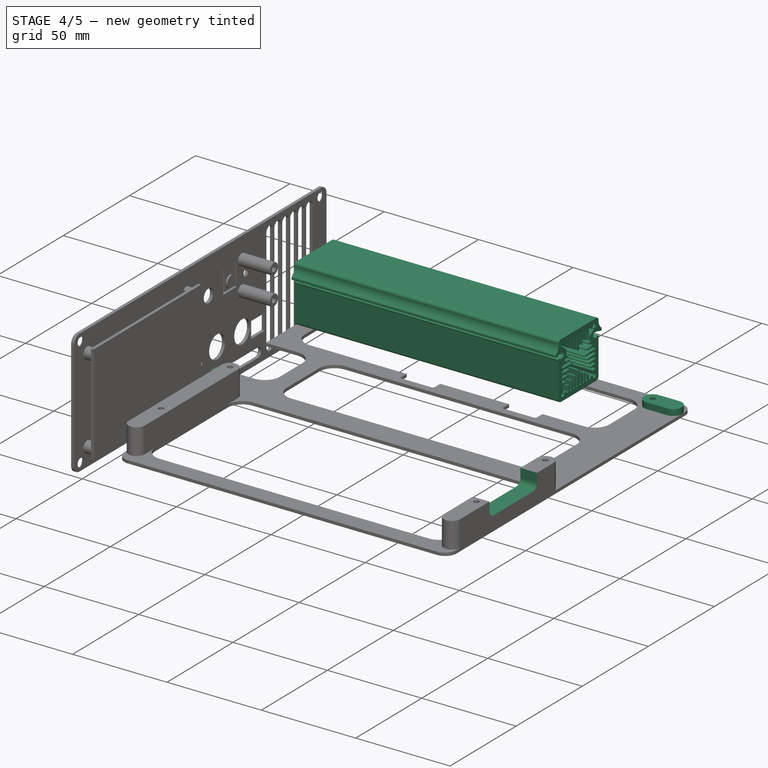
[diagram: stage 4 of 5 — iso view after this stage's code; geometry added in this stage tinted green]
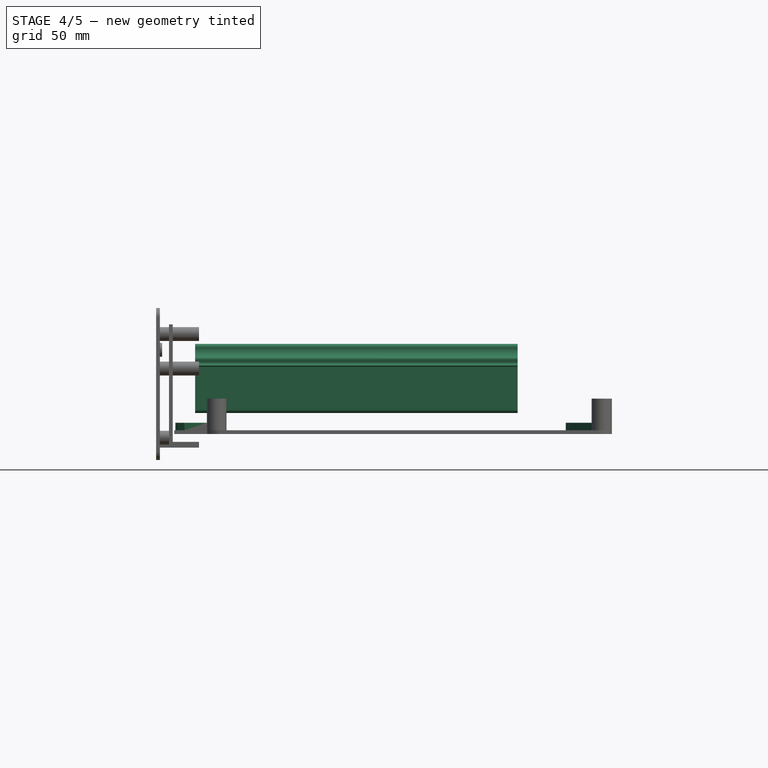
[diagram: stage 4 of 5 — front view after this stage's code; geometry added in this stage tinted green]
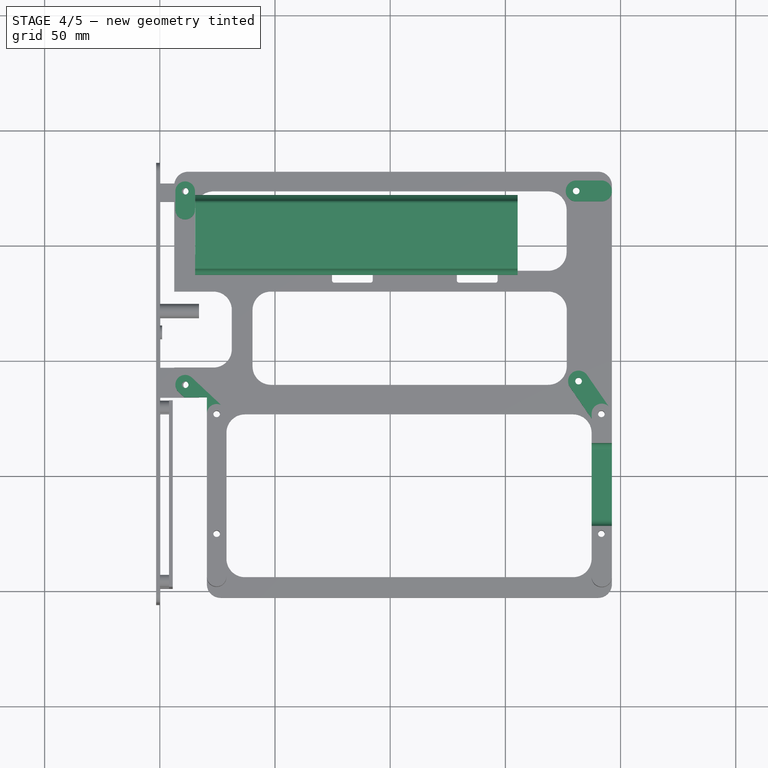
[diagram: stage 4 of 5 — top view after this stage's code; geometry added in this stage tinted green]
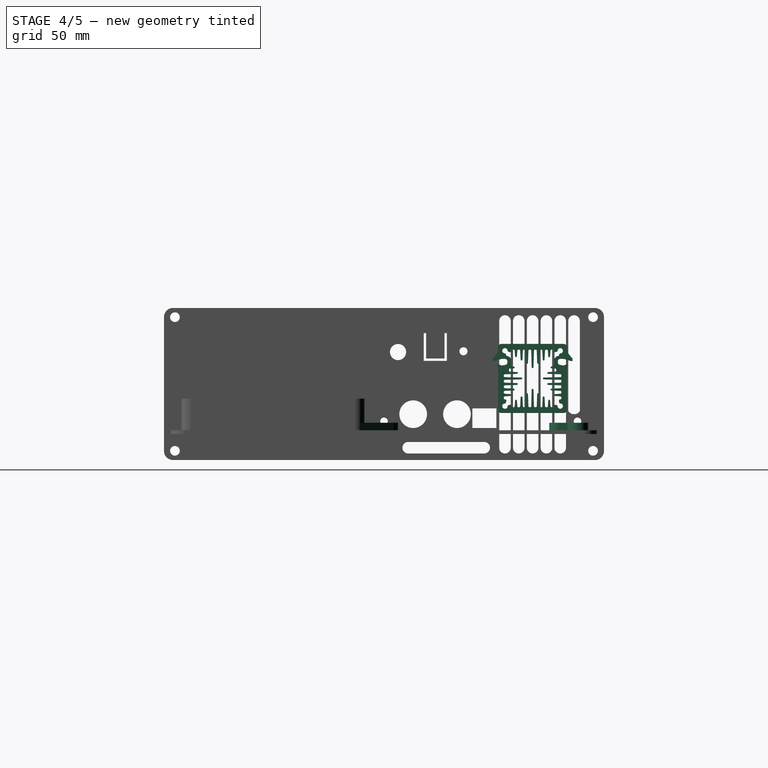
[diagram: stage 4 of 5 — right view after this stage's code; geometry added in this stage tinted green]
FEATURE [App::Link] C5_C_0805_2012Metric_dc37d78c0e7e_ln_  label="C2_C_0805_2012Metric_83a90d12aea5"
  LinkPlacement = pos=(186.4,-72.5,-1.6) rot=(0.707107,-0.707107,0;3.14159rad)
  LinkedObject = -> Shape003
  Placement = pos=(186.4,-72.5,-1.6) rot=(0.707107,-0.707107,0;3.14159rad)
FEATURE [App::Link] C5_C_0805_2012Metric_dc37d78c0e7e_ln_001  label="C1_C_0805_2012Metric_7f214d5325a3"
  LinkPlacement = pos=(166.7,-76.4,-1.6) rot=(0.707107,0.707107,0;3.14159rad)
  LinkedObject = -> Shape003
  Placement = pos=(166.7,-76.4,-1.6) rot=(0.707107,0.707107,0;3.14159rad)
FEATURE [App::Link] C5_C_0805_2012Metric_dc37d78c0e7e_ln_002  label="C4_C_0805_2012Metric_61f9bc760d65"
  LinkPlacement = pos=(145.65,-84,-1.6) rot=(0.707107,0.707107,0;3.14159rad)
  LinkedObject = -> Shape003
  Placement = pos=(145.65,-84,-1.6) rot=(0.707107,0.707107,0;3.14159rad)
FEATURE [App::Link] C5_C_0805_2012Metric_dc37d78c0e7e_ln_003  label="C3_C_0805_2012Metric_59e6fa2387b6"
  LinkPlacement = pos=(165.05,-84.6,-1.6) rot=(1,0,0;3.14159rad)
  LinkedObject = -> Shape003
  Placement = pos=(165.05,-84.6,-1.6) rot=(1,0,0;3.14159rad)
FEATURE [App::Link] C5_C_0805_2012Metric_dc37d78c0e7e_ln_004  label="C7_C_0805_2012Metric_3fd35ebc905f"
  LinkPlacement = pos=(145.85,-71.3,-1.6) rot=(0.707107,0.707107,0;3.14159rad)
  LinkedObject = -> Shape003
  Placement = pos=(145.85,-71.3,-1.6) rot=(0.707107,0.707107,0;3.14159rad)
FEATURE [PartDesign::CoordinateSystem] Local_CS_85fa
  AttacherType = Attacher::AttachEngine3D
  MapMode = 2
  Support = -> [X_Axis001]
FEATURE [Sketcher::SketchObject] PCB_Sketch_85fa
  FullyConstrained = false
  sketch-geometry (12):
    g0: LineSegment StartX=170.1 StartY=-110.2 StartZ=0 EndX=236.1 EndY=-110.2 EndZ=0
    g1: LineSegment StartX=122.1 StartY=-69.2 StartZ=0 EndX=122.101 EndY=-84.2 EndZ=0
    g2: LineSegment StartX=126.1 StartY=-65.2 StartZ=0 EndX=236.1 EndY=-65.2 EndZ=0
    g3: LineSegment StartX=126.1 StartY=-88.1986 StartZ=0 EndX=162.101 EndY=-88.2014 EndZ=0
    g4: LineSegment StartX=166.1 StartY=-106.2 StartZ=0 EndX=166.1 EndY=-92.2 EndZ=0
    g5: LineSegment StartX=240.1 StartY=-69.2 StartZ=0 EndX=240.1 EndY=-106.2 EndZ=0
    g6: ArcOfCircle CenterX=236.1 CenterY=-69.2 CenterZ=0 NormalX=0 NormalY=0 NormalZ=-1 AngleXU=1.5708 Radius=4 StartAngle=0 EndAngle=1.5708
    g7: ArcOfCircle CenterX=170.1 CenterY=-106.2 CenterZ=0 NormalX=0 NormalY=0 NormalZ=-1 AngleXU=-1.5708 Radius=4 StartAngle=0 EndAngle=1.5708
    g8: ArcOfCircle CenterX=162.101 CenterY=-92.2 CenterZ=0 NormalX=0 NormalY=0 NormalZ=-1 AngleXU=1.5708 Radius=3.99862 StartAngle=0 EndAngle=1.5708
    g9: ArcOfCircle CenterX=126.1 CenterY=-69.2 CenterZ=0 NormalX=0 NormalY=0 NormalZ=-1 AngleXU=1.06478e-07 Radius=4 StartAngle=0 EndAngle=1.5708
    g10: ArcOfCircle CenterX=126.1 CenterY=-84.2 CenterZ=0 NormalX=0 NormalY=0 NormalZ=-1 AngleXU=-1.5708 Radius=3.99862 StartAngle=0 EndAngle=1.5708
    g11: ArcOfCircle CenterX=236.1 CenterY=-106.2 CenterZ=0 NormalX=0 NormalY=0 NormalZ=-1 AngleXU=-3.14159 Radius=4 StartAngle=0 EndAngle=1.5708
  constraints (12):
    c: Coincident(g1,g10)
    c: Coincident(g1,g9)
    c: Coincident(g3,g10)
    c: Coincident(g2,g9)
    c: Coincident(g3,g8)
    c: Coincident(g4,g7)
    c: Coincident(g4,g8)
    c: Coincident(g0,g7)
    c: Coincident(g0,g11)
    c: Coincident(g2,g6)
    c: Coincident(g5,g11)
    c: Coincident(g5,g6)
FEATURE [Part::Feature] Part__Feature  label="EC11_Rotary_Encoder_Switched"
  shape: bbox 1.5 x 1.93 x 7.07 mm, 34 faces (baked)
FEATURE [Part::Feature] Part__Feature001  label="EC11_Rotary_Encoder_Switched001"
  shape: bbox 1.5 x 1.93 x 7.07 mm, 34 faces (baked)
FEATURE [Part::Feature] Part__Feature002  label="EC11_Rotary_Encoder_Switched002"
  shape: bbox 1.5 x 1.93 x 7.07 mm, 34 faces (baked)
FEATURE [Part::Feature] Part__Feature003  label="EC11_Rotary_Encoder_Switched003"
  shape: bbox 1.5 x 1.93 x 7.07 mm, 34 faces (baked)
FEATURE [Part::Feature] Part__Feature004  label="EC11_Rotary_Encoder_Switched004"
  shape: bbox 1.5 x 1.93 x 7.07 mm, 34 faces (baked)
FEATURE [Part::Feature] Part__Feature005  label="EC11_Rotary_Encoder_Switched005"
  shape: bbox 13.1 x 12 x 9.87 mm, 116 faces (baked)
FEATURE [Part::Feature] Part__Feature006  label="EC11_Rotary_Encoder_Switched006"
  shape: bbox 11.8 x 12 x 1.6 mm, 18 faces (baked)
FEATURE [Part::Feature] Part__Feature007  label="EC11_Rotary_Encoder_Switched007"
  shape: bbox 11.8 x 12 x 3.4 mm, 82 faces (baked)
FEATURE [Part::Feature] Part__Feature008  label="EC11_Rotary_Encoder_Switched008"
  shape: bbox 11.8 x 12.5 x 8.743 mm, 73 faces (baked)
FEATURE [Part::Feature] Part__Feature009  label="EC11_Rotary_Encoder_Switched009"
  shape: bbox 5.658 x 5.782 x 13.3 mm, 102 faces (baked)
FEATURE [App::Part] EC11_Rotary_Encoder_Switched  label="ENC1_EC11_Rotary_Encoder_Switched010_dff9b8aaf94f[2]"
  Group = -> [Part__Feature,Part__Feature001,Part__Feature002,Part__Feature003,Part__Feature004,Part__Feature005,Part__Feature006,Part__Feature007,Part__Feature008,Part__Feature009]
  Origin = -> Origin008
  Placement = pos=(153.4,-77,0) rot=(0,0,-1;1.5708rad)
FEATURE [Part::Feature] Pcb_85fa
  shape: bbox 118 x 45 x 1.6 mm, 70 faces (baked)
FEATURE [App::Part] Board_Geoms_85fa
  Group = -> [Pcb_85fa,PCB_Sketch_85fa]
  Origin = -> Origin
FEATURE [App::Link] R13_R_0805_2012Metric_5b6da7abc100_ln_  label="R12_R_0805_2012Metric_ea710e860d27"
  LinkPlacement = pos=(149.1,-76.9875,-1.6) rot=(0.707107,0.707107,0;3.14159rad)
  LinkedObject = -> Shape002
  Placement = pos=(149.1,-76.9875,-1.6) rot=(0.707107,0.707107,0;3.14159rad)
FEATURE [App::Link] R13_R_0805_2012Metric_5b6da7abc100_ln_001  label="R6_R_0805_2012Metric_64955dbcc53a"
  LinkPlacement = pos=(149.1,-83.9875,-1.6) rot=(0.707107,0.707107,0;3.14159rad)
  LinkedObject = -> Shape002
  Placement = pos=(149.1,-83.9875,-1.6) rot=(0.707107,0.707107,0;3.14159rad)
FEATURE [App::Link] R13_R_0805_2012Metric_5b6da7abc100_ln_002  label="R5_R_0805_2012Metric_08355fbe83b5"
  LinkPlacement = pos=(161.35,-84.2,-1.6) rot=(0,1,0;3.14159rad)
  LinkedObject = -> Shape002
  Placement = pos=(161.35,-84.2,-1.6) rot=(0,1,0;3.14159rad)
FEATURE [App::Link] R13_R_0805_2012Metric_5b6da7abc100_ln_003  label="R10_R_0805_2012Metric_d85e806fa757"
  LinkPlacement = pos=(136.9,-73.3125,-1.6) rot=(0.707107,-0.707107,0;3.14159rad)
  LinkedObject = -> Shape002
  Placement = pos=(136.9,-73.3125,-1.6) rot=(0.707107,-0.707107,0;3.14159rad)
FEATURE [App::Link] R13_R_0805_2012Metric_5b6da7abc100_ln_004  label="R2_R_0805_2012Metric_a72552903f90"
  LinkPlacement = pos=(210.287,-71.2,-1.6) rot=(0,1,0;3.14159rad)
  LinkedObject = -> Shape002
  Placement = pos=(210.287,-71.2,-1.6) rot=(0,1,0;3.14159rad)
FEATURE [App::Link] R13_R_0805_2012Metric_5b6da7abc100_ln_005  label="R18_R_0805_2012Metric_25f6bbecb288"
  LinkPlacement = pos=(129.9,-76.7,-1.6) rot=(0,1,0;3.14159rad)
  LinkedObject = -> Shape002
  Placement = pos=(129.9,-76.7,-1.6) rot=(0,1,0;3.14159rad)
FEATURE [App::Link] R13_R_0805_2012Metric_5b6da7abc100_ln_006  label="R7_R_0805_2012Metric_691f852aec81"
  LinkPlacement = pos=(136.9,-76.9,-1.6) rot=(0.707107,0.707107,0;3.14159rad)
  LinkedObject = -> Shape002
  Placement = pos=(136.9,-76.9,-1.6) rot=(0.707107,0.707107,0;3.14159rad)
FEATURE [App::Link] R13_R_0805_2012Metric_5b6da7abc100_ln_007  label="R4_R_0805_2012Metric_bccac18c3cb5"
  LinkPlacement = pos=(161.35,-82.1,-1.6) rot=(0,1,0;3.14159rad)
  LinkedObject = -> Shape002
  Placement = pos=(161.35,-82.1,-1.6) rot=(0,1,0;3.14159rad)
FEATURE [App::Link] R13_R_0805_2012Metric_5b6da7abc100_ln_008  label="R8_R_0805_2012Metric_f9269aa7d845"
  LinkPlacement = pos=(149.1,-80.4875,-1.6) rot=(0.707107,-0.707107,0;3.14159rad)
  LinkedObject = -> Shape002
  Placement = pos=(149.1,-80.4875,-1.6) rot=(0.707107,-0.707107,0;3.14159rad)
FEATURE [App::Link] R13_R_0805_2012Metric_5b6da7abc100_ln_009  label="R3_R_0805_2012Metric_9573904aba2f"
  LinkPlacement = pos=(210.488,-82.1,-1.6) rot=(0,1,0;3.14159rad)
  LinkedObject = -> Shape002
  Placement = pos=(210.488,-82.1,-1.6) rot=(0,1,0;3.14159rad)
FEATURE [App::Link] R13_R_0805_2012Metric_5b6da7abc100_ln_010  label="R1_R_0805_2012Metric_a6e6cdb9ead7"
  LinkPlacement = pos=(210.287,-68.5,-1.6) rot=(0,1,0;3.14159rad)
  LinkedObject = -> Shape002
  Placement = pos=(210.287,-68.5,-1.6) rot=(0,1,0;3.14159rad)
FEATURE [Part::Feature] Shape  label="D1_LED_D3.0mm_e0fd27398e71"
  Placement = pos=(123.725,-76.7,0) rot=(0,0,1;0rad)
  shape: bbox 3.4 x 3.8 x 10.8 mm, 16 faces (baked)
FEATURE [Part::Feature] Shape001  label="J1_PinSocket_1x11_P254mm_Vertical_aa5addac6e48"
  Placement = pos=(170.125,-75.025,0) rot=(0,0,1;0rad)
  shape: bbox 2.54 x 27.94 x 10.1 mm, 351 faces (baked)
FEATURE [Part::Feature] Shape002  label="R13_R_0805_2012Metric_5b6da7abc100"
  Placement = pos=(149.1,-73.4875,-1.6) rot=(0.707107,-0.707107,0;3.14159rad)
  shape: bbox 1.2 x 2 x 0.45 mm, 26 faces (baked)
FEATURE [Part::Feature] Shape003  label="C5_C_0805_2012Metric_dc37d78c0e7e"
  Placement = pos=(136.9,-80.4125,-1.6) rot=(0.707107,-0.707107,0;3.14159rad)
  shape: bbox 1.25 x 2 x 1.25 mm, 28 faces (baked)
FEATURE [Part::Feature] Shape004  label="J2_IDC_Header_2x08_P254mm_Vertical_7d590179e4ec"
  Placement = pos=(195.28,-89.8,-1.6) rot=(0.707107,-0.707107,0;3.14159rad)
  shape: bbox 27.98 x 9.1 x 12.1 mm, 330 faces (baked)
FEATURE [Part::Feature] Shape005  label="U1_SOIC_18W_75x116mm_P127mm_06d87b56a7a8"
  Placement = pos=(193.6,-76.6,-1.6) rot=(0,1,0;3.14159rad)
  shape: bbox 10.3 x 11.55 x 2.75 mm, 306 faces (baked)
FEATURE [App::Part] Bot_85fa
  Group = -> [Shape002,Shape003,R13_R_0805_2012Metric_5b6da7abc100_ln_,R13_R_0805_2012Metric_5b6da7abc100_ln_001,R13_R_0805_2012Metric_5b6da7abc100_ln_002,R13_R_0805_2012Metric_5b6da7abc100_ln_003,R13_R_0805_2012Metric_5b6da7abc100_ln_004,R13_R_0805_2012Metric_5b6da7abc100_ln_005,C5_C_0805_2012Metric_dc37d78c0e7e_ln_,R13_R_0805_2012Metric_5b6da7abc100_ln_006,R13_R_0805_2012Metric_5b6da7abc100_ln_007,+9 more]
  Origin = -> Origin004
FEATURE [App::Part] Top_85fa
  Group = -> [Shape,Shape001,EC11_Rotary_Encoder_Switched]
  Origin = -> Origin003
FEATURE [App::Part] Step_Models_85fa
  Group = -> [Top_85fa,Bot_85fa]
  Origin = -> Origin002
FEATURE [App::Part] Board_85fa  label="EL-Load-Panel"
  Group = -> [Local_CS_85fa,Board_Geoms_85fa,Step_Models_85fa]
  Origin = -> Origin001
  Placement = pos=(11.5,245,113.5) rot=(-0.57735,0.57735,0.57735;4.18879rad)
FEATURE [App::Link] C22_C_0805_2012Metric_c419cd9c4a2f_ln_  label="C11_C_0805_2012Metric_a49b18341ced"
  LinkPlacement = pos=(30.4,11.2,0) rot=(0,0,1;0rad)
  LinkedObject = -> Shape088
  Placement = pos=(30.4,11.2,0) rot=(0,0,1;0rad)
FEATURE [App::Link] C22_C_0805_2012Metric_c419cd9c4a2f_ln_001  label="C26_C_0805_2012Metric_9980a3fec6f0"
  LinkPlacement = pos=(17.9,47.79,0) rot=(0,0,1;1.5708rad)
  LinkedObject = -> Shape088
  Placement = pos=(17.9,47.79,0) rot=(0,0,1;1.5708rad)
FEATURE [App::Link] C22_C_0805_2012Metric_c419cd9c4a2f_ln_002  label="C3_C_0805_2012Metric_15e1a894cb01"
  LinkPlacement = pos=(48,32.7,0) rot=(0,0,1;3.14159rad)
  LinkedObject = -> Shape088
  Placement = pos=(48,32.7,0) rot=(0,0,1;3.14159rad)
FEATURE [App::Link] C22_C_0805_2012Metric_c419cd9c4a2f_ln_003  label="C18_C_0805_2012Metric_e794a3d39e80"
  LinkPlacement = pos=(27.6,47.69,0) rot=(0,0,-1;1.5708rad)
  LinkedObject = -> Shape088
  Placement = pos=(27.6,47.69,0) rot=(0,0,-1;1.5708rad)
FEATURE [App::Link] C22_C_0805_2012Metric_c419cd9c4a2f_ln_004  label="C24_C_0805_2012Metric_f01b138523b2"
  LinkPlacement = pos=(77.05,43.95,0) rot=(0,0,-1;1.5708rad)
  LinkedObject = -> Shape088
  Placement = pos=(77.05,43.95,0) rot=(0,0,-1;1.5708rad)
FEATURE [App::Link] C22_C_0805_2012Metric_c419cd9c4a2f_ln_005  label="C9_C_0805_2012Metric_e36e869397a0"
  LinkPlacement = pos=(113.565,44.65,0) rot=(0,0,-1;1.5708rad)
  LinkedObject = -> Shape088
  Placement = pos=(113.565,44.65,0) rot=(0,0,-1;1.5708rad)
FEATURE [App::Link] C22_C_0805_2012Metric_c419cd9c4a2f_ln_006  label="C5_C_0805_2012Metric_15d6734f493a"
  LinkPlacement = pos=(80.8,23.3,0) rot=(0,0,1;0rad)
  LinkedObject = -> Shape088
  Placement = pos=(80.8,23.3,0) rot=(0,0,1;0rad)
FEATURE [App::Link] C22_C_0805_2012Metric_c419cd9c4a2f_ln_007  label="C23_C_0805_2012Metric_11de36914b62"
  LinkPlacement = pos=(76.35,49.3,0) rot=(0,0,1;0rad)
  LinkedObject = -> Shape088
  Placement = pos=(76.35,49.3,0) rot=(0,0,1;0rad)
FEATURE [App::Link] C22_C_0805_2012Metric_c419cd9c4a2f_ln_008  label="C12_C_0805_2012Metric_732eebdf556d"
  LinkPlacement = pos=(10.8,16.7,0) rot=(0,0,1;0rad)
  LinkedObject = -> Shape088
  Placement = pos=(10.8,16.7,0) rot=(0,0,1;0rad)
FEATURE [App::Link] C22_C_0805_2012Metric_c419cd9c4a2f_ln_009  label="C10_C_0805_2012Metric_be4c2624d97d"
  LinkPlacement = pos=(5.70002,25.2,0) rot=(0,0,1;1.5708rad)
  LinkedObject = -> Shape088
  Placement = pos=(5.70002,25.2,0) rot=(0,0,1;1.5708rad)
FEATURE [App::Link] C22_C_0805_2012Metric_c419cd9c4a2f_ln_010  label="C15_C_0805_2012Metric_1e921fb38b4c"
  LinkPlacement = pos=(14.4,24.2,0) rot=(0,0,1;0rad)
  LinkedObject = -> Shape088
  Placement = pos=(14.4,24.2,0) rot=(0,0,1;0rad)
FEATURE [App::Link] C22_C_0805_2012Metric_c419cd9c4a2f_ln_011  label="C2_C_0805_2012Metric_e26014cc501c"
  LinkPlacement = pos=(47.9,27.7,0) rot=(0,0,1;3.14159rad)
  LinkedObject = -> Shape088
  Placement = pos=(47.9,27.7,0) rot=(0,0,1;3.14159rad)
FEATURE [App::Link] C22_C_0805_2012Metric_c419cd9c4a2f_ln_012  label="C21_C_0805_2012Metric_054ffed93a8c"
  LinkPlacement = pos=(23.13,27.3,0) rot=(0,0,1;0rad)
  LinkedObject = -> Shape088
  Placement = pos=(23.13,27.3,0) rot=(0,0,1;0rad)
FEATURE [App::Link] C22_C_0805_2012Metric_c419cd9c4a2f_ln_013  label="C8_C_0805_2012Metric_242075c039d0"
  LinkPlacement = pos=(21.6,19.6,0) rot=(0,0,1;1.5708rad)
  LinkedObject = -> Shape088
  Placement = pos=(21.6,19.6,0) rot=(0,0,1;1.5708rad)
FEATURE [App::Link] C22_C_0805_2012Metric_c419cd9c4a2f_ln_014  label="C20_C_0805_2012Metric_a8166e63492a"
  LinkPlacement = pos=(63.7,49.1,0) rot=(0,0,1;0rad)
  LinkedObject = -> Shape088
  Placement = pos=(63.7,49.1,0) rot=(0,0,1;0rad)
FEATURE [App::Link] C22_C_0805_2012Metric_c419cd9c4a2f_ln_015  label="C16_C_0805_2012Metric_4b5c9fa2ab9d"
  LinkPlacement = pos=(33.7,12.7,0) rot=(0,0,1;1.5708rad)
  LinkedObject = -> Shape088
  Placement = pos=(33.7,12.7,0) rot=(0,0,1;1.5708rad)
FEATURE [App::Link] C22_C_0805_2012Metric_c419cd9c4a2f_ln_016  label="C17_C_0805_2012Metric_9c817947d75a"
  LinkPlacement = pos=(39.2,12.7285,0) rot=(0,0,1;1.5708rad)
  LinkedObject = -> Shape088
  Placement = pos=(39.2,12.7285,0) rot=(0,0,1;1.5708rad)
FEATURE [App::Link] C6_CP_Elec_63x58_0ee41fe4bfd3_ln_  label="C1_CP_Elec_63x58_5659c7eb80dd"
  LinkPlacement = pos=(58.3,19.8,0) rot=(0,0,1;0rad)
  LinkedObject = -> Shape087
  Placement = pos=(58.3,19.8,0) rot=(0,0,1;0rad)
FEATURE [App::Link] C6_CP_Elec_63x58_0ee41fe4bfd3_ln_001  label="C13_CP_Elec_63x58_4c4f2b69c62b"
  LinkPlacement = pos=(49.7,17.4,0) rot=(0,0,1;3.14159rad)
  LinkedObject = -> Shape087
  Placement = pos=(49.7,17.4,0) rot=(0,0,1;3.14159rad)
FEATURE [App::Link] C6_CP_Elec_63x58_0ee41fe4bfd3_ln_002  label="C30_CP_Elec_63x58_f829d7b62f1d"
  LinkPlacement = pos=(53.4,10,0) rot=(0,0,1;3.14159rad)
  LinkedObject = -> Shape087
  Placement = pos=(53.4,10,0) rot=(0,0,1;3.14159rad)
FEATURE [App::Link] C6_CP_Elec_63x58_0ee41fe4bfd3_ln_003  label="C19_CP_Elec_63x58_eae7f9406b11"
  LinkPlacement = pos=(22.83,36.2,0) rot=(0,0,1;3.14159rad)
  LinkedObject = -> Shape087
  Placement = pos=(22.83,36.2,0) rot=(0,0,1;3.14159rad)
FEATURE [App::Link] C6_CP_Elec_63x58_0ee41fe4bfd3_ln_004  label="C14_CP_Elec_63x58_56145b951646"
  LinkPlacement = pos=(31.7,1.80002,0) rot=(0,0,1;1.5708rad)
  LinkedObject = -> Shape087
  Placement = pos=(31.7,1.80002,0) rot=(0,0,1;1.5708rad)
FEATURE [App::Link] C6_CP_Elec_63x58_0ee41fe4bfd3_ln_005  label="C4_CP_Elec_63x58_b0d551f2ee6d"
  LinkPlacement = pos=(46.2,43,0) rot=(0,0,1;3.14159rad)
  LinkedObject = -> Shape087
  Placement = pos=(46.2,43,0) rot=(0,0,1;3.14159rad)
FEATURE [App::Link] C6_CP_Elec_63x58_0ee41fe4bfd3_ln_006  label="C7_CP_Elec_63x58_6e01dcfa2037"
  LinkPlacement = pos=(57.7,41.2,0) rot=(0,0,1;0rad)
  LinkedObject = -> Shape087
  Placement = pos=(57.7,41.2,0) rot=(0,0,1;0rad)
FEATURE [App::Link] D11_D_SMA_1bb42aa92948_ln_  label="D10_D_SMA_c2646ced11f3"
  LinkPlacement = pos=(8.70002,-1.19998,0) rot=(0,0,1;3.14159rad)
  LinkedObject = -> Shape018
  Placement = pos=(8.70002,-1.19998,0) rot=(0,0,1;3.14159rad)
FEATURE [App::Link] D11_D_SMA_1bb42aa92948_ln_001  label="D5_D_SMA_dbb58a46da9a"
  LinkPlacement = pos=(1.80002,10.7285,0) rot=(0,0,-1;1.5708rad)
  LinkedObject = -> Shape018
  Placement = pos=(1.80002,10.7285,0) rot=(0,0,-1;1.5708rad)
FEATURE [App::Link] D15_D_MiniMELF_Standard_ca1fadf4eb28_ln_  label="D16_D_MiniMELF_Standard_49aaf989b642"
  LinkPlacement = pos=(64.4,23.5,0) rot=(0,0,-1;1.5708rad)
  LinkedObject = -> Shape014
  Placement = pos=(64.4,23.5,0) rot=(0,0,-1;1.5708rad)
FEATURE [App::Link] D15_D_MiniMELF_Standard_ca1fadf4eb28_ln_001  label="D14_D_MiniMELF_Standard_869c8d3e9313"
  LinkPlacement = pos=(45,7.60002,0) rot=(0,0,1;0rad)
  LinkedObject = -> Shape014
  Placement = pos=(45,7.60002,0) rot=(0,0,1;0rad)
FEATURE [App::Link] D1_D_SOD_123_5a20a041a245_ln_  label="D2_D_SOD_123_9f952dc980be"
  LinkPlacement = pos=(48.7,38,0) rot=(0,0,1;3.14159rad)
  LinkedObject = -> Shape089
  Placement = pos=(48.7,38,0) rot=(0,0,1;3.14159rad)
FEATURE [App::Link] D1_D_SOD_123_5a20a041a245_ln_001  label="D4_D_SOD_123_a08d4832a5ee"
  LinkPlacement = pos=(52.3,27.7,0) rot=(0,0,1;3.14159rad)
  LinkedObject = -> Shape089
  Placement = pos=(52.3,27.7,0) rot=(0,0,1;3.14159rad)
FEATURE [App::Link] D1_D_SOD_123_5a20a041a245_ln_002  label="D3_D_SOD_123_c8b4b2da39fe"
  LinkPlacement = pos=(48.6,30.2,0) rot=(0,0,1;3.14159rad)
  LinkedObject = -> Shape089
  Placement = pos=(48.6,30.2,0) rot=(0,0,1;3.14159rad)
FEATURE [App::Link] D1_D_SOD_123_5a20a041a245_ln_003  label="D8_D_SOD_123_5a5f85ca8e2f"
  LinkPlacement = pos=(48.7,35.4,0) rot=(0,0,1;3.14159rad)
  LinkedObject = -> Shape089
  Placement = pos=(48.7,35.4,0) rot=(0,0,1;3.14159rad)
FEATURE [App::Link] D1_D_SOD_123_5a20a041a245_ln_004  label="D9_D_SOD_123_161a8bc13196"
  LinkPlacement = pos=(52.25,32.7,0) rot=(0,0,1;0rad)
  LinkedObject = -> Shape089
  Placement = pos=(52.25,32.7,0) rot=(0,0,1;0rad)
FEATURE [App::Link] D1_D_SOD_123_5a20a041a245_ln_005  label="D7_D_SOD_123_81fc6af181e9"
  LinkPlacement = pos=(48.6,25.1,0) rot=(0,0,1;3.14159rad)
  LinkedObject = -> Shape089
  Placement = pos=(48.6,25.1,0) rot=(0,0,1;3.14159rad)
FEATURE [App::Link] D6_LED_0805_2012Metric_630bc1ac9416_ln_  label="D13_LED_0805_2012Metric_31b94944d83b"
  LinkPlacement = pos=(40.2,3.4,0) rot=(0,0,1;3.14159rad)
  LinkedObject = -> Shape010
  Placement = pos=(40.2,3.4,0) rot=(0,0,1;3.14159rad)
FEATURE [App::Link] D6_LED_0805_2012Metric_630bc1ac9416_ln_001  label="D12_LED_0805_2012Metric_8e83bb0bb170"
  LinkPlacement = pos=(50.5,49.8,0) rot=(0,0,1;0rad)
  LinkedObject = -> Shape010
  Placement = pos=(50.5,49.8,0) rot=(0,0,1;0rad)
FEATURE [App::Link] JP8_PinHeader_1x02_P254mm_Vertical_ed570ec3ee34_ln_  label="J5_PinHeader_1x02_P254mm_Vertical_3b80083b2130"
  LinkPlacement = pos=(20.1,10,0) rot=(0,0,-1;1.5708rad)
  LinkedObject = -> Shape009
  Placement = pos=(20.1,10,0) rot=(0,0,-1;1.5708rad)
FEATURE [App::Link] JP8_PinHeader_1x02_P254mm_Vertical_ed570ec3ee34_ln_001  label="J6_PinHeader_1x02_P254mm_Vertical_92a677824943"
  LinkPlacement = pos=(3.30002,19.9285,0) rot=(0,0,-1;1.5708rad)
  LinkedObject = -> Shape009
  Placement = pos=(3.30002,19.9285,0) rot=(0,0,-1;1.5708rad)
FEATURE [App::Link] JP8_PinHeader_1x02_P254mm_Vertical_ed570ec3ee34_ln_002  label="JP5_PinHeader_1x02_P254mm_Vertical_806d60fd696a"
  LinkPlacement = pos=(67.7,25.2,0) rot=(0,0,1;0rad)
  LinkedObject = -> Shape009
  Placement = pos=(67.7,25.2,0) rot=(0,0,1;0rad)
FEATURE [App::Link] JP8_PinHeader_1x02_P254mm_Vertical_ed570ec3ee34_ln_003  label="JP6_PinHeader_1x02_P254mm_Vertical_0c23ef1a54e6"
  LinkPlacement = pos=(47.5,4.3,0) rot=(0,0,1;1.5708rad)
  LinkedObject = -> Shape009
  Placement = pos=(47.5,4.3,0) rot=(0,0,1;1.5708rad)
FEATURE [App::Link] JP8_PinHeader_1x02_P254mm_Vertical_ed570ec3ee34_ln_004  label="JP4_PinHeader_1x02_P254mm_Vertical_b2b0b4eb230f"
  LinkPlacement = pos=(55.95,49.725,0) rot=(0,0,1;1.5708rad)
  LinkedObject = -> Shape009
  Placement = pos=(55.95,49.725,0) rot=(0,0,1;1.5708rad)
FEATURE [App::Link] L2_L_1210_3225Metric_8f5c69fc0355_ln_  label="L8_L_1210_3225Metric_c8d3be7f3657"
  LinkPlacement = pos=(60.6,25.3,0) rot=(0,0,1;3.14159rad)
  LinkedObject = -> Shape013
  Placement = pos=(60.6,25.3,0) rot=(0,0,1;3.14159rad)
FEATURE [App::Link] L2_L_1210_3225Metric_8f5c69fc0355_ln_001  label="L3_L_1210_3225Metric_d7bc27af3adb"
  LinkPlacement = pos=(46.8,11.3,0) rot=(0,0,1;1.5708rad)
  LinkedObject = -> Shape013
  Placement = pos=(46.8,11.3,0) rot=(0,0,1;1.5708rad)
FEATURE [PartDesign::CoordinateSystem] Local_CS_51fb
  AttacherType = Attacher::AttachEngine3D
  MapMode = 2
  Support = -> [X_Axis049]
FEATURE [App::Link] M2_Fan_Pin_Header_Straight_1x04_4971bfcbb112_ln_  label="M3_Fan_Pin_Header_Straight_1x04_d9628b9d4d16"
  LinkPlacement = pos=(5.92002,4.60002,0) rot=(0,0,1;0rad)
  LinkedObject = -> Shape093
  Placement = pos=(5.92002,4.60002,0) rot=(0,0,1;0rad)
FEATURE [App::Link] M2_Fan_Pin_Header_Straight_1x04_4971bfcbb112_ln_001  label="M1_Fan_Pin_Header_Straight_1x04_37f54f52d17d"
  LinkPlacement = pos=(18.48,4.50002,0) rot=(0,0,1;0rad)
  LinkedObject = -> Shape093
  Placement = pos=(18.48,4.50002,0) rot=(0,0,1;0rad)
FEATURE [Sketcher::SketchObject] PCB_Sketch_51fb
  FullyConstrained = false
  sketch-geometry (16):
    g0: LineSegment StartX=36.25 StartY=-13.5 StartZ=0 EndX=36.25 EndY=-7.99998 EndZ=0
    g1: LineSegment StartX=2e-05 StartY=-3.99998 StartZ=0 EndX=32.25 EndY=-3.99998 EndZ=0
    g2: LineSegment StartX=-3.99998 StartY=2.3e-05 StartZ=0 EndX=-3.99998 EndY=52 EndZ=0
    g3: LineSegment StartX=161 StartY=52 StartZ=0 EndX=161 EndY=2.3e-05 EndZ=0
    g4: LineSegment StartX=64 StartY=-3.99998 StartZ=0 EndX=157 EndY=-3.99998 EndZ=0
    g5: LineSegment StartX=60 StartY=-13.5 StartZ=0 EndX=60 EndY=-7.99998 EndZ=0
    g6: LineSegment StartX=39.25 StartY=-16.5 StartZ=0 EndX=57 EndY=-16.5 EndZ=0
    g7: LineSegment StartX=2e-05 StartY=56 StartZ=0 EndX=157 EndY=56 EndZ=0
    g8: ArcOfCircle CenterX=1.70117e-05 CenterY=52 CenterZ=0 NormalX=0 NormalY=0 NormalZ=-1 AngleXU=-7.47076e-07 Radius=4 StartAngle=0 EndAngle=1.5708
    g9: ArcOfCircle CenterX=57 CenterY=-13.5 CenterZ=0 NormalX=0 NormalY=0 NormalZ=-1 AngleXU=-3.14159 Radius=3 StartAngle=0 EndAngle=1.5708
    g10: ArcOfCircle CenterX=64 CenterY=-7.99995 CenterZ=0 NormalX=0 NormalY=0 NormalZ=-1 AngleXU=-5.86839e-06 Radius=3.99998 StartAngle=0 EndAngle=1.57081
    g11: ArcOfCircle CenterX=157 CenterY=6.78113e-05 CenterZ=0 NormalX=0 NormalY=0 NormalZ=-1 AngleXU=-3.14158 Radius=4.00004 StartAngle=0 EndAngle=1.57077
    g12: ArcOfCircle CenterX=39.25 CenterY=-13.5 CenterZ=0 NormalX=0 NormalY=0 NormalZ=-1 AngleXU=-1.5708 Radius=3 StartAngle=0 EndAngle=1.5708
    g13: ArcOfCircle CenterX=32.25 CenterY=-7.99995 CenterZ=0 NormalX=0 NormalY=0 NormalZ=-1 AngleXU=1.57079 Radius=3.99998 StartAngle=0 EndAngle=1.57081
    g14: ArcOfCircle CenterX=-5.92595e-08 CenterY=2.94074e-06 CenterZ=0 NormalX=0 NormalY=0 NormalZ=-1 AngleXU=-1.5708 Radius=3.99998 StartAngle=0 EndAngle=1.57081
    g15: ArcOfCircle CenterX=157 CenterY=52 CenterZ=0 NormalX=0 NormalY=0 NormalZ=-1 AngleXU=1.5708 Radius=4.00002 StartAngle=0 EndAngle=1.57079
  constraints (16):
    c: Coincident(g2,g14)
    c: Coincident(g2,g8)
    c: Coincident(g1,g14)
    c: Coincident(g7,g8)
    c: Coincident(g1,g13)
    c: Coincident(g0,g12)
    c: Coincident(g0,g13)
    c: Coincident(g6,g12)
    c: Coincident(g6,g9)
    c: Coincident(g5,g9)
    c: Coincident(g5,g10)
    c: Coincident(g4,g10)
    c: Coincident(g4,g11)
    c: Coincident(g7,g15)
    c: Coincident(g3,g11)
    c: Coincident(g3,g15)
FEATURE [Part::Feature] Part__Feature233  label="TestPoint_Loop_D2_54mm_Drill1_5mm_Beaded_cp"
  shape: bbox 3 x 3 x 3 mm, 4 faces (baked)
FEATURE [Part::Feature] Part__Feature234  label="TestPoint_Loop_D2_54mm_Drill1_5mm_Beaded_cp001"
  shape: bbox 3.415 x 0.9501 x 9.255 mm, 7 faces (baked)
FEATURE [Part::Feature] Part__Feature235  label="SC0915"
  shape: bbox 3.8 x 1 x 3.8 mm, 6 faces (baked)
FEATURE [Part::Feature] Part__Feature236  label="SC0916"
  shape: bbox 3.8 x 1 x 3.8 mm, 6 faces (baked)
FEATURE [Part::Feature] Part__Feature237  label="SC0917"
  shape: bbox 3.8 x 1 x 3.8 mm, 6 faces (baked)
FEATURE [Part::Feature] Part__Feature238  label="SC0918"
  shape: bbox 3.8 x 1 x 3.8 mm, 6 faces (baked)
FEATURE [Part::Feature] Part__Feature239  label="SC0919"
  shape: bbox 2.41 x 1 x 1.6 mm, 10 faces (baked)
FEATURE [Part::Feature] Part__Feature240  label="SC0920"
  shape: bbox 2.41 x 1 x 1.6 mm, 10 faces (baked)
FEATURE [Part::Feature] Part__Feature241  label="SC0921"
  shape: bbox 2.41 x 1 x 1.6 mm, 10 faces (baked)
FEATURE [Part::Feature] Part__Feature242  label="SC0922"
  shape: bbox 2.41 x 1 x 1.6 mm, 10 faces (baked)
FEATURE [Part::Feature] Part__Feature010  label="SC0923"
  shape: bbox 2.41 x 1 x 1.6 mm, 10 faces (baked)
FEATURE [Part::Feature] Part__Feature011  label="SC0924"
  shape: bbox 2.41 x 1 x 1.6 mm, 10 faces (baked)
FEATURE [Part::Feature] Part__Feature012  label="SC0925"
  shape: bbox 2.41 x 1 x 1.6 mm, 10 faces (baked)
FEATURE [Part::Feature] Part__Feature013  label="SC0926"
  shape: bbox 2.41 x 1 x 1.6 mm, 10 faces (baked)
FEATURE [Part::Feature] Part__Feature014  label="SC0927"
  shape: bbox 2.41 x 1 x 1.6 mm, 10 faces (baked)
FEATURE [Part::Feature] Part__Feature015  label="SC0928"
  shape: bbox 2.41 x 1 x 1.6 mm, 10 faces (baked)
FEATURE [Part::Feature] Part__Feature016  label="SC0929"
  shape: bbox 2.41 x 1 x 1.6 mm, 10 faces (baked)
FEATURE [Part::Feature] Part__Feature243  label="SC0930"
  shape: bbox 2.41 x 1 x 1.6 mm, 10 faces (baked)
FEATURE [Part::Feature] Part__Feature244  label="SC0931"
  shape: bbox 2.41 x 1 x 1.6 mm, 10 faces (baked)
FEATURE [Part::Feature] Part__Feature245  label="SC0932"
  shape: bbox 2.41 x 1 x 1.6 mm, 10 faces (baked)
FEATURE [Part::Feature] Part__Feature246  label="SC0933"
  shape: bbox 2.41 x 1 x 1.6 mm, 10 faces (baked)
FEATURE [Part::Feature] Part__Feature247  label="SC0934"
  shape: bbox 2.41 x 1 x 1.6 mm, 10 faces (baked)
FEATURE [Part::Feature] Part__Feature248  label="SC0935"
  shape: bbox 2.41 x 1 x 1.6 mm, 12 faces (baked)
FEATURE [Part::Feature] Part__Feature249  label="SC0936"
  shape: bbox 2.41 x 1 x 1.6 mm, 12 faces (baked)
FEATURE [Part::Feature] Part__Feature250  label="SC0937"
  shape: bbox 2.41 x 1 x 1.6 mm, 12 faces (baked)
FEATURE [Part::Feature] Part__Feature251  label="SC0938"
  shape: bbox 2.41 x 1 x 1.6 mm, 12 faces (baked)
FEATURE [Part::Feature] Part__Feature252  label="SC0939"
  shape: bbox 2.41 x 1 x 1.6 mm, 12 faces (baked)
FEATURE [Part::Feature] Part__Feature253  label="SC0940"
  shape: bbox 2.41 x 1 x 1.6 mm, 12 faces (baked)
FEATURE [Part::Feature] Part__Feature254  label="SC0941"
  shape: bbox 2.41 x 1 x 1.6 mm, 12 faces (baked)
FEATURE [Part::Feature] Part__Feature255  label="SC0942"
  shape: bbox 2.41 x 1 x 1.6 mm, 12 faces (baked)
FEATURE [Part::Feature] Part__Feature256  label="SC0943"
  shape: bbox 2.41 x 1 x 1.6 mm, 10 faces (baked)
FEATURE [Part::Feature] Part__Feature031  label="SC0944"
  shape: bbox 2.41 x 1 x 1.6 mm, 10 faces (baked)
FEATURE [Part::Feature] Part__Feature032  label="SC0945"
  shape: bbox 2.41 x 1 x 1.6 mm, 10 faces (baked)
FEATURE [Part::Feature] Part__Feature033  label="SC0946"
  shape: bbox 2.41 x 1 x 1.6 mm, 10 faces (baked)
FEATURE [Part::Feature] Part__Feature034  label="SC0947"
  shape: bbox 2.41 x 1 x 1.6 mm, 10 faces (baked)
FEATURE [Part::Feature] Part__Feature035  label="SC0948"
  shape: bbox 2.41 x 1 x 1.6 mm, 10 faces (baked)
FEATURE [Part::Feature] Part__Feature036  label="SC0949"
  shape: bbox 2.41 x 1 x 1.6 mm, 10 faces (baked)
FEATURE [Part::Feature] Part__Feature037  label="SC0950"
  shape: bbox 2.41 x 1 x 1.6 mm, 10 faces (baked)
FEATURE [Part::Feature] Part__Feature038  label="SC0951"
  shape: bbox 2.41 x 1 x 1.6 mm, 10 faces (baked)
FEATURE [Part::Feature] Part__Feature039  label="SC0952"
  shape: bbox 2.41 x 1 x 1.6 mm, 10 faces (baked)
FEATURE [Part::Feature] Part__Feature040  label="SC0953"
  shape: bbox 2.41 x 1 x 1.6 mm, 10 faces (baked)
FEATURE [Part::Feature] Part__Feature041  label="SC0954"
  shape: bbox 2.41 x 1 x 1.6 mm, 10 faces (baked)
FEATURE [Part::Feature] Part__Feature042  label="SC0955"
  shape: bbox 2.41 x 1 x 1.6 mm, 10 faces (baked)
FEATURE [Part::Feature] Part__Feature043  label="SC0956"
  shape: bbox 2.41 x 1 x 1.6 mm, 10 faces (baked)
FEATURE [Part::Feature] Part__Feature044  label="SC0957"
  shape: bbox 2.41 x 1 x 1.6 mm, 10 faces (baked)
FEATURE [Part::Feature] Part__Feature045  label="SC0958"
  shape: bbox 2.41 x 1 x 1.6 mm, 10 faces (baked)
FEATURE [Part::Feature] Part__Feature046  label="SC0959"
  shape: bbox 1.6 x 1 x 2.41 mm, 12 faces (baked)
FEATURE [Part::Feature] Part__Feature047  label="SC0960"
  shape: bbox 1.6 x 1 x 2.41 mm, 12 faces (baked)
FEATURE [Part::Feature] Part__Feature048  label="SC0961"
  shape: bbox 1.6 x 1 x 2.41 mm, 13 faces (baked)
FEATURE [Part::Feature] Part__Feature049  label="SC0962"
  shape: bbox 3.35 x 0.9 x 4.2 mm, 6 faces (baked)
FEATURE [Part::Feature] Part__Feature050  label="SC0963"
  shape: bbox 2.2 x 0.9 x 2.8 mm, 6 faces (baked)
FEATURE [Part::Feature] Part__Feature051  label="SC0964"
  shape: bbox 7 x 0.9 x 7 mm, 6 faces (baked)
FEATURE [Part::Feature] Part__Feature052  label="SC0965"
  shape: bbox 2.1 x 0.9 x 3 mm, 6 faces (baked)
FEATURE [Part::Feature] Part__Feature053  label="SC0966"
  shape: bbox 3 x 0.9 x 2.2 mm, 6 faces (baked)
FEATURE [Part::Feature] Part__Feature054  label="SC0967"
  shape: bbox 2.4 x 0.9 x 2.4 mm, 6 faces (baked)
FEATURE [Part::Feature] Part__Feature055  label="SC0968"
  shape: bbox 2.25 x 1.1 x 3.4 mm, 13 faces (baked)
FEATURE [Part::Feature] Part__Feature056  label="SC0969"
  shape: bbox 0.35 x 0.1 x 0.5 mm, 6 faces (baked)
FEATURE [Part::Feature] Part__Feature057  label="SC0970"
  shape: bbox 1.75 x 0.1 x 0.9 mm, 6 faces (baked)
FEATURE [Part::Feature] Part__Feature058  label="SC0971"
  shape: bbox 1.2 x 0.1 x 0.505 mm, 6 faces (baked)
FEATURE [Part::Feature] Part__Feature059  label="SC0972"
  shape: bbox 1.2 x 0.1 x 0.505 mm, 6 faces (baked)
FEATURE [Part::Feature] Part__Feature060  label="SC0973"
  shape: bbox 0.35 x 0.1 x 0.5 mm, 6 faces (baked)
FEATURE [Part::Feature] Part__Feature061  label="SC0974"
  shape: bbox 0.35 x 0.1 x 0.5 mm, 6 faces (baked)
FEATURE [Part::Feature] Part__Feature062  label="SC0975"
  shape: bbox 1.2 x 1.25 x 1.2 mm, 6 faces (baked)
FEATURE [Part::Feature] Part__Feature063  label="SC0976"
  shape: bbox 2 x 1.25 x 1 mm, 6 faces (baked)
FEATURE [Part::Feature] Part__Feature064  label="SC0977"
  shape: bbox 1.2 x 1.25 x 1.2 mm, 6 faces (baked)
FEATURE [Part::Feature] Part__Feature065  label="SC0978"
  shape: bbox 0.4 x 1.25 x 1.2 mm, 6 faces (baked)
FEATURE [Part::Feature] Part__Feature066  label="SC0979"
  shape: bbox 2 x 1.25 x 0.7 mm, 6 faces (baked)
FEATURE [Part::Feature] Part__Feature067  label="SC0980"
  shape: bbox 0.4 x 1.25 x 1.2 mm, 6 faces (baked)
FEATURE [Part::Feature] Part__Feature068  label="SC0981"
  shape: bbox 0.4 x 1.25 x 1.2 mm, 6 faces (baked)
FEATURE [Part::Feature] Part__Feature069  label="SC0982"
  shape: bbox 0.4 x 1.25 x 1.2 mm, 6 faces (baked)
FEATURE [Part::Feature] Part__Feature070  label="SC0983"
  shape: bbox 2 x 1.25 x 0.7 mm, 6 faces (baked)
FEATURE [Part::Feature] Part__Feature071  label="SC0984"
  shape: bbox 0.9 x 0.2 x 0.9 mm, 6 faces (baked)
FEATURE [Part::Feature] Part__Feature072  label="SC0985"
  shape: bbox 1.95 x 0.85 x 1 mm, 6 faces (baked)
FEATURE [Part::Feature] Part__Feature073  label="SC0986"
  shape: bbox 0.42 x 0.15 x 2.3 mm, 6 faces (baked)
FEATURE [Part::Feature] Part__Feature074  label="SC0987"
  shape: bbox 0.42 x 0.15 x 2.3 mm, 6 faces (baked)
FEATURE [Part::Feature] Part__Feature075  label="SC0988"
  shape: bbox 0.42 x 0.15 x 2.3 mm, 6 faces (baked)
FEATURE [Part::Feature] Part__Feature076  label="SC0989"
  shape: bbox 0.42 x 0.15 x 2.3 mm, 6 faces (baked)
FEATURE [Part::Feature] Part__Feature077  label="SC0990"
  shape: bbox 0.42 x 0.15 x 2.3 mm, 6 faces (baked)
FEATURE [Part::Feature] Part__Feature078  label="SC0991"
  shape: bbox 7.1 x 2.52 x 4.21 mm, 184 faces (baked)
FEATURE [Part::Feature] Part__Feature079  label="SC0992"
  shape: bbox 8 x 3.48 x 5.5 mm, 288 faces (baked)
FEATURE [Part::Feature] Part__Feature080  label="SC0993"
  shape: bbox 0.25 x 0.25 x 0.7 mm, 14 faces (baked)
FEATURE [Part::Feature] Part__Feature081  label="SC0994"
  shape: bbox 0.25 x 0.25 x 0.7 mm, 14 faces (baked)
FEATURE [Part::Feature] Part__Feature082  label="SC0995"
  shape: bbox 0.25 x 0.25 x 0.7 mm, 14 faces (baked)
FEATURE [Part::Feature] Part__Feature083  label="SC0996"
  shape: bbox 0.25 x 0.25 x 0.7 mm, 14 faces (baked)
FEATURE [Part::Feature] Part__Feature084  label="SC0997"
  shape: bbox 0.25 x 0.25 x 0.7 mm, 14 faces (baked)
FEATURE [Part::Feature] Part__Feature085  label="SC0998"
  shape: bbox 1.5 x 0.1 x 1.5 mm, 10 faces (baked)
FEATURE [Part::Feature] Part__Feature086  label="SC0999"
  shape: bbox 1.5 x 0.1 x 1.5 mm, 10 faces (baked)
FEATURE [Part::Feature] Part__Feature087  label="SC1000"
  shape: bbox 1.5 x 0.1 x 1.5 mm, 10 faces (baked)
FEATURE [Part::Feature] Part__Feature088  label="SC1001"
  shape: bbox 1.5 x 0.1 x 1.5 mm, 10 faces (baked)
FEATURE [Part::Feature] Part__Feature089  label="SC1002"
  shape: bbox 1.5 x 0.1 x 1.5 mm, 10 faces (baked)
FEATURE [Part::Feature] Part__Feature090  label="SC1003"
  shape: bbox 1.5 x 0.1 x 1.5 mm, 10 faces (baked)
FEATURE [Part::Feature] Part__Feature091  label="SC1004"
  shape: bbox 21 x 1 x 51 mm, 284 faces (baked)
FEATURE [Part::Feature] Part__Feature092  label="SC1005"
  shape: bbox 1.1 x 0.1 x 1.8 mm, 7 faces (baked)
FEATURE [Part::Feature] Part__Feature093  label="SC1006"
  shape: bbox 1.1 x 0.1 x 1.8 mm, 7 faces (baked)
FEATURE [Part::Feature] Part__Feature094  label="SC1007"
  shape: bbox 1.05 x 0.1 x 1.45 mm, 7 faces (baked)
FEATURE [Part::Feature] Part__Feature095  label="SC1008"
  shape: bbox 1.05 x 0.1 x 1.45 mm, 7 faces (baked)
FEATURE [Part::Feature] Pcb_51fb
  Placement = pos=(-18.5,81.5285,0) rot=(0,0,1;0rad)
  shape: bbox 165 x 72.5 x 1.592 mm, 116 faces (baked)
FEATURE [App::Part] Board_Geoms_51fb
  Group = -> [Pcb_51fb,PCB_Sketch_51fb]
  Origin = -> Origin048
FEATURE [App::Link] Q2_SOT_23_c919c89d7c35_ln_  label="Q1_SOT_23_a02c5a9bee34"
  LinkPlacement = pos=(74.8,37,0) rot=(0,0,1;3.14159rad)
  LinkedObject = -> Shape008
  Placement = pos=(74.8,37,0) rot=(0,0,1;3.14159rad)
FEATURE [App::Link] R10_R_0805_2012Metric_7538cc60fda0_ln_  label="R3_R_0805_2012Metric_139ca9693518"
  LinkPlacement = pos=(26.5,11.2,0) rot=(0,0,1;3.14159rad)
  LinkedObject = -> Shape092
  Placement = pos=(26.5,11.2,0) rot=(0,0,1;3.14159rad)
FEATURE [App::Link] R10_R_0805_2012Metric_7538cc60fda0_ln_001  label="R7_R_0805_2012Metric_413e6529ed4a"
  LinkPlacement = pos=(14.5,17.9,0) rot=(0,0,1;3.14159rad)
  LinkedObject = -> Shape092
  Placement = pos=(14.5,17.9,0) rot=(0,0,1;3.14159rad)
FEATURE [App::Link] R10_R_0805_2012Metric_7538cc60fda0_ln_002  label="R1_R_0805_2012Metric_e9d7ee01f872"
  LinkPlacement = pos=(24.8,20.9,0) rot=(0,0,1;3.14159rad)
  LinkedObject = -> Shape092
  Placement = pos=(24.8,20.9,0) rot=(0,0,1;3.14159rad)
FEATURE [App::Link] R10_R_0805_2012Metric_7538cc60fda0_ln_003  label="R15_R_0805_2012Metric_28d6e0cd51a2"
  LinkPlacement = pos=(80.5,32.7,0) rot=(0,0,1;3.14159rad)
  LinkedObject = -> Shape092
  Placement = pos=(80.5,32.7,0) rot=(0,0,1;3.14159rad)
FEATURE [App::Link] R10_R_0805_2012Metric_7538cc60fda0_ln_004  label="R11_R_0805_2012Metric_f8762678d082"
  LinkPlacement = pos=(14.5,20,0) rot=(0,0,1;3.14159rad)
  LinkedObject = -> Shape092
  Placement = pos=(14.5,20,0) rot=(0,0,1;3.14159rad)
FEATURE [App::Link] R10_R_0805_2012Metric_7538cc60fda0_ln_005  label="R13_R_0805_2012Metric_bb24aad5734d"
  LinkPlacement = pos=(29.6,19.1,0) rot=(0,0,-1;1.5708rad)
  LinkedObject = -> Shape092
  Placement = pos=(29.6,19.1,0) rot=(0,0,-1;1.5708rad)
FEATURE [App::Link] R10_R_0805_2012Metric_7538cc60fda0_ln_006  label="R20_R_0805_2012Metric_ea6fdd8e8746"
  LinkPlacement = pos=(72.8,33.8,0) rot=(0,0,1;0rad)
  LinkedObject = -> Shape092
  Placement = pos=(72.8,33.8,0) rot=(0,0,1;0rad)
FEATURE [App::Link] R10_R_0805_2012Metric_7538cc60fda0_ln_007  label="R8_R_0805_2012Metric_480b88d35bee"
  LinkPlacement = pos=(7.00002,16.7,0) rot=(0,0,1;3.14159rad)
  LinkedObject = -> Shape092
  Placement = pos=(7.00002,16.7,0) rot=(0,0,1;3.14159rad)
FEATURE [App::Link] R10_R_0805_2012Metric_7538cc60fda0_ln_008  label="R6_R_0805_2012Metric_ed46adc45477"
  LinkPlacement = pos=(10.7,26.4,0) rot=(0,0,1;3.14159rad)
  LinkedObject = -> Shape092
  Placement = pos=(10.7,26.4,0) rot=(0,0,1;3.14159rad)
FEATURE [App::Link] R10_R_0805_2012Metric_7538cc60fda0_ln_009  label="R18_R_0805_2012Metric_272588301ff9"
  LinkPlacement = pos=(43.8,3.40002,0) rot=(0,0,1;0rad)
  LinkedObject = -> Shape092
  Placement = pos=(43.8,3.40002,0) rot=(0,0,1;0rad)
FEATURE [App::Link] R10_R_0805_2012Metric_7538cc60fda0_ln_010  label="R9_R_0805_2012Metric_c71733df7f9f"
  LinkPlacement = pos=(3.10002,16.7,0) rot=(0,0,1;0rad)
  LinkedObject = -> Shape092
  Placement = pos=(3.10002,16.7,0) rot=(0,0,1;0rad)
FEATURE [App::Link] R10_R_0805_2012Metric_7538cc60fda0_ln_011  label="R2_R_0805_2012Metric_0dd0370ec1da"
  LinkPlacement = pos=(29.6,14.6285,0) rot=(0,0,-1;1.5708rad)
  LinkedObject = -> Shape092
  Placement = pos=(29.6,14.6285,0) rot=(0,0,-1;1.5708rad)
FEATURE [App::Link] R10_R_0805_2012Metric_7538cc60fda0_ln_012  label="R4_R_0805_2012Metric_84be3173d965"
  LinkPlacement = pos=(20.9625,43.64,0) rot=(0,0,1;3.14159rad)
  LinkedObject = -> Shape092
  Placement = pos=(20.9625,43.64,0) rot=(0,0,1;3.14159rad)
FEATURE [App::Link] R10_R_0805_2012Metric_7538cc60fda0_ln_013  label="R16_R_0805_2012Metric_d9bee0a38b66"
  LinkPlacement = pos=(80.6,38,0) rot=(0,0,1;3.14159rad)
  LinkedObject = -> Shape092
  Placement = pos=(80.6,38,0) rot=(0,0,1;3.14159rad)
FEATURE [App::Link] R10_R_0805_2012Metric_7538cc60fda0_ln_014  label="R12_R_0805_2012Metric_a6c8c79ee0cd"
  LinkPlacement = pos=(31.7,15.8285,0) rot=(0,0,1;1.5708rad)
  LinkedObject = -> Shape092
  Placement = pos=(31.7,15.8285,0) rot=(0,0,1;1.5708rad)
FEATURE [App::Link] R10_R_0805_2012Metric_7538cc60fda0_ln_015  label="R21_R_0805_2012Metric_fd329559c189"
  LinkPlacement = pos=(154.3,15.5,0) rot=(0,0,-1;1.5708rad)
  LinkedObject = -> Shape092
  Placement = pos=(154.3,15.5,0) rot=(0,0,-1;1.5708rad)
FEATURE [App::Link] R10_R_0805_2012Metric_7538cc60fda0_ln_016  label="R5_R_0805_2012Metric_3d5ced576c1b"
  LinkPlacement = pos=(24,9.20002,0) rot=(0,0,1;0rad)
  LinkedObject = -> Shape092
  Placement = pos=(24,9.20002,0) rot=(0,0,1;0rad)
FEATURE [App::Link] R10_R_0805_2012Metric_7538cc60fda0_ln_017  label="R14_R_0805_2012Metric_33922ef02622"
  LinkPlacement = pos=(46.8,49.8,0) rot=(0,0,1;3.14159rad)
  LinkedObject = -> Shape092
  Placement = pos=(46.8,49.8,0) rot=(0,0,1;3.14159rad)
FEATURE [App::Link] R10_R_0805_2012Metric_7538cc60fda0_ln_018  label="R19_R_0805_2012Metric_b54dcca9e39f"
  LinkPlacement = pos=(71,37.5,0) rot=(0,0,1;0rad)
  LinkedObject = -> Shape092
  Placement = pos=(71,37.5,0) rot=(0,0,1;0rad)
FEATURE [App::Link] R10_R_0805_2012Metric_7538cc60fda0_ln_019  label="R17_R_0805_2012Metric_596a6c57280b"
  LinkPlacement = pos=(154.3,11.8,0) rot=(0,0,-1;1.5708rad)
  LinkedObject = -> Shape092
  Placement = pos=(154.3,11.8,0) rot=(0,0,-1;1.5708rad)
FEATURE [App::Part] SC0915  label="U8_SC1009_bf1f1e83e549"
  Group = -> [Part__Feature235,Part__Feature236,Part__Feature237,Part__Feature238,Part__Feature239,Part__Feature240,Part__Feature241,Part__Feature242,Part__Feature010,Part__Feature011,Part__Feature012,Part__Feature013,Part__Feature014,Part__Feature015,Part__Feature016,Part__Feature243,Part__Feature244,Part__Feature245,Part__Feature246,Part__Feature247,Part__Feature248,Part__Feature249,Part__Feature250,+71 more]
  Origin = -> Origin009
  Placement = pos=(125.8,21.61,0) rot=(0.57735,0.57735,0.57735;2.0944rad)
FEATURE [Part::Feature] Shape087  label="C6_CP_Elec_63x58_0ee41fe4bfd3"
  Placement = pos=(62,32.1,0) rot=(0,0,1;1.5708rad)
  shape: bbox 8.603 x 8.606 x 5.8 mm, 41 faces (baked)
FEATURE [Part::Feature] Shape088  label="C22_C_0805_2012Metric_c419cd9c4a2f"
  Placement = pos=(64.6,43.8,0) rot=(0,0,-1;1.5708rad)
  shape: bbox 1.25 x 2 x 1.25 mm, 28 faces (baked)
FEATURE [Part::Feature] Shape089  label="D1_D_SOD_123_5a20a041a245"
  Placement = pos=(48.6,22.5,0) rot=(0,0,1;3.14159rad)
  shape: bbox 3.8 x 1.6 x 1.25 mm, 67 faces (baked)
FEATURE [Part::Feature] Shape090  label="J2_TerminalBlock_Phoenix_PT_15_2_50_H_1x02_P500mm_Horizontal_57983e5edded001"
  Placement = pos=(3,45.6,0) rot=(0,0,-1;1.5708rad)
  shape: bbox 9 x 10.57 x 15 mm, 126 faces (baked)
FEATURE [Part::Feature] Shape091  label="J3_PinSocket_1x11_P254mm_Vertical_b0b4de05439f"
  Placement = pos=(150.3,2.9,0) rot=(0,0,-1;1.5708rad)
  shape: bbox 27.94 x 2.54 x 10.1 mm, 351 faces (baked)
FEATURE [Part::Feature] Shape092  label="R10_R_0805_2012Metric_7538cc60fda0"
  Placement = pos=(14.5,22.1,0) rot=(0,0,1;0rad)
  shape: bbox 2 x 1.2 x 0.45 mm, 26 faces (baked)
FEATURE [Part::Feature] Shape093  label="M2_Fan_Pin_Header_Straight_1x04_4971bfcbb112"
  Placement = pos=(5.96002,12.0285,0) rot=(0,0,1;0rad)
  shape: bbox 10.2 x 5.84 x 13.5 mm, 99 faces (baked)
FEATURE [Part::Feature] Shape007  label="U6_SOIC_28W_75x179mm_P127mm_746d43082d9a"
  Placement = pos=(83.5,16,0) rot=(0,0,-1;1.5708rad)
  shape: bbox 17.9 x 10.3 x 2.75 mm, 456 faces (baked)
FEATURE [Part::Feature] Shape008  label="Q2_SOT_23_c919c89d7c35"
  Placement = pos=(76.8,32,0) rot=(0,0,1;3.14159rad)
  shape: bbox 2.5 x 3 x 1.2 mm, 76 faces (baked)
FEATURE [Part::Feature] Shape009  label="JP8_PinHeader_1x02_P254mm_Vertical_ed570ec3ee34"
  Placement = pos=(30.5,43.84,0) rot=(0,0,1;0rad)
  shape: bbox 2.54 x 5.08 x 11.54 mm, 52 faces (baked)
FEATURE [Part::Feature] Shape010  label="D6_LED_0805_2012Metric_630bc1ac9416"
  Placement = pos=(24.5625,43.64,0) rot=(0,0,1;0rad)
  shape: bbox 2 x 1.25 x 1.1 mm, 50 faces (baked)
FEATURE [Part::Feature] Shape011  label="U3_QSOP_16_39x49mm_P0635mm_7381d1256304"
  Placement = pos=(9.70002,21.6,0) rot=(0,0,1;1.5708rad)
  shape: bbox 4.9 x 6 x 1.42 mm, 260 faces (baked)
FEATURE [Part::Feature] Shape012  label="J1_MCV_01x02_G_3_81mm_8d2d7ae2d0cf001"
  Placement = pos=(3.7,30.5,0) rot=(0,0,1;1.5708rad)
  shape: bbox 7.55 x 9.01 x 12.6 mm, 76 faces (baked)
FEATURE [Part::Feature] Shape013  label="L2_L_1210_3225Metric_8f5c69fc0355"
  Placement = pos=(52.4,46,0) rot=(0,0,1;3.14159rad)
  shape: bbox 3.2 x 2.5 x 2.5 mm, 28 faces (baked)
FEATURE [Part::Feature] Shape014  label="D15_D_MiniMELF_Standard_ca1fadf4eb28"
  Placement = pos=(57.8,46.4,0) rot=(0,0,1;0rad)
  shape: bbox 3.6 x 1.4 x 1.4 mm, 13 faces (baked)
FEATURE [Part::Feature] Shape015  label="J9_PinHeader_1x06_P254mm_Vertical_f561237d0f53"
  Placement = pos=(137.72,38.7,0) rot=(0,0,1;1.5708rad)
  shape: bbox 15.24 x 2.54 x 11.54 mm, 148 faces (baked)
FEATURE [Part::Feature] Shape016  label="J8_PinHeader_2x08_P254mm_Vertical_411dce5b0f098"
  Placement = pos=(118.075,4.875,0) rot=(0,0,-1;1.5708rad)
  shape: bbox 20.32 x 5.08 x 11.54 mm, 340 faces (baked)
FEATURE [Part::Feature] Shape017  label="J10_JST_B2B_XH_A_3a5731dab8f004"
  Placement = pos=(92.65,48.725,0) rot=(0,0,1;0rad)
  shape: bbox 7.4 x 5.75 x 10.4 mm, 89 faces (baked)
FEATURE [Part::Feature] Shape018  label="D11_D_SMA_1bb42aa92948"
  Placement = pos=(21.6,-1.29998,0) rot=(0,0,1;3.14159rad)
  shape: bbox 5 x 2.7 x 2.22 mm, 41 faces (baked)
FEATURE [Part::Feature] Shape019  label="U7_SOT_223_9813f15a1230"
  Placement = pos=(69.4,46,0) rot=(0,0,-1;1.5708rad)
  shape: bbox 6.5 x 7 x 1.7 mm, 78 faces (baked)
FEATURE [Part::Feature] Shape094  label="U2_SOT_23_6_80ad3168e82c"
  Placement = pos=(24.13,30.2,0) rot=(0,0,1;3.14159rad)
  shape: bbox 2.8 x 2.9 x 1.55 mm, 124 faces (baked)
FEATURE [Part::Feature] Shape021  label="J11_IDC_Header_2x08_P254mm_Vertical_e1f45a9088de"
  Placement = pos=(162.1,27,0) rot=(0,0,1;3.14159rad)
  shape: bbox 9.1 x 27.98 x 12.1 mm, 330 faces (baked)
FEATURE [Part::Feature] Shape022  label="U11_SOIC_8_39x49mm_P127mm_867d4187783b"
  Placement = pos=(108.665,42.85,0) rot=(0,0,1;0rad)
  shape: bbox 6 x 4.9 x 1.75 mm, 156 faces (baked)
FEATURE [Part::Feature] Shape023  label="J7_PinSocket_2x08_P254mm_Vertical_a805aa90854e"
  Placement = pos=(57.075,-11.01,-1.592) rot=(0.707107,0.707107,0;3.14159rad)
  shape: bbox 20.32 x 5.08 x 10.1 mm, 506 faces (baked)
FEATURE [App::Part] Bot_51fb
  Group = -> [Shape023]
  Origin = -> Origin052
FEATURE [App::Link] TP4_TestPoint_Loop_D2_54mm_Drill1_5mm_Beaded_cp002_8f60d36f4fd8_ln_  label="TP5_TestPoint_Loop_D2_54mm_Drill1_5mm_Beaded_cp002_0b7b98566b58"
  LinkPlacement = pos=(42.1,-1.8,0) rot=(0,0,1;0rad)
  LinkedObject = -> TestPoint_Loop_D2_54mm_Drill1_5mm_Beaded_cp
  Placement = pos=(42.1,-1.8,0) rot=(0,0,1;0rad)
FEATURE [App::Link] TP4_TestPoint_Loop_D2_54mm_Drill1_5mm_Beaded_cp002_8f60d36f4fd8_ln_001  label="TP1_TestPoint_Loop_D2_54mm_Drill1_5mm_Beaded_cp002_9e1e075e0d1f"
  LinkPlacement = pos=(42.6,49.1,0) rot=(0,0,1;0rad)
  LinkedObject = -> TestPoint_Loop_D2_54mm_Drill1_5mm_Beaded_cp
  Placement = pos=(42.6,49.1,0) rot=(0,0,1;0rad)
FEATURE [App::Link] TP4_TestPoint_Loop_D2_54mm_Drill1_5mm_Beaded_cp002_8f60d36f4fd8_ln_002  label="TP2_TestPoint_Loop_D2_54mm_Drill1_5mm_Beaded_cp002_4444e0770bde"
  LinkPlacement = pos=(43.2,14.6,0) rot=(0,0,1;0rad)
  LinkedObject = -> TestPoint_Loop_D2_54mm_Drill1_5mm_Beaded_cp
  Placement = pos=(43.2,14.6,0) rot=(0,0,1;0rad)
FEATURE [App::Part] TestPoint_Loop_D2_54mm_Drill1_5mm_Beaded_cp  label="TP4_TestPoint_Loop_D2_54mm_Drill1_5mm_Beaded_cp002_8f60d36f4fd8"
  Group = -> [Part__Feature233,Part__Feature234]
  Origin = -> Origin053
  Placement = pos=(58.5,14,0) rot=(0,0,1;0rad)
FEATURE [App::Link] U11_SOIC_8_39x49mm_P127mm_867d4187783b_ln_  label="U4_SOIC_8_39x49mm_P127mm_4428ff659321"
  LinkPlacement = pos=(36.475,17.4235,0) rot=(0,0,1;3.14159rad)
  LinkedObject = -> Shape022
  Placement = pos=(36.475,17.4235,0) rot=(0,0,1;3.14159rad)
FEATURE [App::Link] U3_QSOP_16_39x49mm_P0635mm_7381d1256304_ln_  label="U1_QSOP_16_39x49mm_P0635mm_61417655afff"
  LinkPlacement = pos=(25.6,16,0) rot=(0,0,1;1.5708rad)
  LinkedObject = -> Shape011
  Placement = pos=(25.6,16,0) rot=(0,0,1;1.5708rad)
FEATURE [App::Link] U7_SOT_223_9813f15a1230_ln_  label="U9_SOT_223_6d2a4fb53031"
  LinkPlacement = pos=(82.05,46.05,0) rot=(0,0,-1;1.5708rad)
  LinkedObject = -> Shape019
  Placement = pos=(82.05,46.05,0) rot=(0,0,-1;1.5708rad)
FEATURE [App::Link] U7_SOT_223_9813f15a1230_ln_001  label="U5_SOT_223_0a21e31ed99f"
  LinkPlacement = pos=(22.7,49.49,0) rot=(0,0,1;1.5708rad)
  LinkedObject = -> Shape019
  Placement = pos=(22.7,49.49,0) rot=(0,0,1;1.5708rad)
FEATURE [App::Part] Top_51fb
  Group = -> [Shape087,Shape088,Shape089,C22_C_0805_2012Metric_c419cd9c4a2f_ln_,D1_D_SOD_123_5a20a041a245_ln_,Shape090,C22_C_0805_2012Metric_c419cd9c4a2f_ln_001,C22_C_0805_2012Metric_c419cd9c4a2f_ln_002,Shape091,TestPoint_Loop_D2_54mm_Drill1_5mm_Beaded_cp,Shape092,C22_C_0805_2012Metric_c419cd9c4a2f_ln_003,Shape093,M2_Fan_Pin_Header_Straight_1x04_4971bfcbb112_ln_,SC0915,C6_CP_Elec_63x58_0ee41fe4bfd3_ln_,+82 more]
  Origin = -> Origin051
FEATURE [App::Part] Step_Models_51fb
  Group = -> [Top_51fb,Bot_51fb]
  Origin = -> Origin050
FEATURE [App::Part] Board_51fb  label="EL-Load-PowerTest2"
  Group = -> [Local_CS_51fb,Board_Geoms_51fb,Step_Models_51fb]
  Origin = -> Origin049
  Placement = pos=(191.67,76.67,12) rot=(0,0,1;3.14159rad)
FEATURE [App::Link] C22_C_0805_2012Metric_c419cd9c4a2f_ln_042  label="C11_C_0805_2012Metric_a49b18341ced002"
  LinkPlacement = pos=(30.4,11.2,0) rot=(0,0,1;0rad)
  LinkedObject = -> Shape096
  Placement = pos=(30.4,11.2,0) rot=(0,0,1;0rad)
FEATURE [App::Link] C22_C_0805_2012Metric_c419cd9c4a2f_ln_043  label="C26_C_0805_2012Metric_9980a3fec6f002"
  LinkPlacement = pos=(17.9,47.79,0) rot=(0,0,1;1.5708rad)
  LinkedObject = -> Shape096
  Placement = pos=(17.9,47.79,0) rot=(0,0,1;1.5708rad)
FEATURE [App::Link] C22_C_0805_2012Metric_c419cd9c4a2f_ln_044  label="C3_C_0805_2012Metric_15e1a894cb003"
  LinkPlacement = pos=(48,32.7,0) rot=(0,0,1;3.14159rad)
  LinkedObject = -> Shape096
  Placement = pos=(48,32.7,0) rot=(0,0,1;3.14159rad)
FEATURE [App::Link] C22_C_0805_2012Metric_c419cd9c4a2f_ln_045  label="C18_C_0805_2012Metric_e794a3d39e082"
  LinkPlacement = pos=(27.6,47.69,0) rot=(0,0,-1;1.5708rad)
  LinkedObject = -> Shape096
  Placement = pos=(27.6,47.69,0) rot=(0,0,-1;1.5708rad)
FEATURE [App::Link] C22_C_0805_2012Metric_c419cd9c4a2f_ln_046  label="C24_C_0805_2012Metric_f01b138523b004"
  LinkPlacement = pos=(77.05,43.95,0) rot=(0,0,-1;1.5708rad)
  LinkedObject = -> Shape096
  Placement = pos=(77.05,43.95,0) rot=(0,0,-1;1.5708rad)
FEATURE [App::Link] C22_C_0805_2012Metric_c419cd9c4a2f_ln_047  label="C9_C_0805_2012Metric_e36e869397a002"
  LinkPlacement = pos=(113.565,44.65,0) rot=(0,0,-1;1.5708rad)
  LinkedObject = -> Shape096
  Placement = pos=(113.565,44.65,0) rot=(0,0,-1;1.5708rad)
FEATURE [App::Link] C22_C_0805_2012Metric_c419cd9c4a2f_ln_048  label="C5_C_0805_2012Metric_15d6734f493a002"
  LinkPlacement = pos=(80.8,23.3,0) rot=(0,0,1;0rad)
  LinkedObject = -> Shape096
  Placement = pos=(80.8,23.3,0) rot=(0,0,1;0rad)
FEATURE [App::Link] C22_C_0805_2012Metric_c419cd9c4a2f_ln_049  label="C23_C_0805_2012Metric_11de36914b064"
  LinkPlacement = pos=(76.35,49.3,0) rot=(0,0,1;0rad)
  LinkedObject = -> Shape096
  Placement = pos=(76.35,49.3,0) rot=(0,0,1;0rad)
FEATURE [App::Link] C22_C_0805_2012Metric_c419cd9c4a2f_ln_050  label="C12_C_0805_2012Metric_732eebdf556d002"
  LinkPlacement = pos=(10.8,16.7,0) rot=(0,0,1;0rad)
  LinkedObject = -> Shape096
  Placement = pos=(10.8,16.7,0) rot=(0,0,1;0rad)
FEATURE [App::Link] C22_C_0805_2012Metric_c419cd9c4a2f_ln_051  label="C10_C_0805_2012Metric_be4c2624d97d002"
  LinkPlacement = pos=(5.70002,25.2,0) rot=(0,0,1;1.5708rad)
  LinkedObject = -> Shape096
  Placement = pos=(5.70002,25.2,0) rot=(0,0,1;1.5708rad)
FEATURE [App::Link] C22_C_0805_2012Metric_c419cd9c4a2f_ln_052  label="C15_C_0805_2012Metric_1e921fb38b4c002"
  LinkPlacement = pos=(14.4,24.2,0) rot=(0,0,1;0rad)
  LinkedObject = -> Shape096
  Placement = pos=(14.4,24.2,0) rot=(0,0,1;0rad)
FEATURE [App::Link] C22_C_0805_2012Metric_c419cd9c4a2f_ln_053  label="C2_C_0805_2012Metric_e26014cc501c002"
  LinkPlacement = pos=(47.9,27.7,0) rot=(0,0,1;3.14159rad)
  LinkedObject = -> Shape096
  Placement = pos=(47.9,27.7,0) rot=(0,0,1;3.14159rad)
FEATURE [App::Link] C22_C_0805_2012Metric_c419cd9c4a2f_ln_054  label="C21_C_0805_2012Metric_054ffed93a8c002"
  LinkPlacement = pos=(23.13,27.3,0) rot=(0,0,1;0rad)
  LinkedObject = -> Shape096
  Placement = pos=(23.13,27.3,0) rot=(0,0,1;0rad)
FEATURE [App::Link] C22_C_0805_2012Metric_c419cd9c4a2f_ln_055  label="C8_C_0805_2012Metric_242075c039d002"
  LinkPlacement = pos=(21.6,19.6,0) rot=(0,0,1;1.5708rad)
  LinkedObject = -> Shape096
  Placement = pos=(21.6,19.6,0) rot=(0,0,1;1.5708rad)
FEATURE [App::Link] C22_C_0805_2012Metric_c419cd9c4a2f_ln_056  label="C20_C_0805_2012Metric_a8166e63492a002"
  LinkPlacement = pos=(63.7,49.1,0) rot=(0,0,1;0rad)
  LinkedObject = -> Shape096
  Placement = pos=(63.7,49.1,0) rot=(0,0,1;0rad)
FEATURE [App::Link] C22_C_0805_2012Metric_c419cd9c4a2f_ln_057  label="C16_C_0805_2012Metric_4b5c9fa2ab9d002"
  LinkPlacement = pos=(33.7,12.7,0) rot=(0,0,1;1.5708rad)
  LinkedObject = -> Shape096
  Placement = pos=(33.7,12.7,0) rot=(0,0,1;1.5708rad)
FEATURE [App::Link] C22_C_0805_2012Metric_c419cd9c4a2f_ln_058  label="C17_C_0805_2012Metric_9c817947d75a002"
  LinkPlacement = pos=(39.2,12.7285,0) rot=(0,0,1;1.5708rad)
  LinkedObject = -> Shape096
  Placement = pos=(39.2,12.7285,0) rot=(0,0,1;1.5708rad)
FEATURE [App::Link] C6_CP_Elec_63x58_0ee41fe4bfd3_ln_014  label="C1_CP_Elec_63x58_5659c7eb80dd002"
  LinkPlacement = pos=(58.3,19.8,0) rot=(0,0,1;0rad)
  LinkedObject = -> Shape095
  Placement = pos=(58.3,19.8,0) rot=(0,0,1;0rad)
FEATURE [App::Link] C6_CP_Elec_63x58_0ee41fe4bfd3_ln_015  label="C13_CP_Elec_63x58_4c4f2b69c62b002"
  LinkPlacement = pos=(49.7,17.4,0) rot=(0,0,1;3.14159rad)
  LinkedObject = -> Shape095
  Placement = pos=(49.7,17.4,0) rot=(0,0,1;3.14159rad)
FEATURE [App::Link] C6_CP_Elec_63x58_0ee41fe4bfd3_ln_016  label="C30_CP_Elec_63x58_f829d7b62f1d002"
  LinkPlacement = pos=(53.4,10,0) rot=(0,0,1;3.14159rad)
  LinkedObject = -> Shape095
  Placement = pos=(53.4,10,0) rot=(0,0,1;3.14159rad)
FEATURE [App::Link] C6_CP_Elec_63x58_0ee41fe4bfd3_ln_017  label="C19_CP_Elec_63x58_eae7f9406b013"
  LinkPlacement = pos=(22.83,36.2,0) rot=(0,0,1;3.14159rad)
  LinkedObject = -> Shape095
  Placement = pos=(22.83,36.2,0) rot=(0,0,1;3.14159rad)
FEATURE [App::Link] C6_CP_Elec_63x58_0ee41fe4bfd3_ln_018  label="C14_CP_Elec_63x58_56145b951648"
  LinkPlacement = pos=(31.7,1.80002,0) rot=(0,0,1;1.5708rad)
  LinkedObject = -> Shape095
  Placement = pos=(31.7,1.80002,0) rot=(0,0,1;1.5708rad)
FEATURE [App::Link] C6_CP_Elec_63x58_0ee41fe4bfd3_ln_019  label="C4_CP_Elec_63x58_b0d551f2ee6d002"
  LinkPlacement = pos=(46.2,43,0) rot=(0,0,1;3.14159rad)
  LinkedObject = -> Shape095
  Placement = pos=(46.2,43,0) rot=(0,0,1;3.14159rad)
FEATURE [App::Link] C6_CP_Elec_63x58_0ee41fe4bfd3_ln_020  label="C7_CP_Elec_63x58_6e01dcfa2039"
  LinkPlacement = pos=(57.7,41.2,0) rot=(0,0,1;0rad)
  LinkedObject = -> Shape095
  Placement = pos=(57.7,41.2,0) rot=(0,0,1;0rad)
FEATURE [App::Link] D11_D_SMA_1bb42aa92948_ln_004  label="D10_D_SMA_c2646ced11f005"
  LinkPlacement = pos=(8.70002,-1.19998,0) rot=(0,0,1;3.14159rad)
  LinkedObject = -> Shape113
  Placement = pos=(8.70002,-1.19998,0) rot=(0,0,1;3.14159rad)
FEATURE [App::Link] D11_D_SMA_1bb42aa92948_ln_005  label="D5_D_SMA_dbb58a46da9a002"
  LinkPlacement = pos=(1.80002,10.7285,0) rot=(0,0,-1;1.5708rad)
  LinkedObject = -> Shape113
  Placement = pos=(1.80002,10.7285,0) rot=(0,0,-1;1.5708rad)
FEATURE [App::Link] D15_D_MiniMELF_Standard_ca1fadf4eb28_ln_004  label="D16_D_MiniMELF_Standard_49aaf989b644"
  LinkPlacement = pos=(64.4,23.5,0) rot=(0,0,-1;1.5708rad)
  LinkedObject = -> Shape109
  Placement = pos=(64.4,23.5,0) rot=(0,0,-1;1.5708rad)
FEATURE [App::Link] D15_D_MiniMELF_Standard_ca1fadf4eb28_ln_005  label="D14_D_MiniMELF_Standard_869c8d3e9315"
  LinkPlacement = pos=(45,7.60002,0) rot=(0,0,1;0rad)
  LinkedObject = -> Shape109
  Placement = pos=(45,7.60002,0) rot=(0,0,1;0rad)
FEATURE [App::Link] D1_D_SOD_123_5a20a041a245_ln_012  label="D2_D_SOD_123_9f952dc980be002"
  LinkPlacement = pos=(48.7,38,0) rot=(0,0,1;3.14159rad)
  LinkedObject = -> Shape097
  Placement = pos=(48.7,38,0) rot=(0,0,1;3.14159rad)
FEATURE [App::Link] D1_D_SOD_123_5a20a041a245_ln_013  label="D4_D_SOD_123_a08d4832a5ee002"
  LinkPlacement = pos=(52.3,27.7,0) rot=(0,0,1;3.14159rad)
  LinkedObject = -> Shape097
  Placement = pos=(52.3,27.7,0) rot=(0,0,1;3.14159rad)
FEATURE [App::Link] D1_D_SOD_123_5a20a041a245_ln_014  label="D3_D_SOD_123_c8b4b2da39fe002"
  LinkPlacement = pos=(48.6,30.2,0) rot=(0,0,1;3.14159rad)
  LinkedObject = -> Shape097
  Placement = pos=(48.6,30.2,0) rot=(0,0,1;3.14159rad)
FEATURE [App::Link] D1_D_SOD_123_5a20a041a245_ln_015  label="D8_D_SOD_123_5a5f85ca8e2f002"
  LinkPlacement = pos=(48.7,35.4,0) rot=(0,0,1;3.14159rad)
  LinkedObject = -> Shape097
  Placement = pos=(48.7,35.4,0) rot=(0,0,1;3.14159rad)
FEATURE [App::Link] D1_D_SOD_123_5a20a041a245_ln_016  label="D9_D_SOD_123_161a8bc13198"
  LinkPlacement = pos=(52.25,32.7,0) rot=(0,0,1;0rad)
  LinkedObject = -> Shape097
  Placement = pos=(52.25,32.7,0) rot=(0,0,1;0rad)
FEATURE [App::Link] D1_D_SOD_123_5a20a041a245_ln_017  label="D7_D_SOD_123_81fc6af181e011"
  LinkPlacement = pos=(48.6,25.1,0) rot=(0,0,1;3.14159rad)
  LinkedObject = -> Shape097
  Placement = pos=(48.6,25.1,0) rot=(0,0,1;3.14159rad)
FEATURE [App::Link] D6_LED_0805_2012Metric_630bc1ac9416_ln_004  label="D13_LED_0805_2012Metric_31b94944d83b002"
  LinkPlacement = pos=(40.2,3.4,0) rot=(0,0,1;3.14159rad)
  LinkedObject = -> Shape105
  Placement = pos=(40.2,3.4,0) rot=(0,0,1;3.14159rad)
FEATURE [App::Link] D6_LED_0805_2012Metric_630bc1ac9416_ln_005  label="D12_LED_0805_2012Metric_8e83bb0bb172"
  LinkPlacement = pos=(50.5,49.8,0) rot=(0,0,1;0rad)
  LinkedObject = -> Shape105
  Placement = pos=(50.5,49.8,0) rot=(0,0,1;0rad)
FEATURE [App::Link] JP8_PinHeader_1x02_P254mm_Vertical_ed570ec3ee34_ln_010  label="J5_PinHeader_1x02_P254mm_Vertical_3b80083b2132"
  LinkPlacement = pos=(20.1,10,0) rot=(0,0,-1;1.5708rad)
  LinkedObject = -> Shape104
  Placement = pos=(20.1,10,0) rot=(0,0,-1;1.5708rad)
FEATURE [App::Link] JP8_PinHeader_1x02_P254mm_Vertical_ed570ec3ee34_ln_011  label="J6_PinHeader_1x02_P254mm_Vertical_92a677824945"
  LinkPlacement = pos=(3.30002,19.9285,0) rot=(0,0,-1;1.5708rad)
  LinkedObject = -> Shape104
  Placement = pos=(3.30002,19.9285,0) rot=(0,0,-1;1.5708rad)
FEATURE [App::Link] JP8_PinHeader_1x02_P254mm_Vertical_ed570ec3ee34_ln_012  label="JP5_PinHeader_1x02_P254mm_Vertical_806d60fd696a002"
  LinkPlacement = pos=(67.7,25.2,0) rot=(0,0,1;0rad)
  LinkedObject = -> Shape104
  Placement = pos=(67.7,25.2,0) rot=(0,0,1;0rad)
FEATURE [App::Link] JP8_PinHeader_1x02_P254mm_Vertical_ed570ec3ee34_ln_013  label="JP6_PinHeader_1x02_P254mm_Vertical_0c23ef1a54e008"
  LinkPlacement = pos=(47.5,4.3,0) rot=(0,0,1;1.5708rad)
  LinkedObject = -> Shape104
  Placement = pos=(47.5,4.3,0) rot=(0,0,1;1.5708rad)
FEATURE [App::Link] JP8_PinHeader_1x02_P254mm_Vertical_ed570ec3ee34_ln_014  label="JP4_PinHeader_1x02_P254mm_Vertical_b2b0b4eb230f002"
  LinkPlacement = pos=(55.95,49.725,0) rot=(0,0,1;1.5708rad)
  LinkedObject = -> Shape104
  Placement = pos=(55.95,49.725,0) rot=(0,0,1;1.5708rad)
FEATURE [App::Link] L2_L_1210_3225Metric_8f5c69fc0355_ln_004  label="L8_L_1210_3225Metric_c8d3be7f3659"
  LinkPlacement = pos=(60.6,25.3,0) rot=(0,0,1;3.14159rad)
  LinkedObject = -> Shape108
  Placement = pos=(60.6,25.3,0) rot=(0,0,1;3.14159rad)
FEATURE [App::Link] L2_L_1210_3225Metric_8f5c69fc0355_ln_005  label="L3_L_1210_3225Metric_d7bc27af3adb002"
  LinkPlacement = pos=(46.8,11.3,0) rot=(0,0,1;1.5708rad)
  LinkedObject = -> Shape108
  Placement = pos=(46.8,11.3,0) rot=(0,0,1;1.5708rad)
FEATURE [PartDesign::CoordinateSystem] Local_CS_51fb002
  AttacherType = Attacher::AttachEngine3D
  MapMode = 2
  Support = -> [X_Axis055]
FEATURE [App::Link] M2_Fan_Pin_Header_Straight_1x04_4971bfcbb112_ln_004  label="M3_Fan_Pin_Header_Straight_1x04_d9628b9d4d018"
  LinkPlacement = pos=(5.92002,4.60002,0) rot=(0,0,1;0rad)
  LinkedObject = -> Shape101
  Placement = pos=(5.92002,4.60002,0) rot=(0,0,1;0rad)
FEATURE [App::Link] M2_Fan_Pin_Header_Straight_1x04_4971bfcbb112_ln_005  label="M1_Fan_Pin_Header_Straight_1x04_37f54f52d17d002"
  LinkPlacement = pos=(18.48,4.50002,0) rot=(0,0,1;0rad)
  LinkedObject = -> Shape101
  Placement = pos=(18.48,4.50002,0) rot=(0,0,1;0rad)
FEATURE [Sketcher::SketchObject] PCB_Sketch_51fb002
  FullyConstrained = false
  sketch-geometry (16):
    g0: LineSegment StartX=36.25 StartY=-13.5 StartZ=0 EndX=36.25 EndY=-7.99998 EndZ=0
    g1: LineSegment StartX=2e-05 StartY=-3.99998 StartZ=0 EndX=32.25 EndY=-3.99998 EndZ=0
    g2: LineSegment StartX=-3.99998 StartY=2.3e-05 StartZ=0 EndX=-3.99998 EndY=52 EndZ=0
    g3: LineSegment StartX=171 StartY=52 StartZ=0 EndX=171 EndY=2.3e-05 EndZ=0
    g4: LineSegment StartX=64 StartY=-3.99998 StartZ=0 EndX=167 EndY=-3.99998 EndZ=0
    g5: LineSegment StartX=60 StartY=-13.5 StartZ=0 EndX=60 EndY=-7.99998 EndZ=0
    g6: LineSegment StartX=39.25 StartY=-16.5 StartZ=0 EndX=57 EndY=-16.5 EndZ=0
    g7: LineSegment StartX=2e-05 StartY=56 StartZ=0 EndX=167 EndY=56 EndZ=0
    g8: ArcOfCircle CenterX=1.70117e-05 CenterY=52 CenterZ=0 NormalX=0 NormalY=0 NormalZ=-1 AngleXU=-7.47076e-07 Radius=4 StartAngle=0 EndAngle=1.5708
    g9: ArcOfCircle CenterX=57 CenterY=-13.5 CenterZ=0 NormalX=0 NormalY=0 NormalZ=-1 AngleXU=-3.14159 Radius=3 StartAngle=0 EndAngle=1.5708
    g10: ArcOfCircle CenterX=64 CenterY=-7.99995 CenterZ=0 NormalX=0 NormalY=0 NormalZ=-1 AngleXU=-5.86839e-06 Radius=3.99998 StartAngle=0 EndAngle=1.57081
    g11: ArcOfCircle CenterX=167 CenterY=6.78113e-05 CenterZ=0 NormalX=0 NormalY=0 NormalZ=-1 AngleXU=-3.14158 Radius=4.00004 StartAngle=0 EndAngle=1.57077
    g12: ArcOfCircle CenterX=39.25 CenterY=-13.5 CenterZ=0 NormalX=0 NormalY=0 NormalZ=-1 AngleXU=-1.5708 Radius=3 StartAngle=0 EndAngle=1.5708
    g13: ArcOfCircle CenterX=32.25 CenterY=-7.99995 CenterZ=0 NormalX=0 NormalY=0 NormalZ=-1 AngleXU=1.57079 Radius=3.99998 StartAngle=0 EndAngle=1.57081
    g14: ArcOfCircle CenterX=-5.92595e-08 CenterY=2.94074e-06 CenterZ=0 NormalX=0 NormalY=0 NormalZ=-1 AngleXU=-1.5708 Radius=3.99998 StartAngle=0 EndAngle=1.57081
    g15: ArcOfCircle CenterX=167 CenterY=52 CenterZ=0 NormalX=0 NormalY=0 NormalZ=-1 AngleXU=1.5708 Radius=4.00002 StartAngle=0 EndAngle=1.57079
  constraints (16):
    c: Coincident(g2,g14)
    c: Coincident(g2,g8)
    c: Coincident(g1,g14)
    c: Coincident(g7,g8)
    c: Coincident(g1,g13)
    c: Coincident(g0,g12)
    c: Coincident(g0,g13)
    c: Coincident(g6,g12)
    c: Coincident(g6,g9)
    c: Coincident(g5,g9)
    c: Coincident(g5,g10)
    c: Coincident(g4,g10)
    c: Coincident(g4,g11)
    c: Coincident(g7,g15)
    c: Coincident(g3,g11)
    c: Coincident(g3,g15)
FEATURE [Part::Feature] Part__Feature257  label="TestPoint_Loop_D2_54mm_Drill1_5mm_Beaded_cp004"
  shape: bbox 3 x 3 x 3 mm, 4 faces (baked)
FEATURE [Part::Feature] Part__Feature258  label="TestPoint_Loop_D2_54mm_Drill1_5mm_Beaded_cp005"
  shape: bbox 3.415 x 0.9501 x 9.255 mm, 7 faces (baked)
FEATURE [Part::Feature] Part__Feature259  label="SC1103"
  shape: bbox 3.8 x 1 x 3.8 mm, 6 faces (baked)
FEATURE [Part::Feature] Part__Feature260  label="SC1104"
  shape: bbox 3.8 x 1 x 3.8 mm, 6 faces (baked)
FEATURE [Part::Feature] Part__Feature261  label="SC1105"
  shape: bbox 3.8 x 1 x 3.8 mm, 6 faces (baked)
FEATURE [Part::Feature] Part__Feature262  label="SC1106"
  shape: bbox 3.8 x 1 x 3.8 mm, 6 faces (baked)
FEATURE [Part::Feature] Part__Feature263  label="SC1107"
  shape: bbox 2.41 x 1 x 1.6 mm, 10 faces (baked)
FEATURE [Part::Feature] Part__Feature264  label="SC1108"
  shape: bbox 2.41 x 1 x 1.6 mm, 10 faces (baked)
FEATURE [Part::Feature] Part__Feature265  label="SC1109"
  shape: bbox 2.41 x 1 x 1.6 mm, 10 faces (baked)
FEATURE [Part::Feature] Part__Feature266  label="SC1110"
  shape: bbox 2.41 x 1 x 1.6 mm, 10 faces (baked)
FEATURE [Part::Feature] Part__Feature267  label="SC1111"
  shape: bbox 2.41 x 1 x 1.6 mm, 10 faces (baked)
FEATURE [Part::Feature] Part__Feature268  label="SC1112"
  shape: bbox 2.41 x 1 x 1.6 mm, 10 faces (baked)
FEATURE [Part::Feature] Part__Feature269  label="SC1113"
  shape: bbox 2.41 x 1 x 1.6 mm, 10 faces (baked)
FEATURE [Part::Feature] Part__Feature270  label="SC1114"
  shape: bbox 2.41 x 1 x 1.6 mm, 10 faces (baked)
FEATURE [Part::Feature] Part__Feature271  label="SC1115"
  shape: bbox 2.41 x 1 x 1.6 mm, 10 faces (baked)
FEATURE [Part::Feature] Part__Feature272  label="SC1116"
  shape: bbox 2.41 x 1 x 1.6 mm, 10 faces (baked)
FEATURE [Part::Feature] Part__Feature273  label="SC1117"
  shape: bbox 2.41 x 1 x 1.6 mm, 10 faces (baked)
FEATURE [Part::Feature] Part__Feature274  label="SC1118"
  shape: bbox 2.41 x 1 x 1.6 mm, 10 faces (baked)
FEATURE [Part::Feature] Part__Feature275  label="SC1119"
  shape: bbox 2.41 x 1 x 1.6 mm, 10 faces (baked)
FEATURE [Part::Feature] Part__Feature276  label="SC1120"
  shape: bbox 2.41 x 1 x 1.6 mm, 10 faces (baked)
FEATURE [Part::Feature] Part__Feature277  label="SC1121"
  shape: bbox 2.41 x 1 x 1.6 mm, 10 faces (baked)
FEATURE [Part::Feature] Part__Feature278  label="SC1122"
  shape: bbox 2.41 x 1 x 1.6 mm, 10 faces (baked)
FEATURE [Part::Feature] Part__Feature279  label="SC1123"
  shape: bbox 2.41 x 1 x 1.6 mm, 12 faces (baked)
FEATURE [Part::Feature] Part__Feature280  label="SC1124"
  shape: bbox 2.41 x 1 x 1.6 mm, 12 faces (baked)
FEATURE [Part::Feature] Part__Feature281  label="SC1125"
  shape: bbox 2.41 x 1 x 1.6 mm, 12 faces (baked)
FEATURE [Part::Feature] Part__Feature282  label="SC1126"
  shape: bbox 2.41 x 1 x 1.6 mm, 12 faces (baked)
FEATURE [Part::Feature] Part__Feature283  label="SC1127"
  shape: bbox 2.41 x 1 x 1.6 mm, 12 faces (baked)
FEATURE [Part::Feature] Part__Feature284  label="SC1128"
  shape: bbox 2.41 x 1 x 1.6 mm, 12 faces (baked)
FEATURE [Part::Feature] Part__Feature285  label="SC1129"
  shape: bbox 2.41 x 1 x 1.6 mm, 12 faces (baked)
FEATURE [Part::Feature] Part__Feature286  label="SC1130"
  shape: bbox 2.41 x 1 x 1.6 mm, 12 faces (baked)
FEATURE [Part::Feature] Part__Feature287  label="SC1131"
  shape: bbox 2.41 x 1 x 1.6 mm, 10 faces (baked)
FEATURE [Part::Feature] Part__Feature288  label="SC1132"
  shape: bbox 2.41 x 1 x 1.6 mm, 10 faces (baked)
FEATURE [Part::Feature] Part__Feature289  label="SC1133"
  shape: bbox 2.41 x 1 x 1.6 mm, 10 faces (baked)
FEATURE [Part::Feature] Part__Feature290  label="SC1134"
  shape: bbox 2.41 x 1 x 1.6 mm, 10 faces (baked)
FEATURE [Part::Feature] Part__Feature291  label="SC1135"
  shape: bbox 2.41 x 1 x 1.6 mm, 10 faces (baked)
FEATURE [Part::Feature] Part__Feature292  label="SC1136"
  shape: bbox 2.41 x 1 x 1.6 mm, 10 faces (baked)
FEATURE [Part::Feature] Part__Feature293  label="SC1137"
  shape: bbox 2.41 x 1 x 1.6 mm, 10 faces (baked)
FEATURE [Part::Feature] Part__Feature294  label="SC1138"
  shape: bbox 2.41 x 1 x 1.6 mm, 10 faces (baked)
FEATURE [Part::Feature] Part__Feature295  label="SC1139"
  shape: bbox 2.41 x 1 x 1.6 mm, 10 faces (baked)
FEATURE [Part::Feature] Part__Feature296  label="SC1140"
  shape: bbox 2.41 x 1 x 1.6 mm, 10 faces (baked)
FEATURE [Part::Feature] Part__Feature297  label="SC1141"
  shape: bbox 2.41 x 1 x 1.6 mm, 10 faces (baked)
FEATURE [Part::Feature] Part__Feature298  label="SC1142"
  shape: bbox 2.41 x 1 x 1.6 mm, 10 faces (baked)
FEATURE [Part::Feature] Part__Feature299  label="SC1143"
  shape: bbox 2.41 x 1 x 1.6 mm, 10 faces (baked)
FEATURE [Part::Feature] Part__Feature300  label="SC1144"
  shape: bbox 2.41 x 1 x 1.6 mm, 10 faces (baked)
FEATURE [Part::Feature] Part__Feature301  label="SC1145"
  shape: bbox 2.41 x 1 x 1.6 mm, 10 faces (baked)
FEATURE [Part::Feature] Part__Feature302  label="SC1146"
  shape: bbox 2.41 x 1 x 1.6 mm, 10 faces (baked)
FEATURE [Part::Feature] Part__Feature303  label="SC1147"
  shape: bbox 1.6 x 1 x 2.41 mm, 12 faces (baked)
FEATURE [Part::Feature] Part__Feature304  label="SC1148"
  shape: bbox 1.6 x 1 x 2.41 mm, 12 faces (baked)
FEATURE [Part::Feature] Part__Feature305  label="SC1149"
  shape: bbox 1.6 x 1 x 2.41 mm, 13 faces (baked)
FEATURE [Part::Feature] Part__Feature306  label="SC1150"
  shape: bbox 3.35 x 0.9 x 4.2 mm, 6 faces (baked)
FEATURE [Part::Feature] Part__Feature307  label="SC1151"
  shape: bbox 2.2 x 0.9 x 2.8 mm, 6 faces (baked)
FEATURE [Part::Feature] Part__Feature308  label="SC1152"
  shape: bbox 7 x 0.9 x 7 mm, 6 faces (baked)
FEATURE [Part::Feature] Part__Feature309  label="SC1153"
  shape: bbox 2.1 x 0.9 x 3 mm, 6 faces (baked)
FEATURE [Part::Feature] Part__Feature310  label="SC1154"
  shape: bbox 3 x 0.9 x 2.2 mm, 6 faces (baked)
FEATURE [Part::Feature] Part__Feature311  label="SC1155"
  shape: bbox 2.4 x 0.9 x 2.4 mm, 6 faces (baked)
FEATURE [Part::Feature] Part__Feature312  label="SC1156"
  shape: bbox 2.25 x 1.1 x 3.4 mm, 13 faces (baked)
FEATURE [Part::Feature] Part__Feature313  label="SC1157"
  shape: bbox 0.35 x 0.1 x 0.5 mm, 6 faces (baked)
FEATURE [Part::Feature] Part__Feature314  label="SC1158"
  shape: bbox 1.75 x 0.1 x 0.9 mm, 6 faces (baked)
FEATURE [Part::Feature] Part__Feature315  label="SC1159"
  shape: bbox 1.2 x 0.1 x 0.505 mm, 6 faces (baked)
FEATURE [Part::Feature] Part__Feature316  label="SC1160"
  shape: bbox 1.2 x 0.1 x 0.505 mm, 6 faces (baked)
FEATURE [Part::Feature] Part__Feature317  label="SC1161"
  shape: bbox 0.35 x 0.1 x 0.5 mm, 6 faces (baked)
FEATURE [Part::Feature] Part__Feature318  label="SC1162"
  shape: bbox 0.35 x 0.1 x 0.5 mm, 6 faces (baked)
FEATURE [Part::Feature] Part__Feature319  label="SC1163"
  shape: bbox 1.2 x 1.25 x 1.2 mm, 6 faces (baked)
FEATURE [Part::Feature] Part__Feature320  label="SC1164"
  shape: bbox 2 x 1.25 x 1 mm, 6 faces (baked)
FEATURE [Part::Feature] Part__Feature321  label="SC1165"
  shape: bbox 1.2 x 1.25 x 1.2 mm, 6 faces (baked)
FEATURE [Part::Feature] Part__Feature322  label="SC1166"
  shape: bbox 0.4 x 1.25 x 1.2 mm, 6 faces (baked)
FEATURE [Part::Feature] Part__Feature323  label="SC1167"
  shape: bbox 2 x 1.25 x 0.7 mm, 6 faces (baked)
FEATURE [Part::Feature] Part__Feature324  label="SC1168"
  shape: bbox 0.4 x 1.25 x 1.2 mm, 6 faces (baked)
FEATURE [Part::Feature] Part__Feature325  label="SC1169"
  shape: bbox 0.4 x 1.25 x 1.2 mm, 6 faces (baked)
FEATURE [Part::Feature] Part__Feature326  label="SC1170"
  shape: bbox 0.4 x 1.25 x 1.2 mm, 6 faces (baked)
FEATURE [Part::Feature] Part__Feature327  label="SC1171"
  shape: bbox 2 x 1.25 x 0.7 mm, 6 faces (baked)
FEATURE [Part::Feature] Part__Feature328  label="SC1172"
  shape: bbox 0.9 x 0.2 x 0.9 mm, 6 faces (baked)
FEATURE [Part::Feature] Part__Feature329  label="SC1173"
  shape: bbox 1.95 x 0.85 x 1 mm, 6 faces (baked)
FEATURE [Part::Feature] Part__Feature330  label="SC1174"
  shape: bbox 0.42 x 0.15 x 2.3 mm, 6 faces (baked)
FEATURE [Part::Feature] Part__Feature331  label="SC1175"
  shape: bbox 0.42 x 0.15 x 2.3 mm, 6 faces (baked)
FEATURE [Part::Feature] Part__Feature332  label="SC1176"
  shape: bbox 0.42 x 0.15 x 2.3 mm, 6 faces (baked)
FEATURE [Part::Feature] Part__Feature333  label="SC1177"
  shape: bbox 0.42 x 0.15 x 2.3 mm, 6 faces (baked)
FEATURE [Part::Feature] Part__Feature334  label="SC1178"
  shape: bbox 0.42 x 0.15 x 2.3 mm, 6 faces (baked)
FEATURE [Part::Feature] Part__Feature335  label="SC1179"
  shape: bbox 7.1 x 2.52 x 4.21 mm, 184 faces (baked)
FEATURE [Part::Feature] Part__Feature336  label="SC1180"
  shape: bbox 8 x 3.48 x 5.5 mm, 288 faces (baked)
FEATURE [Part::Feature] Part__Feature337  label="SC1181"
  shape: bbox 0.25 x 0.25 x 0.7 mm, 14 faces (baked)
FEATURE [Part::Feature] Part__Feature338  label="SC1182"
  shape: bbox 0.25 x 0.25 x 0.7 mm, 14 faces (baked)
FEATURE [Part::Feature] Part__Feature339  label="SC1183"
  shape: bbox 0.25 x 0.25 x 0.7 mm, 14 faces (baked)
FEATURE [Part::Feature] Part__Feature340  label="SC1184"
  shape: bbox 0.25 x 0.25 x 0.7 mm, 14 faces (baked)
FEATURE [Part::Feature] Part__Feature341  label="SC1185"
  shape: bbox 0.25 x 0.25 x 0.7 mm, 14 faces (baked)
FEATURE [Part::Feature] Part__Feature342  label="SC1186"
  shape: bbox 1.5 x 0.1 x 1.5 mm, 10 faces (baked)
FEATURE [Part::Feature] Part__Feature343  label="SC1187"
  shape: bbox 1.5 x 0.1 x 1.5 mm, 10 faces (baked)
FEATURE [Part::Feature] Part__Feature344  label="SC1188"
  shape: bbox 1.5 x 0.1 x 1.5 mm, 10 faces (baked)
FEATURE [Part::Feature] Part__Feature345  label="SC1189"
  shape: bbox 1.5 x 0.1 x 1.5 mm, 10 faces (baked)
FEATURE [Part::Feature] Part__Feature346  label="SC1190"
  shape: bbox 1.5 x 0.1 x 1.5 mm, 10 faces (baked)
FEATURE [Part::Feature] Part__Feature347  label="SC1191"
  shape: bbox 1.5 x 0.1 x 1.5 mm, 10 faces (baked)
FEATURE [Part::Feature] Part__Feature348  label="SC1192"
  shape: bbox 21 x 1 x 51 mm, 284 faces (baked)
FEATURE [Part::Feature] Part__Feature349  label="SC1193"
  shape: bbox 1.1 x 0.1 x 1.8 mm, 7 faces (baked)
FEATURE [Part::Feature] Part__Feature350  label="SC1194"
  shape: bbox 1.1 x 0.1 x 1.8 mm, 7 faces (baked)
FEATURE [Part::Feature] Part__Feature351  label="SC1195"
  shape: bbox 1.05 x 0.1 x 1.45 mm, 7 faces (baked)
FEATURE [Part::Feature] Part__Feature352  label="SC1196"
  shape: bbox 1.05 x 0.1 x 1.45 mm, 7 faces (baked)
FEATURE [Part::Feature] Pcb_51fb002
  Placement = pos=(-18.5,81.5285,0) rot=(0,0,1;0rad)
  shape: bbox 175 x 72.5 x 1.592 mm, 124 faces (baked)
FEATURE [App::Part] Board_Geoms_51fb002  label="Board_Geoms_51fb004"
  Group = -> [Pcb_51fb002,PCB_Sketch_51fb002]
  Origin = -> Origin054
FEATURE [App::Link] Q2_SOT_23_c919c89d7c35_ln_001  label="Q1_SOT_23_a02c5a9bee035"
  LinkPlacement = pos=(74.8,37,0) rot=(0,0,1;3.14159rad)
  LinkedObject = -> Shape103
  Placement = pos=(74.8,37,0) rot=(0,0,1;3.14159rad)
FEATURE [App::Link] R10_R_0805_2012Metric_7538cc60fda0_ln_020  label="R3_R_0805_2012Metric_139ca9693520"
  LinkPlacement = pos=(26.5,11.2,0) rot=(0,0,1;3.14159rad)
  LinkedObject = -> Shape100
  Placement = pos=(26.5,11.2,0) rot=(0,0,1;3.14159rad)
FEATURE [App::Link] R10_R_0805_2012Metric_7538cc60fda0_ln_021  label="R7_R_0805_2012Metric_413e6529ed4a002"
  LinkPlacement = pos=(14.5,17.9,0) rot=(0,0,1;3.14159rad)
  LinkedObject = -> Shape100
  Placement = pos=(14.5,17.9,0) rot=(0,0,1;3.14159rad)
FEATURE [App::Link] R10_R_0805_2012Metric_7538cc60fda0_ln_022  label="R1_R_0805_2012Metric_e9d7ee01f874"
  LinkPlacement = pos=(24.8,20.9,0) rot=(0,0,1;3.14159rad)
  LinkedObject = -> Shape100
  Placement = pos=(24.8,20.9,0) rot=(0,0,1;3.14159rad)
FEATURE [App::Link] R10_R_0805_2012Metric_7538cc60fda0_ln_023  label="R15_R_0805_2012Metric_28d6e0cd51a004"
  LinkPlacement = pos=(80.5,32.7,0) rot=(0,0,1;3.14159rad)
  LinkedObject = -> Shape100
  Placement = pos=(80.5,32.7,0) rot=(0,0,1;3.14159rad)
FEATURE [App::Link] R10_R_0805_2012Metric_7538cc60fda0_ln_024  label="R11_R_0805_2012Metric_f8762678d084"
  LinkPlacement = pos=(14.5,20,0) rot=(0,0,1;3.14159rad)
  LinkedObject = -> Shape100
  Placement = pos=(14.5,20,0) rot=(0,0,1;3.14159rad)
FEATURE [App::Link] R10_R_0805_2012Metric_7538cc60fda0_ln_025  label="R13_R_0805_2012Metric_bb24aad5734d002"
  LinkPlacement = pos=(29.6,19.1,0) rot=(0,0,-1;1.5708rad)
  LinkedObject = -> Shape100
  Placement = pos=(29.6,19.1,0) rot=(0,0,-1;1.5708rad)
FEATURE [App::Link] R10_R_0805_2012Metric_7538cc60fda0_ln_026  label="R20_R_0805_2012Metric_ea6fdd8e8747"
  LinkPlacement = pos=(72.8,33.8,0) rot=(0,0,1;0rad)
  LinkedObject = -> Shape100
  Placement = pos=(72.8,33.8,0) rot=(0,0,1;0rad)
FEATURE [App::Link] R10_R_0805_2012Metric_7538cc60fda0_ln_027  label="R8_R_0805_2012Metric_480b88d35bee002"
  LinkPlacement = pos=(7.00002,16.7,0) rot=(0,0,1;3.14159rad)
  LinkedObject = -> Shape100
  Placement = pos=(7.00002,16.7,0) rot=(0,0,1;3.14159rad)
FEATURE [App::Link] R10_R_0805_2012Metric_7538cc60fda0_ln_028  label="R6_R_0805_2012Metric_ed46adc45479"
  LinkPlacement = pos=(10.7,26.4,0) rot=(0,0,1;3.14159rad)
  LinkedObject = -> Shape100
  Placement = pos=(10.7,26.4,0) rot=(0,0,1;3.14159rad)
FEATURE [App::Link] R10_R_0805_2012Metric_7538cc60fda0_ln_029  label="R18_R_0805_2012Metric_272588301ff011"
  LinkPlacement = pos=(43.8,3.40002,0) rot=(0,0,1;0rad)
  LinkedObject = -> Shape100
  Placement = pos=(43.8,3.40002,0) rot=(0,0,1;0rad)
FEATURE [App::Link] R10_R_0805_2012Metric_7538cc60fda0_ln_030  label="R9_R_0805_2012Metric_c71733df7f9f002"
  LinkPlacement = pos=(3.10002,16.7,0) rot=(0,0,1;0rad)
  LinkedObject = -> Shape100
  Placement = pos=(3.10002,16.7,0) rot=(0,0,1;0rad)
FEATURE [App::Link] R10_R_0805_2012Metric_7538cc60fda0_ln_031  label="R2_R_0805_2012Metric_0dd0370ec1da002"
  LinkPlacement = pos=(29.6,14.6285,0) rot=(0,0,-1;1.5708rad)
  LinkedObject = -> Shape100
  Placement = pos=(29.6,14.6285,0) rot=(0,0,-1;1.5708rad)
FEATURE [App::Link] R10_R_0805_2012Metric_7538cc60fda0_ln_032  label="R4_R_0805_2012Metric_84be3173d967"
  LinkPlacement = pos=(20.9625,43.64,0) rot=(0,0,1;3.14159rad)
  LinkedObject = -> Shape100
  Placement = pos=(20.9625,43.64,0) rot=(0,0,1;3.14159rad)
FEATURE [App::Link] R10_R_0805_2012Metric_7538cc60fda0_ln_033  label="R16_R_0805_2012Metric_d9bee0a38b068"
  LinkPlacement = pos=(80.6,38,0) rot=(0,0,1;3.14159rad)
  LinkedObject = -> Shape100
  Placement = pos=(80.6,38,0) rot=(0,0,1;3.14159rad)
FEATURE [App::Link] R10_R_0805_2012Metric_7538cc60fda0_ln_034  label="R12_R_0805_2012Metric_a6c8c79ee0cd002"
  LinkPlacement = pos=(31.7,15.8285,0) rot=(0,0,1;1.5708rad)
  LinkedObject = -> Shape100
  Placement = pos=(31.7,15.8285,0) rot=(0,0,1;1.5708rad)
FEATURE [App::Link] R10_R_0805_2012Metric_7538cc60fda0_ln_035  label="R21_R_0805_2012Metric_fd329559c190"
  LinkPlacement = pos=(154.3,15.5,0) rot=(0,0,-1;1.5708rad)
  LinkedObject = -> Shape100
  Placement = pos=(154.3,15.5,0) rot=(0,0,-1;1.5708rad)
FEATURE [App::Link] R10_R_0805_2012Metric_7538cc60fda0_ln_036  label="R5_R_0805_2012Metric_3d5ced576c1b002"
  LinkPlacement = pos=(24,9.20002,0) rot=(0,0,1;0rad)
  LinkedObject = -> Shape100
  Placement = pos=(24,9.20002,0) rot=(0,0,1;0rad)
FEATURE [App::Link] R10_R_0805_2012Metric_7538cc60fda0_ln_037  label="R14_R_0805_2012Metric_33922ef02624"
  LinkPlacement = pos=(46.8,49.8,0) rot=(0,0,1;3.14159rad)
  LinkedObject = -> Shape100
  Placement = pos=(46.8,49.8,0) rot=(0,0,1;3.14159rad)
FEATURE [App::Link] R10_R_0805_2012Metric_7538cc60fda0_ln_038  label="R19_R_0805_2012Metric_b54dcca9e39f001"
  LinkPlacement = pos=(71,37.5,0) rot=(0,0,1;0rad)
  LinkedObject = -> Shape100
  Placement = pos=(71,37.5,0) rot=(0,0,1;0rad)
FEATURE [App::Link] R10_R_0805_2012Metric_7538cc60fda0_ln_039  label="R17_R_0805_2012Metric_596a6c57280b001"
  LinkPlacement = pos=(154.3,11.8,0) rot=(0,0,-1;1.5708rad)
  LinkedObject = -> Shape100
  Placement = pos=(154.3,11.8,0) rot=(0,0,-1;1.5708rad)
FEATURE [App::Part] SC0917  label="U8_SC1009_bf1f1e83e551"
  Group = -> [Part__Feature259,Part__Feature260,Part__Feature261,Part__Feature262,Part__Feature263,Part__Feature264,Part__Feature265,Part__Feature266,Part__Feature267,Part__Feature268,Part__Feature269,Part__Feature270,Part__Feature271,Part__Feature272,Part__Feature273,Part__Feature274,Part__Feature275,Part__Feature276,Part__Feature277,Part__Feature278,Part__Feature279,Part__Feature280,Part__Feature281,+71 more]
  Origin = -> Origin060
  Placement = pos=(125.8,21.61,0) rot=(0.57735,0.57735,0.57735;2.0944rad)
FEATURE [Part::Feature] Shape095  label="C6_CP_Elec_63x58_0ee41fe4bfd005"
  Placement = pos=(62,32.1,0) rot=(0,0,1;1.5708rad)
  shape: bbox 8.603 x 8.606 x 5.8 mm, 41 faces (baked)
FEATURE [Part::Feature] Shape096  label="C22_C_0805_2012Metric_c419cd9c4a2f002"
  Placement = pos=(64.6,43.8,0) rot=(0,0,-1;1.5708rad)
  shape: bbox 1.25 x 2 x 1.25 mm, 28 faces (baked)
FEATURE [Part::Feature] Shape097  label="D1_D_SOD_123_5a20a041a247"
  Placement = pos=(48.6,22.5,0) rot=(0,0,1;3.14159rad)
  shape: bbox 3.8 x 1.6 x 1.25 mm, 67 faces (baked)
FEATURE [Part::Feature] Shape098  label="J2_TerminalBlock_Phoenix_PT_15_2_50_H_1x02_P500mm_Horizontal_57983e5edded002"
  Placement = pos=(3,45.6,0) rot=(0,0,-1;1.5708rad)
  shape: bbox 9 x 10.57 x 15 mm, 126 faces (baked)
FEATURE [Part::Feature] Shape099  label="J3_PinSocket_1x11_P254mm_Vertical_b0b4de05439f002"
  Placement = pos=(150.3,2.9,0) rot=(0,0,-1;1.5708rad)
  shape: bbox 27.94 x 2.54 x 10.1 mm, 351 faces (baked)
FEATURE [Part::Feature] Shape100  label="R10_R_0805_2012Metric_7538cc60fda002"
  Placement = pos=(14.5,22.1,0) rot=(0,0,1;0rad)
  shape: bbox 2 x 1.2 x 0.45 mm, 26 faces (baked)
FEATURE [Part::Feature] Shape101  label="M2_Fan_Pin_Header_Straight_1x04_4971bfcbb114"
  Placement = pos=(5.96002,12.0285,0) rot=(0,0,1;0rad)
  shape: bbox 10.2 x 5.84 x 13.5 mm, 99 faces (baked)
FEATURE [Part::Feature] Shape102  label="U6_SOIC_28W_75x179mm_P127mm_746d43082d9a002"
  Placement = pos=(83.5,16,0) rot=(0,0,-1;1.5708rad)
  shape: bbox 17.9 x 10.3 x 2.75 mm, 456 faces (baked)
FEATURE [Part::Feature] Shape103  label="Q2_SOT_23_c919c89d7c036"
  Placement = pos=(76.8,32,0) rot=(0,0,1;3.14159rad)
  shape: bbox 2.5 x 3 x 1.2 mm, 76 faces (baked)
FEATURE [Part::Feature] Shape104  label="JP8_PinHeader_1x02_P254mm_Vertical_ed570ec3ee036"
  Placement = pos=(30.5,43.84,0) rot=(0,0,1;0rad)
  shape: bbox 2.54 x 5.08 x 11.54 mm, 52 faces (baked)
FEATURE [Part::Feature] Shape105  label="D6_LED_0805_2012Metric_630bc1ac9418"
  Placement = pos=(24.5625,43.64,0) rot=(0,0,1;0rad)
  shape: bbox 2 x 1.25 x 1.1 mm, 50 faces (baked)
FEATURE [Part::Feature] Shape106  label="U3_QSOP_16_39x49mm_P0635mm_7381d1256306"
  Placement = pos=(9.70002,21.6,0) rot=(0,0,1;1.5708rad)
  shape: bbox 4.9 x 6 x 1.42 mm, 260 faces (baked)
FEATURE [Part::Feature] Shape107  label="J1_MCV_01x02_G_3_81mm_8d2d7ae2d0cf002"
  Placement = pos=(3.7,30.5,0) rot=(0,0,1;1.5708rad)
  shape: bbox 7.55 x 9.01 x 12.6 mm, 76 faces (baked)
FEATURE [Part::Feature] Shape108  label="L2_L_1210_3225Metric_8f5c69fc0357"
  Placement = pos=(52.4,46,0) rot=(0,0,1;3.14159rad)
  shape: bbox 3.2 x 2.5 x 2.5 mm, 28 faces (baked)
FEATURE [Part::Feature] Shape109  label="D15_D_MiniMELF_Standard_ca1fadf4eb030"
  Placement = pos=(57.8,46.4,0) rot=(0,0,1;0rad)
  shape: bbox 3.6 x 1.4 x 1.4 mm, 13 faces (baked)
FEATURE [Part::Feature] Shape110  label="J9_PinHeader_1x06_P254mm_Vertical_f561237d0f055"
  Placement = pos=(137.72,38.7,0) rot=(0,0,1;1.5708rad)
  shape: bbox 15.24 x 2.54 x 11.54 mm, 148 faces (baked)
FEATURE [Part::Feature] Shape111  label="J8_PinHeader_2x08_P254mm_Vertical_411dce5b0f099"
  Placement = pos=(118.075,4.875,0) rot=(0,0,-1;1.5708rad)
  shape: bbox 20.32 x 5.08 x 11.54 mm, 340 faces (baked)
FEATURE [Part::Feature] Shape112  label="J10_JST_B2B_XH_A_3a5731dab8f005"
  Placement = pos=(92.65,48.725,0) rot=(0,0,1;0rad)
  shape: bbox 7.4 x 5.75 x 10.4 mm, 89 faces (baked)
FEATURE [Part::Feature] Shape113  label="D11_D_SMA_1bb42aa92950"
  Placement = pos=(21.6,-1.29998,0) rot=(0,0,1;3.14159rad)
  shape: bbox 5 x 2.7 x 2.22 mm, 41 faces (baked)
FEATURE [Part::Feature] Shape114  label="U7_SOT_223_9813f15a1232"
  Placement = pos=(69.4,46,0) rot=(0,0,-1;1.5708rad)
  shape: bbox 6.5 x 7 x 1.7 mm, 78 faces (baked)
FEATURE [Part::Feature] Shape115  label="U2_SOT_23_6_80ad3168e82c002"
  Placement = pos=(24.13,30.2,0) rot=(0,0,1;3.14159rad)
  shape: bbox 2.8 x 2.9 x 1.55 mm, 124 faces (baked)
FEATURE [Part::Feature] Shape116  label="J11_IDC_Header_2x08_P254mm_Vertical_e1f45a9088de001"
  Placement = pos=(159.1,27,0) rot=(0,0,1;3.14159rad)
  shape: bbox 9.1 x 27.98 x 12.1 mm, 330 faces (baked)
FEATURE [Part::Feature] Shape117  label="U11_SOIC_8_39x49mm_P127mm_867d4187783b002"
  Placement = pos=(108.665,42.85,0) rot=(0,0,1;0rad)
  shape: bbox 6 x 4.9 x 1.75 mm, 156 faces (baked)
FEATURE [Part::Feature] Shape118  label="J7_PinSocket_2x08_P254mm_Vertical_a805aa90854e002"
  Placement = pos=(57.075,-11.01,-1.592) rot=(0.707107,0.707107,0;3.14159rad)
  shape: bbox 20.32 x 5.08 x 10.1 mm, 506 faces (baked)
FEATURE [App::Part] Bot_51fb002  label="Bot_51fb004"
  Group = -> [Shape118]
  Origin = -> Origin058
FEATURE [App::Link] TP4_TestPoint_Loop_D2_54mm_Drill1_5mm_Beaded_cp002_8f60d36f4fd8_ln_006  label="TP5_TestPoint_Loop_D2_54mm_Drill1_5mm_Beaded_cp002_0b7b98566b060"
  LinkPlacement = pos=(42.1,-1.8,0) rot=(0,0,1;0rad)
  LinkedObject = -> TestPoint_Loop_D2_54mm_Drill1_5mm_Beaded_cp002
  Placement = pos=(42.1,-1.8,0) rot=(0,0,1;0rad)
FEATURE [App::Link] TP4_TestPoint_Loop_D2_54mm_Drill1_5mm_Beaded_cp002_8f60d36f4fd8_ln_007  label="TP1_TestPoint_Loop_D2_54mm_Drill1_5mm_Beaded_cp002_9e1e075e0d1f002"
  LinkPlacement = pos=(42.6,49.1,0) rot=(0,0,1;0rad)
  LinkedObject = -> TestPoint_Loop_D2_54mm_Drill1_5mm_Beaded_cp002
  Placement = pos=(42.6,49.1,0) rot=(0,0,1;0rad)
FEATURE [App::Link] TP4_TestPoint_Loop_D2_54mm_Drill1_5mm_Beaded_cp002_8f60d36f4fd8_ln_008  label="TP2_TestPoint_Loop_D2_54mm_Drill1_5mm_Beaded_cp002_4444e0770bde002"
  LinkPlacement = pos=(43.2,14.6,0) rot=(0,0,1;0rad)
  LinkedObject = -> TestPoint_Loop_D2_54mm_Drill1_5mm_Beaded_cp002
  Placement = pos=(43.2,14.6,0) rot=(0,0,1;0rad)
FEATURE [App::Part] TestPoint_Loop_D2_54mm_Drill1_5mm_Beaded_cp002  label="TP4_TestPoint_Loop_D2_54mm_Drill1_5mm_Beaded_cp002_8f60d36f4fd010"
  Group = -> [Part__Feature257,Part__Feature258]
  Origin = -> Origin059
  Placement = pos=(58.5,14,0) rot=(0,0,1;0rad)
FEATURE [App::Link] U11_SOIC_8_39x49mm_P127mm_867d4187783b_ln_002  label="U4_SOIC_8_39x49mm_P127mm_4428ff659323"
  LinkPlacement = pos=(36.475,17.4235,0) rot=(0,0,1;3.14159rad)
  LinkedObject = -> Shape117
  Placement = pos=(36.475,17.4235,0) rot=(0,0,1;3.14159rad)
FEATURE [App::Link] U3_QSOP_16_39x49mm_P0635mm_7381d1256304_ln_002  label="U1_QSOP_16_39x49mm_P0635mm_61417655afff002"
  LinkPlacement = pos=(25.6,16,0) rot=(0,0,1;1.5708rad)
  LinkedObject = -> Shape106
  Placement = pos=(25.6,16,0) rot=(0,0,1;1.5708rad)
FEATURE [App::Link] U7_SOT_223_9813f15a1230_ln_004  label="U9_SOT_223_6d2a4fb53033"
  LinkPlacement = pos=(82.05,46.05,0) rot=(0,0,-1;1.5708rad)
  LinkedObject = -> Shape114
  Placement = pos=(82.05,46.05,0) rot=(0,0,-1;1.5708rad)
FEATURE [App::Link] U7_SOT_223_9813f15a1230_ln_005  label="U5_SOT_223_0a21e31ed99f002"
  LinkPlacement = pos=(22.7,49.49,0) rot=(0,0,1;1.5708rad)
  LinkedObject = -> Shape114
  Placement = pos=(22.7,49.49,0) rot=(0,0,1;1.5708rad)
FEATURE [App::Part] Top_51fb002  label="Top_51fb004"
  Group = -> [Shape095,Shape096,Shape097,C22_C_0805_2012Metric_c419cd9c4a2f_ln_042,D1_D_SOD_123_5a20a041a245_ln_012,Shape098,C22_C_0805_2012Metric_c419cd9c4a2f_ln_043,C22_C_0805_2012Metric_c419cd9c4a2f_ln_044,Shape099,TestPoint_Loop_D2_54mm_Drill1_5mm_Beaded_cp002,Shape100,C22_C_0805_2012Metric_c419cd9c4a2f_ln_045,Shape101,M2_Fan_Pin_Header_Straight_1x04_4971bfcbb112_ln_004,SC0917,+83 more]
  Origin = -> Origin057
FEATURE [App::Part] Step_Models_51fb002  label="Step_Models_51fb004"
  Group = -> [Top_51fb002,Bot_51fb002]
  Origin = -> Origin056
FEATURE [App::Part] Board_51fb002  label="EL-Load-PowerTest004"
  Group = -> [Local_CS_51fb002,Board_Geoms_51fb002,Step_Models_51fb002]
  Origin = -> Origin055
  Placement = pos=(191.67,76.67,12) rot=(0,0,1;3.14159rad)
FEATURE [Part::Feature] Shape125  label="HS102_LAM_3_K_93827ea2b8e011"
  Placement = pos=(5.3,154,22.5) rot=(0.57735,0.57735,0.57735;2.0944rad)
  shape: bbox 10 x 34.69 x 30 mm, 252 faces (baked)
FEATURE [PartDesign::SubShapeBinder] Binder
  BindCopyOnChange = 0
  BindMode = 0
  ClaimChildren = false
  Context = -> Body [Binder.]
  Fuse = false
  MakeFace = true
  OffsetFill = false
  OffsetIntersection = false
  OffsetJoinType = 0
  OffsetOpenResult = false
  PartialLoad = false
  Relative = true
  Support = -> [Shape125[Face11]]
  _Version = 2
FEATURE [PartDesign::Pad] Pad
  Direction = (1,0,1e-16)
  Length = 140
  Length2 = 10
  Profile = -> Binder
  Type = 0
FEATURE [Sketcher::SketchObject] Sketch002
  FullyConstrained = true
  MapMode = 5
  Placement = pos=(196.25,1.2619e-12,0) rot=(0.57735,0.57735,0.57735;2.0944rad)
  Support = -> [Pad002]
  sketch-geometry (10):
    g0: ArcOfCircle CenterX=31 CenterY=19 CenterZ=0 NormalX=0 NormalY=0 NormalZ=1 AngleXU=0 Radius=3 StartAngle=1.5708 EndAngle=3.14159
    g1: LineSegment StartX=31 StartY=22 StartZ=0 EndX=61 EndY=22 EndZ=0
    g2: ArcOfCircle CenterX=61 CenterY=19 CenterZ=0 NormalX=0 NormalY=0 NormalZ=1 AngleXU=0 Radius=3 StartAngle=-2.71463e-11 EndAngle=1.5708
    g3: LineSegment StartX=64 StartY=19 StartZ=0 EndX=64 EndY=9 EndZ=0
    g4: ArcOfCircle CenterX=61 CenterY=9 CenterZ=0 NormalX=0 NormalY=0 NormalZ=1 AngleXU=0 Radius=3 StartAngle=4.71239 EndAngle=6.28319
    g5: LineSegment StartX=61 StartY=6 StartZ=0 EndX=31 EndY=6 EndZ=0
    g6: ArcOfCircle CenterX=31 CenterY=9 CenterZ=0 NormalX=0 NormalY=0 NormalZ=1 AngleXU=0 Radius=3 StartAngle=3.14159 EndAngle=4.71239
    g7: LineSegment StartX=28 StartY=9 StartZ=0 EndX=28 EndY=19 EndZ=0
    g8: GeomPoint X=28 Y=22 Z=0
    g9: GeomPoint X=64 Y=6 Z=0
  constraints (24):
    c: Tangent(g0,g1) = 1.5708
    c: Tangent(g1,g2) = 1.5708
    c: Tangent(g2,g3) = 1.5708
    c: Tangent(g3,g4) = 1.5708
    c: Tangent(g4,g5) = 1.5708
    c: Tangent(g5,g6) = 1.5708
    c: Tangent(g6,g7) = 1.5708
    c: Tangent(g7,g0) = 1.5708
    c: Horizontal(g1)
    c: Horizontal(g5)
    c: Vertical(g3)
    c: Vertical(g7)
    c: Equal(g0,g2)
    c: Equal(g2,g4)
    c: Equal(g4,g6)
    c: PointOnObject(g8,g1)
    c: PointOnObject(g8,g7)
    c: PointOnObject(g9,g3)
    c: PointOnObject(g9,g5)
    c: Radius(g4) = 3
    c: DistanceX(g6,g3) = 36
    c: DistanceY(g-1,g5) = 6
    c: DistanceX(g6) = 28
    c: DistanceY(g3,g2) = 10
FEATURE [PartDesign::Pocket] Pocket
  BaseFeature = -> Pad002
  Direction = (-1,-6.3e-15,-1e-16)
  Length = 15
  Length2 = 5
  Profile = -> Sketch002
  ReferenceAxis = -> Sketch002 [N_Axis]
  Type = 0
FEATURE [Sketcher::SketchObject] Sketch003
  AttachmentOffset = pos=(0,0,-0.1) rot=(0,0,1;0rad)
  ExternalGeometry = -> [Pocket]
  FullyConstrained = true
  MapMode = 5
  Placement = pos=(0,0,-0.1) rot=(0,0,1;0rad)
  Support = -> [XY_Plane068]
  sketch-geometry (22):
    g0: ArcOfCircle CenterX=181.761 CenterY=91.0561 CenterZ=0 NormalX=0 NormalY=0 NormalZ=1 AngleXU=0 Radius=4.54989 StartAngle=0.603158 EndAngle=3.74475
    g1: ArcOfCircle CenterX=191.67 CenterY=76.67 CenterZ=0 NormalX=0 NormalY=0 NormalZ=1 AngleXU=0 Radius=4.54989 StartAngle=3.74475 EndAngle=6.88634
    g2: LineSegment StartX=178.014 StartY=88.4752 StartZ=0 EndX=187.923 EndY=74.0891 EndZ=0
    g3: LineSegment StartX=195.417 StartY=79.2509 StartZ=0 EndX=185.508 EndY=93.637 EndZ=0
    g4: ArcOfCircle CenterX=11 CenterY=89.4976 CenterZ=0 NormalX=0 NormalY=0 NormalZ=1 AngleXU=0 Radius=4.25 StartAngle=0.817178 EndAngle=3.95877
    g5: ArcOfCircle CenterX=24.67 CenterY=76.67 CenterZ=0 NormalX=0 NormalY=0 NormalZ=1 AngleXU=0 Radius=4.25 StartAngle=3.95877 EndAngle=7.10036
    g6: LineSegment StartX=8.0918 StartY=86.3984 StartZ=0 EndX=21.7618 EndY=73.5708 EndZ=0
    g7: LineSegment StartX=27.5782 StartY=79.7692 StartZ=0 EndX=13.9082 EndY=92.5968 EndZ=0
    g8: Circle CenterX=191.67 CenterY=76.67 CenterZ=0 NormalX=0 NormalY=0 NormalZ=1 AngleXU=0 Radius=1.45
    g9: Circle CenterX=181.761 CenterY=91.0561 CenterZ=0 NormalX=0 NormalY=0 NormalZ=1 AngleXU=0 Radius=1.45
    g10: Circle CenterX=24.67 CenterY=76.67 CenterZ=0 NormalX=0 NormalY=0 NormalZ=1 AngleXU=0 Radius=1.45
    g11: Circle CenterX=11 CenterY=89.4976 CenterZ=0 NormalX=0 NormalY=0 NormalZ=1 AngleXU=0 Radius=1.45
    g12: ArcOfCircle CenterX=11 CenterY=173.498 CenterZ=0 NormalX=0 NormalY=0 NormalZ=1 AngleXU=0 Radius=4.25 StartAngle=-4.035e-12 EndAngle=3.14159
    g13: ArcOfCircle CenterX=11 CenterY=165.498 CenterZ=0 NormalX=0 NormalY=0 NormalZ=1 AngleXU=0 Radius=4.25 StartAngle=3.14159 EndAngle=6.28319
    g14: LineSegment StartX=6.75 StartY=173.498 StartZ=0 EndX=6.75 EndY=165.498 EndZ=0
    g15: LineSegment StartX=15.25 StartY=165.498 StartZ=0 EndX=15.25 EndY=173.498 EndZ=0
    g16: Circle CenterX=11 CenterY=173.498 CenterZ=0 NormalX=0 NormalY=0 NormalZ=1 AngleXU=0 Radius=1.45
    g17: ArcOfCircle CenterX=180.742 CenterY=173.605 CenterZ=0 NormalX=0 NormalY=0 NormalZ=1 AngleXU=0 Radius=4.54989 StartAngle=1.5708 EndAngle=4.71239
    g18: ArcOfCircle CenterX=191.7 CenterY=173.605 CenterZ=0 NormalX=0 NormalY=0 NormalZ=1 AngleXU=0 Radius=4.54989 StartAngle=4.71239 EndAngle=7.85398
    g19: LineSegment StartX=180.742 StartY=169.055 StartZ=0 EndX=191.7 EndY=169.055 EndZ=0
    g20: LineSegment StartX=191.7 StartY=178.155 StartZ=0 EndX=180.742 EndY=178.155 EndZ=0
    g21: Circle CenterX=180.742 CenterY=173.605 CenterZ=0 NormalX=0 NormalY=0 NormalZ=1 AngleXU=0 Radius=1.45
  constraints (45):
    c: Tangent(g0,g2) = -1.5708
    c: Tangent(g2,g1) = -1.5708
    c: Tangent(g1,g3) = -1.5708
    c: Tangent(g3,g0) = -1.5708
    c: Equal(g0,g1)
    c: Tangent(g4,g6) = -1.5708
    c: Tangent(g6,g5) = -1.5708
    c: Tangent(g5,g7) = -1.5708
    c: Tangent(g7,g4) = -1.5708
    c: Equal(g4,g5)
    c: Coincident(g4,g-5)
    c: Coincident(g0,g-3)
    c: Coincident(g-7,g1)
    c: PointOnObject(g1,g-13)
    c: Coincident(g8,g1)
    c: Equal(g-7,g8)
    c: Coincident(g9,g0)
    c: Equal(g-3,g9)
    c: Coincident(g-4,g5)
    c: Coincident(g10,g5)
    c: Coincident(g11,g4)
    c: Equal(g-5,g11)
    c: Equal(g-4,g10)
    c: PointOnObject(g5,g-14)
    c: Tangent(g12,g14) = -1.5708
    c: Tangent(g14,g13) = -1.5708
    c: Tangent(g13,g15) = -1.5708
    c: Tangent(g15,g12) = -1.5708
    c: Equal(g12,g13)
    c: Coincident(g12,g-15)
    c: Vertical(g14)
    c: Coincident(g13,g-12)
    c: Coincident(g16,g12)
    c: Equal(g16,g-15)
    c: Tangent(g17,g19) = -1.5708
    c: Tangent(g19,g18) = -1.5708
    c: Tangent(g18,g20) = -1.5708
    c: Tangent(g20,g17) = -1.5708
    c: Equal(g17,g18)
    c: Coincident(g17,g-6)
    c: Horizontal(g19)
    c: Coincident(g21,g17)
    c: Equal(g21,g-6)
    c: Tangent(g-11,g18)
    c: Equal(g0,g17)
FEATURE [PartDesign::Pad] Pad003
  BaseFeature = -> Pocket
  Direction = (0,0,1)
  Length = 3.4
  Length2 = 10
  Profile = -> Sketch003
  ReferenceAxis = -> Sketch003 [N_Axis]
  Type = 0
FEATURE [Sketcher::SketchObject] Sketch004
  FullyConstrained = true
  MapMode = 5
  Support = -> [XY_Plane068]
  sketch-geometry (20):
    g0: ArcOfCircle CenterX=75.7237 CenterY=139.855 CenterZ=0 NormalX=0 NormalY=0 NormalZ=1 AngleXU=0 Radius=1 StartAngle=1.5708 EndAngle=3.14159
    g1: LineSegment StartX=75.7237 StartY=140.855 StartZ=0 EndX=91.4237 EndY=140.855 EndZ=0
    g2: ArcOfCircle CenterX=91.4237 CenterY=139.855 CenterZ=0 NormalX=0 NormalY=0 NormalZ=1 AngleXU=0 Radius=1 StartAngle=9.8e-15 EndAngle=1.5708
    g3: LineSegment StartX=92.4237 StartY=139.855 StartZ=0 EndX=92.4237 EndY=134.855 EndZ=0
    g4: ArcOfCircle CenterX=91.4237 CenterY=134.855 CenterZ=0 NormalX=0 NormalY=0 NormalZ=1 AngleXU=0 Radius=1 StartAngle=4.71239 EndAngle=6.28319
    g5: LineSegment StartX=91.4237 StartY=133.855 StartZ=0 EndX=75.7237 EndY=133.855 EndZ=0
    g6: ArcOfCircle CenterX=75.7237 CenterY=134.855 CenterZ=0 NormalX=0 NormalY=0 NormalZ=1 AngleXU=0 Radius=1 StartAngle=3.14159 EndAngle=4.71239
    g7: LineSegment StartX=74.7237 StartY=134.855 StartZ=0 EndX=74.7237 EndY=139.855 EndZ=0
    g8: GeomPoint X=74.7237 Y=140.855 Z=0
    g9: GeomPoint X=92.4237 Y=133.855 Z=0
    g10: ArcOfCircle CenterX=129.924 CenterY=139.855 CenterZ=0 NormalX=0 NormalY=0 NormalZ=1 AngleXU=0 Radius=1 StartAngle=1.5708 EndAngle=3.14159
    g11: LineSegment StartX=129.924 StartY=140.855 StartZ=0 EndX=145.624 EndY=140.855 EndZ=0
    g12: ArcOfCircle CenterX=145.624 CenterY=139.855 CenterZ=0 NormalX=0 NormalY=0 NormalZ=1 AngleXU=0 Radius=1 StartAngle=-8.9e-15 EndAngle=1.5708
    g13: LineSegment StartX=146.624 StartY=139.855 StartZ=0 EndX=146.624 EndY=134.855 EndZ=0
    g14: ArcOfCircle CenterX=145.624 CenterY=134.855 CenterZ=0 NormalX=0 NormalY=0 NormalZ=1 AngleXU=0 Radius=1 StartAngle=4.71239 EndAngle=6.28319
    g15: LineSegment StartX=145.624 StartY=133.855 StartZ=0 EndX=129.924 EndY=133.855 EndZ=0
    g16: ArcOfCircle CenterX=129.924 CenterY=134.855 CenterZ=0 NormalX=0 NormalY=0 NormalZ=1 AngleXU=0 Radius=1 StartAngle=3.14159 EndAngle=4.71239
    g17: LineSegment StartX=128.924 StartY=134.855 StartZ=0 EndX=128.924 EndY=139.855 EndZ=0
    g18: GeomPoint X=128.924 Y=140.855 Z=0
    g19: GeomPoint X=146.624 Y=133.855 Z=0
  constraints (48):
    c: Tangent(g0,g1) = 1.5708
    c: Tangent(g1,g2) = 1.5708
    c: Tangent(g2,g3) = 1.5708
    c: Tangent(g3,g4) = 1.5708
    c: Tangent(g4,g5) = 1.5708
    c: Tangent(g5,g6) = 1.5708
    c: Tangent(g6,g7) = 1.5708
    c: Tangent(g7,g0) = 1.5708
    c: Horizontal(g1)
    c: Horizontal(g5)
    c: Vertical(g3)
    c: Vertical(g7)
    c: Equal(g0,g2)
    c: Equal(g2,g4)
    c: Equal(g4,g6)
    c: PointOnObject(g8,g1)
    c: PointOnObject(g8,g7)
    c: PointOnObject(g9,g3)
    c: PointOnObject(g9,g5)
    c: Tangent(g10,g11) = 1.5708
    c: Tangent(g11,g12) = 1.5708
    c: Tangent(g12,g13) = 1.5708
    c: Tangent(g13,g14) = 1.5708
    c: Tangent(g14,g15) = 1.5708
    c: Tangent(g15,g16) = 1.5708
    c: Tangent(g16,g17) = 1.5708
    c: Tangent(g17,g10) = 1.5708
    c: Horizontal(g11)
    c: Horizontal(g15)
    c: Vertical(g13)
    c: Vertical(g17)
    c: Equal(g10,g12)
    c: Equal(g12,g14)
    c: Equal(g14,g16)
    c: PointOnObject(g18,g11)
    c: PointOnObject(g18,g17)
    c: PointOnObject(g19,g13)
    c: PointOnObject(g19,g15)
    c: Horizontal(g4,g15)
    c: Equal(g1,g11)
    c: Equal(g2,g10)
    c: Horizontal(g10,g1)
    c: DistanceX(g5) = 75.7237
    c: DistanceY(g5) = 133.855
    c: DistanceX(g5,g5) = 15.7
    c: DistanceY(g3,g3) = 5
    c: Radius(g2) = 1
    c: DistanceX(g4,g15) = 38.5
FEATURE [PartDesign::Pocket] Pocket001
  BaseFeature = -> Pad003
  Direction = (0,0,-1)
  Length = 5
  Length2 = 5
  Profile = -> Sketch004
  ReferenceAxis = -> Sketch004 [N_Axis]
  Type = 0
FEATURE [Part::Feature] Part__Feature363  label="U End Panel002"
  Placement = pos=(-2.3,89.5,20.1) rot=(0.57735,-0.57735,-0.57735;2.0944rad)
  shape: bbox 1.626 x 191 x 66 mm, 14 faces (baked)
FEATURE [PartDesign::SubShapeBinder] Binder001
  BindCopyOnChange = 0
  BindMode = 0
  ClaimChildren = false
  Context = -> Body002 [Binder001.]
  Fuse = false
  MakeFace = true
  OffsetFill = false
  OffsetIntersection = false
  OffsetJoinType = 0
  OffsetOpenResult = false
  PartialLoad = false
  Relative = true
  Support = -> [_455U2201[Part__Feature021.]]
  _Version = 2
FEATURE [Sketcher::SketchObject] Sketch006  label="Fan"
  AttachmentOffset = pos=(55,-105,0) rot=(0,0,1;0.785398rad)
  FullyConstrained = true
  MapMode = 5
  Placement = pos=(3.55e-14,55,-105) rot=(0.678598,0.281085,0.678598;2.59356rad)
  Support = -> [YZ_Plane069]
  sketch-geometry (11):
    g0: LineSegment StartX=173.5 StartY=33.6 StartZ=0 EndX=141.5 EndY=33.6 EndZ=0
    g1: LineSegment StartX=141.5 StartY=33.6 StartZ=0 EndX=141.5 EndY=1.6 EndZ=0
    g2: LineSegment StartX=141.5 StartY=1.6 StartZ=0 EndX=173.5 EndY=1.6 EndZ=0
    g3: LineSegment StartX=173.5 StartY=1.6 StartZ=0 EndX=173.5 EndY=33.6 EndZ=0
    g4: Circle CenterX=173.5 CenterY=33.6 CenterZ=0 NormalX=0 NormalY=0 NormalZ=1 AngleXU=0 Radius=2
    g5: Circle CenterX=141.5 CenterY=33.6 CenterZ=0 NormalX=0 NormalY=0 NormalZ=1 AngleXU=0 Radius=2
    g6: Circle CenterX=141.5 CenterY=1.6 CenterZ=0 NormalX=0 NormalY=0 NormalZ=1 AngleXU=0 Radius=2
    g7: Circle CenterX=173.5 CenterY=1.6 CenterZ=0 NormalX=0 NormalY=0 NormalZ=1 AngleXU=0 Radius=2
    g8: Circle CenterX=157.5 CenterY=17.6 CenterZ=0 NormalX=0 NormalY=0 NormalZ=1 AngleXU=0 Radius=19.5
    g9: LineSegment StartX=157.5 StartY=17.6 StartZ=0 EndX=157.5 EndY=33.6 EndZ=0
    g10: LineSegment StartX=157.5 StartY=17.6 StartZ=0 EndX=157.5 EndY=1.6 EndZ=0
  constraints (28):
    c: Coincident(g0,g1)
    c: Coincident(g1,g2)
    c: Coincident(g2,g3)
    c: Coincident(g3,g0)
    c: Horizontal(g0)
    c: Horizontal(g2)
    c: Vertical(g1)
    c: Vertical(g3)
    c: Equal(g1,g2)
    c: Coincident(g4,g0)
    c: Coincident(g5,g0)
    c: Coincident(g6,g1)
    c: Coincident(g7,g2)
    c: Equal(g7,g6)
    c: Equal(g6,g5)
    c: Equal(g5,g4)
    c: Diameter(g6) = 4
    c: Coincident(g9,g8)
    c: Vertical(g9)
    c: Symmetric(g5,g4,g9)
    c: Diameter(g8) = 39
    c: Coincident(g10,g8)
    c: PointOnObject(g10,g2)
    c: Vertical(g10)
    c: Equal(g10,g9)
    c: Distance(g0) = 32
    c: DistanceX(g7) = 173.5
    c: DistanceY(g7) = 1.6
FEATURE [Sketcher::SketchObject] Sketch007  label="Panel"
  ExternalGeometry = -> [Binder001]
  FullyConstrained = true
  MapMode = 5
  Placement = pos=(0,0,0) rot=(0.57735,0.57735,0.57735;2.0944rad)
  Support = -> [YZ_Plane069]
  sketch-geometry (18):
    g0: ArcOfCircle CenterX=181.1 CenterY=49.2 CenterZ=0 NormalX=0 NormalY=0 NormalZ=1 AngleXU=0 Radius=3.9 StartAngle=-8.429e-13 EndAngle=1.5708
    g1: LineSegment StartX=185 StartY=49.2 StartZ=0 EndX=185 EndY=-9 EndZ=0
    g2: ArcOfCircle CenterX=181.1 CenterY=-9 CenterZ=0 NormalX=0 NormalY=0 NormalZ=1 AngleXU=0 Radius=3.9 StartAngle=4.71239 EndAngle=6.28319
    g3: LineSegment StartX=181.1 StartY=-12.9 StartZ=0 EndX=-2.1 EndY=-12.9 EndZ=0
    g4: ArcOfCircle CenterX=-2.1 CenterY=-9 CenterZ=0 NormalX=0 NormalY=0 NormalZ=1 AngleXU=0 Radius=3.9 StartAngle=3.14159 EndAngle=4.71239
    g5: LineSegment StartX=-6 StartY=-9 StartZ=0 EndX=-6 EndY=49.2 EndZ=0
    g6: ArcOfCircle CenterX=-2.1 CenterY=49.2 CenterZ=0 NormalX=0 NormalY=0 NormalZ=1 AngleXU=0 Radius=3.9 StartAngle=1.5708 EndAngle=3.14159
    g7: LineSegment StartX=-2.1 StartY=53.1 StartZ=0 EndX=181.1 EndY=53.1 EndZ=0
    g8: GeomPoint X=185 Y=53.1 Z=0
    g9: GeomPoint X=-6 Y=-12.9 Z=0
    g10: Circle CenterX=180.25 CenterY=49.11 CenterZ=0 NormalX=0 NormalY=0 NormalZ=1 AngleXU=0 Radius=2.1
    g11: Circle CenterX=180.25 CenterY=-8.91 CenterZ=0 NormalX=0 NormalY=0 NormalZ=1 AngleXU=0 Radius=2.1
    g12: Circle CenterX=-1.25 CenterY=-8.91 CenterZ=0 NormalX=0 NormalY=0 NormalZ=1 AngleXU=0 Radius=2.1
    g13: Circle CenterX=-1.25 CenterY=49.11 CenterZ=0 NormalX=0 NormalY=0 NormalZ=1 AngleXU=0 Radius=2.1
    g14: LineSegment StartX=-1.25 StartY=49.11 StartZ=0 EndX=180.25 EndY=49.11 EndZ=0
    g15: LineSegment StartX=180.25 StartY=49.11 StartZ=0 EndX=180.25 EndY=-8.91 EndZ=0
    g16: LineSegment StartX=180.25 StartY=-8.91 StartZ=0 EndX=-1.25 EndY=-8.91 EndZ=0
    g17: LineSegment StartX=-1.25 StartY=-8.91 StartZ=0 EndX=-1.25 EndY=49.11 EndZ=0
  constraints (42):
    c: Tangent(g0,g1) = 1.5708
    c: Tangent(g1,g2) = 1.5708
    c: Tangent(g2,g3) = 1.5708
    c: Tangent(g3,g4) = 1.5708
    c: Tangent(g4,g5) = 1.5708
    c: Tangent(g5,g6) = 1.5708
    c: Tangent(g6,g7) = 1.5708
    c: Tangent(g7,g0) = 1.5708
    c: Horizontal(g3)
    c: Horizontal(g7)
    c: Vertical(g1)
    c: Vertical(g5)
    c: Equal(g0,g2)
    c: Equal(g2,g4)
    c: Equal(g4,g6)
    c: PointOnObject(g8,g1)
    c: PointOnObject(g8,g7)
    c: PointOnObject(g9,g3)
    c: PointOnObject(g9,g5)
    c: Coincident(g4,g-6)
    c: Coincident(g0,g-4)
    c: PointOnObject(g2,g-5)
    c: Coincident(g14,g15)
    c: Coincident(g15,g16)
    c: Coincident(g16,g17)
    c: Coincident(g17,g14)
    c: Horizontal(g14)
    c: Horizontal(g16)
    c: Vertical(g15)
    c: Vertical(g17)
    c: Coincident(g11,g15)
    c: Coincident(g10,g14)
    c: Coincident(g13,g14)
    c: Coincident(g12,g16)
    c: Equal(g12,g11)
    c: Equal(g11,g10)
    c: Equal(g10,g13)
    c: Diameter(g13) = 4.2
    c: Distance(g17) = 58.02
    c: Distance(g14) = 181.5
    c: DistanceX(g12) = -1.25
    c: DistanceY(g12) = -8.91
FEATURE [App::Link] C5_C_0805_2012Metric_dc37d78c0e7e_ln_015  label="C2_C_0805_2012Metric_83a90d12aea008"
  LinkPlacement = pos=(201.2,-90.3425,-1.6) rot=(0.707107,-0.707107,0;3.14159rad)
  LinkedObject = -> Shape135
  Placement = pos=(201.2,-90.3425,-1.6) rot=(0.707107,-0.707107,0;3.14159rad)
FEATURE [App::Link] C5_C_0805_2012Metric_dc37d78c0e7e_ln_016  label="C1_C_0805_2012Metric_7f214d5325a006"
  LinkPlacement = pos=(166.7,-76.4,-1.6) rot=(0.707107,0.707107,0;3.14159rad)
  LinkedObject = -> Shape135
  Placement = pos=(166.7,-76.4,-1.6) rot=(0.707107,0.707107,0;3.14159rad)
FEATURE [App::Link] C5_C_0805_2012Metric_dc37d78c0e7e_ln_017  label="C4_C_0805_2012Metric_61f9bc760d068"
  LinkPlacement = pos=(145.65,-80,-1.6) rot=(0.707107,0.707107,0;3.14159rad)
  LinkedObject = -> Shape135
  Placement = pos=(145.65,-80,-1.6) rot=(0.707107,0.707107,0;3.14159rad)
FEATURE [App::Link] C5_C_0805_2012Metric_dc37d78c0e7e_ln_018  label="C3_C_0805_2012Metric_59e6fa2387b009"
  LinkPlacement = pos=(165.05,-83,-1.6) rot=(1,0,0;3.14159rad)
  LinkedObject = -> Shape135
  Placement = pos=(165.05,-83,-1.6) rot=(1,0,0;3.14159rad)
FEATURE [App::Link] C5_C_0805_2012Metric_dc37d78c0e7e_ln_019  label="C7_C_0805_2012Metric_3fd35ebc905f003"
  LinkPlacement = pos=(145.85,-67.3,-1.6) rot=(0.707107,0.707107,0;3.14159rad)
  LinkedObject = -> Shape135
  Placement = pos=(145.85,-67.3,-1.6) rot=(0.707107,0.707107,0;3.14159rad)
FEATURE [PartDesign::CoordinateSystem] Local_CS_85fa003
  AttacherType = Attacher::AttachEngine3D
  MapMode = 2
  Support = -> [X_Axis077]
FEATURE [Sketcher::SketchObject] PCB_Sketch_85fa003
  FullyConstrained = false
  sketch-geometry (12):
    g0: LineSegment StartX=170.1 StartY=-114.2 StartZ=0 EndX=245.1 EndY=-114.2 EndZ=0
    g1: LineSegment StartX=122.1 StartY=-65.2 StartZ=0 EndX=122.101 EndY=-80.2 EndZ=0
    g2: LineSegment StartX=126.1 StartY=-61.2 StartZ=0 EndX=245.1 EndY=-61.2 EndZ=0
    g3: LineSegment StartX=126.1 StartY=-84.1986 StartZ=0 EndX=162.101 EndY=-84.2014 EndZ=0
    g4: LineSegment StartX=166.1 StartY=-110.2 StartZ=0 EndX=166.1 EndY=-88.2 EndZ=0
    g5: LineSegment StartX=249.1 StartY=-65.2 StartZ=0 EndX=249.1 EndY=-110.2 EndZ=0
    g6: ArcOfCircle CenterX=245.1 CenterY=-65.2 CenterZ=0 NormalX=0 NormalY=0 NormalZ=-1 AngleXU=1.5708 Radius=4 StartAngle=0 EndAngle=1.5708
    g7: ArcOfCircle CenterX=170.1 CenterY=-110.2 CenterZ=0 NormalX=0 NormalY=0 NormalZ=-1 AngleXU=-1.5708 Radius=4 StartAngle=0 EndAngle=1.5708
    g8: ArcOfCircle CenterX=162.101 CenterY=-88.2 CenterZ=0 NormalX=0 NormalY=0 NormalZ=-1 AngleXU=1.57079 Radius=3.99859 StartAngle=0 EndAngle=1.57081
    g9: ArcOfCircle CenterX=126.1 CenterY=-65.2 CenterZ=0 NormalX=0 NormalY=0 NormalZ=-1 AngleXU=1.06478e-07 Radius=4 StartAngle=0 EndAngle=1.5708
    g10: ArcOfCircle CenterX=126.1 CenterY=-80.2 CenterZ=0 NormalX=0 NormalY=0 NormalZ=-1 AngleXU=-1.5708 Radius=3.99862 StartAngle=0 EndAngle=1.5708
    g11: ArcOfCircle CenterX=245.1 CenterY=-110.2 CenterZ=0 NormalX=0 NormalY=0 NormalZ=-1 AngleXU=-3.14159 Radius=4 StartAngle=0 EndAngle=1.5708
  constraints (12):
    c: Coincident(g1,g10)
    c: Coincident(g1,g9)
    c: Coincident(g3,g10)
    c: Coincident(g2,g9)
    c: Coincident(g3,g8)
    c: Coincident(g4,g7)
    c: Coincident(g4,g8)
    c: Coincident(g0,g7)
    c: Coincident(g0,g11)
    c: Coincident(g2,g6)
    c: Coincident(g5,g11)
    c: Coincident(g5,g6)
FEATURE [Part::Feature] Part__Feature374  label="EC11_Rotary_Encoder_Switched030"
  shape: bbox 1.5 x 1.93 x 7.07 mm, 34 faces (baked)
FEATURE [Part::Feature] Part__Feature375  label="EC11_Rotary_Encoder_Switched031"
  shape: bbox 1.5 x 1.93 x 7.07 mm, 34 faces (baked)
FEATURE [Part::Feature] Part__Feature376  label="EC11_Rotary_Encoder_Switched032"
  shape: bbox 1.5 x 1.93 x 7.07 mm, 34 faces (baked)
FEATURE [Part::Feature] Part__Feature377  label="EC11_Rotary_Encoder_Switched033"
  shape: bbox 1.5 x 1.93 x 7.07 mm, 34 faces (baked)
FEATURE [Part::Feature] Part__Feature378  label="EC11_Rotary_Encoder_Switched034"
  shape: bbox 1.5 x 1.93 x 7.07 mm, 34 faces (baked)
FEATURE [Part::Feature] Part__Feature379  label="EC11_Rotary_Encoder_Switched035"
  shape: bbox 13.1 x 12 x 9.87 mm, 116 faces (baked)
FEATURE [Part::Feature] Part__Feature380  label="EC11_Rotary_Encoder_Switched036"
  shape: bbox 11.8 x 12 x 1.6 mm, 18 faces (baked)
FEATURE [Part::Feature] Part__Feature381  label="EC11_Rotary_Encoder_Switched037"
  shape: bbox 11.8 x 12 x 3.4 mm, 82 faces (baked)
FEATURE [Part::Feature] Part__Feature382  label="EC11_Rotary_Encoder_Switched038"
  shape: bbox 11.8 x 12.5 x 8.743 mm, 73 faces (baked)
FEATURE [Part::Feature] Part__Feature383  label="EC11_Rotary_Encoder_Switched039"
  shape: bbox 5.658 x 5.782 x 13.3 mm, 102 faces (baked)
FEATURE [App::Part] EC11_Rotary_Encoder_Switched003  label="ENC1_EC11_Rotary_Encoder_Switched010_dff9b8aaf94f[2]003"
  Group = -> [Part__Feature374,Part__Feature375,Part__Feature376,Part__Feature377,Part__Feature378,Part__Feature379,Part__Feature380,Part__Feature381,Part__Feature382,Part__Feature383]
  Origin = -> Origin081
  Placement = pos=(153.4,-73,0) rot=(0,0,-1;1.5708rad)
FEATURE [Part::Feature] Pcb_85fa003
  shape: bbox 127 x 53 x 1.6 mm, 74 faces (baked)
FEATURE [App::Part] Board_Geoms_85fa003  label="Board_Geoms_85fa006"
  Group = -> [Pcb_85fa003,PCB_Sketch_85fa003]
  Origin = -> Origin076
FEATURE [App::Link] R13_R_0805_2012Metric_5b6da7abc100_ln_033  label="R12_R_0805_2012Metric_ea710e860d030"
  LinkPlacement = pos=(149.1,-72.9875,-1.6) rot=(0.707107,0.707107,0;3.14159rad)
  LinkedObject = -> Shape134
  Placement = pos=(149.1,-72.9875,-1.6) rot=(0.707107,0.707107,0;3.14159rad)
FEATURE [App::Link] R13_R_0805_2012Metric_5b6da7abc100_ln_034  label="R6_R_0805_2012Metric_64955dbcc53a003"
  LinkPlacement = pos=(149.1,-79.9875,-1.6) rot=(0.707107,0.707107,0;3.14159rad)
  LinkedObject = -> Shape134
  Placement = pos=(149.1,-79.9875,-1.6) rot=(0.707107,0.707107,0;3.14159rad)
FEATURE [App::Link] R13_R_0805_2012Metric_5b6da7abc100_ln_035  label="R5_R_0805_2012Metric_08355fbe83b008"
  LinkPlacement = pos=(161.35,-80.2,-1.6) rot=(0,1,0;3.14159rad)
  LinkedObject = -> Shape134
  Placement = pos=(161.35,-80.2,-1.6) rot=(0,1,0;3.14159rad)
FEATURE [App::Link] R13_R_0805_2012Metric_5b6da7abc100_ln_036  label="R10_R_0805_2012Metric_d85e806fa760"
  LinkPlacement = pos=(136.9,-69.3125,-1.6) rot=(0.707107,-0.707107,0;3.14159rad)
  LinkedObject = -> Shape134
  Placement = pos=(136.9,-69.3125,-1.6) rot=(0.707107,-0.707107,0;3.14159rad)
FEATURE [App::Link] R13_R_0805_2012Metric_5b6da7abc100_ln_037  label="R2_R_0805_2012Metric_a72552903f093"
  LinkPlacement = pos=(225.088,-89.0425,-1.6) rot=(0,1,0;3.14159rad)
  LinkedObject = -> Shape134
  Placement = pos=(225.088,-89.0425,-1.6) rot=(0,1,0;3.14159rad)
FEATURE [App::Link] R13_R_0805_2012Metric_5b6da7abc100_ln_038  label="R18_R_0805_2012Metric_25f6bbecb291"
  LinkPlacement = pos=(129.9,-72.7,-1.6) rot=(0,1,0;3.14159rad)
  LinkedObject = -> Shape134
  Placement = pos=(129.9,-72.7,-1.6) rot=(0,1,0;3.14159rad)
FEATURE [App::Link] R13_R_0805_2012Metric_5b6da7abc100_ln_039  label="R7_R_0805_2012Metric_691f852aec084"
  LinkPlacement = pos=(136.9,-72.9,-1.6) rot=(0.707107,0.707107,0;3.14159rad)
  LinkedObject = -> Shape134
  Placement = pos=(136.9,-72.9,-1.6) rot=(0.707107,0.707107,0;3.14159rad)
FEATURE [App::Link] R13_R_0805_2012Metric_5b6da7abc100_ln_040  label="R4_R_0805_2012Metric_bccac18c3cb008"
  LinkPlacement = pos=(161.35,-78.1,-1.6) rot=(0,1,0;3.14159rad)
  LinkedObject = -> Shape134
  Placement = pos=(161.35,-78.1,-1.6) rot=(0,1,0;3.14159rad)
FEATURE [App::Link] R13_R_0805_2012Metric_5b6da7abc100_ln_041  label="R8_R_0805_2012Metric_f9269aa7d848"
  LinkPlacement = pos=(149.1,-76.4875,-1.6) rot=(0.707107,-0.707107,0;3.14159rad)
  LinkedObject = -> Shape134
  Placement = pos=(149.1,-76.4875,-1.6) rot=(0.707107,-0.707107,0;3.14159rad)
FEATURE [App::Link] R13_R_0805_2012Metric_5b6da7abc100_ln_042  label="R3_R_0805_2012Metric_9573904aba2f003"
  LinkPlacement = pos=(225.287,-99.9425,-1.6) rot=(0,1,0;3.14159rad)
  LinkedObject = -> Shape134
  Placement = pos=(225.287,-99.9425,-1.6) rot=(0,1,0;3.14159rad)
FEATURE [App::Link] R13_R_0805_2012Metric_5b6da7abc100_ln_043  label="R1_R_0805_2012Metric_a6e6cdb9ead010"
  LinkPlacement = pos=(225.088,-86.3425,-1.6) rot=(0,1,0;3.14159rad)
  LinkedObject = -> Shape134
  Placement = pos=(225.088,-86.3425,-1.6) rot=(0,1,0;3.14159rad)
FEATURE [Part::Feature] Shape132  label="D1_LED_D3.0mm_e0fd27398e074"
  Placement = pos=(123.725,-72.7,0) rot=(0,0,1;0rad)
  shape: bbox 3.4 x 3.8 x 10.8 mm, 16 faces (baked)
FEATURE [Part::Feature] Shape133  label="J1_PinSocket_1x11_P254mm_Vertical_aa5addac6e051"
  Placement = pos=(170.125,-75.025,0) rot=(0,0,1;0rad)
  shape: bbox 2.54 x 27.94 x 10.1 mm, 351 faces (baked)
FEATURE [Part::Feature] Shape134  label="R13_R_0805_2012Metric_5b6da7abc103"
  Placement = pos=(149.1,-69.4875,-1.6) rot=(0.707107,-0.707107,0;3.14159rad)
  shape: bbox 1.2 x 2 x 0.45 mm, 26 faces (baked)
FEATURE [Part::Feature] Shape135  label="C5_C_0805_2012Metric_dc37d78c0e7e003"
  Placement = pos=(136.9,-76.4125,-1.6) rot=(0.707107,-0.707107,0;3.14159rad)
  shape: bbox 1.25 x 2 x 1.25 mm, 28 faces (baked)
FEATURE [Part::Feature] Shape136  label="J2_IDC_Header_2x08_P254mm_Vertical_7d590179e4ec003"
  Placement = pos=(199.28,-69.8,-1.6) rot=(0.707107,-0.707107,0;3.14159rad)
  shape: bbox 27.98 x 9.1 x 12.1 mm, 330 faces (baked)
FEATURE [Part::Feature] Shape137  label="U1_SOIC_18W_75x116mm_P127mm_06d87b56a7a011"
  Placement = pos=(208.4,-94.4425,-1.6) rot=(0,1,0;3.14159rad)
  shape: bbox 10.3 x 11.55 x 2.75 mm, 306 faces (baked)
FEATURE [App::Part] Bot_85fa003  label="Bot_85fa006"
  Group = -> [Shape134,Shape135,R13_R_0805_2012Metric_5b6da7abc100_ln_033,R13_R_0805_2012Metric_5b6da7abc100_ln_034,R13_R_0805_2012Metric_5b6da7abc100_ln_035,R13_R_0805_2012Metric_5b6da7abc100_ln_036,R13_R_0805_2012Metric_5b6da7abc100_ln_037,R13_R_0805_2012Metric_5b6da7abc100_ln_038,C5_C_0805_2012Metric_dc37d78c0e7e_ln_015,R13_R_0805_2012Metric_5b6da7abc100_ln_039,R13_R_0805_2012Metric_5b6da7abc100_ln_040,+9 more]
  Origin = -> Origin080
FEATURE [App::Part] Top_85fa003  label="Top_85fa006"
  Group = -> [Shape132,Shape133,EC11_Rotary_Encoder_Switched003]
  Origin = -> Origin079
FEATURE [App::Part] Step_Models_85fa003  label="Step_Models_85fa006"
  Group = -> [Top_85fa003,Bot_85fa003]
  Origin = -> Origin078
FEATURE [App::Part] Board_85fa003  label="EL-Load-Panel003"
  Group = -> [Local_CS_85fa003,Board_Geoms_85fa003,Step_Models_85fa003]
  Origin = -> Origin077
  Placement = pos=(16,249,107) rot=(-1,1,1;4.18879rad)
FEATURE [Sketcher::SketchObject] Sketch008
  ExternalGeometry = -> [Pocket001]
  FullyConstrained = true
  MapMode = 5
  Support = -> [XY_Plane068]
  sketch-geometry (6):
    g0: ArcOfCircle CenterX=26.42 CenterY=3 CenterZ=0 NormalX=0 NormalY=0 NormalZ=1 AngleXU=0 Radius=6 StartAngle=3.14159 EndAngle=4.71239
    g1: LineSegment StartX=20.42 StartY=3 StartZ=0 EndX=20.42 EndY=84 EndZ=0
    g2: LineSegment StartX=20.42 StartY=84 StartZ=0 EndX=-9.58 EndY=84 EndZ=0
    g3: LineSegment StartX=-9.58 StartY=84 StartZ=0 EndX=-9.58 EndY=-33 EndZ=0
    g4: LineSegment StartX=-9.58 StartY=-33 StartZ=0 EndX=26.42 EndY=-33 EndZ=0
    g5: LineSegment StartX=26.42 StartY=-33 StartZ=0 EndX=26.42 EndY=-3 EndZ=0
  constraints (18):
    c: Equal(g0,g-3)
    c: Vertical(g1)
    c: Coincident(g2,g1)
    c: Horizontal(g2)
    c: Coincident(g3,g2)
    c: Vertical(g3)
    c: Coincident(g4,g3)
    c: Horizontal(g4)
    c: Coincident(g5,g4)
    c: Coincident(g5,g0)
    c: Vertical(g5)
    c: Tangent(g0,g1) = 1.5708
    c: Horizontal(g-3,g0)
    c: Vertical(g0,g-4)
    c: Perpendicular(g0,g5)
    c: Equal(g2,g5)
    c: Distance(g5) = 30
    c: DistanceY(g0,g1) = 87
FEATURE [PartDesign::Pocket] Pocket002
  BaseFeature = -> Pocket001
  Direction = (0,0,-1)
  Length = 20
  Length2 = 5
  Midplane = true
  Profile = -> Sketch008
  ReferenceAxis = -> Sketch008 [N_Axis]
  Type = 0
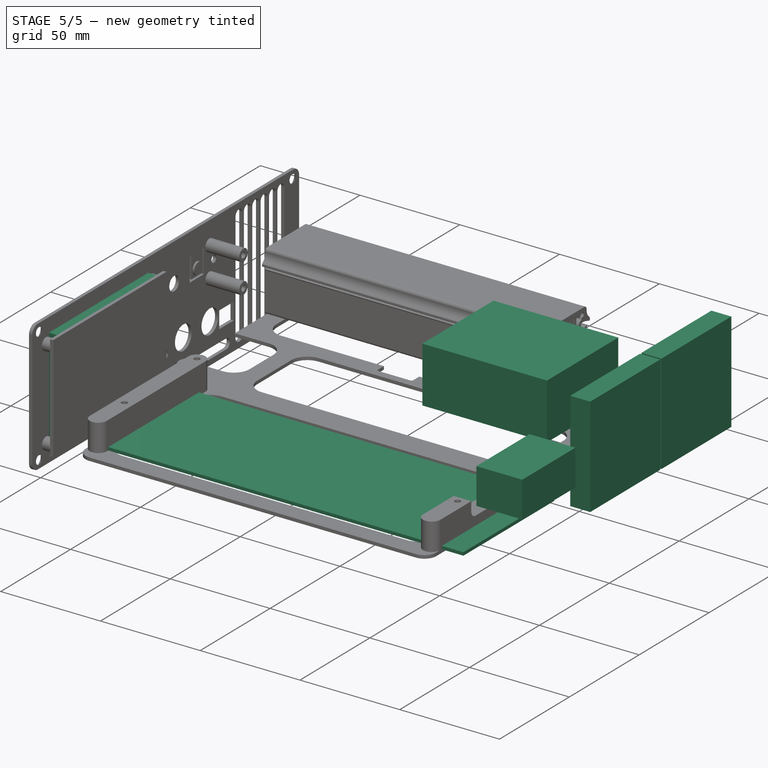
[diagram: stage 5 of 5 — iso view after this stage's code; geometry added in this stage tinted green]
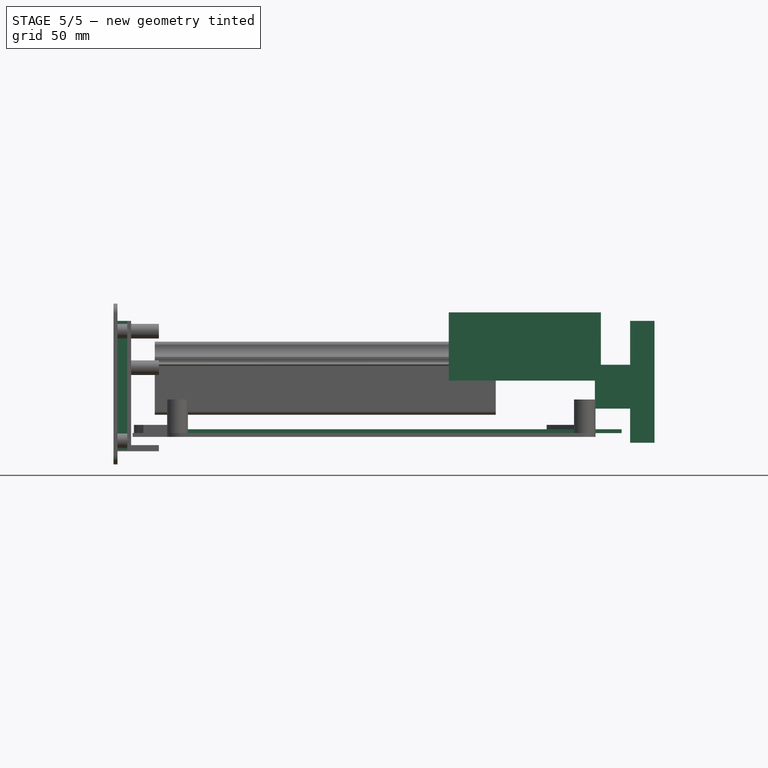
[diagram: stage 5 of 5 — front view after this stage's code; geometry added in this stage tinted green]
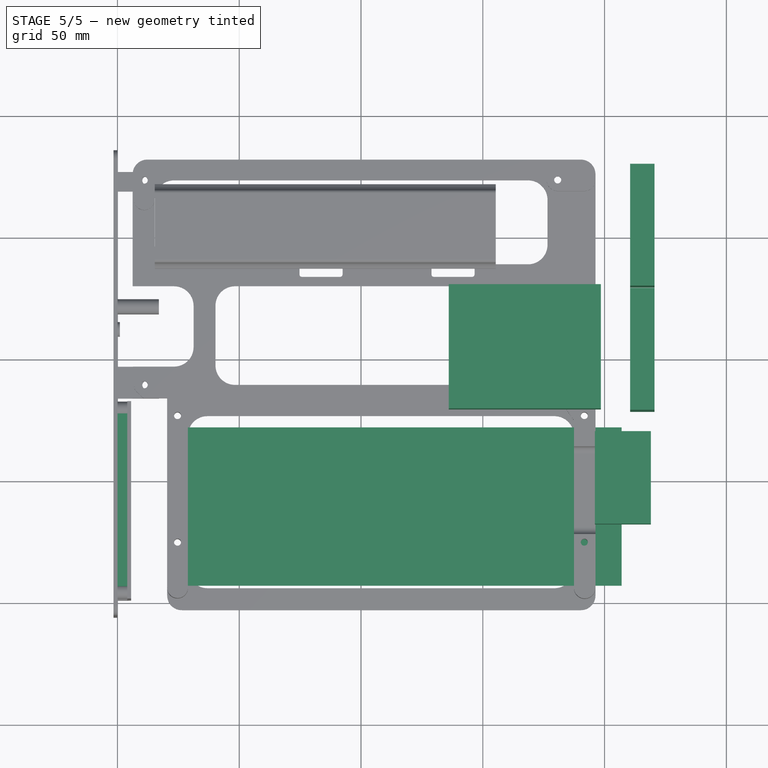
[diagram: stage 5 of 5 — top view after this stage's code; geometry added in this stage tinted green]
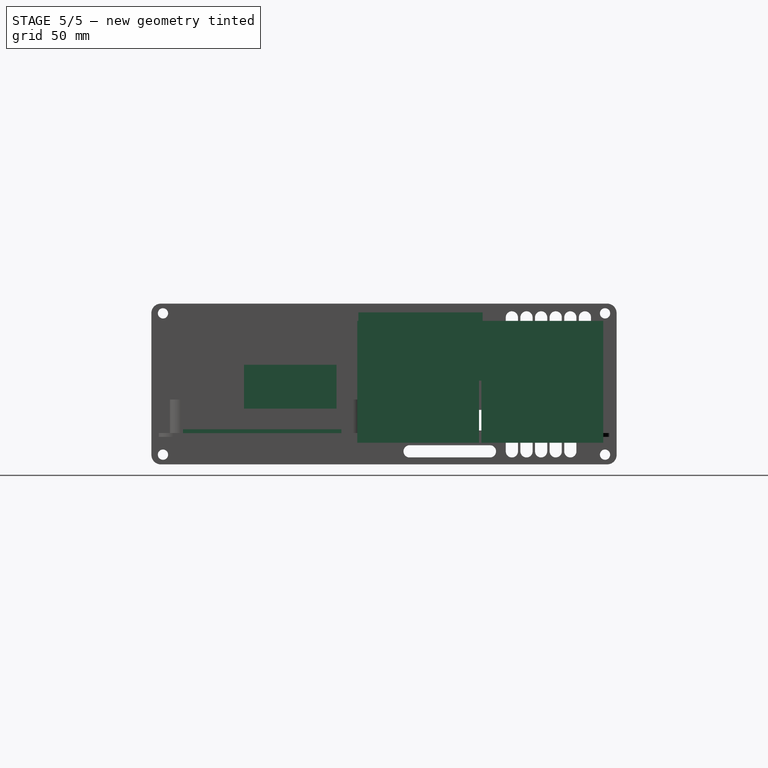
[diagram: stage 5 of 5 — right view after this stage's code; geometry added in this stage tinted green]
FEATURE [Part::Feature] Part__Feature017  label="U extrusion 220mm"
  Placement = pos=(-8e-15,-66,0) rot=(0,0,1;3.14159rad)
  shape: bbox 191 x 66 x 220 mm, 418 faces (baked)
FEATURE [Part::Feature] Part__Feature018  label="T Extrusion Cap 220mm"
  Placement = pos=(8e-15,9.9e-14,0) rot=(0,0,1;0rad)
  shape: bbox 152.4 x 4.29 x 220 mm, 26 faces (baked)
FEATURE [Part::Feature] Part__Feature019  label="1455U Open Bezel"
  Placement = pos=(6.2e-15,-33.01,110) rot=(0,0,1;0rad)
  shape: bbox 196.1 x 71.1 x 11.6 mm, 100 faces (baked)
FEATURE [Part::Feature] Part__Feature020  label="1455U Open Bezel001"
  Placement = pos=(-3.66e-13,-33.01,-110) rot=(1,0,0;3.14159rad)
  shape: bbox 196.1 x 71.1 x 11.6 mm, 100 faces (baked)
FEATURE [Part::Feature] Part__Feature021  label="U End Panel"
  Placement = pos=(-2.49e-13,-33,111.8) rot=(0,0,1;0rad)
  shape: bbox 191 x 66 x 1.626 mm, 14 faces (baked)
FEATURE [Part::Feature] Part__Feature022  label="U End Panel001"
  Placement = pos=(-1.092e-12,-33,-111.8) rot=(1,0,0;3.14159rad)
  shape: bbox 191 x 66 x 1.626 mm, 14 faces (baked)
FEATURE [Part::Feature] Part__Feature023  label="1455 screw"
  Placement = pos=(90.75,-62.01,113.426) rot=(1,0,0;3.14159rad)
  shape: bbox 5.5 x 5.5 x 8 mm, 18 faces (baked)
FEATURE [Part::Feature] Part__Feature024  label="1455 screw001"
  Placement = pos=(90.75,-3.99,113.426) rot=(1,0,0;3.14159rad)
  shape: bbox 5.5 x 5.5 x 8 mm, 18 faces (baked)
FEATURE [Part::Feature] Part__Feature025  label="1455 screw002"
  Placement = pos=(-90.75,-62.01,113.426) rot=(1,0,0;3.14159rad)
  shape: bbox 5.5 x 5.5 x 8 mm, 18 faces (baked)
FEATURE [Part::Feature] Part__Feature026  label="1455 screw003"
  Placement = pos=(-90.75,-3.99,113.426) rot=(1,0,0;3.14159rad)
  shape: bbox 5.5 x 5.5 x 8 mm, 18 faces (baked)
FEATURE [Part::Feature] Part__Feature027  label="1455 screw004"
  Placement = pos=(-90.75,-3.99,-113.426) rot=(0,0,-1;0.01524rad)
  shape: bbox 5.5 x 5.5 x 8 mm, 18 faces (baked)
FEATURE [Part::Feature] Part__Feature028  label="1455 screw005"
  Placement = pos=(-90.75,-62.01,-113.426) rot=(0,0,1;0rad)
  shape: bbox 5.5 x 5.5 x 8 mm, 18 faces (baked)
FEATURE [Part::Feature] Part__Feature029  label="1455 screw006"
  Placement = pos=(90.75,-62.01,-113.426) rot=(0,0,-1;0.007552rad)
  shape: bbox 5.5 x 5.5 x 8 mm, 18 faces (baked)
FEATURE [Part::Feature] Part__Feature030  label="1455 screw007"
  Placement = pos=(90.75,-3.99,-113.426) rot=(0,0,1;0rad)
  shape: bbox 5.5 x 5.5 x 8 mm, 18 faces (baked)
FEATURE [App::Part] _455U2201  label="1455U2201"
  Group = -> [Part__Feature017,Part__Feature018,Part__Feature019,Part__Feature020,Part__Feature021,Part__Feature022,Part__Feature023,Part__Feature024,Part__Feature025,Part__Feature026,Part__Feature027,Part__Feature028,Part__Feature029,Part__Feature030]
  Origin = -> Origin020
  Placement = pos=(111,89.5,53.1) rot=(0.57735,-0.57735,-0.57735;2.0944rad)
FEATURE [Part::Box] Box  label="TFT"
  AttacherType = Attacher::AttachEngine3D
  Height = 53
  Length = 4.5
  Placement = pos=(-0.5,6,-7) rot=(0,0,1;0rad)
  Width = 71
FEATURE [Part::Box] Box001  label="Fan1"
  AttacherType = Attacher::AttachEngine3D
  Height = 50
  Length = 10
  Placement = pos=(210.5,129.5,-4) rot=(0,0,1;0rad)
  Width = 50
FEATURE [Part::Box] Box002  label="Fan2"
  AttacherType = Attacher::AttachEngine3D
  Height = 50
  Length = 10
  Placement = pos=(210.5,78.5,-4) rot=(0,0,1;0rad)
  Width = 50
FEATURE [Part::Box] Box003  label="Cube003"
  AttacherType = Attacher::AttachEngine3D
  Height = 1.575
  Length = 180
  Placement = pos=(27,7,-0.075) rot=(0,0,1;0rad)
  Width = 65
FEATURE [App::Link] C22_C_0805_2012Metric_c419cd9c4a2f_ln_021  label="C27_C_0805_2012Metric_1d120b3a8a056"
  LinkPlacement = pos=(75.425,11.785,0) rot=(0,0,-1;1.5708rad)
  LinkedObject = -> Shape046
  Placement = pos=(75.425,11.785,0) rot=(0,0,-1;1.5708rad)
FEATURE [App::Link] C22_C_0805_2012Metric_c419cd9c4a2f_ln_022  label="C11_C_0805_2012Metric_a49b18341ced001"
  LinkPlacement = pos=(30.4,11.2,0) rot=(0,0,1;0rad)
  LinkedObject = -> Shape046
  Placement = pos=(30.4,11.2,0) rot=(0,0,1;0rad)
FEATURE [App::Link] C22_C_0805_2012Metric_c419cd9c4a2f_ln_023  label="C26_C_0805_2012Metric_9980a3fec6f001"
  LinkPlacement = pos=(17.9,47.79,0) rot=(0,0,1;1.5708rad)
  LinkedObject = -> Shape046
  Placement = pos=(17.9,47.79,0) rot=(0,0,1;1.5708rad)
FEATURE [App::Link] C22_C_0805_2012Metric_c419cd9c4a2f_ln_024  label="C3_C_0805_2012Metric_15e1a894cb002"
  LinkPlacement = pos=(48,32.7,0) rot=(0,0,1;3.14159rad)
  LinkedObject = -> Shape046
  Placement = pos=(48,32.7,0) rot=(0,0,1;3.14159rad)
FEATURE [App::Link] C22_C_0805_2012Metric_c419cd9c4a2f_ln_025  label="C18_C_0805_2012Metric_e794a3d39e081"
  LinkPlacement = pos=(27.6,47.69,0) rot=(0,0,-1;1.5708rad)
  LinkedObject = -> Shape046
  Placement = pos=(27.6,47.69,0) rot=(0,0,-1;1.5708rad)
FEATURE [App::Link] C22_C_0805_2012Metric_c419cd9c4a2f_ln_026  label="C24_C_0805_2012Metric_f01b138523b003"
  LinkPlacement = pos=(77.05,43.95,0) rot=(0,0,-1;1.5708rad)
  LinkedObject = -> Shape046
  Placement = pos=(77.05,43.95,0) rot=(0,0,-1;1.5708rad)
FEATURE [App::Link] C22_C_0805_2012Metric_c419cd9c4a2f_ln_027  label="C9_C_0805_2012Metric_e36e869397a001"
  LinkPlacement = pos=(113.565,44.65,0) rot=(0,0,-1;1.5708rad)
  LinkedObject = -> Shape046
  Placement = pos=(113.565,44.65,0) rot=(0,0,-1;1.5708rad)
FEATURE [App::Link] C22_C_0805_2012Metric_c419cd9c4a2f_ln_028  label="C5_C_0805_2012Metric_15d6734f493a001"
  LinkPlacement = pos=(73,20,0) rot=(0,0,-1;1.5708rad)
  LinkedObject = -> Shape046
  Placement = pos=(73,20,0) rot=(0,0,-1;1.5708rad)
FEATURE [App::Link] C22_C_0805_2012Metric_c419cd9c4a2f_ln_029  label="C28_C_0805_2012Metric_2a13067f8fce001"
  LinkPlacement = pos=(86.425,11.745,0) rot=(0,0,-1;1.5708rad)
  LinkedObject = -> Shape046
  Placement = pos=(86.425,11.745,0) rot=(0,0,-1;1.5708rad)
FEATURE [App::Link] C22_C_0805_2012Metric_c419cd9c4a2f_ln_030  label="C23_C_0805_2012Metric_11de36914b063"
  LinkPlacement = pos=(76.35,49.3,0) rot=(0,0,1;0rad)
  LinkedObject = -> Shape046
  Placement = pos=(76.35,49.3,0) rot=(0,0,1;0rad)
FEATURE [App::Link] C22_C_0805_2012Metric_c419cd9c4a2f_ln_031  label="C12_C_0805_2012Metric_732eebdf556d001"
  LinkPlacement = pos=(10.8,16.7,0) rot=(0,0,1;0rad)
  LinkedObject = -> Shape046
  Placement = pos=(10.8,16.7,0) rot=(0,0,1;0rad)
FEATURE [App::Link] C22_C_0805_2012Metric_c419cd9c4a2f_ln_032  label="C25_C_0805_2012Metric_1bf86fd4d990"
  LinkPlacement = pos=(80.425,11.735,0) rot=(0,0,-1;1.5708rad)
  LinkedObject = -> Shape046
  Placement = pos=(80.425,11.735,0) rot=(0,0,-1;1.5708rad)
FEATURE [App::Link] C22_C_0805_2012Metric_c419cd9c4a2f_ln_033  label="C10_C_0805_2012Metric_be4c2624d97d001"
  LinkPlacement = pos=(5.70002,25.2,0) rot=(0,0,1;1.5708rad)
  LinkedObject = -> Shape046
  Placement = pos=(5.70002,25.2,0) rot=(0,0,1;1.5708rad)
FEATURE [App::Link] C22_C_0805_2012Metric_c419cd9c4a2f_ln_034  label="C15_C_0805_2012Metric_1e921fb38b4c001"
  LinkPlacement = pos=(14.4,24.2,0) rot=(0,0,1;0rad)
  LinkedObject = -> Shape046
  Placement = pos=(14.4,24.2,0) rot=(0,0,1;0rad)
FEATURE [App::Link] C22_C_0805_2012Metric_c419cd9c4a2f_ln_035  label="C2_C_0805_2012Metric_e26014cc501c001"
  LinkPlacement = pos=(47.9,27.7,0) rot=(0,0,1;3.14159rad)
  LinkedObject = -> Shape046
  Placement = pos=(47.9,27.7,0) rot=(0,0,1;3.14159rad)
FEATURE [App::Link] C22_C_0805_2012Metric_c419cd9c4a2f_ln_036  label="C29_C_0805_2012Metric_590fa80ec8f003"
  LinkPlacement = pos=(91.425,11.845,0) rot=(0,0,-1;1.5708rad)
  LinkedObject = -> Shape046
  Placement = pos=(91.425,11.845,0) rot=(0,0,-1;1.5708rad)
FEATURE [App::Link] C22_C_0805_2012Metric_c419cd9c4a2f_ln_037  label="C21_C_0805_2012Metric_054ffed93a8c001"
  LinkPlacement = pos=(23.13,27.3,0) rot=(0,0,1;0rad)
  LinkedObject = -> Shape046
  Placement = pos=(23.13,27.3,0) rot=(0,0,1;0rad)
FEATURE [App::Link] C22_C_0805_2012Metric_c419cd9c4a2f_ln_038  label="C8_C_0805_2012Metric_242075c039d001"
  LinkPlacement = pos=(21.6,19.6,0) rot=(0,0,1;1.5708rad)
  LinkedObject = -> Shape046
  Placement = pos=(21.6,19.6,0) rot=(0,0,1;1.5708rad)
FEATURE [App::Link] C22_C_0805_2012Metric_c419cd9c4a2f_ln_039  label="C20_C_0805_2012Metric_a8166e63492a001"
  LinkPlacement = pos=(63.7,49.1,0) rot=(0,0,1;0rad)
  LinkedObject = -> Shape046
  Placement = pos=(63.7,49.1,0) rot=(0,0,1;0rad)
FEATURE [App::Link] C22_C_0805_2012Metric_c419cd9c4a2f_ln_040  label="C16_C_0805_2012Metric_4b5c9fa2ab9d001"
  LinkPlacement = pos=(33.7,12.7,0) rot=(0,0,1;1.5708rad)
  LinkedObject = -> Shape046
  Placement = pos=(33.7,12.7,0) rot=(0,0,1;1.5708rad)
FEATURE [App::Link] C22_C_0805_2012Metric_c419cd9c4a2f_ln_041  label="C17_C_0805_2012Metric_9c817947d75a001"
  LinkPlacement = pos=(39.2,12.7285,0) rot=(0,0,1;1.5708rad)
  LinkedObject = -> Shape046
  Placement = pos=(39.2,12.7285,0) rot=(0,0,1;1.5708rad)
FEATURE [App::Link] C6_CP_Elec_63x58_0ee41fe4bfd3_ln_007  label="C1_CP_Elec_63x58_5659c7eb80dd001"
  LinkPlacement = pos=(58.3,19.8,0) rot=(0,0,1;0rad)
  LinkedObject = -> Shape045
  Placement = pos=(58.3,19.8,0) rot=(0,0,1;0rad)
FEATURE [App::Link] C6_CP_Elec_63x58_0ee41fe4bfd3_ln_008  label="C13_CP_Elec_63x58_4c4f2b69c62b001"
  LinkPlacement = pos=(49.7,17.4,0) rot=(0,0,1;3.14159rad)
  LinkedObject = -> Shape045
  Placement = pos=(49.7,17.4,0) rot=(0,0,1;3.14159rad)
FEATURE [App::Link] C6_CP_Elec_63x58_0ee41fe4bfd3_ln_009  label="C30_CP_Elec_63x58_f829d7b62f1d001"
  LinkPlacement = pos=(53.4,10,0) rot=(0,0,1;3.14159rad)
  LinkedObject = -> Shape045
  Placement = pos=(53.4,10,0) rot=(0,0,1;3.14159rad)
FEATURE [App::Link] C6_CP_Elec_63x58_0ee41fe4bfd3_ln_010  label="C19_CP_Elec_63x58_eae7f9406b012"
  LinkPlacement = pos=(22.83,36.2,0) rot=(0,0,1;3.14159rad)
  LinkedObject = -> Shape045
  Placement = pos=(22.83,36.2,0) rot=(0,0,1;3.14159rad)
FEATURE [App::Link] C6_CP_Elec_63x58_0ee41fe4bfd3_ln_011  label="C14_CP_Elec_63x58_56145b951647"
  LinkPlacement = pos=(31.7,1.80002,0) rot=(0,0,1;1.5708rad)
  LinkedObject = -> Shape045
  Placement = pos=(31.7,1.80002,0) rot=(0,0,1;1.5708rad)
FEATURE [App::Link] C6_CP_Elec_63x58_0ee41fe4bfd3_ln_012  label="C4_CP_Elec_63x58_b0d551f2ee6d001"
  LinkPlacement = pos=(46.2,43,0) rot=(0,0,1;3.14159rad)
  LinkedObject = -> Shape045
  Placement = pos=(46.2,43,0) rot=(0,0,1;3.14159rad)
FEATURE [App::Link] C6_CP_Elec_63x58_0ee41fe4bfd3_ln_013  label="C7_CP_Elec_63x58_6e01dcfa2038"
  LinkPlacement = pos=(57.7,41.2,0) rot=(0,0,1;0rad)
  LinkedObject = -> Shape045
  Placement = pos=(57.7,41.2,0) rot=(0,0,1;0rad)
FEATURE [App::Link] D11_D_SMA_1bb42aa92948_ln_002  label="D10_D_SMA_c2646ced11f004"
  LinkPlacement = pos=(8.70002,-1.19998,0) rot=(0,0,1;3.14159rad)
  LinkedObject = -> Shape063
  Placement = pos=(8.70002,-1.19998,0) rot=(0,0,1;3.14159rad)
FEATURE [App::Link] D11_D_SMA_1bb42aa92948_ln_003  label="D5_D_SMA_dbb58a46da9a001"
  LinkPlacement = pos=(1.80002,10.7285,0) rot=(0,0,-1;1.5708rad)
  LinkedObject = -> Shape063
  Placement = pos=(1.80002,10.7285,0) rot=(0,0,-1;1.5708rad)
FEATURE [App::Link] D15_D_MiniMELF_Standard_ca1fadf4eb28_ln_002  label="D16_D_MiniMELF_Standard_49aaf989b643"
  LinkPlacement = pos=(64.4,23.5,0) rot=(0,0,-1;1.5708rad)
  LinkedObject = -> Shape059
  Placement = pos=(64.4,23.5,0) rot=(0,0,-1;1.5708rad)
FEATURE [App::Link] D15_D_MiniMELF_Standard_ca1fadf4eb28_ln_003  label="D14_D_MiniMELF_Standard_869c8d3e9314"
  LinkPlacement = pos=(45,7.60002,0) rot=(0,0,1;0rad)
  LinkedObject = -> Shape059
  Placement = pos=(45,7.60002,0) rot=(0,0,1;0rad)
FEATURE [App::Link] D1_D_SOD_123_5a20a041a245_ln_006  label="D2_D_SOD_123_9f952dc980be001"
  LinkPlacement = pos=(48.7,38,0) rot=(0,0,1;3.14159rad)
  LinkedObject = -> Shape047
  Placement = pos=(48.7,38,0) rot=(0,0,1;3.14159rad)
FEATURE [App::Link] D1_D_SOD_123_5a20a041a245_ln_007  label="D4_D_SOD_123_a08d4832a5ee001"
  LinkPlacement = pos=(52.3,27.7,0) rot=(0,0,1;3.14159rad)
  LinkedObject = -> Shape047
  Placement = pos=(52.3,27.7,0) rot=(0,0,1;3.14159rad)
FEATURE [App::Link] D1_D_SOD_123_5a20a041a245_ln_008  label="D3_D_SOD_123_c8b4b2da39fe001"
  LinkPlacement = pos=(48.6,30.2,0) rot=(0,0,1;3.14159rad)
  LinkedObject = -> Shape047
  Placement = pos=(48.6,30.2,0) rot=(0,0,1;3.14159rad)
FEATURE [App::Link] D1_D_SOD_123_5a20a041a245_ln_009  label="D8_D_SOD_123_5a5f85ca8e2f001"
  LinkPlacement = pos=(48.7,35.4,0) rot=(0,0,1;3.14159rad)
  LinkedObject = -> Shape047
  Placement = pos=(48.7,35.4,0) rot=(0,0,1;3.14159rad)
FEATURE [App::Link] D1_D_SOD_123_5a20a041a245_ln_010  label="D9_D_SOD_123_161a8bc13197"
  LinkPlacement = pos=(52.25,32.7,0) rot=(0,0,1;0rad)
  LinkedObject = -> Shape047
  Placement = pos=(52.25,32.7,0) rot=(0,0,1;0rad)
FEATURE [App::Link] D1_D_SOD_123_5a20a041a245_ln_011  label="D7_D_SOD_123_81fc6af181e010"
  LinkPlacement = pos=(48.6,25.1,0) rot=(0,0,1;3.14159rad)
  LinkedObject = -> Shape047
  Placement = pos=(48.6,25.1,0) rot=(0,0,1;3.14159rad)
FEATURE [App::Link] D6_LED_0805_2012Metric_630bc1ac9416_ln_002  label="D13_LED_0805_2012Metric_31b94944d83b001"
  LinkPlacement = pos=(42,3.40002,0) rot=(0,0,1;3.14159rad)
  LinkedObject = -> Shape055
  Placement = pos=(42,3.40002,0) rot=(0,0,1;3.14159rad)
FEATURE [App::Link] D6_LED_0805_2012Metric_630bc1ac9416_ln_003  label="D12_LED_0805_2012Metric_8e83bb0bb171"
  LinkPlacement = pos=(50.5,49.8,0) rot=(0,0,1;0rad)
  LinkedObject = -> Shape055
  Placement = pos=(50.5,49.8,0) rot=(0,0,1;0rad)
FEATURE [App::Link] JP8_PinHeader_1x02_P254mm_Vertical_ed570ec3ee34_ln_005  label="J5_PinHeader_1x02_P254mm_Vertical_3b80083b2131"
  LinkPlacement = pos=(20.1,10,0) rot=(0,0,-1;1.5708rad)
  LinkedObject = -> Shape054
  Placement = pos=(20.1,10,0) rot=(0,0,-1;1.5708rad)
FEATURE [App::Link] JP8_PinHeader_1x02_P254mm_Vertical_ed570ec3ee34_ln_006  label="J6_PinHeader_1x02_P254mm_Vertical_92a677824944"
  LinkPlacement = pos=(3.30002,19.9285,0) rot=(0,0,-1;1.5708rad)
  LinkedObject = -> Shape054
  Placement = pos=(3.30002,19.9285,0) rot=(0,0,-1;1.5708rad)
FEATURE [App::Link] JP8_PinHeader_1x02_P254mm_Vertical_ed570ec3ee34_ln_007  label="JP5_PinHeader_1x02_P254mm_Vertical_806d60fd696a001"
  LinkPlacement = pos=(67.7,25.2,0) rot=(0,0,1;0rad)
  LinkedObject = -> Shape054
  Placement = pos=(67.7,25.2,0) rot=(0,0,1;0rad)
FEATURE [App::Link] JP8_PinHeader_1x02_P254mm_Vertical_ed570ec3ee34_ln_008  label="JP6_PinHeader_1x02_P254mm_Vertical_0c23ef1a54e007"
  LinkPlacement = pos=(50.66,4.30002,0) rot=(0,0,1;1.5708rad)
  LinkedObject = -> Shape054
  Placement = pos=(50.66,4.30002,0) rot=(0,0,1;1.5708rad)
FEATURE [App::Link] JP8_PinHeader_1x02_P254mm_Vertical_ed570ec3ee34_ln_009  label="JP4_PinHeader_1x02_P254mm_Vertical_b2b0b4eb230f001"
  LinkPlacement = pos=(55.95,49.725,0) rot=(0,0,1;1.5708rad)
  LinkedObject = -> Shape054
  Placement = pos=(55.95,49.725,0) rot=(0,0,1;1.5708rad)
FEATURE [App::Link] L2_L_1210_3225Metric_8f5c69fc0355_ln_002  label="L8_L_1210_3225Metric_c8d3be7f3658"
  LinkPlacement = pos=(60.6,25.3,0) rot=(0,0,1;3.14159rad)
  LinkedObject = -> Shape058
  Placement = pos=(60.6,25.3,0) rot=(0,0,1;3.14159rad)
FEATURE [App::Link] L2_L_1210_3225Metric_8f5c69fc0355_ln_003  label="L3_L_1210_3225Metric_d7bc27af3adb001"
  LinkPlacement = pos=(46.8,11.3,0) rot=(0,0,1;1.5708rad)
  LinkedObject = -> Shape058
  Placement = pos=(46.8,11.3,0) rot=(0,0,1;1.5708rad)
FEATURE [PartDesign::CoordinateSystem] Local_CS_51fb001
  AttacherType = Attacher::AttachEngine3D
  MapMode = 2
  Support = -> [X_Axis029]
FEATURE [App::Link] M2_Fan_Pin_Header_Straight_1x04_4971bfcbb112_ln_002  label="M3_Fan_Pin_Header_Straight_1x04_d9628b9d4d017"
  LinkPlacement = pos=(5.92002,4.60002,0) rot=(0,0,1;0rad)
  LinkedObject = -> Shape052
  Placement = pos=(5.92002,4.60002,0) rot=(0,0,1;0rad)
FEATURE [App::Link] M2_Fan_Pin_Header_Straight_1x04_4971bfcbb112_ln_003  label="M1_Fan_Pin_Header_Straight_1x04_37f54f52d17d001"
  LinkPlacement = pos=(18.48,4.50002,0) rot=(0,0,1;0rad)
  LinkedObject = -> Shape052
  Placement = pos=(18.48,4.50002,0) rot=(0,0,1;0rad)
FEATURE [Sketcher::SketchObject] PCB_Sketch_51fb001
  FullyConstrained = false
  sketch-geometry (16):
    g0: LineSegment StartX=36.25 StartY=-13.5 StartZ=0 EndX=36.25 EndY=-7.99998 EndZ=0
    g1: LineSegment StartX=2e-05 StartY=-3.99998 StartZ=0 EndX=32.25 EndY=-3.99998 EndZ=0
    g2: LineSegment StartX=-3.99998 StartY=2.3e-05 StartZ=0 EndX=-3.99998 EndY=52 EndZ=0
    g3: LineSegment StartX=166 StartY=52 StartZ=0 EndX=166 EndY=2.3e-05 EndZ=0
    g4: LineSegment StartX=64 StartY=-3.99998 StartZ=0 EndX=162 EndY=-3.99998 EndZ=0
    g5: LineSegment StartX=60 StartY=-13.5 StartZ=0 EndX=60 EndY=-7.99998 EndZ=0
    g6: LineSegment StartX=39.25 StartY=-16.5 StartZ=0 EndX=57 EndY=-16.5 EndZ=0
    g7: LineSegment StartX=2e-05 StartY=56 StartZ=0 EndX=162 EndY=56 EndZ=0
    g8: ArcOfCircle CenterX=1.70117e-05 CenterY=52 CenterZ=0 NormalX=0 NormalY=0 NormalZ=-1 AngleXU=-7.47076e-07 Radius=4 StartAngle=0 EndAngle=1.5708
    g9: ArcOfCircle CenterX=57 CenterY=-13.5 CenterZ=0 NormalX=0 NormalY=0 NormalZ=-1 AngleXU=-3.14159 Radius=3 StartAngle=0 EndAngle=1.5708
    g10: ArcOfCircle CenterX=64 CenterY=-7.99995 CenterZ=0 NormalX=0 NormalY=0 NormalZ=-1 AngleXU=-5.86839e-06 Radius=3.99998 StartAngle=0 EndAngle=1.57081
    g11: ArcOfCircle CenterX=162 CenterY=6.78113e-05 CenterZ=0 NormalX=0 NormalY=0 NormalZ=-1 AngleXU=-3.14158 Radius=4.00004 StartAngle=0 EndAngle=1.57077
    g12: ArcOfCircle CenterX=39.25 CenterY=-13.5 CenterZ=0 NormalX=0 NormalY=0 NormalZ=-1 AngleXU=-1.5708 Radius=3 StartAngle=0 EndAngle=1.5708
    g13: ArcOfCircle CenterX=32.25 CenterY=-7.99995 CenterZ=0 NormalX=0 NormalY=0 NormalZ=-1 AngleXU=1.57079 Radius=3.99998 StartAngle=0 EndAngle=1.57081
    g14: ArcOfCircle CenterX=-5.92595e-08 CenterY=2.94074e-06 CenterZ=0 NormalX=0 NormalY=0 NormalZ=-1 AngleXU=-1.5708 Radius=3.99998 StartAngle=0 EndAngle=1.57081
    g15: ArcOfCircle CenterX=162 CenterY=52 CenterZ=0 NormalX=0 NormalY=0 NormalZ=-1 AngleXU=1.5708 Radius=4.00002 StartAngle=0 EndAngle=1.57079
  constraints (16):
    c: Coincident(g2,g14)
    c: Coincident(g2,g8)
    c: Coincident(g1,g14)
    c: Coincident(g7,g8)
    c: Coincident(g1,g13)
    c: Coincident(g0,g12)
    c: Coincident(g0,g13)
    c: Coincident(g6,g12)
    c: Coincident(g6,g9)
    c: Coincident(g5,g9)
    c: Coincident(g5,g10)
    c: Coincident(g4,g10)
    c: Coincident(g4,g11)
    c: Coincident(g7,g15)
    c: Coincident(g3,g11)
    c: Coincident(g3,g15)
FEATURE [Part::Feature] Part__Feature127  label="TestPoint_Loop_D2_54mm_Drill1_5mm_Beaded_cp002"
  shape: bbox 3 x 3 x 3 mm, 4 faces (baked)
FEATURE [Part::Feature] Part__Feature128  label="TestPoint_Loop_D2_54mm_Drill1_5mm_Beaded_cp003"
  shape: bbox 3.415 x 0.9501 x 9.255 mm, 7 faces (baked)
FEATURE [Part::Feature] Part__Feature129  label="SC1009"
  shape: bbox 3.8 x 1 x 3.8 mm, 6 faces (baked)
FEATURE [Part::Feature] Part__Feature130  label="SC1010"
  shape: bbox 3.8 x 1 x 3.8 mm, 6 faces (baked)
FEATURE [Part::Feature] Part__Feature131  label="SC1011"
  shape: bbox 3.8 x 1 x 3.8 mm, 6 faces (baked)
FEATURE [Part::Feature] Part__Feature132  label="SC1012"
  shape: bbox 3.8 x 1 x 3.8 mm, 6 faces (baked)
FEATURE [Part::Feature] Part__Feature133  label="SC1013"
  shape: bbox 2.41 x 1 x 1.6 mm, 10 faces (baked)
FEATURE [Part::Feature] Part__Feature134  label="SC1014"
  shape: bbox 2.41 x 1 x 1.6 mm, 10 faces (baked)
FEATURE [Part::Feature] Part__Feature135  label="SC1015"
  shape: bbox 2.41 x 1 x 1.6 mm, 10 faces (baked)
FEATURE [Part::Feature] Part__Feature136  label="SC1016"
  shape: bbox 2.41 x 1 x 1.6 mm, 10 faces (baked)
FEATURE [Part::Feature] Part__Feature137  label="SC1017"
  shape: bbox 2.41 x 1 x 1.6 mm, 10 faces (baked)
FEATURE [Part::Feature] Part__Feature138  label="SC1018"
  shape: bbox 2.41 x 1 x 1.6 mm, 10 faces (baked)
FEATURE [Part::Feature] Part__Feature139  label="SC1019"
  shape: bbox 2.41 x 1 x 1.6 mm, 10 faces (baked)
FEATURE [Part::Feature] Part__Feature140  label="SC1020"
  shape: bbox 2.41 x 1 x 1.6 mm, 10 faces (baked)
FEATURE [Part::Feature] Part__Feature141  label="SC1021"
  shape: bbox 2.41 x 1 x 1.6 mm, 10 faces (baked)
FEATURE [Part::Feature] Part__Feature142  label="SC1022"
  shape: bbox 2.41 x 1 x 1.6 mm, 10 faces (baked)
FEATURE [Part::Feature] Part__Feature143  label="SC1023"
  shape: bbox 2.41 x 1 x 1.6 mm, 10 faces (baked)
FEATURE [Part::Feature] Part__Feature144  label="SC1024"
  shape: bbox 2.41 x 1 x 1.6 mm, 10 faces (baked)
FEATURE [Part::Feature] Part__Feature145  label="SC1025"
  shape: bbox 2.41 x 1 x 1.6 mm, 10 faces (baked)
FEATURE [Part::Feature] Part__Feature146  label="SC1026"
  shape: bbox 2.41 x 1 x 1.6 mm, 10 faces (baked)
FEATURE [Part::Feature] Part__Feature147  label="SC1027"
  shape: bbox 2.41 x 1 x 1.6 mm, 10 faces (baked)
FEATURE [Part::Feature] Part__Feature148  label="SC1028"
  shape: bbox 2.41 x 1 x 1.6 mm, 10 faces (baked)
FEATURE [Part::Feature] Part__Feature149  label="SC1029"
  shape: bbox 2.41 x 1 x 1.6 mm, 12 faces (baked)
FEATURE [Part::Feature] Part__Feature150  label="SC1030"
  shape: bbox 2.41 x 1 x 1.6 mm, 12 faces (baked)
FEATURE [Part::Feature] Part__Feature151  label="SC1031"
  shape: bbox 2.41 x 1 x 1.6 mm, 12 faces (baked)
FEATURE [Part::Feature] Part__Feature152  label="SC1032"
  shape: bbox 2.41 x 1 x 1.6 mm, 12 faces (baked)
FEATURE [Part::Feature] Part__Feature153  label="SC1033"
  shape: bbox 2.41 x 1 x 1.6 mm, 12 faces (baked)
FEATURE [Part::Feature] Part__Feature154  label="SC1034"
  shape: bbox 2.41 x 1 x 1.6 mm, 12 faces (baked)
FEATURE [Part::Feature] Part__Feature155  label="SC1035"
  shape: bbox 2.41 x 1 x 1.6 mm, 12 faces (baked)
FEATURE [Part::Feature] Part__Feature156  label="SC1036"
  shape: bbox 2.41 x 1 x 1.6 mm, 12 faces (baked)
FEATURE [Part::Feature] Part__Feature157  label="SC1037"
  shape: bbox 2.41 x 1 x 1.6 mm, 10 faces (baked)
FEATURE [Part::Feature] Part__Feature158  label="SC1038"
  shape: bbox 2.41 x 1 x 1.6 mm, 10 faces (baked)
FEATURE [Part::Feature] Part__Feature159  label="SC1039"
  shape: bbox 2.41 x 1 x 1.6 mm, 10 faces (baked)
FEATURE [Part::Feature] Part__Feature160  label="SC1040"
  shape: bbox 2.41 x 1 x 1.6 mm, 10 faces (baked)
FEATURE [Part::Feature] Part__Feature161  label="SC1041"
  shape: bbox 2.41 x 1 x 1.6 mm, 10 faces (baked)
FEATURE [Part::Feature] Part__Feature162  label="SC1042"
  shape: bbox 2.41 x 1 x 1.6 mm, 10 faces (baked)
FEATURE [Part::Feature] Part__Feature163  label="SC1043"
  shape: bbox 2.41 x 1 x 1.6 mm, 10 faces (baked)
FEATURE [Part::Feature] Part__Feature164  label="SC1044"
  shape: bbox 2.41 x 1 x 1.6 mm, 10 faces (baked)
FEATURE [Part::Feature] Part__Feature165  label="SC1045"
  shape: bbox 2.41 x 1 x 1.6 mm, 10 faces (baked)
FEATURE [Part::Feature] Part__Feature166  label="SC1046"
  shape: bbox 2.41 x 1 x 1.6 mm, 10 faces (baked)
FEATURE [Part::Feature] Part__Feature167  label="SC1047"
  shape: bbox 2.41 x 1 x 1.6 mm, 10 faces (baked)
FEATURE [Part::Feature] Part__Feature168  label="SC1048"
  shape: bbox 2.41 x 1 x 1.6 mm, 10 faces (baked)
FEATURE [Part::Feature] Part__Feature169  label="SC1049"
  shape: bbox 2.41 x 1 x 1.6 mm, 10 faces (baked)
FEATURE [Part::Feature] Part__Feature170  label="SC1050"
  shape: bbox 2.41 x 1 x 1.6 mm, 10 faces (baked)
FEATURE [Part::Feature] Part__Feature171  label="SC1051"
  shape: bbox 2.41 x 1 x 1.6 mm, 10 faces (baked)
FEATURE [Part::Feature] Part__Feature172  label="SC1052"
  shape: bbox 2.41 x 1 x 1.6 mm, 10 faces (baked)
FEATURE [Part::Feature] Part__Feature173  label="SC1053"
  shape: bbox 1.6 x 1 x 2.41 mm, 12 faces (baked)
FEATURE [Part::Feature] Part__Feature174  label="SC1054"
  shape: bbox 1.6 x 1 x 2.41 mm, 12 faces (baked)
FEATURE [Part::Feature] Part__Feature175  label="SC1055"
  shape: bbox 1.6 x 1 x 2.41 mm, 13 faces (baked)
FEATURE [Part::Feature] Part__Feature176  label="SC1056"
  shape: bbox 3.35 x 0.9 x 4.2 mm, 6 faces (baked)
FEATURE [Part::Feature] Part__Feature177  label="SC1057"
  shape: bbox 2.2 x 0.9 x 2.8 mm, 6 faces (baked)
FEATURE [Part::Feature] Part__Feature178  label="SC1058"
  shape: bbox 7 x 0.9 x 7 mm, 6 faces (baked)
FEATURE [Part::Feature] Part__Feature179  label="SC1059"
  shape: bbox 2.1 x 0.9 x 3 mm, 6 faces (baked)
FEATURE [Part::Feature] Part__Feature180  label="SC1060"
  shape: bbox 3 x 0.9 x 2.2 mm, 6 faces (baked)
FEATURE [Part::Feature] Part__Feature181  label="SC1061"
  shape: bbox 2.4 x 0.9 x 2.4 mm, 6 faces (baked)
FEATURE [Part::Feature] Part__Feature182  label="SC1062"
  shape: bbox 2.25 x 1.1 x 3.4 mm, 13 faces (baked)
FEATURE [Part::Feature] Part__Feature183  label="SC1063"
  shape: bbox 0.35 x 0.1 x 0.5 mm, 6 faces (baked)
FEATURE [Part::Feature] Part__Feature184  label="SC1064"
  shape: bbox 1.75 x 0.1 x 0.9 mm, 6 faces (baked)
FEATURE [Part::Feature] Part__Feature185  label="SC1065"
  shape: bbox 1.2 x 0.1 x 0.505 mm, 6 faces (baked)
FEATURE [Part::Feature] Part__Feature186  label="SC1066"
  shape: bbox 1.2 x 0.1 x 0.505 mm, 6 faces (baked)
FEATURE [Part::Feature] Part__Feature187  label="SC1067"
  shape: bbox 0.35 x 0.1 x 0.5 mm, 6 faces (baked)
FEATURE [Part::Feature] Part__Feature188  label="SC1068"
  shape: bbox 0.35 x 0.1 x 0.5 mm, 6 faces (baked)
FEATURE [Part::Feature] Part__Feature189  label="SC1069"
  shape: bbox 1.2 x 1.25 x 1.2 mm, 6 faces (baked)
FEATURE [Part::Feature] Part__Feature190  label="SC1070"
  shape: bbox 2 x 1.25 x 1 mm, 6 faces (baked)
FEATURE [Part::Feature] Part__Feature191  label="SC1071"
  shape: bbox 1.2 x 1.25 x 1.2 mm, 6 faces (baked)
FEATURE [Part::Feature] Part__Feature192  label="SC1072"
  shape: bbox 0.4 x 1.25 x 1.2 mm, 6 faces (baked)
FEATURE [Part::Feature] Part__Feature193  label="SC1073"
  shape: bbox 2 x 1.25 x 0.7 mm, 6 faces (baked)
FEATURE [Part::Feature] Part__Feature194  label="SC1074"
  shape: bbox 0.4 x 1.25 x 1.2 mm, 6 faces (baked)
FEATURE [Part::Feature] Part__Feature195  label="SC1075"
  shape: bbox 0.4 x 1.25 x 1.2 mm, 6 faces (baked)
FEATURE [Part::Feature] Part__Feature196  label="SC1076"
  shape: bbox 0.4 x 1.25 x 1.2 mm, 6 faces (baked)
FEATURE [Part::Feature] Part__Feature197  label="SC1077"
  shape: bbox 2 x 1.25 x 0.7 mm, 6 faces (baked)
FEATURE [Part::Feature] Part__Feature198  label="SC1078"
  shape: bbox 0.9 x 0.2 x 0.9 mm, 6 faces (baked)
FEATURE [Part::Feature] Part__Feature199  label="SC1079"
  shape: bbox 1.95 x 0.85 x 1 mm, 6 faces (baked)
FEATURE [Part::Feature] Part__Feature200  label="SC1080"
  shape: bbox 0.42 x 0.15 x 2.3 mm, 6 faces (baked)
FEATURE [Part::Feature] Part__Feature201  label="SC1081"
  shape: bbox 0.42 x 0.15 x 2.3 mm, 6 faces (baked)
FEATURE [Part::Feature] Part__Feature202  label="SC1082"
  shape: bbox 0.42 x 0.15 x 2.3 mm, 6 faces (baked)
FEATURE [Part::Feature] Part__Feature203  label="SC1083"
  shape: bbox 0.42 x 0.15 x 2.3 mm, 6 faces (baked)
FEATURE [Part::Feature] Part__Feature204  label="SC1084"
  shape: bbox 0.42 x 0.15 x 2.3 mm, 6 faces (baked)
FEATURE [Part::Feature] Part__Feature205  label="SC1085"
  shape: bbox 7.1 x 2.52 x 4.21 mm, 184 faces (baked)
FEATURE [Part::Feature] Part__Feature206  label="SC1086"
  shape: bbox 8 x 3.48 x 5.5 mm, 288 faces (baked)
FEATURE [Part::Feature] Part__Feature207  label="SC1087"
  shape: bbox 0.25 x 0.25 x 0.7 mm, 14 faces (baked)
FEATURE [Part::Feature] Part__Feature208  label="SC1088"
  shape: bbox 0.25 x 0.25 x 0.7 mm, 14 faces (baked)
FEATURE [Part::Feature] Part__Feature209  label="SC1089"
  shape: bbox 0.25 x 0.25 x 0.7 mm, 14 faces (baked)
FEATURE [Part::Feature] Part__Feature210  label="SC1090"
  shape: bbox 0.25 x 0.25 x 0.7 mm, 14 faces (baked)
FEATURE [Part::Feature] Part__Feature211  label="SC1091"
  shape: bbox 0.25 x 0.25 x 0.7 mm, 14 faces (baked)
FEATURE [Part::Feature] Part__Feature212  label="SC1092"
  shape: bbox 1.5 x 0.1 x 1.5 mm, 10 faces (baked)
FEATURE [Part::Feature] Part__Feature213  label="SC1093"
  shape: bbox 1.5 x 0.1 x 1.5 mm, 10 faces (baked)
FEATURE [Part::Feature] Part__Feature214  label="SC1094"
  shape: bbox 1.5 x 0.1 x 1.5 mm, 10 faces (baked)
FEATURE [Part::Feature] Part__Feature215  label="SC1095"
  shape: bbox 1.5 x 0.1 x 1.5 mm, 10 faces (baked)
FEATURE [Part::Feature] Part__Feature216  label="SC1096"
  shape: bbox 1.5 x 0.1 x 1.5 mm, 10 faces (baked)
FEATURE [Part::Feature] Part__Feature217  label="SC1097"
  shape: bbox 1.5 x 0.1 x 1.5 mm, 10 faces (baked)
FEATURE [Part::Feature] Part__Feature218  label="SC1098"
  shape: bbox 21 x 1 x 51 mm, 284 faces (baked)
FEATURE [Part::Feature] Part__Feature219  label="SC1099"
  shape: bbox 1.1 x 0.1 x 1.8 mm, 7 faces (baked)
FEATURE [Part::Feature] Part__Feature220  label="SC1100"
  shape: bbox 1.1 x 0.1 x 1.8 mm, 7 faces (baked)
FEATURE [Part::Feature] Part__Feature221  label="SC1101"
  shape: bbox 1.05 x 0.1 x 1.45 mm, 7 faces (baked)
FEATURE [Part::Feature] Part__Feature222  label="SC1102"
  shape: bbox 1.05 x 0.1 x 1.45 mm, 7 faces (baked)
FEATURE [Part::Feature] Pcb_51fb001
  Placement = pos=(-18.5,81.5285,0) rot=(0,0,1;0rad)
  shape: bbox 170 x 72.5 x 1.592 mm, 108 faces (baked)
FEATURE [App::Part] Board_Geoms_51fb001  label="Board_Geoms_51fb002"
  Group = -> [Pcb_51fb001,PCB_Sketch_51fb001]
  Origin = -> Origin028
FEATURE [App::Link] R17_R_0805_2012Metric_4c551d61ac33_ln_017  label="R10_R_0805_2012Metric_7538cc60fda001"
  LinkPlacement = pos=(14.5,22.1,0) rot=(0,0,1;0rad)
  LinkedObject = -> Shape049
  Placement = pos=(14.5,22.1,0) rot=(0,0,1;0rad)
FEATURE [App::Link] R17_R_0805_2012Metric_4c551d61ac33_ln_018  label="R3_R_0805_2012Metric_139ca9693519"
  LinkPlacement = pos=(26.5,11.2,0) rot=(0,0,1;3.14159rad)
  LinkedObject = -> Shape049
  Placement = pos=(26.5,11.2,0) rot=(0,0,1;3.14159rad)
FEATURE [App::Link] R17_R_0805_2012Metric_4c551d61ac33_ln_019  label="R7_R_0805_2012Metric_413e6529ed4a001"
  LinkPlacement = pos=(14.5,17.9,0) rot=(0,0,1;3.14159rad)
  LinkedObject = -> Shape049
  Placement = pos=(14.5,17.9,0) rot=(0,0,1;3.14159rad)
FEATURE [App::Link] R17_R_0805_2012Metric_4c551d61ac33_ln_020  label="R1_R_0805_2012Metric_e9d7ee01f873"
  LinkPlacement = pos=(24.8,20.9,0) rot=(0,0,1;3.14159rad)
  LinkedObject = -> Shape049
  Placement = pos=(24.8,20.9,0) rot=(0,0,1;3.14159rad)
FEATURE [App::Link] R17_R_0805_2012Metric_4c551d61ac33_ln_021  label="R15_R_0805_2012Metric_28d6e0cd51a003"
  LinkPlacement = pos=(80.5,33.7,0) rot=(0,0,1;3.14159rad)
  LinkedObject = -> Shape049
  Placement = pos=(80.5,33.7,0) rot=(0,0,1;3.14159rad)
FEATURE [App::Link] R17_R_0805_2012Metric_4c551d61ac33_ln_022  label="R11_R_0805_2012Metric_f8762678d083"
  LinkPlacement = pos=(14.5,20,0) rot=(0,0,1;3.14159rad)
  LinkedObject = -> Shape049
  Placement = pos=(14.5,20,0) rot=(0,0,1;3.14159rad)
FEATURE [App::Link] R17_R_0805_2012Metric_4c551d61ac33_ln_023  label="R13_R_0805_2012Metric_bb24aad5734d001"
  LinkPlacement = pos=(29.6,19.1,0) rot=(0,0,-1;1.5708rad)
  LinkedObject = -> Shape049
  Placement = pos=(29.6,19.1,0) rot=(0,0,-1;1.5708rad)
FEATURE [App::Link] R17_R_0805_2012Metric_4c551d61ac33_ln_024  label="R8_R_0805_2012Metric_480b88d35bee001"
  LinkPlacement = pos=(7.00002,16.7,0) rot=(0,0,1;3.14159rad)
  LinkedObject = -> Shape049
  Placement = pos=(7.00002,16.7,0) rot=(0,0,1;3.14159rad)
FEATURE [App::Link] R17_R_0805_2012Metric_4c551d61ac33_ln_025  label="R6_R_0805_2012Metric_ed46adc45478"
  LinkPlacement = pos=(10.7,26.4,0) rot=(0,0,1;3.14159rad)
  LinkedObject = -> Shape049
  Placement = pos=(10.7,26.4,0) rot=(0,0,1;3.14159rad)
FEATURE [App::Link] R17_R_0805_2012Metric_4c551d61ac33_ln_026  label="R18_R_0805_2012Metric_272588301ff010"
  LinkPlacement = pos=(45.6,3.40002,0) rot=(0,0,1;0rad)
  LinkedObject = -> Shape049
  Placement = pos=(45.6,3.40002,0) rot=(0,0,1;0rad)
FEATURE [App::Link] R17_R_0805_2012Metric_4c551d61ac33_ln_027  label="R9_R_0805_2012Metric_c71733df7f9f001"
  LinkPlacement = pos=(3.10002,16.7,0) rot=(0,0,1;0rad)
  LinkedObject = -> Shape049
  Placement = pos=(3.10002,16.7,0) rot=(0,0,1;0rad)
FEATURE [App::Link] R17_R_0805_2012Metric_4c551d61ac33_ln_028  label="R2_R_0805_2012Metric_0dd0370ec1da001"
  LinkPlacement = pos=(29.6,14.6285,0) rot=(0,0,-1;1.5708rad)
  LinkedObject = -> Shape049
  Placement = pos=(29.6,14.6285,0) rot=(0,0,-1;1.5708rad)
FEATURE [App::Link] R17_R_0805_2012Metric_4c551d61ac33_ln_029  label="R4_R_0805_2012Metric_84be3173d966"
  LinkPlacement = pos=(20.9625,43.64,0) rot=(0,0,1;3.14159rad)
  LinkedObject = -> Shape049
  Placement = pos=(20.9625,43.64,0) rot=(0,0,1;3.14159rad)
FEATURE [App::Link] R17_R_0805_2012Metric_4c551d61ac33_ln_030  label="R16_R_0805_2012Metric_d9bee0a38b067"
  LinkPlacement = pos=(80.6,37,0) rot=(0,0,1;3.14159rad)
  LinkedObject = -> Shape049
  Placement = pos=(80.6,37,0) rot=(0,0,1;3.14159rad)
FEATURE [App::Link] R17_R_0805_2012Metric_4c551d61ac33_ln_031  label="R12_R_0805_2012Metric_a6c8c79ee0cd001"
  LinkPlacement = pos=(31.7,15.8285,0) rot=(0,0,1;1.5708rad)
  LinkedObject = -> Shape049
  Placement = pos=(31.7,15.8285,0) rot=(0,0,1;1.5708rad)
FEATURE [App::Link] R17_R_0805_2012Metric_4c551d61ac33_ln_032  label="R5_R_0805_2012Metric_3d5ced576c1b001"
  LinkPlacement = pos=(24,9.20002,0) rot=(0,0,1;0rad)
  LinkedObject = -> Shape049
  Placement = pos=(24,9.20002,0) rot=(0,0,1;0rad)
FEATURE [App::Link] R17_R_0805_2012Metric_4c551d61ac33_ln_033  label="R14_R_0805_2012Metric_33922ef02623"
  LinkPlacement = pos=(46.8,49.8,0) rot=(0,0,1;3.14159rad)
  LinkedObject = -> Shape049
  Placement = pos=(46.8,49.8,0) rot=(0,0,1;3.14159rad)
FEATURE [App::Part] SC0916  label="U8_SC1009_bf1f1e83e550"
  Group = -> [Part__Feature129,Part__Feature130,Part__Feature131,Part__Feature132,Part__Feature133,Part__Feature134,Part__Feature135,Part__Feature136,Part__Feature137,Part__Feature138,Part__Feature139,Part__Feature140,Part__Feature141,Part__Feature142,Part__Feature143,Part__Feature144,Part__Feature145,Part__Feature146,Part__Feature147,Part__Feature148,Part__Feature149,Part__Feature150,Part__Feature151,+71 more]
  Origin = -> Origin034
  Placement = pos=(125.8,21.61,0) rot=(0.57735,0.57735,0.57735;2.0944rad)
FEATURE [Part::Feature] Shape045  label="C6_CP_Elec_63x58_0ee41fe4bfd004"
  Placement = pos=(62,32.1,0) rot=(0,0,1;1.5708rad)
  shape: bbox 8.603 x 8.606 x 5.8 mm, 41 faces (baked)
FEATURE [Part::Feature] Shape046  label="C22_C_0805_2012Metric_c419cd9c4a2f001"
  Placement = pos=(64.6,43.8,0) rot=(0,0,-1;1.5708rad)
  shape: bbox 1.25 x 2 x 1.25 mm, 28 faces (baked)
FEATURE [Part::Feature] Shape047  label="D1_D_SOD_123_5a20a041a246"
  Placement = pos=(48.6,22.5,0) rot=(0,0,1;3.14159rad)
  shape: bbox 3.8 x 1.6 x 1.25 mm, 67 faces (baked)
FEATURE [Part::Feature] Shape048  label="J2_TerminalBlock_Phoenix_PT_15_2_50_H_1x02_P500mm_Horizontal_57983e5edded"
  Placement = pos=(3,45.6,0) rot=(0,0,-1;1.5708rad)
  shape: bbox 9 x 10.57 x 15 mm, 126 faces (baked)
FEATURE [Part::Feature] Shape049  label="R17_R_0805_2012Metric_4c551d61ac034"
  Placement = pos=(147.3,7.9,0) rot=(0,0,1;1.5708rad)
  shape: bbox 1.2 x 2 x 0.45 mm, 26 faces (baked)
FEATURE [Part::Feature] Shape050  label="J3_PinSocket_1x11_P254mm_Vertical_b0b4de05439f001"
  Placement = pos=(155.3,3.00002,0) rot=(0,0,-1;1.5708rad)
  shape: bbox 27.94 x 2.54 x 10.1 mm, 351 faces (baked)
FEATURE [Part::Feature] Shape051  label="U10_SOIC_16_39x99mm_P127mm_67819a9a1c3e001"
  Placement = pos=(88.925,4.64502,0) rot=(0,0,1;0rad)
  shape: bbox 6 x 9.9 x 1.75 mm, 276 faces (baked)
FEATURE [Part::Feature] Shape052  label="M2_Fan_Pin_Header_Straight_1x04_4971bfcbb113"
  Placement = pos=(5.96002,12.0285,0) rot=(0,0,1;0rad)
  shape: bbox 10.2 x 5.84 x 13.5 mm, 99 faces (baked)
FEATURE [Part::Feature] Shape053  label="U6_SOIC_28W_75x179mm_P127mm_746d43082d9a001"
  Placement = pos=(83.395,23.75,0) rot=(0,0,-1;1.5708rad)
  shape: bbox 17.9 x 10.3 x 2.75 mm, 456 faces (baked)
FEATURE [Part::Feature] Shape054  label="JP8_PinHeader_1x02_P254mm_Vertical_ed570ec3ee035"
  Placement = pos=(30.5,43.84,0) rot=(0,0,1;0rad)
  shape: bbox 2.54 x 5.08 x 11.54 mm, 52 faces (baked)
FEATURE [Part::Feature] Shape055  label="D6_LED_0805_2012Metric_630bc1ac9417"
  Placement = pos=(24.5625,43.64,0) rot=(0,0,1;0rad)
  shape: bbox 2 x 1.25 x 1.1 mm, 50 faces (baked)
FEATURE [Part::Feature] Shape056  label="U3_QSOP_16_39x49mm_P0635mm_7381d1256305"
  Placement = pos=(9.70002,21.6,0) rot=(0,0,1;1.5708rad)
  shape: bbox 4.9 x 6 x 1.42 mm, 260 faces (baked)
FEATURE [Part::Feature] Shape057  label="J1_MCV_01x02_G_3_81mm_8d2d7ae2d0cf"
  Placement = pos=(3.7,30.5,0) rot=(0,0,1;1.5708rad)
  shape: bbox 7.55 x 9.01 x 12.6 mm, 76 faces (baked)
FEATURE [Part::Feature] Shape058  label="L2_L_1210_3225Metric_8f5c69fc0356"
  Placement = pos=(52.4,46,0) rot=(0,0,1;3.14159rad)
  shape: bbox 3.2 x 2.5 x 2.5 mm, 28 faces (baked)
FEATURE [Part::Feature] Shape059  label="D15_D_MiniMELF_Standard_ca1fadf4eb029"
  Placement = pos=(57.8,46.4,0) rot=(0,0,1;0rad)
  shape: bbox 3.6 x 1.4 x 1.4 mm, 13 faces (baked)
FEATURE [Part::Feature] Shape060  label="J9_PinHeader_1x06_P254mm_Vertical_f561237d0f054"
  Placement = pos=(137.72,38.7,0) rot=(0,0,1;1.5708rad)
  shape: bbox 15.24 x 2.54 x 11.54 mm, 148 faces (baked)
FEATURE [Part::Feature] Shape061  label="J8_PinHeader_2x08_P254mm_Vertical_411dce5b0f97"
  Placement = pos=(118.075,3.97502,0) rot=(0,0,-1;1.5708rad)
  shape: bbox 20.32 x 5.08 x 11.54 mm, 340 faces (baked)
FEATURE [Part::Feature] Shape062  label="J10_JST_B2B_XH_A_3a5731dab8f3"
  Placement = pos=(92.65,48.725,0) rot=(0,0,1;0rad)
  shape: bbox 7.4 x 5.75 x 10.4 mm, 89 faces (baked)
FEATURE [Part::Feature] Shape063  label="D11_D_SMA_1bb42aa92949"
  Placement = pos=(21.6,-1.29998,0) rot=(0,0,1;3.14159rad)
  shape: bbox 5 x 2.7 x 2.22 mm, 41 faces (baked)
FEATURE [Part::Feature] Shape064  label="U7_SOT_223_9813f15a1231"
  Placement = pos=(69.4,46,0) rot=(0,0,-1;1.5708rad)
  shape: bbox 6.5 x 7 x 1.7 mm, 78 faces (baked)
FEATURE [Part::Feature] Shape020  label="U2_SOT_23_6_80ad3168e82c001"
  Placement = pos=(24.13,30.2,0) rot=(0,0,1;3.14159rad)
  shape: bbox 2.8 x 2.9 x 1.55 mm, 124 faces (baked)
FEATURE [Part::Feature] Shape065  label="U11_SOIC_8_39x49mm_P127mm_867d4187783b001"
  Placement = pos=(108.665,42.85,0) rot=(0,0,1;0rad)
  shape: bbox 6 x 4.9 x 1.75 mm, 156 faces (baked)
FEATURE [Part::Feature] Shape066  label="J7_PinSocket_2x08_P254mm_Vertical_a805aa90854e001"
  Placement = pos=(57.075,-11.01,-1.592) rot=(0.707107,0.707107,0;3.14159rad)
  shape: bbox 20.32 x 5.08 x 10.1 mm, 506 faces (baked)
FEATURE [App::Part] Bot_51fb001  label="Bot_51fb002"
  Group = -> [Shape066]
  Origin = -> Origin032
FEATURE [App::Link] TP4_TestPoint_Loop_D2_54mm_Drill1_5mm_Beaded_cp002_8f60d36f4fd8_ln_003  label="TP5_TestPoint_Loop_D2_54mm_Drill1_5mm_Beaded_cp002_0b7b98566b059"
  LinkPlacement = pos=(42.1,-1.8,0) rot=(0,0,1;0rad)
  LinkedObject = -> TestPoint_Loop_D2_54mm_Drill1_5mm_Beaded_cp001
  Placement = pos=(42.1,-1.8,0) rot=(0,0,1;0rad)
FEATURE [App::Link] TP4_TestPoint_Loop_D2_54mm_Drill1_5mm_Beaded_cp002_8f60d36f4fd8_ln_004  label="TP1_TestPoint_Loop_D2_54mm_Drill1_5mm_Beaded_cp002_9e1e075e0d1f001"
  LinkPlacement = pos=(42.6,49.1,0) rot=(0,0,1;0rad)
  LinkedObject = -> TestPoint_Loop_D2_54mm_Drill1_5mm_Beaded_cp001
  Placement = pos=(42.6,49.1,0) rot=(0,0,1;0rad)
FEATURE [App::Link] TP4_TestPoint_Loop_D2_54mm_Drill1_5mm_Beaded_cp002_8f60d36f4fd8_ln_005  label="TP2_TestPoint_Loop_D2_54mm_Drill1_5mm_Beaded_cp002_4444e0770bde001"
  LinkPlacement = pos=(43.2,14.6,0) rot=(0,0,1;0rad)
  LinkedObject = -> TestPoint_Loop_D2_54mm_Drill1_5mm_Beaded_cp001
  Placement = pos=(43.2,14.6,0) rot=(0,0,1;0rad)
FEATURE [App::Part] TestPoint_Loop_D2_54mm_Drill1_5mm_Beaded_cp001  label="TP4_TestPoint_Loop_D2_54mm_Drill1_5mm_Beaded_cp002_8f60d36f4fd009"
  Group = -> [Part__Feature127,Part__Feature128]
  Origin = -> Origin033
  Placement = pos=(59.2,13.8,0) rot=(0,0,1;0rad)
FEATURE [App::Link] U10_SOIC_16_39x99mm_P127mm_67819a9a1c3e_ln_001  label="U12_SOIC_16_39x99mm_P127mm_a1496be60f052"
  LinkPlacement = pos=(77.925,4.58502,0) rot=(0,0,1;0rad)
  LinkedObject = -> Shape051
  Placement = pos=(77.925,4.58502,0) rot=(0,0,1;0rad)
FEATURE [App::Link] U11_SOIC_8_39x49mm_P127mm_867d4187783b_ln_001  label="U4_SOIC_8_39x49mm_P127mm_4428ff659322"
  LinkPlacement = pos=(36.475,17.4235,0) rot=(0,0,1;3.14159rad)
  LinkedObject = -> Shape065
  Placement = pos=(36.475,17.4235,0) rot=(0,0,1;3.14159rad)
FEATURE [App::Link] U3_QSOP_16_39x49mm_P0635mm_7381d1256304_ln_001  label="U1_QSOP_16_39x49mm_P0635mm_61417655afff001"
  LinkPlacement = pos=(25.6,16,0) rot=(0,0,1;1.5708rad)
  LinkedObject = -> Shape056
  Placement = pos=(25.6,16,0) rot=(0,0,1;1.5708rad)
FEATURE [App::Link] U7_SOT_223_9813f15a1230_ln_002  label="U9_SOT_223_6d2a4fb53032"
  LinkPlacement = pos=(82.05,46.05,0) rot=(0,0,-1;1.5708rad)
  LinkedObject = -> Shape064
  Placement = pos=(82.05,46.05,0) rot=(0,0,-1;1.5708rad)
FEATURE [App::Link] U7_SOT_223_9813f15a1230_ln_003  label="U5_SOT_223_0a21e31ed99f001"
  LinkPlacement = pos=(22.7,49.49,0) rot=(0,0,1;1.5708rad)
  LinkedObject = -> Shape064
  Placement = pos=(22.7,49.49,0) rot=(0,0,1;1.5708rad)
FEATURE [App::Part] Top_51fb001  label="Top_51fb002"
  Group = -> [Shape045,Shape046,C22_C_0805_2012Metric_c419cd9c4a2f_ln_021,Shape047,C22_C_0805_2012Metric_c419cd9c4a2f_ln_022,D1_D_SOD_123_5a20a041a245_ln_006,Shape048,C22_C_0805_2012Metric_c419cd9c4a2f_ln_023,C22_C_0805_2012Metric_c419cd9c4a2f_ln_024,Shape049,Shape050,TestPoint_Loop_D2_54mm_Drill1_5mm_Beaded_cp001,R17_R_0805_2012Metric_4c551d61ac33_ln_017,Shape051,C22_C_0805_2012Metric_c419cd9c4a2f_ln_025,+83 more]
  Origin = -> Origin031
FEATURE [App::Part] Step_Models_51fb001  label="Step_Models_51fb002"
  Group = -> [Top_51fb001,Bot_51fb001]
  Origin = -> Origin030
FEATURE [App::Part] Board_51fb001  label="EL-Load-PowerTest003"
  Group = -> [Local_CS_51fb001,Board_Geoms_51fb001,Step_Models_51fb001]
  Origin = -> Origin029
  Placement = pos=(191.67,76.67,12) rot=(0,0,1;3.14159rad)
FEATURE [App::Link] C303_C_0805_2012Metric_1d86ef2bb22f_ln_097  label="C26_C_0805_2012Metric_d5dbb9e88232"
  LinkPlacement = pos=(114.675,21.075,0) rot=(0,0,-1;1.5708rad)
  LinkedObject = -> Shape068
  Placement = pos=(114.675,21.075,0) rot=(0,0,-1;1.5708rad)
FEATURE [App::Link] C303_C_0805_2012Metric_1d86ef2bb22f_ln_098  label="C23_C_0805_2012Metric_000a25718fd004"
  LinkPlacement = pos=(127.75,16.625,0) rot=(0,0,1;1.5708rad)
  LinkedObject = -> Shape068
  Placement = pos=(127.75,16.625,0) rot=(0,0,1;1.5708rad)
FEATURE [App::Link] C303_C_0805_2012Metric_1d86ef2bb22f_ln_099  label="C311_C_0805_2012Metric_e7a3c8a1d567"
  LinkPlacement = pos=(69.6,18.85,0) rot=(0,0,1;1.5708rad)
  LinkedObject = -> Shape068
  Placement = pos=(69.6,18.85,0) rot=(0,0,1;1.5708rad)
FEATURE [App::Link] C303_C_0805_2012Metric_1d86ef2bb22f_ln_100  label="C211_C_0805_2012Metric_f6e2775f9a029"
  LinkPlacement = pos=(103.35,92.55,0) rot=(0,0,1;1.5708rad)
  LinkedObject = -> Shape068
  Placement = pos=(103.35,92.55,0) rot=(0,0,1;1.5708rad)
FEATURE [App::Link] C303_C_0805_2012Metric_1d86ef2bb22f_ln_101  label="C13_C_0805_2012Metric_584e764d642c001"
  LinkPlacement = pos=(42.45,2.35,0) rot=(0,0,1;1.5708rad)
  LinkedObject = -> Shape068
  Placement = pos=(42.45,2.35,0) rot=(0,0,1;1.5708rad)
FEATURE [App::Link] C303_C_0805_2012Metric_1d86ef2bb22f_ln_102  label="C49_C_0805_2012Metric_974e61c4247c"
  LinkPlacement = pos=(99.8,39.3625,0) rot=(0,0,1;1.5708rad)
  LinkedObject = -> Shape068
  Placement = pos=(99.8,39.3625,0) rot=(0,0,1;1.5708rad)
FEATURE [App::Link] C303_C_0805_2012Metric_1d86ef2bb22f_ln_103  label="C309_C_0805_2012Metric_4bea97f5e1ff001"
  LinkPlacement = pos=(85.7125,21.575,0) rot=(0,0,-1;1.5708rad)
  LinkedObject = -> Shape068
  Placement = pos=(85.7125,21.575,0) rot=(0,0,-1;1.5708rad)
FEATURE [App::Link] C303_C_0805_2012Metric_1d86ef2bb22f_ln_007  label="C38_C_0805_2012Metric_d30376c11af007"
  LinkPlacement = pos=(135.55,33.075,0) rot=(0,0,1;0rad)
  LinkedObject = -> Shape068
  Placement = pos=(135.55,33.075,0) rot=(0,0,1;0rad)
FEATURE [App::Link] C303_C_0805_2012Metric_1d86ef2bb22f_ln_104  label="C223_C_0805_2012Metric_fc6fab0a5f9d001"
  LinkPlacement = pos=(175,91.5,0) rot=(0,0,1;1.5708rad)
  LinkedObject = -> Shape068
  Placement = pos=(175,91.5,0) rot=(0,0,1;1.5708rad)
FEATURE [App::Link] C303_C_0805_2012Metric_1d86ef2bb22f_ln_105  label="C504_C_0805_2012Metric_f896a043f44d001"
  LinkPlacement = pos=(101.25,30.175,0) rot=(0,0,1;1.5708rad)
  LinkedObject = -> Shape068
  Placement = pos=(101.25,30.175,0) rot=(0,0,1;1.5708rad)
FEATURE [App::Link] C303_C_0805_2012Metric_1d86ef2bb22f_ln_106  label="C226_C_0805_2012Metric_2eb8bf28e24e001"
  LinkPlacement = pos=(117.6,45.9,0) rot=(0,0,1;0rad)
  LinkedObject = -> Shape068
  Placement = pos=(117.6,45.9,0) rot=(0,0,1;0rad)
FEATURE [App::Link] C303_C_0805_2012Metric_1d86ef2bb22f_ln_107  label="C214_C_0805_2012Metric_e2b81b34a7d003"
  LinkPlacement = pos=(51.9,45.5,0) rot=(0,0,1;3.14159rad)
  LinkedObject = -> Shape068
  Placement = pos=(51.9,45.5,0) rot=(0,0,1;3.14159rad)
FEATURE [App::Link] C303_C_0805_2012Metric_1d86ef2bb22f_ln_108  label="C221_C_0805_2012Metric_b44e2667bcf008"
  LinkPlacement = pos=(165.5,5.5,0) rot=(0,0,1;1.5708rad)
  LinkedObject = -> Shape068
  Placement = pos=(165.5,5.5,0) rot=(0,0,1;1.5708rad)
FEATURE [App::Link] C303_C_0805_2012Metric_1d86ef2bb22f_ln_109  label="C209_C_0805_2012Metric_f79f18431d004"
  LinkPlacement = pos=(114.35,91.65,0) rot=(0,0,1;1.5708rad)
  LinkedObject = -> Shape068
  Placement = pos=(114.35,91.65,0) rot=(0,0,1;1.5708rad)
FEATURE [App::Link] C303_C_0805_2012Metric_1d86ef2bb22f_ln_110  label="C205_C_0805_2012Metric_92a2149bb90f001"
  LinkPlacement = pos=(60.2,50.5,0) rot=(0,0,1;1.5708rad)
  LinkedObject = -> Shape068
  Placement = pos=(60.2,50.5,0) rot=(0,0,1;1.5708rad)
FEATURE [App::Link] C303_C_0805_2012Metric_1d86ef2bb22f_ln_111  label="C29_C_0805_2012Metric_fa1848d19679"
  LinkPlacement = pos=(138.375,38.725,0) rot=(0,0,1;0rad)
  LinkedObject = -> Shape068
  Placement = pos=(138.375,38.725,0) rot=(0,0,1;0rad)
FEATURE [App::Link] C303_C_0805_2012Metric_1d86ef2bb22f_ln_112  label="C505_C_0805_2012Metric_bcf27ea4bc011"
  LinkPlacement = pos=(113.225,27.5,0) rot=(0,0,-1;1.5708rad)
  LinkedObject = -> Shape068
  Placement = pos=(113.225,27.5,0) rot=(0,0,-1;1.5708rad)
FEATURE [App::Link] C303_C_0805_2012Metric_1d86ef2bb22f_ln_113  label="C19_C_0805_2012Metric_5594ae341428"
  LinkPlacement = pos=(115.725,25.05,0) rot=(0,0,1;1.5708rad)
  LinkedObject = -> Shape068
  Placement = pos=(115.725,25.05,0) rot=(0,0,1;1.5708rad)
FEATURE [App::Link] C303_C_0805_2012Metric_1d86ef2bb22f_ln_114  label="C217_C_0805_2012Metric_6c92b5ed4841"
  LinkPlacement = pos=(183.3,31.7,0) rot=(0,0,1;1.5708rad)
  LinkedObject = -> Shape068
  Placement = pos=(183.3,31.7,0) rot=(0,0,1;1.5708rad)
FEATURE [App::Link] C303_C_0805_2012Metric_1d86ef2bb22f_ln_115  label="C316_C_0805_2012Metric_cd1ffc8391ec001"
  LinkPlacement = pos=(72.687,27.995,0) rot=(0,0,1;3.14159rad)
  LinkedObject = -> Shape068
  Placement = pos=(72.687,27.995,0) rot=(0,0,1;3.14159rad)
FEATURE [App::Link] C303_C_0805_2012Metric_1d86ef2bb22f_ln_116  label="C225_C_0805_2012Metric_ffd9329e2dcc001"
  LinkPlacement = pos=(161.69,92.5,0) rot=(0,0,1;3.14159rad)
  LinkedObject = -> Shape068
  Placement = pos=(161.69,92.5,0) rot=(0,0,1;3.14159rad)
FEATURE [App::Link] C303_C_0805_2012Metric_1d86ef2bb22f_ln_117  label="C35_C_0805_2012Metric_ffb163dd22d004"
  LinkPlacement = pos=(145.625,33.725,0) rot=(0,0,1;3.14159rad)
  LinkedObject = -> Shape068
  Placement = pos=(145.625,33.725,0) rot=(0,0,1;3.14159rad)
FEATURE [App::Link] C303_C_0805_2012Metric_1d86ef2bb22f_ln_118  label="C52_C_0805_2012Metric_ac194752d0a1"
  LinkPlacement = pos=(80.2,36.8,0) rot=(0,0,1;3.14159rad)
  LinkedObject = -> Shape068
  Placement = pos=(80.2,36.8,0) rot=(0,0,1;3.14159rad)
FEATURE [App::Link] C303_C_0805_2012Metric_1d86ef2bb22f_ln_119  label="C404_C_0805_2012Metric_dd9989736423"
  LinkPlacement = pos=(105.09,9.575,0) rot=(0,0,1;3.14159rad)
  LinkedObject = -> Shape068
  Placement = pos=(105.09,9.575,0) rot=(0,0,1;3.14159rad)
FEATURE [App::Link] C303_C_0805_2012Metric_1d86ef2bb22f_ln_120  label="C27_C_0805_2012Metric_c813a18685a010"
  LinkPlacement = pos=(114.85,12.65,0) rot=(0,0,-1;1.5708rad)
  LinkedObject = -> Shape068
  Placement = pos=(114.85,12.65,0) rot=(0,0,-1;1.5708rad)
FEATURE [App::Link] C303_C_0805_2012Metric_1d86ef2bb22f_ln_121  label="C222_C_0805_2012Metric_211188bab275"
  LinkPlacement = pos=(165.438,13.5,0) rot=(0,0,1;1.5708rad)
  LinkedObject = -> Shape068
  Placement = pos=(165.438,13.5,0) rot=(0,0,1;1.5708rad)
FEATURE [App::Link] C303_C_0805_2012Metric_1d86ef2bb22f_ln_122  label="C1_C_0805_2012Metric_e1adf31e506d001"
  LinkPlacement = pos=(107.075,36.85,0) rot=(0,0,1;3.14159rad)
  LinkedObject = -> Shape068
  Placement = pos=(107.075,36.85,0) rot=(0,0,1;3.14159rad)
FEATURE [App::Link] C303_C_0805_2012Metric_1d86ef2bb22f_ln_123  label="C207_C_0805_2012Metric_e7225891546f001"
  LinkPlacement = pos=(171.545,23.4584,0) rot=(0,0,1;1.5708rad)
  LinkedObject = -> Shape068
  Placement = pos=(171.545,23.4584,0) rot=(0,0,1;1.5708rad)
FEATURE [App::Link] C303_C_0805_2012Metric_1d86ef2bb22f_ln_124  label="C315_C_0805_2012Metric_75f11421f159"
  LinkPlacement = pos=(120.231,38.4938,0) rot=(0,0,-1;1.5708rad)
  LinkedObject = -> Shape068
  Placement = pos=(120.231,38.4938,0) rot=(0,0,-1;1.5708rad)
FEATURE [App::Link] C303_C_0805_2012Metric_1d86ef2bb22f_ln_125  label="C2_C_0805_2012Metric_05101afe5804"
  LinkPlacement = pos=(118.85,34.6,0) rot=(0,0,1;3.14159rad)
  LinkedObject = -> Shape068
  Placement = pos=(118.85,34.6,0) rot=(0,0,1;3.14159rad)
FEATURE [App::Link] C303_C_0805_2012Metric_1d86ef2bb22f_ln_126  label="C24_C_0805_2012Metric_9756039021d010"
  LinkPlacement = pos=(127.8,23.325,0) rot=(0,0,1;1.5708rad)
  LinkedObject = -> Shape068
  Placement = pos=(127.8,23.325,0) rot=(0,0,1;1.5708rad)
FEATURE [App::Link] C303_C_0805_2012Metric_1d86ef2bb22f_ln_127  label="C305_C_0805_2012Metric_8cc8a682d548"
  LinkPlacement = pos=(52,26.85,0) rot=(0,0,1;1.5708rad)
  LinkedObject = -> Shape068
  Placement = pos=(52,26.85,0) rot=(0,0,1;1.5708rad)
FEATURE [App::Link] C303_C_0805_2012Metric_1d86ef2bb22f_ln_128  label="C215_C_0805_2012Metric_46fa3c3d31ac001"
  LinkPlacement = pos=(163.5,88,0) rot=(0,0,1;1.5708rad)
  LinkedObject = -> Shape068
  Placement = pos=(163.5,88,0) rot=(0,0,1;1.5708rad)
FEATURE [App::Link] C303_C_0805_2012Metric_1d86ef2bb22f_ln_129  label="C407_C_0805_2012Metric_fedbb3076933"
  LinkPlacement = pos=(53.45,36.2,0) rot=(0,0,1;3.14159rad)
  LinkedObject = -> Shape068
  Placement = pos=(53.45,36.2,0) rot=(0,0,1;3.14159rad)
FEATURE [App::Link] C303_C_0805_2012Metric_1d86ef2bb22f_ln_130  label="C51_C_0805_2012Metric_83d383f6edd7"
  LinkPlacement = pos=(65.4,39.6,0) rot=(0,0,1;0rad)
  LinkedObject = -> Shape068
  Placement = pos=(65.4,39.6,0) rot=(0,0,1;0rad)
FEATURE [App::Link] C303_C_0805_2012Metric_1d86ef2bb22f_ln_131  label="C54_C_0805_2012Metric_413553e36d7c"
  LinkPlacement = pos=(84.4,44,0) rot=(0,0,1;0rad)
  LinkedObject = -> Shape068
  Placement = pos=(84.4,44,0) rot=(0,0,1;0rad)
FEATURE [App::Link] C303_C_0805_2012Metric_1d86ef2bb22f_ln_132  label="C313_C_0805_2012Metric_612cf4179c1d001"
  LinkPlacement = pos=(56.55,17.875,0) rot=(0,0,1;3.14159rad)
  LinkedObject = -> Shape068
  Placement = pos=(56.55,17.875,0) rot=(0,0,1;3.14159rad)
FEATURE [App::Link] C303_C_0805_2012Metric_1d86ef2bb22f_ln_037  label="C28_C_0805_2012Metric_180589c75c030"
  LinkPlacement = pos=(116.75,21.075,0) rot=(0,0,-1;1.5708rad)
  LinkedObject = -> Shape068
  Placement = pos=(116.75,21.075,0) rot=(0,0,-1;1.5708rad)
FEATURE [App::Link] C303_C_0805_2012Metric_1d86ef2bb22f_ln_133  label="C314_C_0805_2012Metric_20f103a6412f001"
  LinkPlacement = pos=(56.775,26.55,0) rot=(0,0,1;0rad)
  LinkedObject = -> Shape068
  Placement = pos=(56.775,26.55,0) rot=(0,0,1;0rad)
FEATURE [App::Link] C303_C_0805_2012Metric_1d86ef2bb22f_ln_134  label="C218_C_0805_2012Metric_5d7354e4fb6b001"
  LinkPlacement = pos=(183.3,23.7,0) rot=(0,0,1;1.5708rad)
  LinkedObject = -> Shape068
  Placement = pos=(183.3,23.7,0) rot=(0,0,1;1.5708rad)
FEATURE [App::Link] C303_C_0805_2012Metric_1d86ef2bb22f_ln_135  label="C11_C_0805_2012Metric_48f704f1522c001"
  LinkPlacement = pos=(110.45,20.925,0) rot=(0,0,1;1.5708rad)
  LinkedObject = -> Shape068
  Placement = pos=(110.45,20.925,0) rot=(0,0,1;1.5708rad)
FEATURE [App::Link] C303_C_0805_2012Metric_1d86ef2bb22f_ln_136  label="C401_C_0805_2012Metric_e86e7a8ffe026"
  LinkPlacement = pos=(57.5,36.2,0) rot=(0,0,1;0rad)
  LinkedObject = -> Shape068
  Placement = pos=(57.5,36.2,0) rot=(0,0,1;0rad)
FEATURE [App::Link] C303_C_0805_2012Metric_1d86ef2bb22f_ln_137  label="C216_C_0805_2012Metric_21734a4147f005"
  LinkPlacement = pos=(170,93.5,0) rot=(0,0,1;3.14159rad)
  LinkedObject = -> Shape068
  Placement = pos=(170,93.5,0) rot=(0,0,1;3.14159rad)
FEATURE [App::Link] C303_C_0805_2012Metric_1d86ef2bb22f_ln_138  label="C22_C_0805_2012Metric_4bb9130e18a003"
  LinkPlacement = pos=(114.9,16.875,0) rot=(0,0,1;1.5708rad)
  LinkedObject = -> Shape068
  Placement = pos=(114.9,16.875,0) rot=(0,0,1;1.5708rad)
FEATURE [App::Link] C303_C_0805_2012Metric_1d86ef2bb22f_ln_139  label="C43_C_0805_2012Metric_6d7e732d062c001"
  LinkPlacement = pos=(141.725,33.725,0) rot=(0,0,1;3.14159rad)
  LinkedObject = -> Shape068
  Placement = pos=(141.725,33.725,0) rot=(0,0,1;3.14159rad)
FEATURE [App::Link] C303_C_0805_2012Metric_1d86ef2bb22f_ln_140  label="C208_C_0805_2012Metric_e46bcdf7084c001"
  LinkPlacement = pos=(171.545,31.5356,0) rot=(0,0,1;1.5708rad)
  LinkedObject = -> Shape068
  Placement = pos=(171.545,31.5356,0) rot=(0,0,1;1.5708rad)
FEATURE [App::Link] C303_C_0805_2012Metric_1d86ef2bb22f_ln_141  label="C44_C_0805_2012Metric_ee162983a6f006"
  LinkPlacement = pos=(144.025,17.225,0) rot=(0,0,1;1.5708rad)
  LinkedObject = -> Shape068
  Placement = pos=(144.025,17.225,0) rot=(0,0,1;1.5708rad)
FEATURE [App::Link] C303_C_0805_2012Metric_1d86ef2bb22f_ln_142  label="C47_C_0805_2012Metric_5ea36896183c"
  LinkPlacement = pos=(94.3,35.6,0) rot=(0,0,1;1.5708rad)
  LinkedObject = -> Shape068
  Placement = pos=(94.3,35.6,0) rot=(0,0,1;1.5708rad)
FEATURE [App::Link] C303_C_0805_2012Metric_1d86ef2bb22f_ln_143  label="C502_C_0805_2012Metric_bafe37840d085"
  LinkPlacement = pos=(101.25,26.6,0) rot=(0,0,1;1.5708rad)
  LinkedObject = -> Shape068
  Placement = pos=(101.25,26.6,0) rot=(0,0,1;1.5708rad)
FEATURE [App::Link] C303_C_0805_2012Metric_1d86ef2bb22f_ln_049  label="C213_C_0805_2012Metric_9d17bd507aac001"
  LinkPlacement = pos=(116.6,87.8,0) rot=(0,0,-1;1.5708rad)
  LinkedObject = -> Shape068
  Placement = pos=(116.6,87.8,0) rot=(0,0,-1;1.5708rad)
FEATURE [App::Link] C303_C_0805_2012Metric_1d86ef2bb22f_ln_144  label="C220_C_0805_2012Metric_c961a865a417"
  LinkPlacement = pos=(106.929,45.08,0) rot=(0,0,1;0rad)
  LinkedObject = -> Shape068
  Placement = pos=(106.929,45.08,0) rot=(0,0,1;0rad)
FEATURE [App::Link] C303_C_0805_2012Metric_1d86ef2bb22f_ln_145  label="C45_C_0805_2012Metric_5ed4bf02781a001"
  LinkPlacement = pos=(141.95,13.775,0) rot=(0,0,-1;1.5708rad)
  LinkedObject = -> Shape068
  Placement = pos=(141.95,13.775,0) rot=(0,0,-1;1.5708rad)
FEATURE [App::Link] C303_C_0805_2012Metric_1d86ef2bb22f_ln_146  label="C12_C_0805_2012Metric_390cc82b5c077"
  LinkPlacement = pos=(110.45,17.33,0) rot=(0,0,-1;1.5708rad)
  LinkedObject = -> Shape068
  Placement = pos=(110.45,17.33,0) rot=(0,0,-1;1.5708rad)
FEATURE [App::Link] C303_C_0805_2012Metric_1d86ef2bb22f_ln_147  label="C227_C_0805_2012Metric_cabb4cdcbf013"
  LinkPlacement = pos=(175,87.5,0) rot=(0,0,-1;1.5708rad)
  LinkedObject = -> Shape068
  Placement = pos=(175,87.5,0) rot=(0,0,-1;1.5708rad)
FEATURE [App::Link] C303_C_0805_2012Metric_1d86ef2bb22f_ln_148  label="C206_C_0805_2012Metric_59b2e2985f093"
  LinkPlacement = pos=(47.5,48.7,0) rot=(0,0,1;3.14159rad)
  LinkedObject = -> Shape068
  Placement = pos=(47.5,48.7,0) rot=(0,0,1;3.14159rad)
FEATURE [App::Link] C303_C_0805_2012Metric_1d86ef2bb22f_ln_149  label="C37_C_0805_2012Metric_2f8f93623fdd001"
  LinkPlacement = pos=(150.65,26.0125,0) rot=(0,0,1;1.5708rad)
  LinkedObject = -> Shape068
  Placement = pos=(150.65,26.0125,0) rot=(0,0,1;1.5708rad)
FEATURE [App::Link] C303_C_0805_2012Metric_1d86ef2bb22f_ln_150  label="C219_C_0805_2012Metric_1120eae39659"
  LinkPlacement = pos=(113.429,48.58,0) rot=(0,0,1;1.5708rad)
  LinkedObject = -> Shape068
  Placement = pos=(113.429,48.58,0) rot=(0,0,1;1.5708rad)
FEATURE [App::Link] C303_C_0805_2012Metric_1d86ef2bb22f_ln_151  label="C203_C_0805_2012Metric_dba0b3a855a008"
  LinkPlacement = pos=(177.565,5.399,0) rot=(0,0,1;1.5708rad)
  LinkedObject = -> Shape068
  Placement = pos=(177.565,5.399,0) rot=(0,0,1;1.5708rad)
FEATURE [App::Link] C303_C_0805_2012Metric_1d86ef2bb22f_ln_152  label="C39_C_0805_2012Metric_7a4cbeef3a034"
  LinkPlacement = pos=(130.175,31.575,0) rot=(0,0,-1;1.5708rad)
  LinkedObject = -> Shape068
  Placement = pos=(130.175,31.575,0) rot=(0,0,-1;1.5708rad)
FEATURE [App::Link] C303_C_0805_2012Metric_1d86ef2bb22f_ln_153  label="C21_C_0805_2012Metric_01105218e7e007"
  LinkPlacement = pos=(117.825,25.05,0) rot=(0,0,1;1.5708rad)
  LinkedObject = -> Shape068
  Placement = pos=(117.825,25.05,0) rot=(0,0,1;1.5708rad)
FEATURE [App::Link] C303_C_0805_2012Metric_1d86ef2bb22f_ln_154  label="C501_C_0805_2012Metric_228dc7cb5e5d001"
  LinkPlacement = pos=(111.1,31.9,0) rot=(0,0,1;1.5708rad)
  LinkedObject = -> Shape068
  Placement = pos=(111.1,31.9,0) rot=(0,0,1;1.5708rad)
FEATURE [App::Link] C303_C_0805_2012Metric_1d86ef2bb22f_ln_155  label="C503_C_0805_2012Metric_16dcb8b1dc045"
  LinkPlacement = pos=(107.075,16.05,0) rot=(0,0,1;3.14159rad)
  LinkedObject = -> Shape068
  Placement = pos=(107.075,16.05,0) rot=(0,0,1;3.14159rad)
FEATURE [App::Link] C303_C_0805_2012Metric_1d86ef2bb22f_ln_156  label="C307_C_0805_2012Metric_ef573f1286a005"
  LinkPlacement = pos=(153.839,29.544,0) rot=(0,0,-1;1.5708rad)
  LinkedObject = -> Shape068
  Placement = pos=(153.839,29.544,0) rot=(0,0,-1;1.5708rad)
FEATURE [App::Link] C303_C_0805_2012Metric_1d86ef2bb22f_ln_157  label="C312_C_0805_2012Metric_204514eca08f001"
  LinkPlacement = pos=(67.2,22.35,0) rot=(0,0,1;1.5708rad)
  LinkedObject = -> Shape068
  Placement = pos=(67.2,22.35,0) rot=(0,0,1;1.5708rad)
FEATURE [App::Link] C303_C_0805_2012Metric_1d86ef2bb22f_ln_158  label="C10_C_0805_2012Metric_f6a3d44cf72c001"
  LinkPlacement = pos=(100.7,19.225,0) rot=(0,0,-1;1.5708rad)
  LinkedObject = -> Shape068
  Placement = pos=(100.7,19.225,0) rot=(0,0,-1;1.5708rad)
FEATURE [App::Link] C303_C_0805_2012Metric_1d86ef2bb22f_ln_159  label="C308_C_0805_2012Metric_86bc2e49f05b001"
  LinkPlacement = pos=(156.024,22.178,0) rot=(0,0,1;3.14159rad)
  LinkedObject = -> Shape068
  Placement = pos=(156.024,22.178,0) rot=(0,0,1;3.14159rad)
FEATURE [App::Link] C303_C_0805_2012Metric_1d86ef2bb22f_ln_160  label="C48_C_0805_2012Metric_3d6e9560ce49"
  LinkPlacement = pos=(92.8,39.4,0) rot=(0,0,-1;1.5708rad)
  LinkedObject = -> Shape068
  Placement = pos=(92.8,39.4,0) rot=(0,0,-1;1.5708rad)
FEATURE [App::Link] C303_C_0805_2012Metric_1d86ef2bb22f_ln_161  label="C40_C_0805_2012Metric_aa59399f450c001"
  LinkPlacement = pos=(141.637,25.3125,0) rot=(0,0,1;3.14159rad)
  LinkedObject = -> Shape068
  Placement = pos=(141.637,25.3125,0) rot=(0,0,1;3.14159rad)
FEATURE [App::Link] C303_C_0805_2012Metric_1d86ef2bb22f_ln_068  label="C212_C_0805_2012Metric_ff8aa67397a010"
  LinkPlacement = pos=(55.9,45.7,0) rot=(0,0,1;0rad)
  LinkedObject = -> Shape068
  Placement = pos=(55.9,45.7,0) rot=(0,0,1;0rad)
FEATURE [App::Link] C303_C_0805_2012Metric_1d86ef2bb22f_ln_162  label="C210_C_0805_2012Metric_6be0f132b8e008"
  LinkPlacement = pos=(47.5,50.8,0) rot=(0,0,1;0rad)
  LinkedObject = -> Shape068
  Placement = pos=(47.5,50.8,0) rot=(0,0,1;0rad)
FEATURE [App::Link] C303_C_0805_2012Metric_1d86ef2bb22f_ln_163  label="C20_C_0805_2012Metric_5e1706738731"
  LinkPlacement = pos=(117,16.9,0) rot=(0,0,1;1.5708rad)
  LinkedObject = -> Shape068
  Placement = pos=(117,16.9,0) rot=(0,0,1;1.5708rad)
FEATURE [App::Link] C303_C_0805_2012Metric_1d86ef2bb22f_ln_164  label="C310_C_0805_2012Metric_490b81cdc352"
  LinkPlacement = pos=(52.825,20.25,0) rot=(0,0,1;0rad)
  LinkedObject = -> Shape068
  Placement = pos=(52.825,20.25,0) rot=(0,0,1;0rad)
FEATURE [App::Link] C303_C_0805_2012Metric_1d86ef2bb22f_ln_165  label="C42_C_0805_2012Metric_4eb63d81472c001"
  LinkPlacement = pos=(143.675,22.15,0) rot=(0,0,-1;1.5708rad)
  LinkedObject = -> Shape068
  Placement = pos=(143.675,22.15,0) rot=(0,0,-1;1.5708rad)
FEATURE [App::Link] C303_C_0805_2012Metric_1d86ef2bb22f_ln_166  label="C306_C_0805_2012Metric_f55fe554345e001"
  LinkPlacement = pos=(51.95,32,0) rot=(0,0,1;1.5708rad)
  LinkedObject = -> Shape068
  Placement = pos=(51.95,32,0) rot=(0,0,1;1.5708rad)
FEATURE [App::Link] C303_C_0805_2012Metric_1d86ef2bb22f_ln_167  label="C34_C_0805_2012Metric_faa94f78bcbd001"
  LinkPlacement = pos=(144.275,40.025,0) rot=(0,0,1;3.14159rad)
  LinkedObject = -> Shape068
  Placement = pos=(144.275,40.025,0) rot=(0,0,1;3.14159rad)
FEATURE [App::Link] C303_C_0805_2012Metric_1d86ef2bb22f_ln_168  label="C50_C_0805_2012Metric_12a32574f717"
  LinkPlacement = pos=(72.6,38.2,0) rot=(0,0,1;1.5708rad)
  LinkedObject = -> Shape068
  Placement = pos=(72.6,38.2,0) rot=(0,0,1;1.5708rad)
FEATURE [App::Link] C303_C_0805_2012Metric_1d86ef2bb22f_ln_169  label="C18_C_0805_2012Metric_c6e5c3101df009"
  LinkPlacement = pos=(117.475,2.725,0) rot=(0,0,1;0rad)
  LinkedObject = -> Shape068
  Placement = pos=(117.475,2.725,0) rot=(0,0,1;0rad)
FEATURE [App::Link] C303_C_0805_2012Metric_1d86ef2bb22f_ln_077  label="C41_C_0805_2012Metric_23af0ccbd41e001"
  LinkPlacement = pos=(137.738,25.3125,0) rot=(0,0,1;0rad)
  LinkedObject = -> Shape068
  Placement = pos=(137.738,25.3125,0) rot=(0,0,1;0rad)
FEATURE [App::Link] C303_C_0805_2012Metric_1d86ef2bb22f_ln_170  label="C228_C_0805_2012Metric_db3eaee78164"
  LinkPlacement = pos=(110.929,45.08,0) rot=(0,0,1;0rad)
  LinkedObject = -> Shape068
  Placement = pos=(110.929,45.08,0) rot=(0,0,1;0rad)
FEATURE [App::Link] C303_C_0805_2012Metric_1d86ef2bb22f_ln_171  label="C202_C_0805_2012Metric_d255fea7448e001"
  LinkPlacement = pos=(110.25,93.45,0) rot=(0,0,1;3.14159rad)
  LinkedObject = -> Shape068
  Placement = pos=(110.25,93.45,0) rot=(0,0,1;3.14159rad)
FEATURE [App::Link] C303_C_0805_2012Metric_1d86ef2bb22f_ln_172  label="C405_C_0805_2012Metric_7b2220de55d006"
  LinkPlacement = pos=(128.325,2.6,0) rot=(0,0,-1;1.5708rad)
  LinkedObject = -> Shape068
  Placement = pos=(128.325,2.6,0) rot=(0,0,-1;1.5708rad)
FEATURE [App::Link] C303_C_0805_2012Metric_1d86ef2bb22f_ln_173  label="C304_C_0805_2012Metric_d3558c6d708f001"
  LinkPlacement = pos=(92.1,27.376,0) rot=(0,0,1;3.14159rad)
  LinkedObject = -> Shape068
  Placement = pos=(92.1,27.376,0) rot=(0,0,1;3.14159rad)
FEATURE [App::Link] C303_C_0805_2012Metric_1d86ef2bb22f_ln_174  label="C406_C_0805_2012Metric_f1b2804f82f009"
  LinkPlacement = pos=(61.625,41.675,0) rot=(0,0,-1;1.5708rad)
  LinkedObject = -> Shape068
  Placement = pos=(61.625,41.675,0) rot=(0,0,-1;1.5708rad)
FEATURE [App::Link] C303_C_0805_2012Metric_1d86ef2bb22f_ln_175  label="C36_C_0805_2012Metric_3d0ec07c9d2c001"
  LinkPlacement = pos=(147.175,24.2375,0) rot=(0,0,1;0rad)
  LinkedObject = -> Shape068
  Placement = pos=(147.175,24.2375,0) rot=(0,0,1;0rad)
FEATURE [App::Link] C303_C_0805_2012Metric_1d86ef2bb22f_ln_176  label="C53_C_0805_2012Metric_0b477a83f040"
  LinkPlacement = pos=(80.2,39.2,0) rot=(0,0,1;3.14159rad)
  LinkedObject = -> Shape068
  Placement = pos=(80.2,39.2,0) rot=(0,0,1;3.14159rad)
FEATURE [App::Link] C303_C_0805_2012Metric_1d86ef2bb22f_ln_177  label="C224_C_0805_2012Metric_f777ef533c5e001"
  LinkPlacement = pos=(103.015,49.8,0) rot=(0,0,-1;1.5708rad)
  LinkedObject = -> Shape068
  Placement = pos=(103.015,49.8,0) rot=(0,0,-1;1.5708rad)
FEATURE [App::Link] C303_C_0805_2012Metric_1d86ef2bb22f_ln_178  label="C302_C_0805_2012Metric_95746b57ac046"
  LinkPlacement = pos=(108.2,34.2,0) rot=(0,0,1;3.14159rad)
  LinkedObject = -> Shape068
  Placement = pos=(108.2,34.2,0) rot=(0,0,1;3.14159rad)
FEATURE [App::Link] C303_C_0805_2012Metric_1d86ef2bb22f_ln_179  label="C301_C_0805_2012Metric_27f5d4edfcf005"
  LinkPlacement = pos=(116.6,42.175,0) rot=(0,0,1;3.14159rad)
  LinkedObject = -> Shape068
  Placement = pos=(116.6,42.175,0) rot=(0,0,1;3.14159rad)
FEATURE [App::Link] C303_C_0805_2012Metric_1d86ef2bb22f_ln_180  label="C204_C_0805_2012Metric_93e9081341c005"
  LinkPlacement = pos=(177.59,13.4508,0) rot=(0,0,1;1.5708rad)
  LinkedObject = -> Shape068
  Placement = pos=(177.59,13.4508,0) rot=(0,0,1;1.5708rad)
FEATURE [App::Link] C303_C_0805_2012Metric_1d86ef2bb22f_ln_181  label="C201_C_0805_2012Metric_3c6c4e562b077"
  LinkPlacement = pos=(103.9,87.55,0) rot=(0,0,1;1.5708rad)
  LinkedObject = -> Shape068
  Placement = pos=(103.9,87.55,0) rot=(0,0,1;1.5708rad)
FEATURE [App::Link] C303_C_0805_2012Metric_1d86ef2bb22f_ln_182  label="C25_C_0805_2012Metric_a8b56f256ab007"
  LinkPlacement = pos=(117.025,12.65,0) rot=(0,0,-1;1.5708rad)
  LinkedObject = -> Shape068
  Placement = pos=(117.025,12.65,0) rot=(0,0,-1;1.5708rad)
FEATURE [App::Link] C303_C_0805_2012Metric_1d86ef2bb22f_ln_183  label="C402_C_0805_2012Metric_2602be6c4c100"
  LinkPlacement = pos=(125.1,7.25,0) rot=(0,0,1;0rad)
  LinkedObject = -> Shape068
  Placement = pos=(125.1,7.25,0) rot=(0,0,1;0rad)
FEATURE [App::Link] C303_C_0805_2012Metric_1d86ef2bb22f_ln_184  label="C32_C_0805_2012Metric_6c00573259a007"
  LinkPlacement = pos=(138.375,35.925,0) rot=(0,0,1;0rad)
  LinkedObject = -> Shape068
  Placement = pos=(138.375,35.925,0) rot=(0,0,1;0rad)
FEATURE [App::Link] D208_D_MiniMELF_Standard_5646c313d2d3_ln_011  label="D301_D_MiniMELF_Standard_dd8a013c1900"
  LinkPlacement = pos=(109.025,42.1,0) rot=(0,0,1;3.14159rad)
  LinkedObject = -> Shape073
  Placement = pos=(109.025,42.1,0) rot=(0,0,1;3.14159rad)
FEATURE [App::Link] D208_D_MiniMELF_Standard_5646c313d2d3_ln_012  label="D202_D_MiniMELF_Standard_af40c77ecb096"
  LinkPlacement = pos=(71.2,51.5,0) rot=(0,0,1;1.5708rad)
  LinkedObject = -> Shape073
  Placement = pos=(71.2,51.5,0) rot=(0,0,1;1.5708rad)
FEATURE [App::Link] D208_D_MiniMELF_Standard_5646c313d2d3_ln_013  label="D206_D_MiniMELF_Standard_12c2ef1d76fd001"
  LinkPlacement = pos=(79.1,92.2,0) rot=(0,0,1;0rad)
  LinkedObject = -> Shape073
  Placement = pos=(79.1,92.2,0) rot=(0,0,1;0rad)
FEATURE [App::Link] D208_D_MiniMELF_Standard_5646c313d2d3_ln_014  label="D302_D_MiniMELF_Standard_4cb12e1780df001"
  LinkPlacement = pos=(96.0875,22.7,0) rot=(0,0,1;1.5708rad)
  LinkedObject = -> Shape073
  Placement = pos=(96.0875,22.7,0) rot=(0,0,1;1.5708rad)
FEATURE [App::Link] D208_D_MiniMELF_Standard_5646c313d2d3_ln_015  label="D205_D_MiniMELF_Standard_e613e3e799f003"
  LinkPlacement = pos=(127,50.1,0) rot=(0,0,1;0rad)
  LinkedObject = -> Shape073
  Placement = pos=(127,50.1,0) rot=(0,0,1;0rad)
FEATURE [App::Link] D208_D_MiniMELF_Standard_5646c313d2d3_ln_016  label="D209_D_MiniMELF_Standard_1ec4f44d5c035"
  LinkPlacement = pos=(127,47.6,0) rot=(0,0,1;0rad)
  LinkedObject = -> Shape073
  Placement = pos=(127,47.6,0) rot=(0,0,1;0rad)
FEATURE [App::Link] D208_D_MiniMELF_Standard_5646c313d2d3_ln_017  label="D201_D_MiniMELF_Standard_1d564c9b7722"
  LinkPlacement = pos=(84.6,92.2,0) rot=(0,0,1;3.14159rad)
  LinkedObject = -> Shape073
  Placement = pos=(84.6,92.2,0) rot=(0,0,1;3.14159rad)
FEATURE [App::Link] D208_D_MiniMELF_Standard_5646c313d2d3_ln_018  label="D204_D_MiniMELF_Standard_15f0fdcadfec001"
  LinkPlacement = pos=(138.9,92.1,0) rot=(0,0,1;3.14159rad)
  LinkedObject = -> Shape073
  Placement = pos=(138.9,92.1,0) rot=(0,0,1;3.14159rad)
FEATURE [App::Link] D208_D_MiniMELF_Standard_5646c313d2d3_ln_019  label="D207_D_MiniMELF_Standard_e976a3a262de001"
  LinkPlacement = pos=(73.9,51.5,0) rot=(0,0,1;1.5708rad)
  LinkedObject = -> Shape073
  Placement = pos=(73.9,51.5,0) rot=(0,0,1;1.5708rad)
FEATURE [App::Link] D208_D_MiniMELF_Standard_5646c313d2d3_ln_020  label="D2_D_MiniMELF_Standard_05f98c6ed1d009"
  LinkPlacement = pos=(41.5,29.3,-1.57252) rot=(0.707107,-0.707107,0;3.14159rad)
  LinkedObject = -> Shape073
  Placement = pos=(41.5,29.3,-1.57252) rot=(0.707107,-0.707107,0;3.14159rad)
FEATURE [App::Link] D208_D_MiniMELF_Standard_5646c313d2d3_ln_021  label="D3_D_MiniMELF_Standard_f91f685f11d004"
  LinkPlacement = pos=(32.35,29.4,-1.57252) rot=(0.707107,-0.707107,0;3.14159rad)
  LinkedObject = -> Shape073
  Placement = pos=(32.35,29.4,-1.57252) rot=(0.707107,-0.707107,0;3.14159rad)
FEATURE [App::Link] J9_JST_B2B_XH_A_e9e719df0531_ln_  label="J1_JST_B2B_XH_A_c76c184b747b"
  LinkPlacement = pos=(150.65,14.625,0) rot=(0,0,1;0rad)
  LinkedObject = -> Shape078
  Placement = pos=(150.65,14.625,0) rot=(0,0,1;0rad)
FEATURE [PartDesign::CoordinateSystem] Local_CS_29d001
  AttacherType = Attacher::AttachEngine3D
  MapMode = 2
  Support = -> [X_Axis036]
FEATURE [Sketcher::SketchObject] PCB_Sketch_29d001
  FullyConstrained = false
  sketch-geometry (64):
    g0: LineSegment StartX=155 StartY=47.5 StartZ=0 EndX=155 EndY=47 EndZ=0
    g1: LineSegment StartX=131.8 StartY=48.3 StartZ=0 EndX=154.2 EndY=48.3 EndZ=0
    g2: LineSegment StartX=154.2 StartY=46.2 StartZ=0 EndX=131.8 EndY=46.2 EndZ=0
    g3: LineSegment StartX=37.6 StartY=53.9 StartZ=0 EndX=37.6 EndY=53.6 EndZ=0
    g4: LineSegment StartX=185 StartY=95 StartZ=0 EndX=185 EndY=0 EndZ=0
    g5: LineSegment StartX=76.6 StartY=47.7 StartZ=0 EndX=76.6 EndY=47.3 EndZ=0
    g6: LineSegment StartX=91.8 StartY=48.5 StartZ=0 EndX=77.4 EndY=48.5 EndZ=0
    g7: LineSegment StartX=69.3 StartY=53.6 StartZ=0 EndX=69.3 EndY=53.9 EndZ=0
    g8: LineSegment StartX=5.5 StartY=9 StartZ=0 EndX=0 EndY=9 EndZ=0
    g9: LineSegment StartX=36 StartY=75 StartZ=0 EndX=70.5 EndY=75 EndZ=0
    g10: LineSegment StartX=173.5 StartY=53.4 StartZ=0 EndX=173.5 EndY=47.2 EndZ=0
    g11: LineSegment StartX=43 StartY=56 StartZ=0 EndX=76 EndY=56 EndZ=0
    g12: LineSegment StartX=129.3 StartY=53.6 StartZ=0 EndX=129.3 EndY=53.9 EndZ=0
    g13: LineSegment StartX=94.3 StartY=52.8 StartZ=0 EndX=128.5 EndY=52.8 EndZ=0
    g14: LineSegment StartX=6.5 StartY=0 StartZ=0 EndX=6.5 EndY=8 EndZ=0
    g15: LineSegment StartX=77.4 StartY=46.5 StartZ=0 EndX=93.5 EndY=46.5 EndZ=0
    g16: LineSegment StartX=159.3 StartY=53.3 StartZ=0 EndX=159.3 EndY=47.3 EndZ=0
    g17: LineSegment StartX=165.5 StartY=53.3 StartZ=0 EndX=165.5 EndY=47.3 EndZ=0
    g18: LineSegment StartX=128.5 StartY=54.7 StartZ=0 EndX=92.6 EndY=54.7 EndZ=0
    g19: LineSegment StartX=171.5 StartY=47.2 StartZ=0 EndX=171.5 EndY=53.4 EndZ=0
    g20: LineSegment StartX=0 StartY=9 StartZ=0 EndX=0 EndY=86 EndZ=0
    g21: LineSegment StartX=185 StartY=0 StartZ=0 EndX=6.5 EndY=0 EndZ=0
    g22: LineSegment StartX=6.5 StartY=95 StartZ=0 EndX=185 EndY=95 EndZ=0
    g23: LineSegment StartX=167.7 StartY=47.3 StartZ=0 EndX=167.7 EndY=53.3 EndZ=0
    g24: LineSegment StartX=38.4 StartY=52.8 StartZ=0 EndX=68.5 EndY=52.8 EndZ=0
    g25: LineSegment StartX=70.5 StartY=84 StartZ=0 EndX=36 EndY=84 EndZ=0
    g26: LineSegment StartX=68.5 StartY=54.7 StartZ=0 EndX=38.4 EndY=54.7 EndZ=0
    g27: LineSegment StartX=161.5 StartY=47.3 StartZ=0 EndX=161.5 EndY=53.3 EndZ=0
    g28: LineSegment StartX=131 StartY=47 StartZ=0 EndX=131 EndY=47.5 EndZ=0
    g29: LineSegment StartX=124.5 StartY=84.5 StartZ=0 EndX=91 EndY=84.5 EndZ=0
    g30: LineSegment StartX=0 StartY=86 StartZ=0 EndX=5.5 EndY=86 EndZ=0
    g31: LineSegment StartX=94.3 StartY=47.3 StartZ=0 EndX=94.3 EndY=52.8 EndZ=0
    g32: LineSegment StartX=91 StartY=75.5 StartZ=0 EndX=124.5 EndY=75.5 EndZ=0
    g33: LineSegment StartX=6.5 StartY=87 StartZ=0 EndX=6.5 EndY=95 EndZ=0
    g34: LineSegment StartX=91.8 StartY=53.9 StartZ=0 EndX=91.8 EndY=48.5 EndZ=0
    g35: LineSegment StartX=76 StartY=65 StartZ=0 EndX=43 EndY=65 EndZ=0
    g36: ArcOfCircle CenterX=131.8 CenterY=47 CenterZ=0 NormalX=0 NormalY=0 NormalZ=-1 AngleXU=-1.57079 Radius=0.800001 StartAngle=0 EndAngle=1.57079
    g37: ArcOfCircle CenterX=160.4 CenterY=53.3 CenterZ=0 NormalX=0 NormalY=0 NormalZ=-1 AngleXU=-1.29e-14 Radius=1.1 StartAngle=0 EndAngle=3.14159
    g38: ArcOfCircle CenterX=68.5 CenterY=53.9 CenterZ=0 NormalX=0 NormalY=0 NormalZ=-1 AngleXU=1.5708 Radius=0.800001 StartAngle=0 EndAngle=1.57079
    g39: ArcOfCircle CenterX=43 CenterY=60.5 CenterZ=0 NormalX=0 NormalY=0 NormalZ=-1 AngleXU=-1.5708 Radius=4.5 StartAngle=0 EndAngle=3.14159
    g40: ArcOfCircle CenterX=38.4 CenterY=53.9 CenterZ=0 NormalX=0 NormalY=0 NormalZ=-1 AngleXU=1.81358e-06 Radius=0.800001 StartAngle=0 EndAngle=1.57079
    g41: ArcOfCircle CenterX=166.6 CenterY=53.3 CenterZ=0 NormalX=0 NormalY=0 NormalZ=-1 AngleXU=-1.29e-14 Radius=1.1 StartAngle=0 EndAngle=3.14159
    g42: ArcOfCircle CenterX=172.5 CenterY=47.2 CenterZ=0 NormalX=0 NormalY=0 NormalZ=-1 AngleXU=-3.14159 Radius=1 StartAngle=0 EndAngle=3.14159
    g43: ArcOfCircle CenterX=124.5 CenterY=80 CenterZ=0 NormalX=0 NormalY=0 NormalZ=-1 AngleXU=1.5708 Radius=4.5 StartAngle=0 EndAngle=3.14159
    g44: ArcOfCircle CenterX=77.4 CenterY=47.7 CenterZ=0 NormalX=0 NormalY=0 NormalZ=-1 AngleXU=1.81359e-06 Radius=0.800001 StartAngle=0 EndAngle=1.57079
    g45: ArcOfCircle CenterX=93.5 CenterY=47.3 CenterZ=0 NormalX=0 NormalY=0 NormalZ=-1 AngleXU=-3.14159 Radius=0.800001 StartAngle=0 EndAngle=1.57079
    g46: ArcOfCircle CenterX=172.5 CenterY=53.4 CenterZ=0 NormalX=0 NormalY=0 NormalZ=-1 AngleXU=0 Radius=1 StartAngle=0 EndAngle=3.14159
    g47: ArcOfCircle CenterX=128.5 CenterY=53.9 CenterZ=0 NormalX=0 NormalY=0 NormalZ=-1 AngleXU=1.5708 Radius=0.800001 StartAngle=0 EndAngle=1.57079
    g48: ArcOfCircle CenterX=5.5 CenterY=87 CenterZ=0 NormalX=0 NormalY=0 NormalZ=-1 AngleXU=3.14159 Radius=0.999999 StartAngle=0 EndAngle=1.5708
    g49: ArcOfCircle CenterX=38.4 CenterY=53.6 CenterZ=0 NormalX=0 NormalY=0 NormalZ=-1 AngleXU=-1.57079 Radius=0.800001 StartAngle=0 EndAngle=1.57079
    g50: ArcOfCircle CenterX=166.6 CenterY=47.3 CenterZ=0 NormalX=0 NormalY=0 NormalZ=-1 AngleXU=3.14159 Radius=1.1 StartAngle=0 EndAngle=3.14159
    g51: ArcOfCircle CenterX=128.5 CenterY=53.6 CenterZ=0 NormalX=0 NormalY=0 NormalZ=-1 AngleXU=-3.14159 Radius=0.800001 StartAngle=0 EndAngle=1.57079
    g52: ArcOfCircle CenterX=70.5 CenterY=79.5 CenterZ=0 NormalX=0 NormalY=0 NormalZ=-1 AngleXU=1.5708 Radius=4.5 StartAngle=0 EndAngle=3.14159
    g53: ArcOfCircle CenterX=131.8 CenterY=47.5 CenterZ=0 NormalX=0 NormalY=0 NormalZ=-1 AngleXU=1.81358e-06 Radius=0.800001 StartAngle=0 EndAngle=1.57079
    g54: ArcOfCircle CenterX=5.5 CenterY=8 CenterZ=0 NormalX=0 NormalY=0 NormalZ=-1 AngleXU=1.5708 Radius=0.999999 StartAngle=0 EndAngle=1.5708
    g55: ArcOfCircle CenterX=91 CenterY=80 CenterZ=0 NormalX=0 NormalY=0 NormalZ=-1 AngleXU=-1.5708 Radius=4.5 StartAngle=0 EndAngle=3.14159
    g56: ArcOfCircle CenterX=154.2 CenterY=47.5 CenterZ=0 NormalX=0 NormalY=0 NormalZ=-1 AngleXU=1.5708 Radius=0.800001 StartAngle=0 EndAngle=1.57079
    g57: ArcOfCircle CenterX=76 CenterY=60.5 CenterZ=0 NormalX=0 NormalY=0 NormalZ=-1 AngleXU=1.5708 Radius=4.5 StartAngle=0 EndAngle=3.14159
    g58: ArcOfCircle CenterX=68.5 CenterY=53.6 CenterZ=0 NormalX=0 NormalY=0 NormalZ=-1 AngleXU=-3.14159 Radius=0.800001 StartAngle=0 EndAngle=1.57079
    g59: ArcOfCircle CenterX=160.4 CenterY=47.3 CenterZ=0 NormalX=0 NormalY=0 NormalZ=-1 AngleXU=3.14159 Radius=1.1 StartAngle=0 EndAngle=3.14159
    g60: ArcOfCircle CenterX=92.6 CenterY=53.9 CenterZ=0 NormalX=0 NormalY=0 NormalZ=-1 AngleXU=1.81359e-06 Radius=0.800001 StartAngle=0 EndAngle=1.57079
    g61: ArcOfCircle CenterX=36 CenterY=79.5 CenterZ=0 NormalX=0 NormalY=0 NormalZ=-1 AngleXU=-1.5708 Radius=4.5 StartAngle=0 EndAngle=3.14159
    g62: ArcOfCircle CenterX=77.4 CenterY=47.3 CenterZ=0 NormalX=0 NormalY=0 NormalZ=-1 AngleXU=-1.57079 Radius=0.800001 StartAngle=0 EndAngle=1.57079
    g63: ArcOfCircle CenterX=154.2 CenterY=47 CenterZ=0 NormalX=0 NormalY=0 NormalZ=-1 AngleXU=-3.14159 Radius=0.800001 StartAngle=0 EndAngle=1.57079
  constraints (64):
    c: Coincident(g8,g20)
    c: Coincident(g20,g30)
    c: Coincident(g8,g54)
    c: Coincident(g30,g48)
    c: Coincident(g14,g21)
    c: Coincident(g14,g54)
    c: Coincident(g33,g48)
    c: Coincident(g22,g33)
    c: Coincident(g9,g61)
    c: Coincident(g25,g61)
    c: Coincident(g3,g49)
    c: Coincident(g3,g40)
    c: Coincident(g24,g49)
    c: Coincident(g26,g40)
    c: Coincident(g11,g39)
    c: Coincident(g35,g39)
    c: Coincident(g24,g58)
    c: Coincident(g26,g38)
    c: Coincident(g7,g58)
    c: Coincident(g7,g38)
    c: Coincident(g9,g52)
    c: Coincident(g25,g52)
    c: Coincident(g11,g57)
    c: Coincident(g35,g57)
    c: Coincident(g5,g62)
    c: Coincident(g5,g44)
    c: Coincident(g15,g62)
    c: Coincident(g6,g44)
    c: Coincident(g32,g55)
    c: Coincident(g29,g55)
    c: Coincident(g6,g34)
    c: Coincident(g34,g60)
    c: Coincident(g18,g60)
    c: Coincident(g15,g45)
    c: Coincident(g31,g45)
    c: Coincident(g13,g31)
    c: Coincident(g32,g43)
    c: Coincident(g29,g43)
    c: Coincident(g13,g51)
    c: Coincident(g18,g47)
    c: Coincident(g12,g51)
    c: Coincident(g12,g47)
    c: Coincident(g28,g36)
    c: Coincident(g28,g53)
    c: Coincident(g2,g36)
    c: Coincident(g1,g53)
    c: Coincident(g2,g63)
    c: Coincident(g1,g56)
    c: Coincident(g0,g63)
    c: Coincident(g0,g56)
    c: Coincident(g16,g59)
    c: Coincident(g16,g37)
    c: Coincident(g27,g59)
    c: Coincident(g27,g37)
    c: Coincident(g17,g50)
    c: Coincident(g17,g41)
    c: Coincident(g23,g50)
    c: Coincident(g23,g41)
    c: Coincident(g19,g42)
    c: Coincident(g19,g46)
    c: Coincident(g10,g42)
    c: Coincident(g10,g46)
    c: Coincident(g4,g21)
    c: Coincident(g4,g22)
FEATURE [Part::Feature] Part__Feature223  label="729b0bae-9266-11ed-9e62-a0cec80452fd_part001"
  shape: bbox 3.9 x 4.905 x 1.75 mm, 84 faces (baked)
FEATURE [Part::Feature] Part__Feature224  label="729b0e92-9266-11ed-9e62-a0cec80452fd_part009"
  shape: bbox 1.198 x 0.41 x 1.07 mm, 14 faces (baked)
FEATURE [Part::Feature] Part__Feature225  label="729b0e92-9266-11ed-9e62-a0cec80452fd_part010"
  shape: bbox 1.198 x 0.41 x 1.07 mm, 14 faces (baked)
FEATURE [Part::Feature] Part__Feature226  label="729b0e92-9266-11ed-9e62-a0cec80452fd_part011"
  shape: bbox 1.198 x 0.41 x 1.07 mm, 14 faces (baked)
FEATURE [Part::Feature] Part__Feature227  label="729b0e92-9266-11ed-9e62-a0cec80452fd_part012"
  shape: bbox 1.198 x 0.41 x 1.07 mm, 14 faces (baked)
FEATURE [Part::Feature] Part__Feature228  label="729b0e92-9266-11ed-9e62-a0cec80452fd_part013"
  shape: bbox 1.198 x 0.41 x 1.07 mm, 14 faces (baked)
FEATURE [Part::Feature] Part__Feature229  label="729b0e92-9266-11ed-9e62-a0cec80452fd_part014"
  shape: bbox 1.198 x 0.41 x 1.07 mm, 14 faces (baked)
FEATURE [Part::Feature] Part__Feature230  label="729b0e92-9266-11ed-9e62-a0cec80452fd_part015"
  shape: bbox 1.198 x 0.41 x 1.07 mm, 14 faces (baked)
FEATURE [Part::Feature] Part__Feature231  label="729b0e92-9266-11ed-9e62-a0cec80452fd_part016"
  shape: bbox 1.198 x 0.41 x 1.07 mm, 14 faces (baked)
FEATURE [Part::Feature] Part__Feature232  label="729b1108-9266-11ed-9e62-a0cec80452fd_part001"
  shape: bbox 0.4 x 0.4 x 0.05 mm, 3 faces (baked)
FEATURE [Part::Feature] Pcb_29d001
  Placement = pos=(-25,115,0) rot=(0,0,1;0rad)
  shape: bbox 185 x 95 x 1.573 mm, 144 faces (baked)
FEATURE [App::Part] Board_Geoms_29d001  label="Board_Geoms_29d002"
  Group = -> [Pcb_29d001,PCB_Sketch_29d001]
  Origin = -> Origin035
FEATURE [App::Link] Q201_SOT_23_fb4564768f05_ln_006  label="Q2_SOT_23_d3792941e743"
  LinkPlacement = pos=(48.65,37.3,0) rot=(0,0,-1;1.5708rad)
  LinkedObject = -> Shape074
  Placement = pos=(48.65,37.3,0) rot=(0,0,-1;1.5708rad)
FEATURE [App::Link] Q201_SOT_23_fb4564768f05_ln_007  label="Q202_SOT_23_8fd5338d1ad004"
  LinkPlacement = pos=(67.6,50.4,0) rot=(0,0,1;1.5708rad)
  LinkedObject = -> Shape074
  Placement = pos=(67.6,50.4,0) rot=(0,0,1;1.5708rad)
FEATURE [App::Link] Q201_SOT_23_fb4564768f05_ln_008  label="Q206_SOT_23_7613cc9079a006"
  LinkPlacement = pos=(121.1,47.8,0) rot=(0,0,1;1.5708rad)
  LinkedObject = -> Shape074
  Placement = pos=(121.1,47.8,0) rot=(0,0,1;1.5708rad)
FEATURE [App::Link] Q201_SOT_23_fb4564768f05_ln_009  label="Q1_SOT_23_9944ca6c78aa001"
  LinkPlacement = pos=(48.7,21.6875,0) rot=(0,0,1;1.5708rad)
  LinkedObject = -> Shape074
  Placement = pos=(48.7,21.6875,0) rot=(0,0,1;1.5708rad)
FEATURE [App::Link] Q201_SOT_23_fb4564768f05_ln_010  label="Q301_SOT_23_3dcddfe8769a001"
  LinkPlacement = pos=(82.8125,21.55,0) rot=(0,0,1;1.5708rad)
  LinkedObject = -> Shape074
  Placement = pos=(82.8125,21.55,0) rot=(0,0,1;1.5708rad)
FEATURE [App::Link] Q201_SOT_23_fb4564768f05_ln_011  label="Q205_SOT_23_ab3f773d3a7f001"
  LinkPlacement = pos=(150.5,88.5,0) rot=(0,0,1;3.14159rad)
  LinkedObject = -> Shape074
  Placement = pos=(150.5,88.5,0) rot=(0,0,1;3.14159rad)
FEATURE [App::Link] Q201_SOT_23_fb4564768f05_ln_012  label="Q4_SOT_23_78596e99f7ac"
  LinkPlacement = pos=(153.65,10.1,-1.57252) rot=(0.707107,0.707107,0;3.14159rad)
  LinkedObject = -> Shape074
  Placement = pos=(153.65,10.1,-1.57252) rot=(0.707107,0.707107,0;3.14159rad)
FEATURE [App::Link] Q203_TO_247_3_Vertical_e30fe5b94042_ln_003  label="Q207_TO-247-3_Vertical_764ed6fad74f001"
  LinkPlacement = pos=(143.45,87.82,0) rot=(0,0,1;3.14159rad)
  LinkedObject = -> Shape070
  Placement = pos=(143.45,87.82,0) rot=(0,0,1;3.14159rad)
FEATURE [App::Link] Q203_TO_247_3_Vertical_e30fe5b94042_ln_004  label="Q208_TO-247-3_Vertical_50f58b44882c001"
  LinkPlacement = pos=(132.55,52.18,0) rot=(0,0,1;0rad)
  LinkedObject = -> Shape070
  Placement = pos=(132.55,52.18,0) rot=(0,0,1;0rad)
FEATURE [App::Link] Q203_TO_247_3_Vertical_e30fe5b94042_ln_005  label="Q204_TO-247-3_Vertical_97f5affc5a013"
  LinkPlacement = pos=(78.1,52.18,0) rot=(0,0,1;0rad)
  LinkedObject = -> Shape070
  Placement = pos=(78.1,52.18,0) rot=(0,0,1;0rad)
FEATURE [App::Link] R240_R_2512_6332Metric_fe718b218676_ln_003  label="R239_R_2512_6332Metric_f1ce88b7dc038"
  LinkPlacement = pos=(175.5,27.05,-1.57252) rot=(0.707107,-0.707107,0;3.14159rad)
  LinkedObject = -> Shape086
  Placement = pos=(175.5,27.05,-1.57252) rot=(0.707107,-0.707107,0;3.14159rad)
FEATURE [App::Link] R240_R_2512_6332Metric_fe718b218676_ln_004  label="R220_R_2512_6332Metric_bee22148888a001"
  LinkPlacement = pos=(163.5,27,-1.57252) rot=(0.707107,-0.707107,0;3.14159rad)
  LinkedObject = -> Shape086
  Placement = pos=(163.5,27,-1.57252) rot=(0.707107,-0.707107,0;3.14159rad)
FEATURE [App::Link] R240_R_2512_6332Metric_fe718b218676_ln_005  label="R219_R_2512_6332Metric_1ec88cb2b337"
  LinkPlacement = pos=(169.55,11.5,-1.57252) rot=(0.707107,-0.707107,0;3.14159rad)
  LinkedObject = -> Shape086
  Placement = pos=(169.55,11.5,-1.57252) rot=(0.707107,-0.707107,0;3.14159rad)
FEATURE [App::Link] R28_R_0805_2012Metric_56a8941a8a89_ln_101  label="R232_R_0805_2012Metric_d40f949d485b001"
  LinkPlacement = pos=(181.3,23.7,0) rot=(0,0,1;1.5708rad)
  LinkedObject = -> Shape067
  Placement = pos=(181.3,23.7,0) rot=(0,0,1;1.5708rad)
FEATURE [App::Link] R28_R_0805_2012Metric_56a8941a8a89_ln_102  label="R30_R_0805_2012Metric_d3033175b96b001"
  LinkPlacement = pos=(133.6,27.375,0) rot=(0,0,1;0rad)
  LinkedObject = -> Shape067
  Placement = pos=(133.6,27.375,0) rot=(0,0,1;0rad)
FEATURE [App::Link] R28_R_0805_2012Metric_56a8941a8a89_ln_103  label="R234_R_0805_2012Metric_dea6c1b14177"
  LinkPlacement = pos=(163.438,5.5,0) rot=(0,0,1;1.5708rad)
  LinkedObject = -> Shape067
  Placement = pos=(163.438,5.5,0) rot=(0,0,1;1.5708rad)
FEATURE [App::Link] R28_R_0805_2012Metric_56a8941a8a89_ln_104  label="R229_R_0805_2012Metric_297f9286941b001"
  LinkPlacement = pos=(154,90.5,0) rot=(0,0,-1;1.5708rad)
  LinkedObject = -> Shape067
  Placement = pos=(154,90.5,0) rot=(0,0,-1;1.5708rad)
FEATURE [App::Link] R28_R_0805_2012Metric_56a8941a8a89_ln_105  label="R212_R_0805_2012Metric_83b1380610ae001"
  LinkPlacement = pos=(175.564,5.44,0) rot=(0,0,1;1.5708rad)
  LinkedObject = -> Shape067
  Placement = pos=(175.564,5.44,0) rot=(0,0,1;1.5708rad)
FEATURE [App::Link] R28_R_0805_2012Metric_56a8941a8a89_ln_106  label="R402_R_0805_2012Metric_8a70a5abb1a001"
  LinkPlacement = pos=(51.9,41.55,0) rot=(0,0,-1;1.5708rad)
  LinkedObject = -> Shape067
  Placement = pos=(51.9,41.55,0) rot=(0,0,-1;1.5708rad)
FEATURE [App::Link] R28_R_0805_2012Metric_56a8941a8a89_ln_107  label="R405_R_0805_2012Metric_12c457529534"
  LinkPlacement = pos=(128.275,6.125,0) rot=(0,0,1;1.5708rad)
  LinkedObject = -> Shape067
  Placement = pos=(128.275,6.125,0) rot=(0,0,1;1.5708rad)
FEATURE [App::Link] R28_R_0805_2012Metric_56a8941a8a89_ln_108  label="R322_R_0805_2012Metric_120e3dbff6d006"
  LinkPlacement = pos=(60.65,28.175,0) rot=(0,0,1;3.14159rad)
  LinkedObject = -> Shape067
  Placement = pos=(60.65,28.175,0) rot=(0,0,1;3.14159rad)
FEATURE [App::Link] R28_R_0805_2012Metric_56a8941a8a89_ln_109  label="R202_R_0805_2012Metric_c207ca0a30a006"
  LinkPlacement = pos=(40.9,50.3,0) rot=(0,0,1;1.5708rad)
  LinkedObject = -> Shape067
  Placement = pos=(40.9,50.3,0) rot=(0,0,1;1.5708rad)
FEATURE [App::Link] R28_R_0805_2012Metric_56a8941a8a89_ln_110  label="R19_R_0805_2012Metric_4ce773df796d001"
  LinkPlacement = pos=(44.45,16.7,0) rot=(0,0,1;0rad)
  LinkedObject = -> Shape067
  Placement = pos=(44.45,16.7,0) rot=(0,0,1;0rad)
FEATURE [App::Link] R28_R_0805_2012Metric_56a8941a8a89_ln_111  label="R325_R_0805_2012Metric_73d95f8b1a029"
  LinkPlacement = pos=(64.2125,25.05,0) rot=(0,0,1;3.14159rad)
  LinkedObject = -> Shape067
  Placement = pos=(64.2125,25.05,0) rot=(0,0,1;3.14159rad)
FEATURE [App::Link] R28_R_0805_2012Metric_56a8941a8a89_ln_112  label="R305_R_0805_2012Metric_eef09c2e666f001"
  LinkPlacement = pos=(48.95,33.2,0) rot=(0,0,1;0rad)
  LinkedObject = -> Shape067
  Placement = pos=(48.95,33.2,0) rot=(0,0,1;0rad)
FEATURE [App::Link] R28_R_0805_2012Metric_56a8941a8a89_ln_113  label="R40_R_0805_2012Metric_ae05bab19ef2"
  LinkPlacement = pos=(80.2,43.6,0) rot=(0,0,1;0rad)
  LinkedObject = -> Shape067
  Placement = pos=(80.2,43.6,0) rot=(0,0,1;0rad)
FEATURE [App::Link] R28_R_0805_2012Metric_56a8941a8a89_ln_114  label="R323_R_0805_2012Metric_93b05d35d6e008"
  LinkPlacement = pos=(55.8,20.6,0) rot=(0,0,-1;1.5708rad)
  LinkedObject = -> Shape067
  Placement = pos=(55.8,20.6,0) rot=(0,0,-1;1.5708rad)
FEATURE [App::Link] R28_R_0805_2012Metric_56a8941a8a89_ln_115  label="R330_R_0805_2012Metric_4650af7f38e010"
  LinkPlacement = pos=(60.6875,25.05,0) rot=(0,0,1;0rad)
  LinkedObject = -> Shape067
  Placement = pos=(60.6875,25.05,0) rot=(0,0,1;0rad)
FEATURE [App::Link] R28_R_0805_2012Metric_56a8941a8a89_ln_116  label="R218_R_0805_2012Metric_8cee86029e026"
  LinkPlacement = pos=(167.5,23.5,0) rot=(0,0,1;1.5708rad)
  LinkedObject = -> Shape067
  Placement = pos=(167.5,23.5,0) rot=(0,0,1;1.5708rad)
FEATURE [App::Link] R28_R_0805_2012Metric_56a8941a8a89_ln_117  label="R27_R_0805_2012Metric_dfc48d5b5f066"
  LinkPlacement = pos=(152.925,25.625,0) rot=(0,0,1;1.5708rad)
  LinkedObject = -> Shape067
  Placement = pos=(152.925,25.625,0) rot=(0,0,1;1.5708rad)
FEATURE [App::Link] R28_R_0805_2012Metric_56a8941a8a89_ln_118  label="R29_R_0805_2012Metric_b7007f5b310c001"
  LinkPlacement = pos=(149.5,29.9,0) rot=(0,0,1;0rad)
  LinkedObject = -> Shape067
  Placement = pos=(149.5,29.9,0) rot=(0,0,1;0rad)
FEATURE [App::Link] R28_R_0805_2012Metric_56a8941a8a89_ln_119  label="R317_R_0805_2012Metric_18c7baa40ddc001"
  LinkPlacement = pos=(33,37.1,0) rot=(0,0,1;0rad)
  LinkedObject = -> Shape067
  Placement = pos=(33,37.1,0) rot=(0,0,1;0rad)
FEATURE [App::Link] R28_R_0805_2012Metric_56a8941a8a89_ln_120  label="R32_R_0805_2012Metric_d8646d91ff031"
  LinkPlacement = pos=(142.7,28.2625,0) rot=(0,0,-1;1.5708rad)
  LinkedObject = -> Shape067
  Placement = pos=(142.7,28.2625,0) rot=(0,0,-1;1.5708rad)
FEATURE [App::Link] R28_R_0805_2012Metric_56a8941a8a89_ln_121  label="R314_R_0805_2012Metric_0aa6922b32fc001"
  LinkPlacement = pos=(32.85,19.45,0) rot=(0,0,1;0rad)
  LinkedObject = -> Shape067
  Placement = pos=(32.85,19.45,0) rot=(0,0,1;0rad)
FEATURE [App::Link] R28_R_0805_2012Metric_56a8941a8a89_ln_122  label="R301_R_0805_2012Metric_6580910332ae001"
  LinkPlacement = pos=(85.7375,25.1,0) rot=(0,0,-1;1.5708rad)
  LinkedObject = -> Shape067
  Placement = pos=(85.7375,25.1,0) rot=(0,0,-1;1.5708rad)
FEATURE [App::Link] R28_R_0805_2012Metric_56a8941a8a89_ln_123  label="R321_R_0805_2012Metric_afbedf02a5f010"
  LinkPlacement = pos=(52.825,22.325,0) rot=(0,0,1;0rad)
  LinkedObject = -> Shape067
  Placement = pos=(52.825,22.325,0) rot=(0,0,1;0rad)
FEATURE [App::Link] R28_R_0805_2012Metric_56a8941a8a89_ln_124  label="R320_R_0805_2012Metric_c88965fec193"
  LinkPlacement = pos=(82.8375,18.5,0) rot=(0,0,1;3.14159rad)
  LinkedObject = -> Shape067
  Placement = pos=(82.8375,18.5,0) rot=(0,0,1;3.14159rad)
FEATURE [App::Link] R28_R_0805_2012Metric_56a8941a8a89_ln_125  label="R233_R_0805_2012Metric_f44218af8ec009"
  LinkPlacement = pos=(163.438,13.5,0) rot=(0,0,1;1.5708rad)
  LinkedObject = -> Shape067
  Placement = pos=(163.438,13.5,0) rot=(0,0,1;1.5708rad)
FEATURE [App::Link] R28_R_0805_2012Metric_56a8941a8a89_ln_126  label="R238_R_0805_2012Metric_d4b0e688e9b005"
  LinkPlacement = pos=(161.438,5.5,0) rot=(0,0,1;1.5708rad)
  LinkedObject = -> Shape067
  Placement = pos=(161.438,5.5,0) rot=(0,0,1;1.5708rad)
FEATURE [App::Link] R28_R_0805_2012Metric_56a8941a8a89_ln_127  label="R210_R_0805_2012Metric_e3249320b20a001"
  LinkPlacement = pos=(62.3,50.5,0) rot=(0,0,-1;1.5708rad)
  LinkedObject = -> Shape067
  Placement = pos=(62.3,50.5,0) rot=(0,0,-1;1.5708rad)
FEATURE [App::Link] R28_R_0805_2012Metric_56a8941a8a89_ln_128  label="R404_R_0805_2012Metric_8929ad84e0bc001"
  LinkPlacement = pos=(117.45,5.65,0) rot=(0,0,1;3.14159rad)
  LinkedObject = -> Shape067
  Placement = pos=(117.45,5.65,0) rot=(0,0,1;3.14159rad)
FEATURE [App::Link] R28_R_0805_2012Metric_56a8941a8a89_ln_129  label="R303_R_0805_2012Metric_045e79a600fb001"
  LinkPlacement = pos=(122.4,35.7,0) rot=(0,0,-1;1.5708rad)
  LinkedObject = -> Shape067
  Placement = pos=(122.4,35.7,0) rot=(0,0,-1;1.5708rad)
FEATURE [App::Link] R28_R_0805_2012Metric_56a8941a8a89_ln_130  label="R225_R_0805_2012Metric_c06b0ccb0e2f001"
  LinkPlacement = pos=(98.815,50.9,0) rot=(0,0,1;3.14159rad)
  LinkedObject = -> Shape067
  Placement = pos=(98.815,50.9,0) rot=(0,0,1;3.14159rad)
FEATURE [App::Link] R28_R_0805_2012Metric_56a8941a8a89_ln_131  label="R312_R_0805_2012Metric_07deda23b152"
  LinkPlacement = pos=(36.45,21.55,0) rot=(0,0,1;0rad)
  LinkedObject = -> Shape067
  Placement = pos=(36.45,21.55,0) rot=(0,0,1;0rad)
FEATURE [App::Link] R28_R_0805_2012Metric_56a8941a8a89_ln_132  label="R503_R_0805_2012Metric_0159c068ed8e001"
  LinkPlacement = pos=(106.3,23.925,0) rot=(0,0,1;0rad)
  LinkedObject = -> Shape067
  Placement = pos=(106.3,23.925,0) rot=(0,0,1;0rad)
FEATURE [App::Link] R28_R_0805_2012Metric_56a8941a8a89_ln_133  label="R507_R_0805_2012Metric_bb3ac16f6f0c001"
  LinkPlacement = pos=(109.825,25.1,0) rot=(0,0,1;0rad)
  LinkedObject = -> Shape067
  Placement = pos=(109.825,25.1,0) rot=(0,0,1;0rad)
FEATURE [App::Link] R28_R_0805_2012Metric_56a8941a8a89_ln_134  label="R35_R_0805_2012Metric_bc73c2b9906b001"
  LinkPlacement = pos=(138.65,28.2625,0) rot=(0,0,-1;1.5708rad)
  LinkedObject = -> Shape067
  Placement = pos=(138.65,28.2625,0) rot=(0,0,-1;1.5708rad)
FEATURE [App::Link] R28_R_0805_2012Metric_56a8941a8a89_ln_135  label="R223_R_0805_2012Metric_527af22d81bc001"
  LinkPlacement = pos=(182.264,82.996,0) rot=(0,0,1;0rad)
  LinkedObject = -> Shape067
  Placement = pos=(182.264,82.996,0) rot=(0,0,1;0rad)
FEATURE [App::Link] R28_R_0805_2012Metric_56a8941a8a89_ln_136  label="R324_R_0805_2012Metric_1560be6bd8ac001"
  LinkPlacement = pos=(56.725,23.35,0) rot=(0,0,1;3.14159rad)
  LinkedObject = -> Shape067
  Placement = pos=(56.725,23.35,0) rot=(0,0,1;3.14159rad)
FEATURE [App::Link] R28_R_0805_2012Metric_56a8941a8a89_ln_137  label="R204_R_0805_2012Metric_b14df3f58a038"
  LinkPlacement = pos=(161.052,24.972,0) rot=(0,0,1;3.14159rad)
  LinkedObject = -> Shape067
  Placement = pos=(161.052,24.972,0) rot=(0,0,1;3.14159rad)
FEATURE [App::Link] R28_R_0805_2012Metric_56a8941a8a89_ln_138  label="R221_R_0805_2012Metric_e443798ed64c001"
  LinkPlacement = pos=(179.216,80.726,0) rot=(0,0,1;1.5708rad)
  LinkedObject = -> Shape067
  Placement = pos=(179.216,80.726,0) rot=(0,0,1;1.5708rad)
FEATURE [App::Link] R28_R_0805_2012Metric_56a8941a8a89_ln_139  label="R206_R_0805_2012Metric_b3859810ddf008"
  LinkPlacement = pos=(161.052,29.544,0) rot=(0,0,1;3.14159rad)
  LinkedObject = -> Shape067
  Placement = pos=(161.052,29.544,0) rot=(0,0,1;3.14159rad)
FEATURE [App::Link] R28_R_0805_2012Metric_56a8941a8a89_ln_140  label="R208_R_0805_2012Metric_7a516ad4c098"
  LinkPlacement = pos=(64.5,47.3,0) rot=(0,0,1;0rad)
  LinkedObject = -> Shape067
  Placement = pos=(64.5,47.3,0) rot=(0,0,1;0rad)
FEATURE [App::Link] R28_R_0805_2012Metric_56a8941a8a89_ln_141  label="R315_R_0805_2012Metric_a309409b1046"
  LinkPlacement = pos=(161.052,20.3,0) rot=(0,0,1;0rad)
  LinkedObject = -> Shape067
  Placement = pos=(161.052,20.3,0) rot=(0,0,1;0rad)
FEATURE [App::Link] R28_R_0805_2012Metric_56a8941a8a89_ln_142  label="R401_R_0805_2012Metric_89f38c3af4c006"
  LinkPlacement = pos=(55.9,32,0) rot=(0,0,1;1.5708rad)
  LinkedObject = -> Shape067
  Placement = pos=(55.9,32,0) rot=(0,0,1;1.5708rad)
FEATURE [App::Link] R28_R_0805_2012Metric_56a8941a8a89_ln_143  label="R309_R_0805_2012Metric_617f4d9395ee001"
  LinkPlacement = pos=(40.2,37.1,0) rot=(0,0,1;3.14159rad)
  LinkedObject = -> Shape067
  Placement = pos=(40.2,37.1,0) rot=(0,0,1;3.14159rad)
FEATURE [App::Link] R28_R_0805_2012Metric_56a8941a8a89_ln_144  label="R201_R_0805_2012Metric_906e28a1cc1a001"
  LinkPlacement = pos=(117.5,92.45,0) rot=(0,0,1;3.14159rad)
  LinkedObject = -> Shape067
  Placement = pos=(117.5,92.45,0) rot=(0,0,1;3.14159rad)
FEATURE [App::Link] R28_R_0805_2012Metric_56a8941a8a89_ln_145  label="R235_R_0805_2012Metric_c6c2d3c2ed7d001"
  LinkPlacement = pos=(179.3,31.7,0) rot=(0,0,1;1.5708rad)
  LinkedObject = -> Shape067
  Placement = pos=(179.3,31.7,0) rot=(0,0,1;1.5708rad)
FEATURE [App::Link] R28_R_0805_2012Metric_56a8941a8a89_ln_146  label="R217_R_0805_2012Metric_959eef384818"
  LinkPlacement = pos=(167.5,31.5,0) rot=(0,0,1;1.5708rad)
  LinkedObject = -> Shape067
  Placement = pos=(167.5,31.5,0) rot=(0,0,1;1.5708rad)
FEATURE [App::Link] R28_R_0805_2012Metric_56a8941a8a89_ln_147  label="R504_R_0805_2012Metric_879b1bd5ddf010"
  LinkPlacement = pos=(99.15,30.15,0) rot=(0,0,1;1.5708rad)
  LinkedObject = -> Shape067
  Placement = pos=(99.15,30.15,0) rot=(0,0,1;1.5708rad)
FEATURE [App::Link] R28_R_0805_2012Metric_56a8941a8a89_ln_148  label="R502_R_0805_2012Metric_ac830f34afeb001"
  LinkPlacement = pos=(103.45,24.475,0) rot=(0,0,1;1.5708rad)
  LinkedObject = -> Shape067
  Placement = pos=(103.45,24.475,0) rot=(0,0,1;1.5708rad)
FEATURE [App::Link] R28_R_0805_2012Metric_56a8941a8a89_ln_149  label="R205_R_0805_2012Metric_bc8565b3ccd004"
  LinkPlacement = pos=(47.5,46.5,0) rot=(0,0,1;3.14159rad)
  LinkedObject = -> Shape067
  Placement = pos=(47.5,46.5,0) rot=(0,0,1;3.14159rad)
FEATURE [App::Link] R28_R_0805_2012Metric_56a8941a8a89_ln_150  label="R38_R_0805_2012Metric_75b1e7ddb321"
  LinkPlacement = pos=(137.55,13.525,0) rot=(0,0,-1;1.5708rad)
  LinkedObject = -> Shape067
  Placement = pos=(137.55,13.525,0) rot=(0,0,-1;1.5708rad)
FEATURE [App::Link] R28_R_0805_2012Metric_56a8941a8a89_ln_151  label="R213_R_0805_2012Metric_7f63307805dd001"
  LinkPlacement = pos=(169.5,31.5,0) rot=(0,0,1;1.5708rad)
  LinkedObject = -> Shape067
  Placement = pos=(169.5,31.5,0) rot=(0,0,1;1.5708rad)
FEATURE [App::Link] R28_R_0805_2012Metric_56a8941a8a89_ln_152  label="R216_R_0805_2012Metric_6f09a1d043a008"
  LinkPlacement = pos=(173.564,5.44,0) rot=(0,0,1;1.5708rad)
  LinkedObject = -> Shape067
  Placement = pos=(173.564,5.44,0) rot=(0,0,1;1.5708rad)
FEATURE [App::Link] R28_R_0805_2012Metric_56a8941a8a89_ln_153  label="R224_R_0805_2012Metric_6ab6096b3db003"
  LinkPlacement = pos=(161.052,27.258,0) rot=(0,0,1;3.14159rad)
  LinkedObject = -> Shape067
  Placement = pos=(161.052,27.258,0) rot=(0,0,1;3.14159rad)
FEATURE [App::Link] R28_R_0805_2012Metric_56a8941a8a89_ln_154  label="R237_R_0805_2012Metric_03f2d14f6dd008"
  LinkPlacement = pos=(161.438,13.5,0) rot=(0,0,1;1.5708rad)
  LinkedObject = -> Shape067
  Placement = pos=(161.438,13.5,0) rot=(0,0,1;1.5708rad)
FEATURE [App::Link] R28_R_0805_2012Metric_56a8941a8a89_ln_155  label="R226_R_0805_2012Metric_8c5f65e5c5e002"
  LinkPlacement = pos=(161.052,22.636,0) rot=(0,0,1;3.14159rad)
  LinkedObject = -> Shape067
  Placement = pos=(161.052,22.636,0) rot=(0,0,1;3.14159rad)
FEATURE [App::Link] R28_R_0805_2012Metric_56a8941a8a89_ln_156  label="R26_R_0805_2012Metric_964cbbcd5237"
  LinkPlacement = pos=(128.05,30.35,0) rot=(0,0,-1;1.5708rad)
  LinkedObject = -> Shape067
  Placement = pos=(128.05,30.35,0) rot=(0,0,-1;1.5708rad)
FEATURE [App::Link] R28_R_0805_2012Metric_56a8941a8a89_ln_157  label="R20_R_0805_2012Metric_df453e6bea019"
  LinkPlacement = pos=(48.6,40.45,0) rot=(0,0,1;0rad)
  LinkedObject = -> Shape067
  Placement = pos=(48.6,40.45,0) rot=(0,0,1;0rad)
FEATURE [App::Link] R28_R_0805_2012Metric_56a8941a8a89_ln_158  label="R313_R_0805_2012Metric_8c169fd2acfc001"
  LinkPlacement = pos=(33,39.2,0) rot=(0,0,1;3.14159rad)
  LinkedObject = -> Shape067
  Placement = pos=(33,39.2,0) rot=(0,0,1;3.14159rad)
FEATURE [App::Link] R28_R_0805_2012Metric_56a8941a8a89_ln_159  label="R211_R_0805_2012Metric_3ad5823d24fb001"
  LinkPlacement = pos=(175.564,13.44,0) rot=(0,0,1;1.5708rad)
  LinkedObject = -> Shape067
  Placement = pos=(175.564,13.44,0) rot=(0,0,1;1.5708rad)
FEATURE [App::Link] R28_R_0805_2012Metric_56a8941a8a89_ln_160  label="R18_R_0805_2012Metric_05efc19aec047"
  LinkPlacement = pos=(44.5,42.1,0) rot=(0,0,1;0rad)
  LinkedObject = -> Shape067
  Placement = pos=(44.5,42.1,0) rot=(0,0,1;0rad)
FEATURE [App::Link] R28_R_0805_2012Metric_56a8941a8a89_ln_161  label="R319_R_0805_2012Metric_2d5fad86d1aa001"
  LinkPlacement = pos=(158.052,29.798,0) rot=(0,0,-1;1.5708rad)
  LinkedObject = -> Shape067
  Placement = pos=(158.052,29.798,0) rot=(0,0,-1;1.5708rad)
FEATURE [App::Link] R28_R_0805_2012Metric_56a8941a8a89_ln_162  label="R39_R_0805_2012Metric_b2f2924be4e8"
  LinkPlacement = pos=(80.2,41.4,0) rot=(0,0,1;3.14159rad)
  LinkedObject = -> Shape067
  Placement = pos=(80.2,41.4,0) rot=(0,0,1;3.14159rad)
FEATURE [App::Link] R28_R_0805_2012Metric_56a8941a8a89_ln_163  label="R310_R_0805_2012Metric_f6025bc696d010"
  LinkPlacement = pos=(40.05,21.55,0) rot=(0,0,1;0rad)
  LinkedObject = -> Shape067
  Placement = pos=(40.05,21.55,0) rot=(0,0,1;0rad)
FEATURE [App::Link] R28_R_0805_2012Metric_56a8941a8a89_ln_164  label="R308_R_0805_2012Metric_7133bf9c9c008"
  LinkPlacement = pos=(43.65,21.55,0) rot=(0,0,1;0rad)
  LinkedObject = -> Shape067
  Placement = pos=(43.65,21.55,0) rot=(0,0,1;0rad)
FEATURE [App::Link] R28_R_0805_2012Metric_56a8941a8a89_ln_165  label="R37_R_0805_2012Metric_006564c923aa001"
  LinkPlacement = pos=(135.05,13.925,0) rot=(0,0,-1;1.5708rad)
  LinkedObject = -> Shape067
  Placement = pos=(135.05,13.925,0) rot=(0,0,-1;1.5708rad)
FEATURE [App::Link] R28_R_0805_2012Metric_56a8941a8a89_ln_166  label="R214_R_0805_2012Metric_3d6add19a857"
  LinkPlacement = pos=(169.5,23.5,0) rot=(0,0,1;1.5708rad)
  LinkedObject = -> Shape067
  Placement = pos=(169.5,23.5,0) rot=(0,0,1;1.5708rad)
FEATURE [App::Link] R28_R_0805_2012Metric_56a8941a8a89_ln_167  label="R36_R_0805_2012Metric_a42cad75e8b006"
  LinkPlacement = pos=(139.925,13.775,0) rot=(0,0,-1;1.5708rad)
  LinkedObject = -> Shape067
  Placement = pos=(139.925,13.775,0) rot=(0,0,-1;1.5708rad)
FEATURE [App::Link] R28_R_0805_2012Metric_56a8941a8a89_ln_168  label="R316_R_0805_2012Metric_fb924ddbbf051"
  LinkPlacement = pos=(156.052,29.798,0) rot=(0,0,1;1.5708rad)
  LinkedObject = -> Shape067
  Placement = pos=(156.052,29.798,0) rot=(0,0,1;1.5708rad)
FEATURE [App::Link] R28_R_0805_2012Metric_56a8941a8a89_ln_169  label="R304_R_0805_2012Metric_2a688e8f4436"
  LinkPlacement = pos=(118.131,38.4938,0) rot=(0,0,1;1.5708rad)
  LinkedObject = -> Shape067
  Placement = pos=(118.131,38.4938,0) rot=(0,0,1;1.5708rad)
FEATURE [App::Link] R28_R_0805_2012Metric_56a8941a8a89_ln_170  label="R228_R_0805_2012Metric_f03863a12791"
  LinkPlacement = pos=(117.2,49.4,0) rot=(0,0,1;0rad)
  LinkedObject = -> Shape067
  Placement = pos=(117.2,49.4,0) rot=(0,0,1;0rad)
FEATURE [App::Link] R28_R_0805_2012Metric_56a8941a8a89_ln_171  label="R302_R_0805_2012Metric_fa1ee39c645f001"
  LinkPlacement = pos=(107.075,38.875,0) rot=(0,0,1;3.14159rad)
  LinkedObject = -> Shape067
  Placement = pos=(107.075,38.875,0) rot=(0,0,1;3.14159rad)
FEATURE [App::Link] R28_R_0805_2012Metric_56a8941a8a89_ln_172  label="R16_R_0805_2012Metric_b01da35dd509"
  LinkPlacement = pos=(48.7,18.6,0) rot=(0,0,1;3.14159rad)
  LinkedObject = -> Shape067
  Placement = pos=(48.7,18.6,0) rot=(0,0,1;3.14159rad)
FEATURE [App::Link] R28_R_0805_2012Metric_56a8941a8a89_ln_173  label="R236_R_0805_2012Metric_c2c65c50b430"
  LinkPlacement = pos=(179.3,23.7,0) rot=(0,0,1;1.5708rad)
  LinkedObject = -> Shape067
  Placement = pos=(179.3,23.7,0) rot=(0,0,1;1.5708rad)
FEATURE [App::Link] R28_R_0805_2012Metric_56a8941a8a89_ln_174  label="R17_R_0805_2012Metric_430e81cda9d003"
  LinkPlacement = pos=(120.9,9.4,0) rot=(0,0,1;0rad)
  LinkedObject = -> Shape067
  Placement = pos=(120.9,9.4,0) rot=(0,0,1;0rad)
FEATURE [App::Link] R28_R_0805_2012Metric_56a8941a8a89_ln_175  label="R41_R_0805_2012Metric_b5d63ce3a870"
  LinkPlacement = pos=(89.2,44,0) rot=(0,0,1;0rad)
  LinkedObject = -> Shape067
  Placement = pos=(89.2,44,0) rot=(0,0,1;0rad)
FEATURE [App::Link] R28_R_0805_2012Metric_56a8941a8a89_ln_176  label="R306_R_0805_2012Metric_1ae52f8f6f7f001"
  LinkPlacement = pos=(49.05,26.2,0) rot=(0,0,1;0rad)
  LinkedObject = -> Shape067
  Placement = pos=(49.05,26.2,0) rot=(0,0,1;0rad)
FEATURE [App::Link] R28_R_0805_2012Metric_56a8941a8a89_ln_177  label="R230_R_0805_2012Metric_bf8a3ed9581b001"
  LinkPlacement = pos=(122.5,51,0) rot=(0,0,1;3.14159rad)
  LinkedObject = -> Shape067
  Placement = pos=(122.5,51,0) rot=(0,0,1;3.14159rad)
FEATURE [App::Link] R28_R_0805_2012Metric_56a8941a8a89_ln_178  label="R23_R_0805_2012Metric_437ce9947685"
  LinkPlacement = pos=(11.6,11.4,0) rot=(0,0,1;3.14159rad)
  LinkedObject = -> Shape067
  Placement = pos=(11.6,11.4,0) rot=(0,0,1;3.14159rad)
FEATURE [App::Link] R28_R_0805_2012Metric_56a8941a8a89_ln_179  label="R203_R_0805_2012Metric_44af99049a022"
  LinkPlacement = pos=(121,86.9,0) rot=(0,0,1;0rad)
  LinkedObject = -> Shape067
  Placement = pos=(121,86.9,0) rot=(0,0,1;0rad)
FEATURE [App::Link] R28_R_0805_2012Metric_56a8941a8a89_ln_180  label="R509_R_0805_2012Metric_d00c98e99795"
  LinkPlacement = pos=(111.075,28.35,0) rot=(0,0,1;1.5708rad)
  LinkedObject = -> Shape067
  Placement = pos=(111.075,28.35,0) rot=(0,0,1;1.5708rad)
FEATURE [App::Link] R28_R_0805_2012Metric_56a8941a8a89_ln_181  label="R318_R_0805_2012Metric_d8dd17164e4a001"
  LinkPlacement = pos=(32.8625,21.55,0) rot=(0,0,1;3.14159rad)
  LinkedObject = -> Shape067
  Placement = pos=(32.8625,21.55,0) rot=(0,0,1;3.14159rad)
FEATURE [App::Link] R28_R_0805_2012Metric_56a8941a8a89_ln_182  label="R33_R_0805_2012Metric_ee9e5949bf014"
  LinkPlacement = pos=(140.7,28.2625,0) rot=(0,0,-1;1.5708rad)
  LinkedObject = -> Shape067
  Placement = pos=(140.7,28.2625,0) rot=(0,0,-1;1.5708rad)
FEATURE [App::Link] R28_R_0805_2012Metric_56a8941a8a89_ln_183  label="R207_R_0805_2012Metric_bdedbc6ea7d005"
  LinkPlacement = pos=(100.5,87.4,0) rot=(0,0,-1;1.5708rad)
  LinkedObject = -> Shape067
  Placement = pos=(100.5,87.4,0) rot=(0,0,-1;1.5708rad)
FEATURE [App::Link] R28_R_0805_2012Metric_56a8941a8a89_ln_184  label="R209_R_0805_2012Metric_25a065108417"
  LinkPlacement = pos=(93.35,92.4,0) rot=(0,0,1;0rad)
  LinkedObject = -> Shape067
  Placement = pos=(93.35,92.4,0) rot=(0,0,1;0rad)
FEATURE [App::Link] R28_R_0805_2012Metric_56a8941a8a89_ln_185  label="R231_R_0805_2012Metric_e111ffe9ff5f001"
  LinkPlacement = pos=(181.3,31.7,0) rot=(0,0,1;1.5708rad)
  LinkedObject = -> Shape067
  Placement = pos=(181.3,31.7,0) rot=(0,0,1;1.5708rad)
FEATURE [App::Link] R28_R_0805_2012Metric_56a8941a8a89_ln_186  label="R31_R_0805_2012Metric_8e5e187749da001"
  LinkPlacement = pos=(145.65,29.9,0) rot=(0,0,1;3.14159rad)
  LinkedObject = -> Shape067
  Placement = pos=(145.65,29.9,0) rot=(0,0,1;3.14159rad)
FEATURE [App::Link] R28_R_0805_2012Metric_56a8941a8a89_ln_187  label="R34_R_0805_2012Metric_cce574930be010"
  LinkPlacement = pos=(136.625,28.2625,0) rot=(0,0,-1;1.5708rad)
  LinkedObject = -> Shape067
  Placement = pos=(136.625,28.2625,0) rot=(0,0,-1;1.5708rad)
FEATURE [App::Link] R28_R_0805_2012Metric_56a8941a8a89_ln_188  label="R403_R_0805_2012Metric_388f8d12b48e001"
  LinkPlacement = pos=(131.4,8.625,0) rot=(0,0,-1;1.5708rad)
  LinkedObject = -> Shape067
  Placement = pos=(131.4,8.625,0) rot=(0,0,-1;1.5708rad)
FEATURE [App::Link] R28_R_0805_2012Metric_56a8941a8a89_ln_189  label="R227_R_0805_2012Metric_51e4e134bd041"
  LinkPlacement = pos=(150.514,91.632,0) rot=(0,0,1;3.14159rad)
  LinkedObject = -> Shape067
  Placement = pos=(150.514,91.632,0) rot=(0,0,1;3.14159rad)
FEATURE [App::Link] R28_R_0805_2012Metric_56a8941a8a89_ln_190  label="R215_R_0805_2012Metric_b89aa1ef979c001"
  LinkPlacement = pos=(173.564,13.44,0) rot=(0,0,1;1.5708rad)
  LinkedObject = -> Shape067
  Placement = pos=(173.564,13.44,0) rot=(0,0,1;1.5708rad)
FEATURE [App::Link] R28_R_0805_2012Metric_56a8941a8a89_ln_191  label="R311_R_0805_2012Metric_05820cc1f1c001"
  LinkPlacement = pos=(36.6,37.1,0) rot=(0,0,1;3.14159rad)
  LinkedObject = -> Shape067
  Placement = pos=(36.6,37.1,0) rot=(0,0,1;3.14159rad)
FEATURE [App::Link] R28_R_0805_2012Metric_56a8941a8a89_ln_192  label="R222_R_0805_2012Metric_985d7a203053"
  LinkPlacement = pos=(98.815,46.3,0) rot=(0,0,1;0rad)
  LinkedObject = -> Shape067
  Placement = pos=(98.815,46.3,0) rot=(0,0,1;0rad)
FEATURE [App::Link] R28_R_0805_2012Metric_56a8941a8a89_ln_193  label="R307_R_0805_2012Metric_97ea5f9f84ef001"
  LinkPlacement = pos=(43.85,37.1,0) rot=(0,0,1;3.14159rad)
  LinkedObject = -> Shape067
  Placement = pos=(43.85,37.1,0) rot=(0,0,1;3.14159rad)
FEATURE [App::Link] R28_R_0805_2012Metric_56a8941a8a89_ln_194  label="R14_R_0805_2012Metric_c9232d1a5cfb001"
  LinkPlacement = pos=(81,15.8,-1.57252) rot=(0,1,0;3.14159rad)
  LinkedObject = -> Shape067
  Placement = pos=(81,15.8,-1.57252) rot=(0,1,0;3.14159rad)
FEATURE [App::Link] R28_R_0805_2012Metric_56a8941a8a89_ln_195  label="R13_R_0805_2012Metric_f526a781bf017"
  LinkPlacement = pos=(77.5,15.8,-1.57252) rot=(0,1,0;3.14159rad)
  LinkedObject = -> Shape067
  Placement = pos=(77.5,15.8,-1.57252) rot=(0,1,0;3.14159rad)
FEATURE [App::Link] R28_R_0805_2012Metric_56a8941a8a89_ln_196  label="R15_R_0805_2012Metric_05f071cc9f023"
  LinkPlacement = pos=(73.95,15.8,-1.57252) rot=(1,0,0;3.14159rad)
  LinkedObject = -> Shape067
  Placement = pos=(73.95,15.8,-1.57252) rot=(1,0,0;3.14159rad)
FEATURE [Part::Feature] Shape067  label="R28_R_0805_2012Metric_56a8941a8a090"
  Placement = pos=(129.7,27.375,0) rot=(0,0,1;3.14159rad)
  shape: bbox 2 x 1.2 x 0.45 mm, 26 faces (baked)
FEATURE [Part::Feature] Shape068  label="C303_C_0805_2012Metric_1d86ef2bb22f001"
  Placement = pos=(89.1655,19.502,0) rot=(0,0,1;3.14159rad)
  shape: bbox 2 x 1.25 x 1.25 mm, 28 faces (baked)
FEATURE [Part::Feature] Shape069  label="U18_SOT_23_5_bd1fc933e1e001"
  Placement = pos=(147.35,27.0625,0) rot=(0,0,1;3.14159rad)
  shape: bbox 2.8 x 2.9 x 1.55 mm, 109 faces (baked)
FEATURE [Part::Feature] Shape070  label="Q203_TO-247-3_Vertical_e30fe5b94043"
  Placement = pos=(89,87.82,0) rot=(0,0,1;3.14159rad)
  shape: bbox 15.9 x 5.03 x 41.1 mm, 64 faces (baked)
FEATURE [Part::Feature] Shape071  label="F1_A_Schurter_0031_8201_345dd88a4ad007"
  Placement = pos=(10.075,49.05,0) rot=(0,0,1;0rad)
  shape: bbox 22.8 x 9.6 x 15.5 mm, 119 faces (baked)
FEATURE [Part::Feature] Shape072  label="U23_SOT_223_402f57ec59fc"
  Placement = pos=(67,34.8,0) rot=(0,0,1;3.14159rad)
  shape: bbox 7 x 6.5 x 1.7 mm, 78 faces (baked)
FEATURE [Part::Feature] Shape006  label="U4_SOIC_8_39x49mm_P127mm_5e7587483eba001"
  Placement = pos=(105.55,19.9,0) rot=(0,0,1;0rad)
  shape: bbox 6 x 4.9 x 1.75 mm, 156 faces (baked)
FEATURE [Part::Feature] Shape073  label="D208_D_MiniMELF_Standard_5646c313d2d004"
  Placement = pos=(133,92.1,0) rot=(0,0,1;0rad)
  shape: bbox 3.6 x 1.4 x 1.4 mm, 13 faces (baked)
FEATURE [Part::Feature] Shape074  label="Q201_SOT_23_fb4564768f006"
  Placement = pos=(96.2,88.75,0) rot=(0,0,-1;1.5708rad)
  shape: bbox 3 x 2.5 x 1.2 mm, 76 faces (baked)
FEATURE [Part::Feature] Shape075  label="U11_TSSOP_16_44x5mm_P065mm_2417ac1ea51e001"
  Placement = pos=(122.775,14.875,0) rot=(0,0,1;0rad)
  shape: bbox 6.4 x 5 x 1.1 mm, 260 faces (baked)
FEATURE [Part::Feature] Shape076  label="U20_TSSOP_20_44x65mm_P065mm_4fdb420d92f005"
  Placement = pos=(139.025,20.075,0) rot=(0,0,-1;1.5708rad)
  shape: bbox 6.5 x 6.4 x 1.2 mm, 336 faces (baked)
FEATURE [Part::Feature] Shape077  label="J8_PinSocket_2x08_P254mm_Vertical_SMD_d83103ec4f9e001"
  Placement = pos=(143.48,4.95,0) rot=(0,0,1;1.5708rad)
  shape: bbox 20.32 x 7.94 x 7.3 mm, 570 faces (baked)
FEATURE [Part::Feature] Shape078  label="J9_JST_B2B_XH_A_e9e719df0531"
  Placement = pos=(57.5,90.275,0) rot=(0,0,1;0rad)
  shape: bbox 7.4 x 5.75 x 10.4 mm, 89 faces (baked)
FEATURE [Part::Feature] Shape079  label="U8_SO_4_44x43mm_P254mm_922b2c4537c008"
  Placement = pos=(38.7875,40.65,0) rot=(0,0,1;3.14159rad)
  shape: bbox 7 x 4.3 x 1.6 mm, 96 faces (baked)
FEATURE [Part::Feature] Shape080  label="J3_PinSocket_2x06_P254mm_Vertical_SMD_69addfe34575"
  Placement = pos=(96.98,8.25,0) rot=(0,0,1;0rad)
  shape: bbox 7.94 x 15.24 x 7.3 mm, 430 faces (baked)
FEATURE [Part::Feature] Shape081  label="D203_D_SMC_759b5137743e001"
  Placement = pos=(11.3,29.2,0) rot=(0,0,1;3.14159rad)
  shape: bbox 8 x 5.9 x 2.31 mm, 41 faces (baked)
FEATURE [Part::Feature] Shape082  label="HS102_LAM_3_K_93827ea2b8e010"
  Placement = pos=(5.3,70,21) rot=(0.57735,0.57735,0.57735;2.0944rad)
  shape: bbox 10 x 34.69 x 30 mm, 252 faces (baked)
FEATURE [Part::Feature] Shape083  label="J4_PinSocket_2x08_P254mm_Vertical_5fc2a641843f"
  Placement = pos=(73.605,33.49,0) rot=(0,0,1;1.5708rad)
  shape: bbox 20.32 x 5.08 x 10.1 mm, 506 faces (baked)
FEATURE [Part::Feature] Shape084  label="U21_TSOT_23_5_98ea53a2906e"
  Placement = pos=(96.2,39.4,0) rot=(0,0,1;0rad)
  shape: bbox 2.8 x 2.9 x 0.95 mm, 109 faces (baked)
FEATURE [Part::Feature] Shape085  label="Q101_TO-220-3_Vertical_ee802e7c2219"
  Placement = pos=(72.5,88.838,0) rot=(0,0,1;3.14159rad)
  shape: bbox 10.25 x 4.455 x 28.53 mm, 48 faces (baked)
FEATURE [Part::Feature] Shape086  label="R240_R_2512_6332Metric_fe718b218677"
  Placement = pos=(157.4,9.9,-1.57252) rot=(0.707107,-0.707107,0;3.14159rad)
  shape: bbox 3.2 x 6.3 x 0.6 mm, 26 faces (baked)
FEATURE [App::Part] Bot_29d001  label="Bot_29d002"
  Group = -> [R28_R_0805_2012Metric_56a8941a8a89_ln_194,Shape086,R28_R_0805_2012Metric_56a8941a8a89_ln_195,D208_D_MiniMELF_Standard_5646c313d2d3_ln_020,D208_D_MiniMELF_Standard_5646c313d2d3_ln_021,R240_R_2512_6332Metric_fe718b218676_ln_003,Q201_SOT_23_fb4564768f05_ln_012,R240_R_2512_6332Metric_fe718b218676_ln_004,R28_R_0805_2012Metric_56a8941a8a89_ln_196,R240_R_2512_6332Metric_fe718b218676_ln_005]
  Origin = -> Origin039
FEATURE [App::Part] TopV_29d001  label="TopV_29d002"
  Group = -> [Shape082]
  Origin = -> Origin041
FEATURE [App::Part] Step_Virtual_Models_29d001  label="Step_Virtual_Models_29d002"
  Group = -> [TopV_29d001]
  Origin = -> Origin040
FEATURE [App::Link] U11_TSSOP_16_44x5mm_P065mm_2417ac1ea51e_ln_001  label="U12_TSSOP_16_44x5mm_P065mm_b3bc334b253a001"
  LinkPlacement = pos=(122.8,22.225,0) rot=(0,0,1;0rad)
  LinkedObject = -> Shape075
  Placement = pos=(122.8,22.225,0) rot=(0,0,1;0rad)
FEATURE [App::Link] U18_SOT_23_5_bd1fc933e1e0_ln_009  label="U208_SOT_23_5_f89bbcba48aa001"
  LinkPlacement = pos=(164.4,9.5,0) rot=(0,0,-1;1.5708rad)
  LinkedObject = -> Shape069
  Placement = pos=(164.4,9.5,0) rot=(0,0,-1;1.5708rad)
FEATURE [App::Link] U18_SOT_23_5_bd1fc933e1e0_ln_010  label="U17_SOT_23_5_436ec76bf38b001"
  LinkPlacement = pos=(143.7,36.8875,0) rot=(0,0,-1;1.5708rad)
  LinkedObject = -> Shape069
  Placement = pos=(143.7,36.8875,0) rot=(0,0,-1;1.5708rad)
FEATURE [App::Link] U18_SOT_23_5_bd1fc933e1e0_ln_011  label="U15_SOT_23_5_f0dbcf2746ad001"
  LinkPlacement = pos=(134.55,37.35,0) rot=(0,0,-1;1.5708rad)
  LinkedObject = -> Shape069
  Placement = pos=(134.55,37.35,0) rot=(0,0,-1;1.5708rad)
FEATURE [App::Link] U18_SOT_23_5_bd1fc933e1e0_ln_012  label="U204_SOT_23_5_03575cd2eb1a001"
  LinkPlacement = pos=(170.453,27.497,0) rot=(0,0,-1;1.5708rad)
  LinkedObject = -> Shape069
  Placement = pos=(170.453,27.497,0) rot=(0,0,-1;1.5708rad)
FEATURE [App::Link] U18_SOT_23_5_bd1fc933e1e0_ln_013  label="U19_SOT_23_5_20d0edf1befc001"
  LinkPlacement = pos=(133.387,30.2,0) rot=(0,0,1;0rad)
  LinkedObject = -> Shape069
  Placement = pos=(133.387,30.2,0) rot=(0,0,1;0rad)
FEATURE [App::Link] U18_SOT_23_5_bd1fc933e1e0_ln_014  label="U303_SOT_23_5_a2d428d63c041"
  LinkPlacement = pos=(49.0136,29.5848,0) rot=(0,0,-1;1.5708rad)
  LinkedObject = -> Shape069
  Placement = pos=(49.0136,29.5848,0) rot=(0,0,-1;1.5708rad)
FEATURE [App::Link] U18_SOT_23_5_bd1fc933e1e0_ln_015  label="U203_SOT_23_5_686605622b006"
  LinkPlacement = pos=(176.55,9.45,0) rot=(0,0,-1;1.5708rad)
  LinkedObject = -> Shape069
  Placement = pos=(176.55,9.45,0) rot=(0,0,-1;1.5708rad)
FEATURE [App::Link] U18_SOT_23_5_bd1fc933e1e0_ln_016  label="U304_SOT_23_5_069fc6069df007"
  LinkPlacement = pos=(157.04,25.5816,0) rot=(0,0,1;1.5708rad)
  LinkedObject = -> Shape069
  Placement = pos=(157.04,25.5816,0) rot=(0,0,1;1.5708rad)
FEATURE [App::Link] U18_SOT_23_5_bd1fc933e1e0_ln_017  label="U207_SOT_23_5_5b9b638b9294"
  LinkPlacement = pos=(182.5,27.7,0) rot=(0,0,-1;1.5708rad)
  LinkedObject = -> Shape069
  Placement = pos=(182.5,27.7,0) rot=(0,0,-1;1.5708rad)
FEATURE [App::Link] U23_SOT_223_402f57ec59fc_ln_  label="U22_SOT_223_6c512a09e791"
  LinkPlacement = pos=(86.8,39.2,0) rot=(0,0,1;0rad)
  LinkedObject = -> Shape072
  Placement = pos=(86.8,39.2,0) rot=(0,0,1;0rad)
FEATURE [App::Link] U4_SOIC_8_39x49mm_P127mm_5e7587483eba_ln_010  label="U205_SOIC_8_39x49mm_P127mm_c7dffb358f062"
  LinkPlacement = pos=(168.5,89.5,0) rot=(0,0,1;3.14159rad)
  LinkedObject = -> Shape006
  Placement = pos=(168.5,89.5,0) rot=(0,0,1;3.14159rad)
FEATURE [App::Link] U4_SOIC_8_39x49mm_P127mm_5e7587483eba_ln_011  label="U201_SOIC_8_39x49mm_P127mm_d6a775eb0fcb001"
  LinkPlacement = pos=(109.2,89.55,0) rot=(0,0,1;3.14159rad)
  LinkedObject = -> Shape006
  Placement = pos=(109.2,89.55,0) rot=(0,0,1;3.14159rad)
FEATURE [App::Link] U4_SOIC_8_39x49mm_P127mm_5e7587483eba_ln_012  label="U302_SOIC_8_39x49mm_P127mm_e17913fd2d068"
  LinkPlacement = pos=(90.9435,23.312,0) rot=(0,0,1;3.14159rad)
  LinkedObject = -> Shape006
  Placement = pos=(90.9435,23.312,0) rot=(0,0,1;3.14159rad)
FEATURE [App::Link] U4_SOIC_8_39x49mm_P127mm_5e7587483eba_ln_013  label="U306_SOIC_8_39x49mm_P127mm_c9db6429261b001"
  LinkPlacement = pos=(62.3,21.2,0) rot=(0,0,1;0rad)
  LinkedObject = -> Shape006
  Placement = pos=(62.3,21.2,0) rot=(0,0,1;0rad)
FEATURE [App::Link] U4_SOIC_8_39x49mm_P127mm_5e7587483eba_ln_014  label="U301_SOIC_8_39x49mm_P127mm_0413ce41aa030"
  LinkPlacement = pos=(113.231,37.9938,0) rot=(0,0,1;0rad)
  LinkedObject = -> Shape006
  Placement = pos=(113.231,37.9938,0) rot=(0,0,1;0rad)
FEATURE [App::Link] U4_SOIC_8_39x49mm_P127mm_5e7587483eba_ln_015  label="U402_SOIC_8_39x49mm_P127mm_2080084d9266"
  LinkPlacement = pos=(123.125,3.4,0) rot=(0,0,1;0rad)
  LinkedObject = -> Shape006
  Placement = pos=(123.125,3.4,0) rot=(0,0,1;0rad)
FEATURE [App::Link] U4_SOIC_8_39x49mm_P127mm_5e7587483eba_ln_016  label="U10_SOIC_8_39x49mm_P127mm_88c4924da8b004"
  LinkPlacement = pos=(106.1,29,0) rot=(0,0,1;0rad)
  LinkedObject = -> Shape006
  Placement = pos=(106.1,29,0) rot=(0,0,1;0rad)
FEATURE [App::Link] U4_SOIC_8_39x49mm_P127mm_5e7587483eba_ln_017  label="U202_SOIC_8_39x49mm_P127mm_747131a1281f001"
  LinkPlacement = pos=(53.9,49.5,0) rot=(0,0,1;0rad)
  LinkedObject = -> Shape006
  Placement = pos=(53.9,49.5,0) rot=(0,0,1;0rad)
FEATURE [App::Link] U4_SOIC_8_39x49mm_P127mm_5e7587483eba_ln_018  label="U206_SOIC_8_39x49mm_P127mm_1ada100df059"
  LinkPlacement = pos=(108.429,49.08,0) rot=(0,0,1;0rad)
  LinkedObject = -> Shape006
  Placement = pos=(108.429,49.08,0) rot=(0,0,1;0rad)
FEATURE [App::Link] U4_SOIC_8_39x49mm_P127mm_5e7587483eba_ln_019  label="U401_SOIC_8_39x49mm_P127mm_e9e5c7414b6c001"
  LinkPlacement = pos=(56.725,40.05,0) rot=(0,0,1;0rad)
  LinkedObject = -> Shape006
  Placement = pos=(56.725,40.05,0) rot=(0,0,1;0rad)
FEATURE [App::Link] U8_SO_4_44x43mm_P254mm_922b2c4537c7_ln_001  label="U9_SO_4_44x43mm_P254mm_234cd6d6f7de001"
  LinkPlacement = pos=(38.6,18,0) rot=(0,0,1;3.14159rad)
  LinkedObject = -> Shape079
  Placement = pos=(38.6,18,0) rot=(0,0,1;3.14159rad)
FEATURE [App::Part] _29b0bae_9266_11ed_9e62_a0cec80452fd001  label="729b0bae-9266-11ed-9e62-a0cec80452fd001"
  Group = -> [Part__Feature223]
  Origin = -> Origin042
FEATURE [App::Part] _29b0e92_9266_11ed_9e62_a0cec80452fd_part001  label="729b0e92-9266-11ed-9e62-a0cec80452fd_part017"
  Group = -> [Part__Feature224,Part__Feature225,Part__Feature226,Part__Feature227,Part__Feature228,Part__Feature229,Part__Feature230,Part__Feature231]
  Origin = -> Origin043
FEATURE [App::Part] _29b0e92_9266_11ed_9e62_a0cec80452fd001  label="729b0e92-9266-11ed-9e62-a0cec80452fd001"
  Group = -> [_29b0e92_9266_11ed_9e62_a0cec80452fd_part001]
  Origin = -> Origin044
FEATURE [App::Part] _29b1108_9266_11ed_9e62_a0cec80452fd001  label="729b1108-9266-11ed-9e62-a0cec80452fd001"
  Group = -> [Part__Feature232]
  Origin = -> Origin045
FEATURE [App::Part] _29b06ae_9266_11ed_9e62_a0cec80452fd001  label="729b06ae-9266-11ed-9e62-a0cec80452fd001"
  Group = -> [_29b0bae_9266_11ed_9e62_a0cec80452fd001,_29b0e92_9266_11ed_9e62_a0cec80452fd001,_29b1108_9266_11ed_9e62_a0cec80452fd001]
  Origin = -> Origin046
FEATURE [App::Part] CQ_assembly002  label="U5_CQ assembly_2818d1c648ca001"
  Group = -> [_29b06ae_9266_11ed_9e62_a0cec80452fd001]
  Origin = -> Origin047
  Placement = pos=(47.45,3.25,0) rot=(0,0,1;3.14159rad)
FEATURE [App::Part] Top_29d001  label="Top_29d002"
  Group = -> [Shape067,Shape068,C303_C_0805_2012Metric_1d86ef2bb22f_ln_097,Shape069,Shape070,Shape071,C303_C_0805_2012Metric_1d86ef2bb22f_ln_098,C303_C_0805_2012Metric_1d86ef2bb22f_ln_099,R28_R_0805_2012Metric_56a8941a8a89_ln_101,C303_C_0805_2012Metric_1d86ef2bb22f_ln_100,C303_C_0805_2012Metric_1d86ef2bb22f_ln_101,R28_R_0805_2012Metric_56a8941a8a89_ln_102,R28_R_0805_2012Metric_56a8941a8a89_ln_103,+234 more]
  Origin = -> Origin038
FEATURE [App::Part] Step_Models_29d001  label="Step_Models_29d002"
  Group = -> [Top_29d001,Bot_29d001]
  Origin = -> Origin037
FEATURE [App::Part] Board_29d001  label="EL-Load-Analog001"
  Group = -> [Local_CS_29d001,Board_Geoms_29d001,Step_Models_29d001,Step_Virtual_Models_29d001]
  Origin = -> Origin036
  Placement = pos=(0,84,1.5) rot=(0,0,1;0rad)
FEATURE [Part::Box] Box004  label="meanwell rs15-5"
  AttacherType = Attacher::AttachEngine3D
  Height = 28
  Length = 62.5
  Placement = pos=(136,79,21.5) rot=(0,0,1;0rad)
  Width = 51
FEATURE [Part::Box] Box005  label="Cube"
  AttacherType = Attacher::AttachEngine3D
  Height = 18
  Length = 23
  Placement = pos=(196,32,10) rot=(0,0,1;0rad)
  Width = 38
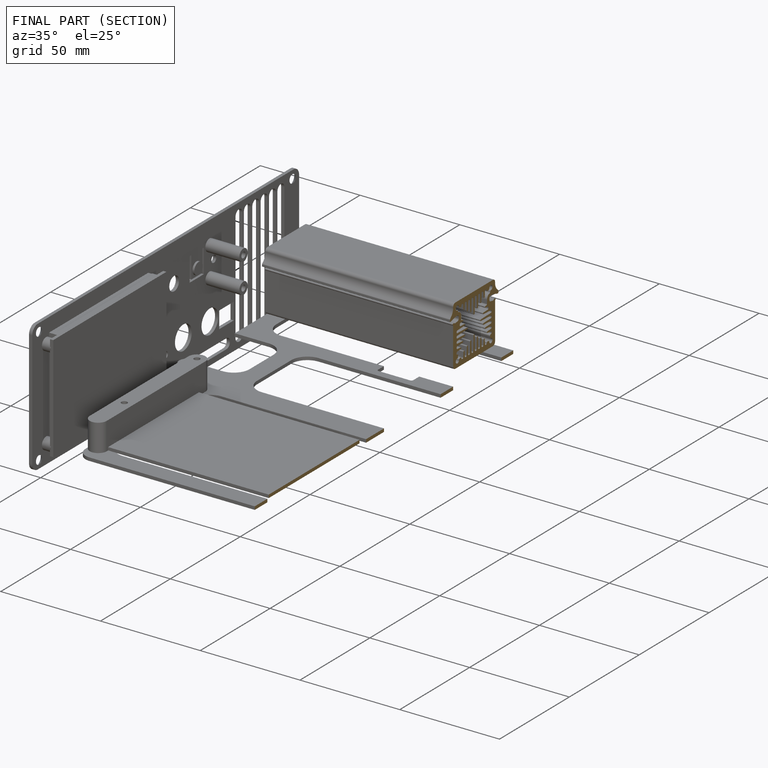
[diagram: finished part — half-section view (interior)]
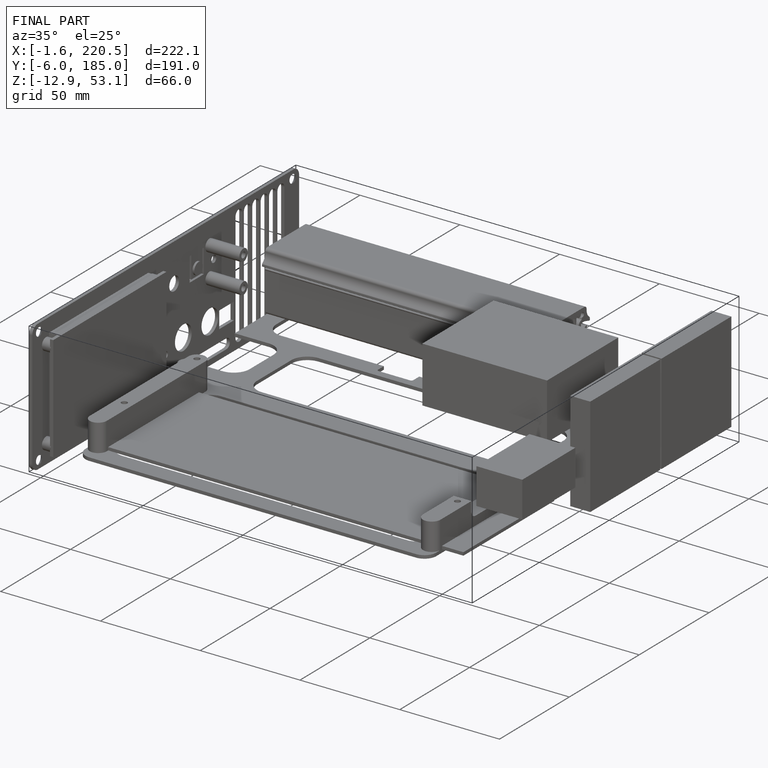
[diagram: finished part — iso view with bounding-box wireframe]
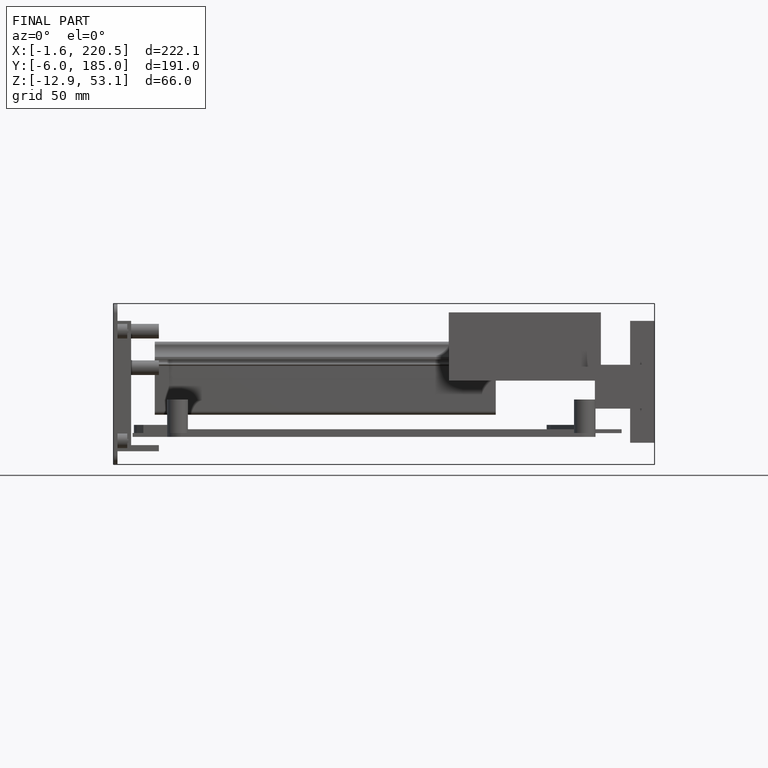
[diagram: finished part — front view with bounding-box wireframe]
